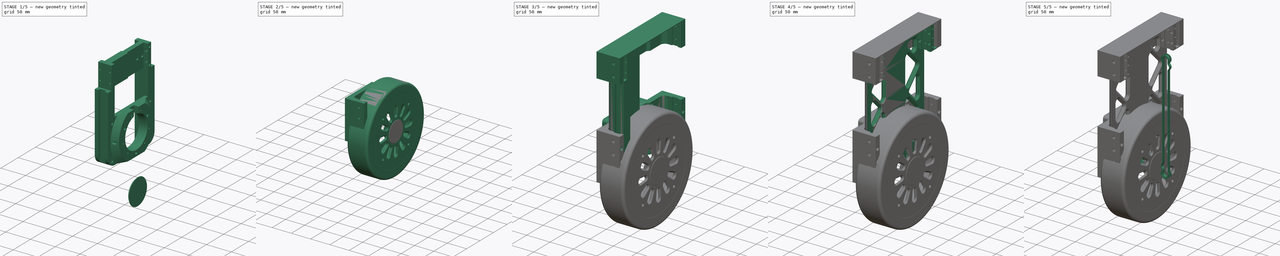
[diagram: build sequence overview — one tinted view per stage of 5, left to right]
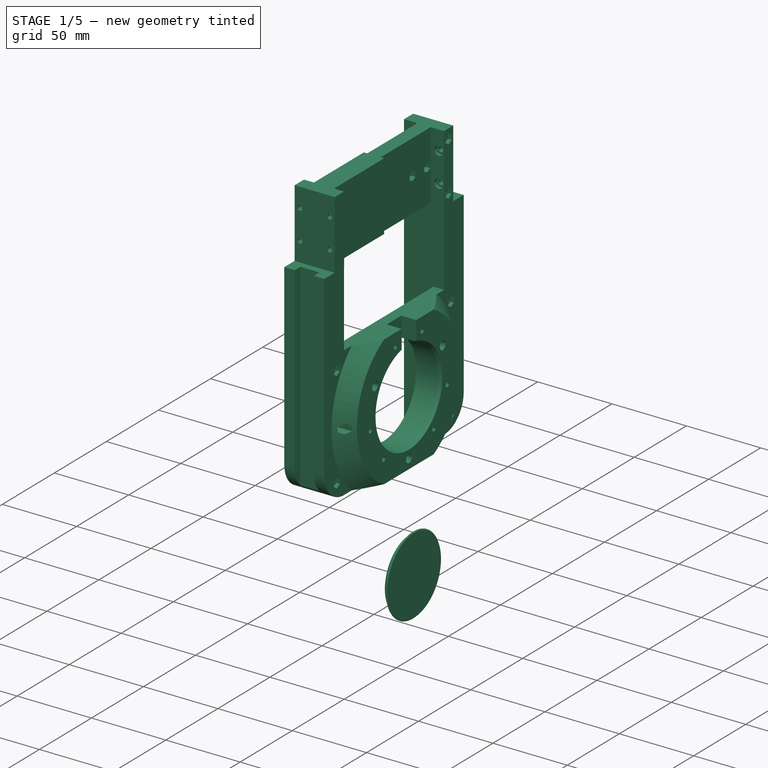
[diagram: stage 1 of 5 — iso view after this stage's code; geometry added in this stage tinted green]
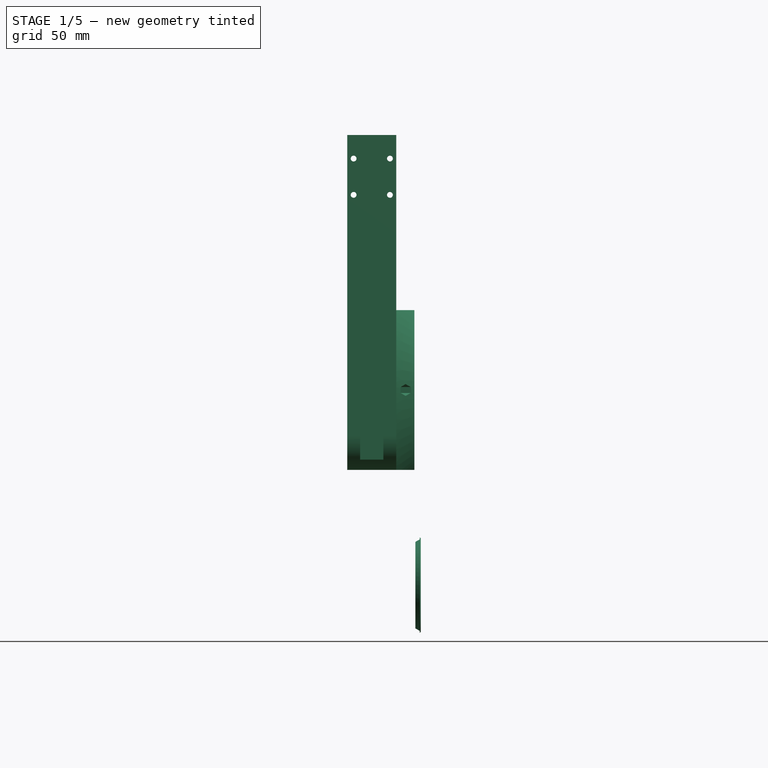
[diagram: stage 1 of 5 — front view after this stage's code; geometry added in this stage tinted green]
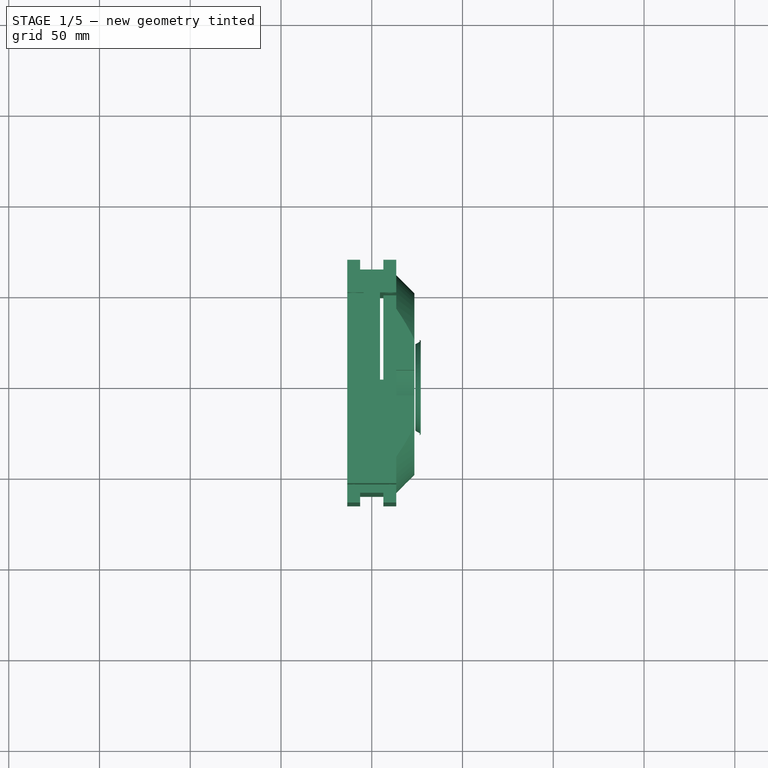
[diagram: stage 1 of 5 — top view after this stage's code; geometry added in this stage tinted green]
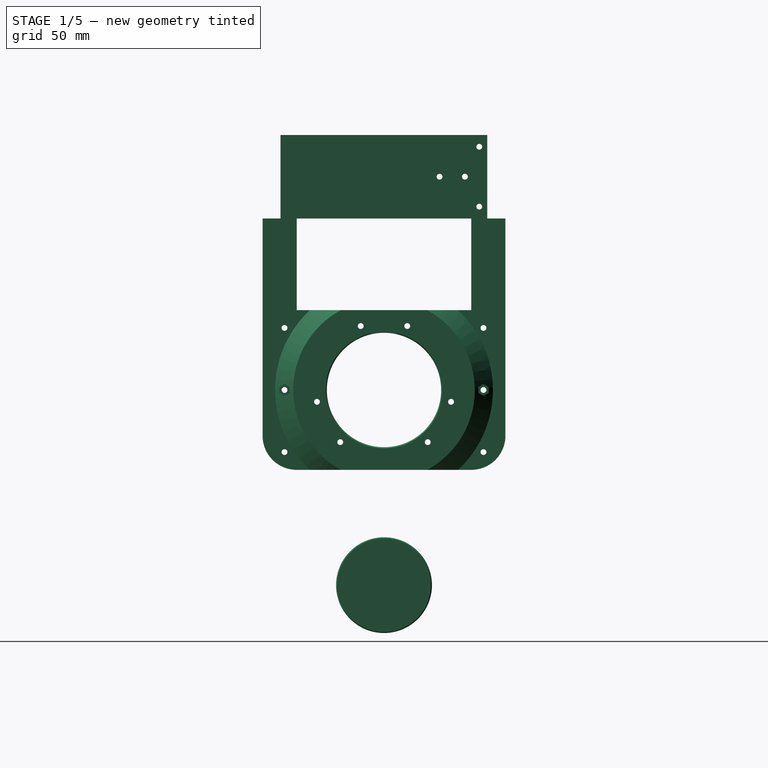
[diagram: stage 1 of 5 — right view after this stage's code; geometry added in this stage tinted green]
FCSTD DOCUMENT  (FreeCAD 1.0R39109 (Git))
Label: v13c
License: All rights reserved
LicenseURL: https://en.wikipedia.org/wiki/All_rights_reserved
objects: Sketcher::SketchObject×84, Part::FeaturePython×44, PartDesign::Pocket×31, PartDesign::Pad×22, PartDesign::Hole×20, PartDesign::Body×19, PartDesign::SubShapeBinder×13, PartDesign::Mirrored×12, PartDesign::Revolution×9, App::Part×8, Part::Feature×7, App::DocumentObjectGroup×7, PartDesign::Chamfer×6, PartDesign::Groove×3, Part::MultiCommon×3, Part::MultiFuse×3, App::FeaturePython×1, Part::Cylinder×1, PartDesign::PolarPattern×1
note: 557 computed .brp shape members not serialized (recipe doc carries the construction recipe); baked Part::Feature solids carry a one-line shape summary decoded from their .brp

FEATURE [PartDesign::Body] Body007  label="Frame2_Split"
  AllowCompound = false
  Group = -> [Binder001,Sketch013,Pad001,Sketch014,Pocket007,Mirrored001]
  Origin = -> Origin008
  Tip = -> Mirrored001
FEATURE [PartDesign::SubShapeBinder] Binder002  label="F3_Binder002_MG"
  BindCopyOnChange = 0
  BindMode = 0
  ClaimChildren = false
  Context = -> Part003 [Body008.Binder002.]
  Fuse = false
  MakeFace = true
  OffsetFill = false
  OffsetIntersection = false
  OffsetJoinType = 0
  OffsetOpenResult = false
  PartialLoad = false
  Refine = true
  Relative = true
  Support = -> [Body006[Face12]]
  _Version = 2
FEATURE [Sketcher::SketchObject] Sketch015  label="F3_Sketch015"
  ArcFitTolerance = 1e-06
  AttachmentOffset = pos=(0,0,202) rot=(0,0,1;0rad)
  AttachmentSupport = -> [XY_Plane009]
  ExternalGeometry = -> [Binder002]
  FullyConstrained = true
  MakeInternals = false
  MapMode = 5
  Placement = pos=(0,0,202) rot=(0,0,1;0rad)
  expr: .AttachmentOffset.Base.z = dd.Sh_Length - 48 mm
  expr: Constraints[30] = dd.Pulley_Y
  expr: Constraints[32] = dd.F3_X - dd.F2_X - 7 mm
  expr: Constraints[35] = dd.Pulley_Y + 10.4 mm
  sketch-geometry (14):
    g0: LineSegment StartX=-13.5 StartY=-57 StartZ=0 EndX=13.5 EndY=-57 EndZ=0
    g1: LineSegment StartX=13.5 StartY=-57 StartZ=0 EndX=13.5 EndY=-48 EndZ=0
    g2: LineSegment StartX=13.5 StartY=-48 StartZ=0 EndX=6.8 EndY=-48 EndZ=0
    g3: LineSegment StartX=6.8 StartY=-48 StartZ=0 EndX=6.8 EndY=0 EndZ=0
    g4: LineSegment StartX=6.8 StartY=0 StartZ=0 EndX=-6.8 EndY=0 EndZ=0
    g5: LineSegment StartX=-6.8 StartY=0 StartZ=0 EndX=-6.8 EndY=-48 EndZ=0
    g6: LineSegment StartX=-6.8 StartY=-48 StartZ=0 EndX=-13.5 EndY=-48 EndZ=0
    g7: LineSegment StartX=-13.5 StartY=-48 StartZ=0 EndX=-13.5 EndY=-57 EndZ=0
    g8: LineSegment [constr] StartX=-12 StartY=-34.4 StartZ=0 EndX=-12 EndY=-40.8 EndZ=0
    g9: LineSegment [constr] StartX=-12 StartY=-40.8 StartZ=0 EndX=-13.6 EndY=-40.8 EndZ=0
    g10: LineSegment [constr] StartX=-13.6 StartY=-40.8 StartZ=0 EndX=-13.6 EndY=-34.4 EndZ=0
    g11: LineSegment [constr] StartX=-13.6 StartY=-34.4 StartZ=0 EndX=-12 EndY=-34.4 EndZ=0
    g12: LineSegment [constr] StartX=-12 StartY=-37.6 StartZ=0 EndX=-13.6 EndY=-37.6 EndZ=0
    g13: GeomPoint [constr] X=-12.8 Y=-37.6 Z=0
  constraints (36):
    c: Coincident(g-3,g0)
    c: Coincident(g0,g-3)
    c: Coincident(g0,g1)
    c: Vertical(g1)
    c: Coincident(g1,g2)
    c: Horizontal(g2)
    c: Coincident(g2,g3)
    c: PointOnObject(g3,g-1)
    c: Vertical(g3)
    c: Coincident(g3,g4)
    c: PointOnObject(g4,g-1)
    c: Coincident(g4,g5)
    c: Vertical(g5)
    c: Coincident(g5,g6)
    c: Coincident(g6,g7)
    c: Coincident(g7,g0)
    c: Vertical(g7)
    c: Horizontal(g6)
    c: Symmetric(g5,g2,g-2)
    c: Distance(g5,g-2) = 6.8
    c: Coincident(g8,g9)
    c: Coincident(g9,g10)
    c: Coincident(g10,g11)
    c: Coincident(g11,g8)
    c: Vertical(g8)
    c: Vertical(g10)
    c: Horizontal(g9)
    c: Horizontal(g11)
    c: Symmetric(g8,g8,g12)
    c: Symmetric(g10,g10,g12)
    c: DistanceY(g12,g-1) = 37.6
    c: Symmetric(g12,g12,g13)
    c: Distance(g13,g-2) = 12.8
    c: Distance(g11,g11) = 1.6
    c: DistanceY(g8,g8) = 6.4
    c: Distance(g5,g-1) = 48
FEATURE [PartDesign::Pad] Pad002  label="F3_Pad002"
  Direction = (0,0,1)
  Length = 46
  Length2 = 10
  Profile = -> Sketch015
  ReferenceAxis = -> Sketch015 [N_Axis]
  Refine = true
  Suppressed = false
  Type = 0
FEATURE [Sketcher::SketchObject] Sketch016  label="F3_Sketch016"
  ArcFitTolerance = 1e-06
  AttachmentSupport = -> [Pad002]
  ExternalGeometry = -> [Binder002]
  FullyConstrained = true
  MakeInternals = false
  MapMode = 5
  Placement = pos=(0,-48,0) rot=(0,0.707107,0.707107;3.14159rad)
  sketch-geometry (4):
    g0: Circle CenterX=-10 CenterY=235 CenterZ=0 NormalX=0 NormalY=0 NormalZ=1 AngleXU=0 Radius=1.6
    g1: Circle CenterX=10 CenterY=235 CenterZ=0 NormalX=0 NormalY=0 NormalZ=1 AngleXU=0 Radius=1.6
    g2: Circle CenterX=-10 CenterY=215 CenterZ=0 NormalX=0 NormalY=0 NormalZ=1 AngleXU=0 Radius=1.6
    g3: Circle CenterX=10 CenterY=215 CenterZ=0 NormalX=0 NormalY=0 NormalZ=1 AngleXU=0 Radius=1.6
  constraints (8):
    c: Coincident(g0,g-3)
    c: Equal(g0,g-3)
    c: Coincident(g1,g-4)
    c: Equal(g1,g-4)
    c: Coincident(g2,g-5)
    c: Equal(g2,g-5)
    c: Coincident(g3,g-6)
    c: Equal(g3,g-6)
FEATURE [PartDesign::Hole] Hole004  label="F3_Hole004"
  BaseFeature = -> Pad002
  CustomThreadClearance = 0
  Depth = 25
  DepthType = 0
  Diameter = 3.2
  DrillForDepth = false
  DrillPoint = 1
  DrillPointAngle = 118
  HoleCutCountersinkAngle = 179
  HoleCutCustomValues = false
  HoleCutDepth = 3.4
  HoleCutDiameter = 6
  HoleCutType = 3
  ModelThread = false
  Profile = -> Sketch016
  Refine = true
  Suppressed = false
  Tapered = false
  TaperedAngle = 90
  ThreadClass = 0
  ThreadDepth = 25
  ThreadDepthType = 0
  ThreadDirection = 0
  ThreadFit = 0
  ThreadSize = 0
  ThreadType = 0
  Threaded = false
  UseCustomThreadClearance = false
FEATURE [PartDesign::SubShapeBinder] Binder010  label="F3b_Binder010_MG"
  BindCopyOnChange = 0
  BindMode = 0
  ClaimChildren = false
  Context = -> Part003 [Body024.Binder010.]
  Fuse = false
  MakeFace = true
  OffsetFill = false
  OffsetIntersection = false
  OffsetJoinType = 0
  OffsetOpenResult = false
  PartialLoad = false
  Placement = pos=(0,0.1,0) rot=(0,0,1;0rad)
  Refine = true
  Relative = true
  Support = -> [Body006[Face12,Face4]]
  _Version = 2
FEATURE [PartDesign::SubShapeBinder] Binder011  label="F3b_Binder011_CG"
  BindCopyOnChange = 0
  BindMode = 0
  ClaimChildren = false
  Context = -> Part003 [Body024.Binder011.]
  Fuse = false
  MakeFace = true
  OffsetFill = false
  OffsetIntersection = false
  OffsetJoinType = 0
  OffsetOpenResult = false
  PartialLoad = false
  Refine = true
  Relative = true
  Support = -> [Body023[Face4,Face73]]
  _Version = 2
FEATURE [Sketcher::SketchObject] Sketch064  label="F3b_Sketch064"
  ArcFitTolerance = 1e-06
  AttachmentSupport = -> [YZ_Plane024]
  ExternalGeometry = -> [Binder011,Binder010]
  FullyConstrained = true
  MakeInternals = false
  MapMode = 5
  Placement = pos=(0,0,0) rot=(0.57735,0.57735,0.57735;2.0944rad)
  sketch-geometry (7):
    g0: Circle [constr] CenterX=0 CenterY=107.5 CenterZ=0 NormalX=0 NormalY=0 NormalZ=1 AngleXU=0 Radius=60
    g1: LineSegment StartX=-56.9 StartY=248 StartZ=0 EndX=-48.1 EndY=248 EndZ=0
    g2: LineSegment StartX=-56.9 StartY=248 StartZ=0 EndX=-56.9 EndY=202 EndZ=0
    g3: LineSegment StartX=-56.9 StartY=202 StartZ=0 EndX=-66.9 EndY=202 EndZ=0
    g4: LineSegment StartX=-66.9 StartY=202 StartZ=0 EndX=-66.9 EndY=82.3 EndZ=0
    g5: LineSegment StartX=-48.1 StartY=248 StartZ=0 EndX=-48.1 EndY=63.5 EndZ=0
    g6: ArcOfCircle CenterX=-48.1 CenterY=82.3 CenterZ=0 NormalX=0 NormalY=0 NormalZ=1 AngleXU=0 Radius=18.8 StartAngle=3.14159 EndAngle=4.71239
  constraints (17):
    c: Coincident(g0,g-3)
    c: Diameter(g0) = 120
    c: Coincident(g-4,g1)
    c: Horizontal(g1)
    c: Coincident(g1,g2)
    c: Coincident(g2,g-5)
    c: Coincident(g2,g3)
    c: Coincident(g3,g4)
    c: Vertical(g4)
    c: Coincident(g3,g-5)
    c: Coincident(g5,g1)
    c: Vertical(g5)
    c: DistanceX(g1,g1) = 8.8
    c: PointOnObject(g6,g5)
    c: Coincident(g6,g5)
    c: Tangent(g6,g4) = -1.5708
    c: DistanceY(g5,g0) = 44
FEATURE [PartDesign::Pad] Pad016  label="F3b_Pad016"
  Direction = (1,0,0)
  Length = 27
  Length2 = 10
  Midplane = true
  Placement = pos=(0,0,0) rot=(1,1,1;2.0944rad)
  Profile = -> Sketch064
  ReferenceAxis = -> Sketch064 [N_Axis]
  Refine = true
  Suppressed = false
  Type = 0
FEATURE [Sketcher::SketchObject] Sketch065  label="F3b_Sketch065"
  ArcFitTolerance = 1e-06
  AttachmentSupport = -> [Pad016]
  ExternalGeometry = -> [Binder010,Pad016]
  FullyConstrained = true
  MakeInternals = false
  MapMode = 5
  Placement = pos=(0,4.44e-14,202) rot=(0,0,-1;1.5708rad)
  sketch-geometry (6):
    g0: LineSegment StartX=66.9 StartY=6.4 StartZ=0 EndX=61.5 EndY=6.4 EndZ=0
    g1: LineSegment StartX=61.5 StartY=6.4 StartZ=0 EndX=61.5 EndY=-6.4 EndZ=0
    g2: LineSegment StartX=61.5 StartY=-6.4 StartZ=0 EndX=66.9 EndY=-6.4 EndZ=0
    g3: LineSegment StartX=66.9 StartY=-6.4 StartZ=0 EndX=66.9 EndY=6.4 EndZ=0
    g4: LineSegment [constr] StartX=61.9 StartY=-6 StartZ=0 EndX=61.5 EndY=-6 EndZ=0
    g5: LineSegment [constr] StartX=61.9 StartY=6 StartZ=0 EndX=61.9 EndY=6.4 EndZ=0
  constraints (17):
    c: Coincident(g0,g1)
    c: Coincident(g1,g2)
    c: Coincident(g2,g3)
    c: Coincident(g3,g0)
    c: Horizontal(g0)
    c: Horizontal(g2)
    c: Vertical(g3)
    c: PointOnObject(g0,g-4)
    c: Coincident(g4,g-3)
    c: PointOnObject(g4,g1)
    c: Horizontal(g4)
    c: Coincident(g5,g-3)
    c: PointOnObject(g5,g0)
    c: Vertical(g5)
    c: Equal(g4,g5)
    c: Symmetric(g1,g0,g-1)
    c: Distance(g4,g4) = 0.4
FEATURE [PartDesign::Pocket] Pocket023  label="F3b_Pocket023"
  BaseFeature = -> Pad016
  Direction = (0,0,-1)
  Length = 5
  Length2 = 5
  Placement = pos=(0,0,0) rot=(1,1,1;2.0944rad)
  Profile = -> Sketch065
  ReferenceAxis = -> Sketch065 [N_Axis]
  Refine = true
  Suppressed = false
  Type = 1
FEATURE [Sketcher::SketchObject] Sketch066  label="F3b_Sketch066"
  ArcFitTolerance = 1e-06
  AttachmentSupport = -> [Pocket023]
  ExternalGeometry = -> [Binder010]
  FullyConstrained = true
  MakeInternals = false
  MapMode = 5
  Placement = pos=(-1.06e-14,-48.1,0) rot=(0.57735,0.57735,0.57735;4.18879rad)
  sketch-geometry (4):
    g0: Circle CenterX=215 CenterY=10 CenterZ=0 NormalX=0 NormalY=0 NormalZ=1 AngleXU=0 Radius=1.6
    g1: Circle CenterX=235 CenterY=10 CenterZ=0 NormalX=0 NormalY=0 NormalZ=1 AngleXU=0 Radius=1.6
    g2: Circle CenterX=215 CenterY=-10 CenterZ=0 NormalX=0 NormalY=0 NormalZ=1 AngleXU=0 Radius=1.6
    g3: Circle CenterX=235 CenterY=-10 CenterZ=0 NormalX=0 NormalY=0 NormalZ=1 AngleXU=0 Radius=1.6
  constraints (8):
    c: Coincident(g0,g-3)
    c: Coincident(g1,g-4)
    c: Equal(g1,g-4)
    c: Equal(g-3,g0)
    c: Coincident(g2,g-5)
    c: Equal(g2,g-5)
    c: Coincident(g3,g-6)
    c: Equal(g3,g-6)
FEATURE [PartDesign::Hole] Hole014  label="F3b_Hole014"
  BaseFeature = -> Pocket023
  CustomThreadClearance = 0
  Depth = 10
  DepthType = 0
  Diameter = 3.2
  DrillForDepth = false
  DrillPoint = 0
  DrillPointAngle = 118
  HoleCutCountersinkAngle = 179
  HoleCutCustomValues = false
  HoleCutDepth = 2
  HoleCutDiameter = 6
  HoleCutType = 3
  ModelThread = false
  Placement = pos=(0,0,0) rot=(1,1,1;2.0944rad)
  Profile = -> Sketch066
  Refine = true
  Suppressed = false
  Tapered = false
  TaperedAngle = 90
  ThreadClass = 0
  ThreadDepth = 10
  ThreadDepthType = 0
  ThreadDirection = 0
  ThreadFit = 0
  ThreadSize = 0
  ThreadType = 0
  Threaded = false
  UseCustomThreadClearance = false
FEATURE [Sketcher::SketchObject] Sketch068  label="F3b_Sketch068"
  ArcFitTolerance = 1e-06
  AttachmentSupport = -> [Hole014]
  ExternalGeometry = -> [Hole014,Binder011]
  FullyConstrained = true
  MakeInternals = false
  MapMode = 5
  Placement = pos=(13.5,0,0) rot=(0.57735,0.57735,0.57735;2.0944rad)
  sketch-geometry (6):
    g0: LineSegment StartX=-48.1 StartY=63.5 StartZ=0 EndX=2.13e-14 EndY=63.5 EndZ=0
    g1: LineSegment StartX=-3.1e-15 StartY=151.5 StartZ=0 EndX=-48.1 EndY=151.5 EndZ=0
    g2: LineSegment StartX=-48.1 StartY=151.5 StartZ=0 EndX=-48.1 EndY=63.5 EndZ=0
    g3: ArcOfCircle CenterX=9e-15 CenterY=107.5 CenterZ=0 NormalX=0 NormalY=0 NormalZ=1 AngleXU=0 Radius=31.5 StartAngle=1.5708 EndAngle=4.71239
    g4: LineSegment StartX=2.13e-14 StartY=63.5 StartZ=0 EndX=2.13e-14 EndY=76 EndZ=0
    g5: LineSegment StartX=-3.1e-15 StartY=139 StartZ=0 EndX=-3.1e-15 EndY=151.5 EndZ=0
  constraints (16):
    c: Coincident(g1,g2)
    c: Coincident(g2,g0)
    c: Horizontal(g0)
    c: Horizontal(g1)
    c: Vertical(g2)
    c: Coincident(g0,g-3)
    c: Symmetric(g1,g0,g-4)
    c: Coincident(g3,g-4)
    c: Coincident(g4,g0)
    c: Coincident(g4,g3)
    c: Coincident(g5,g3)
    c: Coincident(g5,g1)
    c: Vertical(g5)
    c: Vertical(g4)
    c: PointOnObject(g1,g-2)
    c: Equal(g-4,g3)
FEATURE [PartDesign::Pad] Pad017  label="F3b_Pad017"
  BaseFeature = -> Hole014
  Direction = (1,0,0)
  Length = 7.1
  Length2 = 10
  Placement = pos=(0,0,0) rot=(1,1,1;2.0944rad)
  Profile = -> Sketch068
  ReferenceAxis = -> Sketch068 [N_Axis]
  Refine = true
  Reversed = true
  Suppressed = false
  Type = 0
FEATURE [Sketcher::SketchObject] Sketch067  label="F3b_Sketch067"
  ArcFitTolerance = 1e-06
  AttachmentSupport = -> [Pad017]
  ExternalGeometry = -> [Binder011,Pad017]
  FullyConstrained = true
  MakeInternals = false
  MapMode = 5
  Placement = pos=(13.5,-9.7e-15,1.57e-14) rot=(0.57735,0.57735,0.57735;2.0944rad)
  sketch-geometry (9):
    g0: Circle CenterX=-32.476 CenterY=126.25 CenterZ=0 NormalX=0 NormalY=0 NormalZ=1 AngleXU=0 Radius=2.8
    g1: ArcOfCircle CenterX=9.8e-15 CenterY=70 CenterZ=0 NormalX=0 NormalY=0 NormalZ=1 AngleXU=0 Radius=2.8 StartAngle=1.5708 EndAngle=4.71239
    g2: ArcOfCircle CenterX=9.8e-15 CenterY=107.5 CenterZ=0 NormalX=0 NormalY=0 NormalZ=1 AngleXU=0 Radius=60 StartAngle=2.31838 EndAngle=3.9648
    g3: LineSegment StartX=-40.7922 StartY=151.5 StartZ=0 EndX=-7 EndY=151.5 EndZ=0
    g4: LineSegment StartX=-7 StartY=151.5 StartZ=0 EndX=-7 EndY=138.212 EndZ=0
    g5: ArcOfCircle CenterX=9.8e-15 CenterY=107.5 CenterZ=0 NormalX=0 NormalY=0 NormalZ=1 AngleXU=0 Radius=31.5 StartAngle=1.79489 EndAngle=4.71239
    g6: LineSegment StartX=3.2e-14 StartY=72.8 StartZ=0 EndX=3.2e-14 EndY=76 EndZ=0
    g7: LineSegment StartX=2.42e-14 StartY=63.5 StartZ=0 EndX=2.42e-14 EndY=67.2 EndZ=0
    g8: LineSegment StartX=2.42e-14 StartY=63.5 StartZ=0 EndX=-40.7922 EndY=63.5 EndZ=0
  constraints (24):
    c: Coincident(g0,g-4)
    c: Equal(g0,g-4)
    c: Coincident(g1,g-5)
    c: Coincident(g2,g-3)
    c: Radius(g2) = 60
    c: Coincident(g2,g3)
    c: Coincident(g3,g4)
    c: Vertical(g4)
    c: Coincident(g5,g2)
    c: Coincident(g5,g4)
    c: PointOnObject(g5,g-7)
    c: Coincident(g6,g1)
    c: Coincident(g6,g5)
    c: Coincident(g7,g-7)
    c: Coincident(g7,g1)
    c: Vertical(g7)
    c: Equal(g1,g-5)
    c: Vertical(g6)
    c: Coincident(g4,g-3)
    c: Coincident(g8,g7)
    c: Coincident(g8,g2)
    c: Horizontal(g8)
    c: Horizontal(g3)
    c: PointOnObject(g-6,g3)
FEATURE [PartDesign::Pad] Pad018  label="F3b_Pad018"
  BaseFeature = -> Pad017
  Direction = (1,0,1.3e-15)
  Length = 10
  Length2 = 10
  Placement = pos=(0,0,0) rot=(1,1,1;2.0944rad)
  Profile = -> Sketch067
  ReferenceAxis = -> Sketch067 [N_Axis]
  Refine = true
  Suppressed = false
  Type = 0
FEATURE [Sketcher::SketchObject] Sketch069  label="F3b_Sketch069"
  ArcFitTolerance = 1e-06
  AttachmentSupport = -> [Pad018]
  ExternalGeometry = -> [Binder011]
  FullyConstrained = true
  MakeInternals = false
  MapMode = 5
  Placement = pos=(6.4,0,0) rot=(0.57735,0.57735,-0.57735;4.18879rad)
  sketch-geometry (3):
    g0: Circle CenterX=-24.1045 CenterY=-78.7733 CenterZ=0 NormalX=0 NormalY=0 NormalZ=1 AngleXU=0 Radius=1.5
    g1: Circle CenterX=-36.9303 CenterY=-100.988 CenterZ=0 NormalX=0 NormalY=0 NormalZ=1 AngleXU=0 Radius=1.5
    g2: Circle CenterX=-12.8258 CenterY=-142.738 CenterZ=0 NormalX=0 NormalY=0 NormalZ=1 AngleXU=0 Radius=1.5
  constraints (6):
    c: Coincident(g0,g-3)
    c: Equal(g0,g-3)
    c: Coincident(g1,g-4)
    c: Equal(g1,g-4)
    c: Coincident(g2,g-5)
    c: Equal(g2,g-5)
FEATURE [PartDesign::Hole] Hole015  label="F3b_Hole015"
  BaseFeature = -> Pad018
  CustomThreadClearance = 0
  Depth = 20
  DepthType = 0
  Diameter = 3.2
  DrillForDepth = false
  DrillPoint = 0
  DrillPointAngle = 118
  HoleCutCountersinkAngle = 179
  HoleCutCustomValues = false
  HoleCutDepth = 4.4
  HoleCutDiameter = 6
  HoleCutType = 3
  ModelThread = false
  Placement = pos=(0,0,0) rot=(1,1,1;2.0944rad)
  Profile = -> Sketch069
  Refine = true
  Suppressed = false
  Tapered = false
  TaperedAngle = 90
  ThreadClass = 0
  ThreadDepth = 20
  ThreadDepthType = 0
  ThreadDirection = 0
  ThreadFit = 0
  ThreadSize = 0
  ThreadType = 0
  Threaded = false
  UseCustomThreadClearance = false
FEATURE [PartDesign::Chamfer] Chamfer003  label="F3b_Chamfer003"
  Angle = 45
  Base = -> Hole015 [Edge12]
  BaseFeature = -> Hole015
  ChamferType = 0
  FlipDirection = false
  Placement = pos=(0,0,0) rot=(1,1,1;2.0944rad)
  Refine = true
  Size = 9.99
  Size2 = 1
  SupportTransform = false
  Suppressed = false
  UseAllEdges = false
FEATURE [Sketcher::SketchObject] Sketch070  label="F3b_Sketch070"
  ArcFitTolerance = 1e-06
  AttachmentSupport = -> [Chamfer003]
  ExternalGeometry = -> [Chamfer003]
  FullyConstrained = true
  MakeInternals = false
  MapMode = 5
  Placement = pos=(-13.5,0,0) rot=(0.57735,0.57735,-0.57735;4.18879rad)
  sketch-geometry (12):
    g0: Circle CenterX=-54.8 CenterY=-141.704 CenterZ=0 NormalX=0 NormalY=0 NormalZ=1 AngleXU=0 Radius=1.6
    g1: LineSegment [constr] StartX=4.47e-14 StartY=-107.5 StartZ=0 EndX=-54.8 EndY=-107.5 EndZ=0
    g2: LineSegment [constr] StartX=-61.5 StartY=-69.1136 StartZ=0 EndX=-54.8 EndY=-73.2956 EndZ=0
    g3: LineSegment [constr] StartX=-54.8 StartY=-73.2956 StartZ=0 EndX=-48.1 EndY=-77.4775 EndZ=0
    g4: LineSegment [constr] StartX=-54.8 StartY=-73.2956 StartZ=0 EndX=-54.8 EndY=-107.5 EndZ=0
    g5: Circle CenterX=-54.8 CenterY=-107.5 CenterZ=0 NormalX=0 NormalY=0 NormalZ=1 AngleXU=0 Radius=1.6
    g6: Circle CenterX=-54.8 CenterY=-73.2956 CenterZ=0 NormalX=0 NormalY=0 NormalZ=1 AngleXU=0 Radius=1.6
    g7: LineSegment [constr] StartX=-52.5 StartY=-248 StartZ=0 EndX=-52.5 EndY=-241.5 EndZ=0
    g8: LineSegment [constr] StartX=-52.5 StartY=-241.5 StartZ=0 EndX=-52.5 EndY=-235 EndZ=0
    g9: LineSegment [constr] StartX=-52.5 StartY=-215 StartZ=0 EndX=-52.5 EndY=-208.5 EndZ=0
    g10: Circle CenterX=-52.5 CenterY=-241.5 CenterZ=0 NormalX=0 NormalY=0 NormalZ=1 AngleXU=0 Radius=1.6
    g11: Circle CenterX=-52.5 CenterY=-208.5 CenterZ=0 NormalX=0 NormalY=0 NormalZ=1 AngleXU=0 Radius=1.6
  constraints (31):
    c: Diameter(g0) = 3.2
    c: Coincident(g1,g-3)
    c: Horizontal(g1)
    c: Coincident(g2,g-5)
    c: Coincident(g3,g2)
    c: Parallel(g2,g3)
    c: Equal(g2,g3)
    c: PointOnObject(g1,g3)
    c: Coincident(g4,g2)
    c: Coincident(g4,g1)
    c: Vertical(g4)
    c: Symmetric(g0,g2,g1)
    c: Coincident(g5,g1)
    c: Coincident(g6,g2)
    c: Equal(g0,g5)
    c: Equal(g5,g6)
    c: PointOnObject(g3,g-4)
    c: Symmetric(g-8,g-8,g7)
    c: Vertical(g7)
    c: Coincident(g8,g7)
    c: PointOnObject(g8,g-7)
    c: Vertical(g8)
    c: PointOnObject(g9,g-6)
    c: Vertical(g9)
    c: PointOnObject(g9,g8)
    c: Equal(g9,g8)
    c: Equal(g8,g7)
    c: Coincident(g10,g7)
    c: Coincident(g11,g9)
    c: Equal(g0,g11)
    c: Equal(g11,g10)
FEATURE [PartDesign::Hole] Hole016  label="F3b_Hole016"
  BaseFeature = -> Chamfer003
  CustomThreadClearance = 0
  Depth = 403.418
  DepthType = 1
  Diameter = 3.2
  DrillForDepth = false
  DrillPoint = 1
  DrillPointAngle = 118
  HoleCutCountersinkAngle = 179
  HoleCutCustomValues = false
  HoleCutDepth = 2
  HoleCutDiameter = 6
  HoleCutType = 3
  ModelThread = false
  Placement = pos=(0,0,0) rot=(1,1,1;2.0944rad)
  Profile = -> Sketch070
  Refine = true
  Suppressed = false
  Tapered = false
  TaperedAngle = 90
  ThreadClass = 0
  ThreadDepth = 403.418
  ThreadDepthType = 0
  ThreadDirection = 0
  ThreadFit = 0
  ThreadSize = 0
  ThreadType = 0
  Threaded = false
  UseCustomThreadClearance = false
FEATURE [Sketcher::SketchObject] Sketch071  label="F3b_Sketch071"
  ArcFitTolerance = 1e-06
  AttachmentSupport = -> [Hole016]
  ExternalGeometry = -> [Hole016]
  FullyConstrained = true
  MakeInternals = false
  MapMode = 5
  Placement = pos=(13.5,-9.7e-15,1.57e-14) rot=(0.57735,0.57735,0.57735;2.0944rad)
  sketch-geometry (35):
    g0: LineSegment StartX=-54.8 StartY=76.5456 StartZ=0 EndX=-57.6146 EndY=74.9206 EndZ=0
    g1: LineSegment StartX=-57.6146 StartY=74.9206 StartZ=0 EndX=-57.6146 EndY=71.6706 EndZ=0
    g2: LineSegment StartX=-57.6146 StartY=71.6706 StartZ=0 EndX=-54.8 EndY=70.0456 EndZ=0
    g3: LineSegment StartX=-54.8 StartY=70.0456 StartZ=0 EndX=-51.9854 EndY=71.6706 EndZ=0
    g4: LineSegment StartX=-51.9854 StartY=71.6706 StartZ=0 EndX=-51.9854 EndY=74.9206 EndZ=0
    g5: LineSegment StartX=-51.9854 StartY=74.9206 StartZ=0 EndX=-54.8 EndY=76.5456 EndZ=0
    g6: Circle [constr] CenterX=-54.8 CenterY=73.2956 CenterZ=0 NormalX=0 NormalY=0 NormalZ=1 AngleXU=0 Radius=3.25
    g7: LineSegment StartX=-54.8 StartY=110.75 StartZ=0 EndX=-57.6146 EndY=109.125 EndZ=0
    g8: LineSegment StartX=-57.6146 StartY=109.125 StartZ=0 EndX=-57.6146 EndY=105.875 EndZ=0
    g9: LineSegment StartX=-57.6146 StartY=105.875 StartZ=0 EndX=-54.8 EndY=104.25 EndZ=0
    g10: LineSegment StartX=-54.8 StartY=104.25 StartZ=0 EndX=-51.9854 EndY=105.875 EndZ=0
    g11: LineSegment StartX=-51.9854 StartY=105.875 StartZ=0 EndX=-51.9854 EndY=109.125 EndZ=0
    g12: LineSegment StartX=-51.9854 StartY=109.125 StartZ=0 EndX=-54.8 EndY=110.75 EndZ=0
    g13: Circle [constr] CenterX=-54.8 CenterY=107.5 CenterZ=0 NormalX=0 NormalY=0 NormalZ=1 AngleXU=0 Radius=3.25
    g14: LineSegment StartX=-54.8 StartY=144.954 StartZ=0 EndX=-57.6146 EndY=143.329 EndZ=0
    g15: LineSegment StartX=-57.6146 StartY=143.329 StartZ=0 EndX=-57.6146 EndY=140.079 EndZ=0
    g16: LineSegment StartX=-57.6146 StartY=140.079 StartZ=0 EndX=-54.8 EndY=138.454 EndZ=0
    g17: LineSegment StartX=-54.8 StartY=138.454 StartZ=0 EndX=-51.9854 EndY=140.079 EndZ=0
    g18: LineSegment StartX=-51.9854 StartY=140.079 StartZ=0 EndX=-51.9854 EndY=143.329 EndZ=0
    g19: LineSegment StartX=-51.9854 StartY=143.329 StartZ=0 EndX=-54.8 EndY=144.954 EndZ=0
    g20: Circle [constr] CenterX=-54.8 CenterY=141.704 CenterZ=0 NormalX=0 NormalY=0 NormalZ=1 AngleXU=0 Radius=3.25
    g21: LineSegment StartX=-52.5 StartY=211.75 StartZ=0 EndX=-55.3146 EndY=210.125 EndZ=0
    g22: LineSegment StartX=-55.3146 StartY=210.125 StartZ=0 EndX=-55.3146 EndY=206.875 EndZ=0
    g23: LineSegment StartX=-55.3146 StartY=206.875 StartZ=0 EndX=-52.5 EndY=205.25 EndZ=0
    g24: LineSegment StartX=-52.5 StartY=205.25 StartZ=0 EndX=-49.6854 EndY=206.875 EndZ=0
    g25: LineSegment StartX=-49.6854 StartY=206.875 StartZ=0 EndX=-49.6854 EndY=210.125 EndZ=0
    g26: LineSegment StartX=-49.6854 StartY=210.125 StartZ=0 EndX=-52.5 EndY=211.75 EndZ=0
    g27: Circle [constr] CenterX=-52.5 CenterY=208.5 CenterZ=0 NormalX=0 NormalY=0 NormalZ=1 AngleXU=0 Radius=3.25
    g28: LineSegment StartX=-52.5 StartY=244.75 StartZ=0 EndX=-55.3146 EndY=243.125 EndZ=0
    g29: LineSegment StartX=-55.3146 StartY=243.125 StartZ=0 EndX=-55.3146 EndY=239.875 EndZ=0
    g30: LineSegment StartX=-55.3146 StartY=239.875 StartZ=0 EndX=-52.5 EndY=238.25 EndZ=0
    g31: LineSegment StartX=-52.5 StartY=238.25 StartZ=0 EndX=-49.6854 EndY=239.875 EndZ=0
    g32: LineSegment StartX=-49.6854 StartY=239.875 StartZ=0 EndX=-49.6854 EndY=243.125 EndZ=0
    g33: LineSegment StartX=-49.6854 StartY=243.125 StartZ=0 EndX=-52.5 EndY=244.75 EndZ=0
    g34: Circle [constr] CenterX=-52.5 CenterY=241.5 CenterZ=0 NormalX=0 NormalY=0 NormalZ=1 AngleXU=0 Radius=3.25
  constraints (80):
    c: Coincident(g0,g1)
    c: Coincident(g1,g2)
    c: Coincident(g2,g3)
    c: Coincident(g3,g4)
    c: Coincident(g4,g5)
    c: Coincident(g5,g0)
    c: Equal(g0, g1-g5) x5
    c: PointOnObject(g0,g6)
    c: PointOnObject(g1,g6)
    c: PointOnObject(g2,g6)
    c: PointOnObject(g3,g6)
    c: PointOnObject(g4,g6)
    c: PointOnObject(g5,g6)
    c: Coincident(g6,g-3)
    c: Coincident(g7,g8)
    c: Coincident(g8,g9)
    c: Coincident(g9,g10)
    c: Coincident(g10,g11)
    c: Coincident(g11,g12)
    c: Coincident(g12,g7)
    c: Equal(g7, g8-g12) x5
    c: PointOnObject(g7,g13)
    c: PointOnObject(g8,g13)
    c: PointOnObject(g9,g13)
    c: PointOnObject(g10,g13)
    c: PointOnObject(g11,g13)
    c: PointOnObject(g12,g13)
    c: Coincident(g13,g-4)
    c: Coincident(g14,g15)
    c: Coincident(g15,g16)
    c: Coincident(g16,g17)
    c: Coincident(g17,g18)
    c: Coincident(g18,g19)
    c: Coincident(g19,g14)
    c: Equal(g14, g15-g19) x5
    c: PointOnObject(g14,g20)
    c: PointOnObject(g15,g20)
    c: PointOnObject(g16,g20)
    c: PointOnObject(g17,g20)
    c: PointOnObject(g18,g20)
    c: PointOnObject(g19,g20)
    c: Coincident(g20,g-5)
    c: Coincident(g21,g22)
    c: Coincident(g22,g23)
    c: Coincident(g23,g24)
    c: Coincident(g24,g25)
    c: Coincident(g25,g26)
    c: Coincident(g26,g21)
    c: Equal(g21, g22-g26) x5
    c: PointOnObject(g21,g27)
    c: PointOnObject(g22,g27)
    c: PointOnObject(g23,g27)
    c: PointOnObject(g24,g27)
    c: PointOnObject(g25,g27)
    c: PointOnObject(g26,g27)
    c: Coincident(g27,g-6)
    c: Coincident(g28,g29)
    c: Coincident(g29,g30)
    c: Coincident(g30,g31)
    c: Coincident(g31,g32)
    c: Coincident(g32,g33)
    c: Coincident(g33,g28)
    c: Equal(g28, g29-g33) x5
    c: PointOnObject(g28,g34)
    c: PointOnObject(g29,g34)
    c: PointOnObject(g30,g34)
    c: PointOnObject(g31,g34)
    c: PointOnObject(g32,g34)
    c: PointOnObject(g33,g34)
    c: Coincident(g34,g-7)
    c: Vertical(g29)
    c: Vertical(g22)
    c: Vertical(g15)
    c: Vertical(g8)
    c: Vertical(g1)
    c: Equal(g6,g13)
    c: Equal(g13,g20)
    c: Equal(g20,g27)
    c: Equal(g27,g34)
    c: Diameter(g34) = 6.5
FEATURE [PartDesign::Pocket] Pocket024  label="F3b_Pocket024"
  BaseFeature = -> Hole016
  Direction = (-1,1.2e-15,-1.4e-15)
  Length = 2.6
  Length2 = 10
  Placement = pos=(0,0,0) rot=(1,1,1;2.0944rad)
  Profile = -> Sketch071
  ReferenceAxis = -> Sketch071 [N_Axis]
  Refine = true
  Suppressed = false
  Type = 4
FEATURE [Sketcher::SketchObject] Sketch072  label="F3b_Sketch072"
  ArcFitTolerance = 1e-06
  AttachmentOffset = pos=(0,225,0) rot=(0,0,1;0rad)
  AttachmentSupport = -> [XZ_Plane024]
  ExternalGeometry = -> [Pocket024]
  FullyConstrained = true
  MakeInternals = false
  MapMode = 5
  Placement = pos=(0,5e-14,225) rot=(1,0,0;1.5708rad)
  expr: .AttachmentOffset.Base.y = dd.Sh_Length - 25 mm
  sketch-geometry (12):
    g0: LineSegment StartX=-13.5 StartY=4.5 StartZ=0 EndX=-11.9 EndY=4.5 EndZ=0
    g1: LineSegment StartX=-11.9 StartY=4.5 StartZ=0 EndX=-11.9 EndY=8 EndZ=0
    g2: LineSegment StartX=-11.9 StartY=8 StartZ=0 EndX=-4.5 EndY=8 EndZ=0
    g3: LineSegment StartX=-4.5 StartY=8 StartZ=0 EndX=-4.5 EndY=23 EndZ=0
    g4: LineSegment StartX=-4.5 StartY=23 StartZ=0 EndX=4.5 EndY=23 EndZ=0
    g5: LineSegment StartX=4.5 StartY=23 StartZ=0 EndX=4.5 EndY=-23 EndZ=0
    g6: LineSegment StartX=4.5 StartY=-23 StartZ=0 EndX=-4.5 EndY=-23 EndZ=0
    g7: LineSegment StartX=-4.5 StartY=-23 StartZ=0 EndX=-4.5 EndY=-8 EndZ=0
    g8: LineSegment StartX=-4.5 StartY=-8 StartZ=0 EndX=-11.9 EndY=-8 EndZ=0
    g9: LineSegment StartX=-11.9 StartY=-8 StartZ=0 EndX=-11.9 EndY=-4.5 EndZ=0
    g10: LineSegment StartX=-11.9 StartY=-4.5 StartZ=0 EndX=-13.5 EndY=-4.5 EndZ=0
    g11: LineSegment StartX=-13.5 StartY=-4.5 StartZ=0 EndX=-13.5 EndY=4.5 EndZ=0
  constraints (32):
    c: Horizontal(g0)
    c: Coincident(g0,g1)
    c: Vertical(g1)
    c: Coincident(g1,g2)
    c: Horizontal(g2)
    c: Coincident(g2,g3)
    c: Vertical(g3)
    c: Coincident(g3,g4)
    c: Coincident(g4,g5)
    c: Coincident(g5,g6)
    c: Horizontal(g6)
    c: Coincident(g6,g7)
    c: Vertical(g7)
    c: Coincident(g7,g8)
    c: Horizontal(g8)
    c: Coincident(g8,g9)
    c: Coincident(g9,g10)
    c: Horizontal(g10)
    c: Coincident(g10,g11)
    c: Vertical(g11)
    c: Symmetric(g9,g0,g-1)
    c: Symmetric(g7,g2,g-1)
    c: Vertical(g9)
    c: Symmetric(g5,g4,g-1)
    c: Symmetric(g3,g4,g-2)
    c: Distance(g4,g4) = 9
    c: Distance(g8,g1) = 16
    c: Coincident(g11,g0)
    c: DistanceY(g11,g11) = 9
    c: PointOnObject(g-3,g4)
    c: PointOnObject(g-3,g11)
    c: Distance(g0,g0) = 1.6
FEATURE [PartDesign::Pad] Pad019  label="F3b_Pad019"
  BaseFeature = -> Pocket024
  Direction = (0,-1,2e-16)
  Length = 48.1
  Length2 = 10
  Placement = pos=(0,0,0) rot=(1,1,1;2.0944rad)
  Profile = -> Sketch072
  ReferenceAxis = -> Sketch072 [N_Axis]
  Refine = true
  Suppressed = false
  Type = 0
FEATURE [Sketcher::SketchObject] Sketch073  label="F3b_Sketch025"
  ArcFitTolerance = 1e-06
  AttachmentOffset = pos=(0,225,37.6) rot=(0,0,1;0rad)
  AttachmentSupport = -> [XZ_Plane024]
  ExternalGeometry = -> [Pad019]
  FullyConstrained = true
  MakeInternals = false
  MapMode = 5
  Placement = pos=(0,-37.6,225) rot=(1,0,0;1.5708rad)
  expr: .AttachmentOffset.Base.y = dd.Sh_Length - 25 mm
  expr: .AttachmentOffset.Base.z = dd.Pulley_Y
  sketch-geometry (23):
    g0: ArcOfCircle [constr] CenterX=-15.5 CenterY=0 CenterZ=0 NormalX=0 NormalY=0 NormalZ=1 AngleXU=0 Radius=6 StartAngle=0 EndAngle=0.74789
    g1: ArcOfCircle [constr] CenterX=-6.7025 CenterY=8.16112 CenterZ=0 NormalX=0 NormalY=0 NormalZ=1 AngleXU=0 Radius=6 StartAngle=3.14159 EndAngle=3.88948
    g2: LineSegment [constr] StartX=-11.9025 StartY=8.16112 StartZ=0 EndX=-12.7025 EndY=8.16112 EndZ=0
    g3: ArcOfCircle [constr] CenterX=-15.5 CenterY=0 CenterZ=0 NormalX=0 NormalY=0 NormalZ=1 AngleXU=0 Radius=5.2 StartAngle=0 EndAngle=0.74789
    g4: ArcOfCircle [constr] CenterX=-6.7025 CenterY=8.16112 CenterZ=0 NormalX=0 NormalY=0 NormalZ=1 AngleXU=0 Radius=6.8 StartAngle=3.14159 EndAngle=3.88948
    g5: ArcOfCircle CenterX=-15.5 CenterY=0 CenterZ=0 NormalX=0 NormalY=0 NormalZ=1 AngleXU=0 Radius=6.8 StartAngle=0 EndAngle=0.74789
    g6: ArcOfCircle CenterX=-6.7025 CenterY=8.16112 CenterZ=0 NormalX=0 NormalY=0 NormalZ=1 AngleXU=0 Radius=5.2 StartAngle=3.14159 EndAngle=3.88948
    g7: LineSegment StartX=-8.7 StartY=0 StartZ=0 EndX=-10.3 EndY=0 EndZ=0
    g8: LineSegment StartX=-10.3 StartY=0 StartZ=0 EndX=-10.301 EndY=0.1 EndZ=0
    g9: LineSegment StartX=-10.301 StartY=0.1 StartZ=0 EndX=-9.55932 EndY=0.841639 EndZ=0
    g10: LineSegment StartX=-9.55932 StartY=0.841639 StartZ=0 EndX=-9.59067 EndY=1.03917 EndZ=0
    g11: LineSegment StartX=-9.59067 StartY=1.03917 StartZ=0 EndX=-10.5255 EndY=1.51472 EndZ=0
    g12: LineSegment StartX=-10.5255 StartY=1.51472 StartZ=0 EndX=-10.5874 EndY=1.70489 EndZ=0
    g13: LineSegment StartX=-10.5874 StartY=1.70489 StartZ=0 EndX=-10.1119 EndY=2.63972 EndZ=0
    g14: LineSegment StartX=-10.1119 StartY=2.63972 StartZ=0 EndX=-10.2028 EndY=2.81783 EndZ=0
    g15: LineSegment StartX=-10.2028 StartY=2.81783 StartZ=0 EndX=-11.239 EndY=2.98056 EndZ=0
    g16: LineSegment StartX=-11.239 StartY=2.98056 StartZ=0 EndX=-11.3568 EndY=3.14221 EndZ=0
    g17: LineSegment StartX=-11.3568 StartY=3.14221 StartZ=0 EndX=-11.1893 EndY=4.17759 EndZ=0
    g18: LineSegment StartX=-11.1893 StartY=4.17759 StartZ=0 EndX=-11.3196 EndY=4.32935 EndZ=0
    g19: LineSegment StartX=-11.3196 StartY=4.32935 StartZ=0 EndX=-12.3662 EndY=4.39779 EndZ=0
    g20: LineSegment StartX=-12.3662 StartY=4.39779 StartZ=0 EndX=-12.4744 EndY=4.56598 EndZ=0
    g21: LineSegment StartX=-12.4744 StartY=4.56598 StartZ=0 EndX=-12.4744 EndY=8.16112 EndZ=0
    g22: LineSegment StartX=-11.9025 StartY=8.16112 StartZ=0 EndX=-12.4744 EndY=8.16112 EndZ=0
  constraints (68):
    c: PointOnObject(g0,g-1)
    c: Radius(g0) = 6
    c: PointOnObject(g0,g-1)
    c: Distance(g0,g-2) = 15.5
    c: Tangent(g1,g0) = 1.5708
    c: Equal(g0,g1)
    c: Coincident(g2,g1)
    c: Horizontal(g2)
    c: Distance(g2,g2) = 0.8
    c: Coincident(g3,g0)
    c: Coincident(g4,g1)
    c: Tangent(g4,g3) = 1.5708
    c: Radius(g3) = 5.2
    c: PointOnObject(g4,g2)
    c: PointOnObject(g3,g-1)
    c: Coincident(g5,g0)
    c: PointOnObject(g5,g-1)
    c: Coincident(g6,g1)
    c: Tangent(g6,g5) = 1.5708
    c: Radius(g5) = 6.8
    c: Coincident(g7,g5)
    c: Coincident(g7,g3)
    c: Coincident(g8,g3)
    c: PointOnObject(g8,g3)
    c: DistanceY(g8,g8) = 0.1
    c: Coincident(g9,g8)
    c: PointOnObject(g9,g0)
    c: Angle(g7,g9) = 0.785398
    c: Coincident(g10,g9)
    c: Distance(g10,g10) = 0.2
    c: PointOnObject(g10,g0)
    c: Coincident(g11,g10)
    c: PointOnObject(g11,g3)
    c: Equal(g9,g11)
    c: Coincident(g12,g11)
    c: Equal(g12,g10)
    c: PointOnObject(g12,g3)
    c: Coincident(g13,g12)
    c: PointOnObject(g13,g0)
    c: Equal(g11,g13)
    c: Coincident(g14,g13)
    c: Equal(g12,g14)
    c: PointOnObject(g14,g0)
    c: Coincident(g15,g14)
    c: PointOnObject(g15,g3)
    c: Equal(g13,g15)
    c: Coincident(g16,g15)
    c: Equal(g16,g14)
    c: PointOnObject(g16,g3)
    c: Coincident(g17,g16)
    c: Equal(g17,g15)
    c: PointOnObject(g17,g1)
    c: Coincident(g18,g17)
    c: Equal(g16,g18)
    c: PointOnObject(g18,g1)
    c: Coincident(g19,g18)
    c: PointOnObject(g19,g4)
    c: Equal(g19,g17)
    c: Coincident(g20,g19)
    c: Equal(g20,g18)
    c: PointOnObject(g20,g4)
    c: Coincident(g21,g20)
    c: Vertical(g21)
    c: Coincident(g22,g6)
    c: Coincident(g22,g21)
    c: Horizontal(g22)
    c: Coincident(g2,g6)
    c: PointOnObject(g-4,g6)
FEATURE [PartDesign::Pocket] Pocket025  label="F3b_Pocket025"
  BaseFeature = -> Pad019
  Direction = (0,1,-2e-16)
  Length = 6.8
  Length2 = 5
  Midplane = true
  Placement = pos=(0,0,0) rot=(1,1,1;2.0944rad)
  Profile = -> Sketch073
  ReferenceAxis = -> Sketch073 [N_Axis]
  Refine = true
  Suppressed = false
  Type = 0
FEATURE [PartDesign::Mirrored] Mirrored009  label="F3b_Mirrored009"
  BaseFeature = -> Pocket025
  MirrorPlane = -> Sketch073 [H_Axis]
  Originals = -> [Pocket025]
  Placement = pos=(0,0,0) rot=(1,1,1;2.0944rad)
  Refine = true
  Suppressed = false
  TransformMode = 0
FEATURE [Sketcher::SketchObject] Sketch074  label="F3b_Sketch074"
  ArcFitTolerance = 1e-06
  AttachmentSupport = -> [Mirrored009]
  ExternalGeometry = -> [Mirrored009]
  FullyConstrained = true
  MakeInternals = false
  MapMode = 5
  Placement = pos=(-13.5,-1.16e-14,-3.98e-14) rot=(0.57735,0.57735,-0.57735;4.18879rad)
  sketch-geometry (6):
    g0: Circle CenterX=-44.6 CenterY=-225 CenterZ=0 NormalX=0 NormalY=0 NormalZ=1 AngleXU=0 Radius=1.6
    g1: Circle CenterX=-30.6 CenterY=-225 CenterZ=0 NormalX=0 NormalY=0 NormalZ=1 AngleXU=0 Radius=1.6
    g2: LineSegment [constr] StartX=-37.6 StartY=-220.5 StartZ=0 EndX=-37.6 EndY=-225 EndZ=0
    g3: LineSegment [constr] StartX=-37.6 StartY=-229.5 StartZ=0 EndX=-37.6 EndY=-225 EndZ=0
    g4: LineSegment [constr] StartX=-37.6 StartY=-225 StartZ=0 EndX=-44.6 EndY=-225 EndZ=0
    g5: LineSegment [constr] StartX=-37.6 StartY=-225 StartZ=0 EndX=-30.6 EndY=-225 EndZ=0
  constraints (15):
    c: DistanceX(g0,g1) = 14
    c: Equal(g1,g0)
    c: Symmetric(g-3,g-3,g2)
    c: Vertical(g2)
    c: Symmetric(g-4,g-4,g3)
    c: Coincident(g3,g2)
    c: Coincident(g4,g2)
    c: Coincident(g4,g0)
    c: Horizontal(g4)
    c: Coincident(g5,g2)
    c: Coincident(g5,g1)
    c: Horizontal(g5)
    c: Equal(g4,g5)
    c: Equal(g3,g2)
    c: Diameter(g1) = 3.2
FEATURE [PartDesign::Hole] Hole017  label="F3b_Hole017"
  BaseFeature = -> Mirrored009
  CustomThreadClearance = 0
  Depth = 403.418
  DepthType = 1
  Diameter = 3.2
  DrillForDepth = false
  DrillPoint = 1
  DrillPointAngle = 118
  HoleCutCountersinkAngle = 179
  HoleCutCustomValues = false
  HoleCutDepth = 2
  HoleCutDiameter = 6
  HoleCutType = 3
  ModelThread = false
  Placement = pos=(0,0,0) rot=(1,1,1;2.0944rad)
  Profile = -> Sketch074
  Refine = true
  Suppressed = false
  Tapered = false
  TaperedAngle = 90
  ThreadClass = 0
  ThreadDepth = 403.418
  ThreadDepthType = 0
  ThreadDirection = 0
  ThreadFit = 0
  ThreadSize = 0
  ThreadType = 0
  Threaded = false
  UseCustomThreadClearance = false
FEATURE [Sketcher::SketchObject] Sketch075  label="F3b_Sketch075"
  ArcFitTolerance = 1e-06
  AttachmentSupport = -> [Hole017]
  ExternalGeometry = -> [Hole017]
  FullyConstrained = true
  MakeInternals = false
  MapMode = 5
  Placement = pos=(4.5,0,1e-15) rot=(0.57735,0.57735,0.57735;2.0944rad)
  sketch-geometry (14):
    g0: LineSegment StartX=-44.6 StartY=228.25 StartZ=0 EndX=-47.4146 EndY=226.625 EndZ=0
    g1: LineSegment StartX=-47.4146 StartY=226.625 StartZ=0 EndX=-47.4146 EndY=223.375 EndZ=0
    g2: LineSegment StartX=-47.4146 StartY=223.375 StartZ=0 EndX=-44.6 EndY=221.75 EndZ=0
    g3: LineSegment StartX=-44.6 StartY=221.75 StartZ=0 EndX=-41.7854 EndY=223.375 EndZ=0
    g4: LineSegment StartX=-41.7854 StartY=223.375 StartZ=0 EndX=-41.7854 EndY=226.625 EndZ=0
    g5: LineSegment StartX=-41.7854 StartY=226.625 StartZ=0 EndX=-44.6 EndY=228.25 EndZ=0
    g6: Circle [constr] CenterX=-44.6 CenterY=225 CenterZ=0 NormalX=0 NormalY=0 NormalZ=1 AngleXU=0 Radius=3.25
    g7: LineSegment StartX=-30.6 StartY=228.25 StartZ=0 EndX=-33.4146 EndY=226.625 EndZ=0
    g8: LineSegment StartX=-33.4146 StartY=226.625 StartZ=0 EndX=-33.4146 EndY=223.375 EndZ=0
    g9: LineSegment StartX=-33.4146 StartY=223.375 StartZ=0 EndX=-30.6 EndY=221.75 EndZ=0
    g10: LineSegment StartX=-30.6 StartY=221.75 StartZ=0 EndX=-27.7854 EndY=223.375 EndZ=0
    g11: LineSegment StartX=-27.7854 StartY=223.375 StartZ=0 EndX=-27.7854 EndY=226.625 EndZ=0
    g12: LineSegment StartX=-27.7854 StartY=226.625 StartZ=0 EndX=-30.6 EndY=228.25 EndZ=0
    g13: Circle [constr] CenterX=-30.6 CenterY=225 CenterZ=0 NormalX=0 NormalY=0 NormalZ=1 AngleXU=0 Radius=3.25
  constraints (32):
    c: Coincident(g0,g1)
    c: Coincident(g1,g2)
    c: Coincident(g2,g3)
    c: Coincident(g3,g4)
    c: Coincident(g4,g5)
    c: Coincident(g5,g0)
    c: Equal(g0, g1-g5) x5
    c: PointOnObject(g0,g6)
    c: PointOnObject(g1,g6)
    c: PointOnObject(g2,g6)
    c: PointOnObject(g3,g6)
    c: PointOnObject(g4,g6)
    c: PointOnObject(g5,g6)
    c: Coincident(g6,g-3)
    c: Coincident(g7,g8)
    c: Coincident(g8,g9)
    c: Coincident(g9,g10)
    c: Coincident(g10,g11)
    c: Coincident(g11,g12)
    c: Coincident(g12,g7)
    c: Equal(g7, g8-g12) x5
    c: PointOnObject(g7,g13)
    c: PointOnObject(g8,g13)
    c: PointOnObject(g9,g13)
    c: PointOnObject(g10,g13)
    c: PointOnObject(g11,g13)
    c: PointOnObject(g12,g13)
    c: Coincident(g13,g-4)
    c: Equal(g6,g13)
    c: Diameter(g13) = 6.5
    c: Vertical(g8)
    c: Vertical(g4)
FEATURE [PartDesign::Pocket] Pocket026  label="F3b_Pocket026"
  BaseFeature = -> Hole017
  Direction = (-1,0,0)
  Length = 3.2
  Length2 = 5
  Placement = pos=(0,0,0) rot=(1,1,1;2.0944rad)
  Profile = -> Sketch075
  ReferenceAxis = -> Sketch075 [N_Axis]
  Refine = true
  Suppressed = false
  Type = 0
FEATURE [PartDesign::Mirrored] Mirrored010  label="F3b_Mirrored010"
  BaseFeature = -> Pocket026
  MirrorPlane = -> XZ_Plane024
  Placement = pos=(0,0,0) rot=(1,1,1;2.0944rad)
  Refine = true
  Suppressed = false
  TransformMode = 1
FEATURE [PartDesign::SubShapeBinder] Binder012  label="F3bs_Binder012"
  BindCopyOnChange = 0
  BindMode = 0
  ClaimChildren = false
  Context = -> Part003 [Body025.Binder012.]
  Fuse = false
  MakeFace = true
  OffsetFill = false
  OffsetIntersection = false
  OffsetJoinType = 0
  OffsetOpenResult = false
  PartialLoad = false
  Refine = true
  Relative = true
  Support = -> [Body024]
  _Version = 2
FEATURE [Sketcher::SketchObject] Sketch076  label="F3bs_Sketch076"
  ArcFitTolerance = 1e-06
  AttachmentSupport = -> [XY_Plane003]
  ExternalGeometry = -> [Binder012]
  FullyConstrained = true
  MakeInternals = false
  MapMode = 5
  sketch-geometry (8):
    g0: LineSegment StartX=-13.5 StartY=48.1 StartZ=0 EndX=-13.5 EndY=-48.1 EndZ=0
    g1: LineSegment StartX=-13.5 StartY=-48.1 StartZ=0 EndX=13.5 EndY=-48.1 EndZ=0
    g2: LineSegment StartX=13.5 StartY=-48.1 StartZ=0 EndX=13.5 EndY=-66.9 EndZ=0
    g3: LineSegment StartX=13.5 StartY=-66.9 StartZ=0 EndX=23.5 EndY=-66.9 EndZ=0
    g4: LineSegment StartX=23.5 StartY=-66.9 StartZ=0 EndX=23.5 EndY=66.9 EndZ=0
    g5: LineSegment StartX=23.5 StartY=66.9 StartZ=0 EndX=13.5 EndY=66.9 EndZ=0
    g6: LineSegment StartX=13.5 StartY=66.9 StartZ=0 EndX=13.5 EndY=48.1 EndZ=0
    g7: LineSegment StartX=13.5 StartY=48.1 StartZ=0 EndX=-13.5 EndY=48.1 EndZ=0
  constraints (20):
    c: Vertical(g0)
    c: Coincident(g0,g-3)
    c: Coincident(g0,g1)
    c: Coincident(g1,g-4)
    c: Coincident(g1,g2)
    c: Coincident(g2,g-7)
    c: Coincident(g2,g3)
    c: Horizontal(g3)
    c: Coincident(g3,g4)
    c: Vertical(g4)
    c: Coincident(g4,g5)
    c: Coincident(g5,g-6)
    c: Coincident(g5,g6)
    c: Vertical(g6)
    c: Coincident(g6,g7)
    c: Coincident(g7,g0)
    c: Horizontal(g1)
    c: Horizontal(g7)
    c: Horizontal(g5)
    c: PointOnObject(g-5,g4)
FEATURE [PartDesign::Pad] Pad020  label="F3bs_Pad020"
  Direction = (0,0,1)
  Length = 250
  Length2 = 10
  Profile = -> Sketch076
  ReferenceAxis = -> Sketch076 [N_Axis]
  Refine = true
  Suppressed = false
  Type = 0
  expr: Length = dd.Sh_Length
FEATURE [Sketcher::SketchObject] Sketch077  label="F3bs_Sketch077"
  ArcFitTolerance = 1e-06
  AttachmentSupport = -> [Binder012]
  ExternalGeometry = -> [Binder012,Pad020]
  FullyConstrained = true
  MakeInternals = false
  MapMode = 5
  Placement = pos=(6.4,2.07e-14,2.56e-14) rot=(0.57735,-0.57735,-0.57735;2.0944rad)
  sketch-geometry (4):
    g0: LineSegment StartX=-66.9 StartY=151.5 StartZ=0 EndX=-66.9 EndY=63.5 EndZ=0
    g1: LineSegment StartX=-66.9 StartY=63.5 StartZ=0 EndX=66.9 EndY=63.5 EndZ=0
    g2: LineSegment StartX=66.9 StartY=63.5 StartZ=0 EndX=66.9 EndY=151.5 EndZ=0
    g3: LineSegment StartX=66.9 StartY=151.5 StartZ=0 EndX=-66.9 EndY=151.5 EndZ=0
  constraints (12):
    c: Coincident(g0,g1)
    c: Coincident(g1,g2)
    c: Coincident(g2,g3)
    c: Coincident(g3,g0)
    c: Vertical(g0)
    c: Vertical(g2)
    c: Horizontal(g1)
    c: Horizontal(g3)
    c: PointOnObject(g0,g-5)
    c: PointOnObject(g1,g-6)
    c: PointOnObject(g-4,g1)
    c: PointOnObject(g-3,g3)
FEATURE [PartDesign::Pad] Pad021  label="F3bs_Pad021"
  BaseFeature = -> Pad020
  Direction = (-1,-3.2e-15,-3.9e-15)
  Length = 10
  Length2 = 10
  Profile = -> Sketch077
  ReferenceAxis = -> Sketch077 [N_Axis]
  Refine = true
  Reversed = true
  Suppressed = false
  Type = 0
FEATURE [Sketcher::SketchObject] Sketch078  label="F3bs_Sketch078"
  ArcFitTolerance = 1e-06
  AttachmentOffset = pos=(0,0,37.6) rot=(0,0,1;0rad)
  AttachmentSupport = -> [XZ_Plane025]
  ExternalGeometry = -> [Binder012]
  FullyConstrained = true
  MakeInternals = false
  MapMode = 5
  Placement = pos=(0,-37.6,8.3e-15) rot=(1,0,0;1.5708rad)
  expr: .AttachmentOffset.Base.z = dd.Pulley_Y
  sketch-geometry (4):
    g0: ArcOfCircle CenterX=-15.5 CenterY=225 CenterZ=0 NormalX=0 NormalY=0 NormalZ=1 AngleXU=0 Radius=6.8 StartAngle=5.56002 EndAngle=7.00636
    g1: LineSegment StartX=-13.5 StartY=229.5 StartZ=0 EndX=-13.5 EndY=220.5 EndZ=0
    g2: LineSegment StartX=-13.5 StartY=229.5 StartZ=0 EndX=-10.402 EndY=229.5 EndZ=0
    g3: LineSegment StartX=-13.5 StartY=220.5 StartZ=0 EndX=-10.402 EndY=220.5 EndZ=0
  constraints (10):
    c: Coincident(g0,g-4)
    c: Equal(g0,g-4)
    c: Coincident(g2,g1)
    c: Coincident(g2,g0)
    c: Coincident(g3,g1)
    c: Coincident(g3,g0)
    c: Horizontal(g3)
    c: Horizontal(g2)
    c: Coincident(g1,g-6)
    c: Coincident(g1,g-5)
FEATURE [PartDesign::Pocket] Pocket027  label="F3bs_Pocket027"
  BaseFeature = -> Pad021
  Direction = (0,1,-2e-16)
  Length = 10.8
  Length2 = 10.49
  Profile = -> Sketch078
  ReferenceAxis = -> Sketch078 [N_Axis]
  Refine = true
  Suppressed = false
  Type = 4
FEATURE [Part::Feature] Body023  label="F3_CyberGear2"
  Placement = pos=(47,0,107.5) rot=(0,0,1;0rad)
  shape: bbox 36.5 x 79.86 x 80.35 mm, 98 faces (baked)
  expr: .Placement.Base.x = dd.W_X - dd.F3_X + 2 mm
  expr: .Placement.Base.z = 107.5
FEATURE [PartDesign::Mirrored] Mirrored011  label="F3bs_Mirrored011"
  BaseFeature = -> Pocket027
  MirrorPlane = -> XZ_Plane025
  Originals = -> [Pocket027]
  Refine = true
  Suppressed = false
  TransformMode = 0
FEATURE [Sketcher::SketchObject] Sketch079  label="F3bs_Sketch079"
  ArcFitTolerance = 1e-06
  AttachmentSupport = -> [YZ_Plane025]
  ExternalGeometry = -> [Binder012]
  FullyConstrained = true
  MakeInternals = false
  MapMode = 5
  Placement = pos=(0,0,0) rot=(0.57735,0.57735,0.57735;2.0944rad)
  sketch-geometry (4):
    g0: LineSegment StartX=-56.9 StartY=248 StartZ=0 EndX=-56.9 EndY=202 EndZ=0
    g1: LineSegment StartX=-56.9 StartY=202 StartZ=0 EndX=56.9 EndY=202 EndZ=0
    g2: LineSegment StartX=56.9 StartY=202 StartZ=0 EndX=56.9 EndY=248 EndZ=0
    g3: LineSegment StartX=56.9 StartY=248 StartZ=0 EndX=-56.9 EndY=248 EndZ=0
  constraints (10):
    c: Coincident(g0,g1)
    c: Coincident(g1,g2)
    c: Coincident(g2,g3)
    c: Coincident(g3,g0)
    c: Vertical(g0)
    c: Vertical(g2)
    c: Horizontal(g1)
    c: Horizontal(g3)
    c: Coincident(g0,g-3)
    c: Coincident(g1,g-4)
FEATURE [PartDesign::Pad] Pad022  label="F3bs_Pad022"
  BaseFeature = -> Mirrored011
  Direction = (1,0,0)
  Length = 9
  Length2 = 10
  Midplane = true
  Profile = -> Sketch079
  ReferenceAxis = -> Sketch079 [N_Axis]
  Refine = true
  Suppressed = false
  Type = 0
FEATURE [PartDesign::Body] Body025  label="Frame3b_Split"
  AllowCompound = false
  Group = -> [Binder012,Sketch076,Pad020,Sketch077,Pad021,Sketch078,Pocket027,Mirrored011,Sketch079,Pad022]
  Origin = -> Origin025
  Tip = -> Pad022
FEATURE [PartDesign::Chamfer] Chamfer004  label="F3b_Chamfer004"
  Angle = 45
  Base = -> Mirrored010 [Edge815,Edge814]
  BaseFeature = -> Mirrored010
  ChamferType = 1
  FlipDirection = false
  Placement = pos=(0,0,0) rot=(1,1,1;2.0944rad)
  Refine = true
  Size = 0.6
  Size2 = 2.4
  SupportTransform = false
  Suppressed = false
  UseAllEdges = false
FEATURE [PartDesign::Body] Body024  label="Frame3b"
  AllowCompound = false
  Group = -> [Binder010,Binder011,Sketch064,Pad016,Sketch065,Pocket023,Sketch066,Hole014,Sketch067,Sketch068,Pad017,Pad018,Sketch069,Hole015,Chamfer003,Sketch070,Hole016,Sketch071,Pocket024,Sketch072,Pad019,Sketch073,Pocket025,Mirrored009,Sketch074,Hole017,Sketch075,Pocket026,Mirrored010,Chamfer004]
  Origin = -> Origin024
  Tip = -> Chamfer004
FEATURE [Part::FeaturePython] Slice005  # WARN: FeaturePython — macro-defined, semantics opaque (R4)
  Base = -> Body024
  Mode = 1
  Tolerance = 0
  Tools = -> [Body025]
FEATURE [Part::FeaturePython] Slice005_child0  label="Slice005.0"  # WARN: FeaturePython — macro-defined, semantics opaque (R4)
  Base = -> Slice005
  FilterType = 1
  Invert = false
  OverrideMaxVal = 0
  WindowFrom = 80
  WindowTo = 100
  items = 0
FEATURE [Part::FeaturePython] Slice005_child1  label="Slice005.1"  # WARN: FeaturePython — macro-defined, semantics opaque (R4)
  Base = -> Slice005
  FilterType = 1
  Invert = false
  OverrideMaxVal = 0
  WindowFrom = 80
  WindowTo = 100
  items = 1
FEATURE [Part::FeaturePython] Slice005_child2  label="Slice005.2"  # WARN: FeaturePython — macro-defined, semantics opaque (R4)
  Base = -> Slice005
  FilterType = 1
  Invert = false
  OverrideMaxVal = 0
  WindowFrom = 80
  WindowTo = 100
  items = 2
FEATURE [Part::FeaturePython] Slice005_child3  label="Slice005.3"  # WARN: FeaturePython — macro-defined, semantics opaque (R4)
  Base = -> Slice005
  FilterType = 1
  Invert = false
  OverrideMaxVal = 0
  WindowFrom = 80
  WindowTo = 100
  items = 3
FEATURE [Part::FeaturePython] Slice005_child4  label="Slice005.4"  # WARN: FeaturePython — macro-defined, semantics opaque (R4)
  Base = -> Slice005
  FilterType = 1
  Invert = false
  OverrideMaxVal = 0
  WindowFrom = 80
  WindowTo = 100
  items = 4
FEATURE [Part::FeaturePython] Slice005_child5  label="Slice005.5"  # WARN: FeaturePython — macro-defined, semantics opaque (R4)
  Base = -> Slice005
  FilterType = 1
  Invert = false
  OverrideMaxVal = 0
  WindowFrom = 80
  WindowTo = 100
  items = 5
FEATURE [App::DocumentObjectGroup] GrExplode_Slice006  label="W_Exploded Slice006"
  Group = -> [Slice006_child0,Slice006_child1]
FEATURE [Sketcher::SketchObject] Sketch085
  ArcFitTolerance = 1e-06
  AttachmentSupport = -> [XY_Plane026]
  FullyConstrained = true
  MakeInternals = false
  MapMode = 5
  sketch-geometry (6):
    g0: LineSegment StartX=25.3657 StartY=0 StartZ=0 EndX=24 EndY=-23.8144 EndZ=0
    g1: LineSegment StartX=24 StartY=-23.8144 StartZ=0 EndX=26.4 EndY=-25.2 EndZ=0
    g2: LineSegment StartX=26.4 StartY=-25.2 StartZ=0 EndX=26.4 EndY=-26.4 EndZ=0
    g3: LineSegment StartX=26.4 StartY=-26.4 StartZ=0 EndX=26.9657 EndY=-25.8343 EndZ=0
    g4: LineSegment StartX=26.9657 StartY=-25.8343 StartZ=0 EndX=26.9657 EndY=0 EndZ=0
    g5: LineSegment StartX=26.9657 StartY=0 StartZ=0 EndX=25.3657 EndY=0 EndZ=0
  constraints (18):
    c: PointOnObject(g0,g-1)
    c: Coincident(g0,g1)
    c: Coincident(g1,g2)
    c: Vertical(g2)
    c: Coincident(g2,g3)
    c: Coincident(g3,g4)
    c: PointOnObject(g4,g-1)
    c: Vertical(g4)
    c: Coincident(g4,g5)
    c: Coincident(g5,g0)
    c: Distance(g1,g-2) = 26.4
    c: Distance(g3,g3) = 0.8
    c: Distance(g1,g-1) = 25.2
    c: Angle(g4,g1) = 1.0472
    c: DistanceX(g0,g1) = 2.4
    c: DistanceX(g5,g5) = 1.6
    c: DistanceY(g2,g2) = 1.2
    c: Angle(g3,g2) = 0.785398
FEATURE [PartDesign::Revolution] Revolution008
  Angle = 360
  Angle2 = 60
  Axis = (1,0,0)
  Base = (0,0,0)
  Profile = -> Sketch085
  ReferenceAxis = -> Sketch085 [H_Axis]
  Refine = true
  Reversed = true
  Suppressed = false
  Type = 0
FEATURE [PartDesign::Body] Body026  label="WheelCap"
  AllowCompound = false
  Group = -> [Sketch085,Revolution008]
  Origin = -> Origin026
  Tip = -> Revolution008
FEATURE [App::Part] Part007  label="Wheel"
  Group = -> [Body021,Body022,Cylinder,Slice006_child0,Slice006_child1,Slice006,GrExplode_Slice006,Body026]
  Origin = -> Origin021
  Placement = pos=(135,0,107.5) rot=(0,0,1;0rad)
  expr: .Placement.Base.x = dd.W_X
  expr: .Placement.Base.z = 107.5 mm - dd.Pos * 2
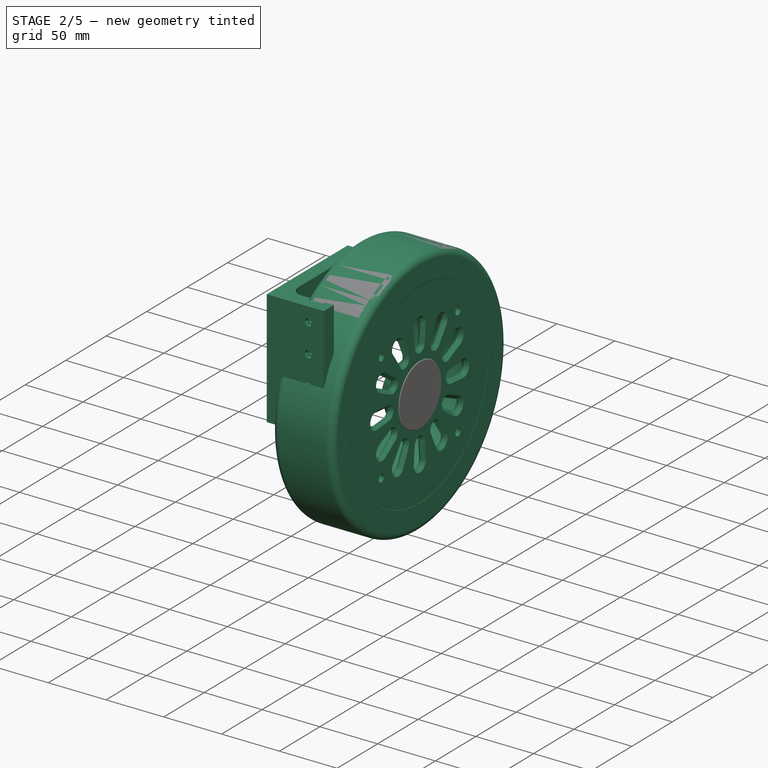
[diagram: stage 2 of 5 — iso view after this stage's code; geometry added in this stage tinted green]
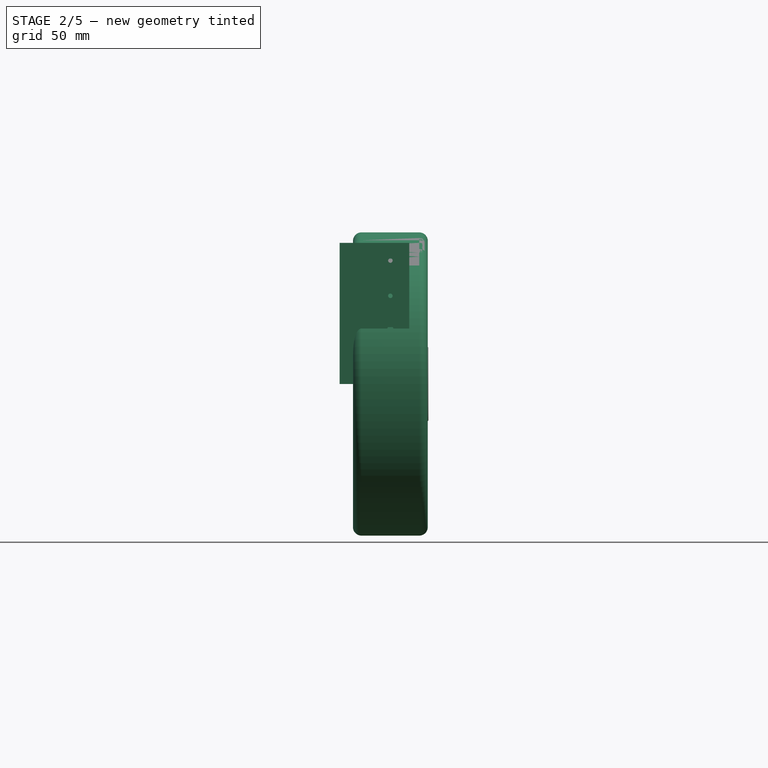
[diagram: stage 2 of 5 — front view after this stage's code; geometry added in this stage tinted green]
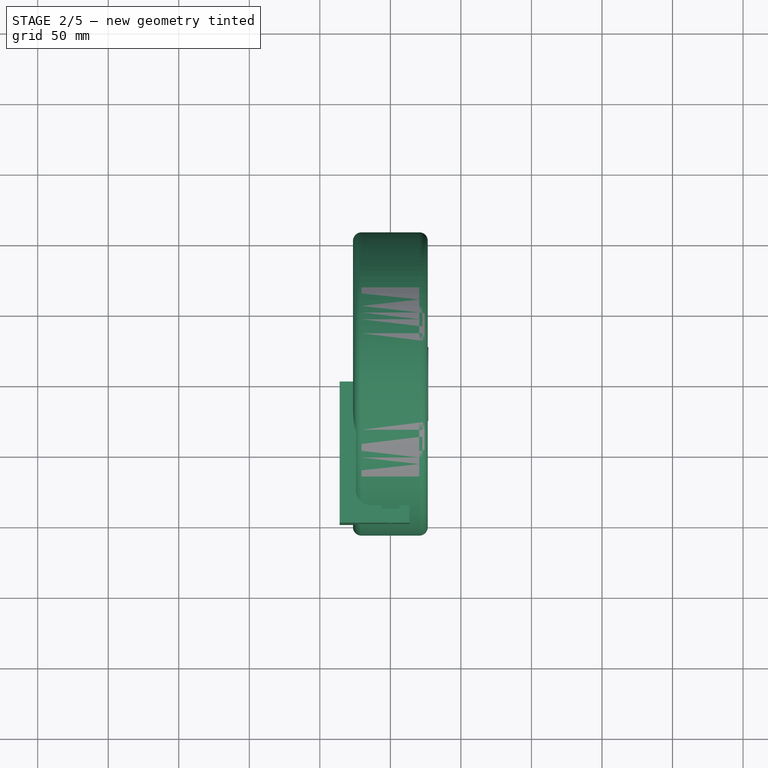
[diagram: stage 2 of 5 — top view after this stage's code; geometry added in this stage tinted green]
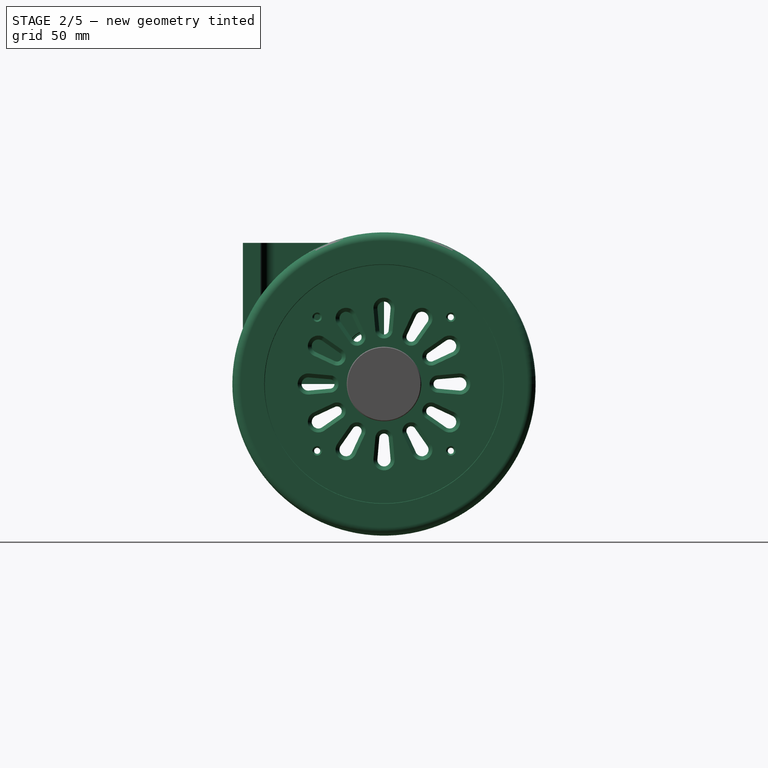
[diagram: stage 2 of 5 — right view after this stage's code; geometry added in this stage tinted green]
FEATURE [Sketcher::SketchObject] Sketch017  label="F3_Sketch017"
  ArcFitTolerance = 1e-06
  AttachmentSupport = -> [XZ_Plane009]
  ExternalGeometry = -> [Hole004]
  FullyConstrained = true
  MakeInternals = false
  MapMode = 5
  Placement = pos=(0,0,0) rot=(1,0,0;1.5708rad)
  expr: Constraints[5] = dd.F3_X - dd.F2_X - 1 mm
  sketch-geometry (20):
    g0: LineSegment [constr] StartX=-18.8 StartY=239 StartZ=0 EndX=-18.8 EndY=211 EndZ=0
    g1: ArcOfCircle [constr] CenterX=-18.8 CenterY=239 CenterZ=0 NormalX=0 NormalY=0 NormalZ=1 AngleXU=0 Radius=9.2 StartAngle=4.71239 EndAngle=6.28319
    g2: ArcOfCircle [constr] CenterX=-18.8 CenterY=211 CenterZ=0 NormalX=0 NormalY=0 NormalZ=1 AngleXU=0 Radius=9.2 StartAngle=0 EndAngle=1.5708
    g3: LineSegment [constr] StartX=-9.6 StartY=239 StartZ=0 EndX=-18.8 EndY=239 EndZ=0
    g4: LineSegment [constr] StartX=-9.6 StartY=211 StartZ=0 EndX=-18.8 EndY=211 EndZ=0
    g5: Circle [constr] CenterX=10 CenterY=235 CenterZ=0 NormalX=0 NormalY=0 NormalZ=1 AngleXU=0 Radius=3.3
    g6: Circle [constr] CenterX=10 CenterY=215 CenterZ=0 NormalX=0 NormalY=0 NormalZ=1 AngleXU=0 Radius=3.3
    g7: LineSegment StartX=-6.8 StartY=216.8 StartZ=0 EndX=-6.8 EndY=233.2 EndZ=0
    g8: LineSegment StartX=6.8 StartY=233.2 StartZ=0 EndX=13.5 EndY=226.6 EndZ=0
    g9: LineSegment StartX=13.5 StartY=226.6 StartZ=0 EndX=13.5 EndY=223.4 EndZ=0
    g10: LineSegment StartX=13.5 StartY=223.4 StartZ=0 EndX=6.8 EndY=216.8 EndZ=0
    g11: LineSegment StartX=6.8 StartY=216.8 StartZ=0 EndX=6.8 EndY=233.2 EndZ=0
    g12: LineSegment [constr] StartX=0 StartY=225 StartZ=0 EndX=-18.8 EndY=225 EndZ=0
    g13: LineSegment StartX=-6.8 StartY=233.2 StartZ=0 EndX=-12 EndY=233.2 EndZ=0
    g14: LineSegment StartX=-12 StartY=233.2 StartZ=0 EndX=-12 EndY=229.5 EndZ=0
    g15: LineSegment StartX=-12 StartY=229.5 StartZ=0 EndX=-13.5 EndY=229.5 EndZ=0
    g16: LineSegment StartX=-13.5 StartY=229.5 StartZ=0 EndX=-13.5 EndY=220.5 EndZ=0
    g17: LineSegment StartX=-13.5 StartY=220.5 StartZ=0 EndX=-12 EndY=220.5 EndZ=0
    g18: LineSegment StartX=-12 StartY=220.5 StartZ=0 EndX=-12 EndY=216.8 EndZ=0
    g19: LineSegment StartX=-12 StartY=216.8 StartZ=0 EndX=-6.8 EndY=216.8 EndZ=0
  constraints (53):
    c: Vertical(g0)
    c: Coincident(g1,g0)
    c: PointOnObject(g1,g0)
    c: Coincident(g2,g0)
    c: PointOnObject(g2,g0)
    c: Distance(g0,g-2) = 18.8
    c: Equal(g2,g1)
    c: Radius(g1) = 9.2
    c: Coincident(g3,g1)
    c: Coincident(g3,g0)
    c: Coincident(g4,g2)
    c: Coincident(g4,g0)
    c: Horizontal(g4)
    c: Horizontal(g3)
    c: Coincident(g5,g-3)
    c: Coincident(g6,g-4)
    c: Equal(g6,g5)
    c: Diameter(g6) = 6.6
    c: DistanceY(g-6,g0) = 9
    c: PointOnObject(g7,g-5)
    c: Coincident(g8,g9)
    c: Coincident(g9,g10)
    c: Coincident(g10,g11)
    c: Coincident(g11,g8)
    c: Symmetric(g10,g7,g-2)
    c: Symmetric(g7,g8,g-2)
    c: PointOnObject(g12,g-2)
    c: Symmetric(g0,g0,g12)
    c: Symmetric(g-5,g-5,g12)
    c: Distance(g9,g9) = 3.2
    c: Coincident(g7,g13)
    c: Horizontal(g13)
    c: Coincident(g13,g14)
    c: Vertical(g14)
    c: Coincident(g14,g15)
    c: PointOnObject(g15,g-6)
    c: Horizontal(g15)
    c: Coincident(g15,g16)
    c: PointOnObject(g16,g-6)
    c: Coincident(g16,g17)
    c: Coincident(g17,g18)
    c: Vertical(g18)
    c: Coincident(g18,g19)
    c: Coincident(g19,g7)
    c: Horizontal(g19)
    c: Symmetric(g17,g14,g12)
    c: Horizontal(g17)
    c: DistanceY(g16,g16) = 9
    c: DistanceY(g11,g11) = 16.4
    c: Symmetric(g10,g8,g12)
    c: Symmetric(g8,g9,g12)
    c: PointOnObject(g8,g-7)
    c: DistanceX(g0,g13) = 6.8
FEATURE [PartDesign::Pad] Pad003  label="F3_Pad003"
  BaseFeature = -> Hole004
  Direction = (0,-1,2e-16)
  Length = 48
  Length2 = 10
  Profile = -> Sketch017
  ReferenceAxis = -> Sketch017 [N_Axis]
  Refine = true
  Suppressed = false
  Type = 0
  expr: Length = dd.Pulley_Y + 10.4 mm
FEATURE [PartDesign::Body] Body009  label="Belt"
  AllowCompound = false
  Group = -> [Sketch018,Pad004,Sketch020,Pad006,Sketch021,Pad007]
  Origin = -> Origin010
  Tip = -> Pad007
  expr: .Placement.Base.z = -dd.Pos
FEATURE [App::Part] Part  label="Draft"
  Group = -> [Body009]
  Origin = -> Origin
FEATURE [Sketcher::SketchObject] Sketch022  label="F3_Sketch022"
  ArcFitTolerance = 1e-06
  AttachmentOffset = pos=(0,225,37.6) rot=(0,0,1;0rad)
  AttachmentSupport = -> [XZ_Plane009]
  ExternalGeometry = -> [Pad003]
  FullyConstrained = true
  MakeInternals = false
  MapMode = 5
  Placement = pos=(0,-37.6,225) rot=(1,0,0;1.5708rad)
  expr: .AttachmentOffset.Base.y = dd.Sh_Length - 25 mm
  expr: .AttachmentOffset.Base.z = dd.Pulley_Y
  sketch-geometry (23):
    g0: ArcOfCircle [constr] CenterX=-15.5 CenterY=0 CenterZ=0 NormalX=0 NormalY=0 NormalZ=1 AngleXU=0 Radius=6 StartAngle=0 EndAngle=0.759805
    g1: ArcOfCircle [constr] CenterX=-6.80036 CenterY=8.26536 CenterZ=0 NormalX=0 NormalY=0 NormalZ=1 AngleXU=0 Radius=6 StartAngle=3.15249 EndAngle=3.9014
    g2: LineSegment [constr] StartX=-12 StartY=8.2 StartZ=0 EndX=-12.8 EndY=8.2 EndZ=0
    g3: ArcOfCircle [constr] CenterX=-15.5 CenterY=0 CenterZ=0 NormalX=0 NormalY=0 NormalZ=1 AngleXU=0 Radius=5.2 StartAngle=0 EndAngle=0.759805
    g4: ArcOfCircle [constr] CenterX=-6.80036 CenterY=8.26536 CenterZ=0 NormalX=0 NormalY=0 NormalZ=1 AngleXU=0 Radius=6.8 StartAngle=3.1512 EndAngle=3.9014
    g5: ArcOfCircle CenterX=-15.5 CenterY=0 CenterZ=0 NormalX=0 NormalY=0 NormalZ=1 AngleXU=0 Radius=6.8 StartAngle=0 EndAngle=0.759805
    g6: ArcOfCircle CenterX=-6.80036 CenterY=8.26536 CenterZ=0 NormalX=0 NormalY=0 NormalZ=1 AngleXU=0 Radius=5.2 StartAngle=3.15329 EndAngle=3.9014
    g7: LineSegment StartX=-8.7 StartY=0 StartZ=0 EndX=-10.3 EndY=0 EndZ=0
    g8: LineSegment StartX=-10.3 StartY=0 StartZ=0 EndX=-10.301 EndY=0.1 EndZ=0
    g9: LineSegment StartX=-10.301 StartY=0.1 StartZ=0 EndX=-9.55932 EndY=0.841639 EndZ=0
    g10: LineSegment StartX=-9.55932 StartY=0.841639 StartZ=0 EndX=-9.59067 EndY=1.03917 EndZ=0
    g11: LineSegment StartX=-9.59067 StartY=1.03917 StartZ=0 EndX=-10.5255 EndY=1.51472 EndZ=0
    g12: LineSegment StartX=-10.5255 StartY=1.51472 StartZ=0 EndX=-10.5874 EndY=1.70489 EndZ=0
    g13: LineSegment StartX=-10.5874 StartY=1.70489 StartZ=0 EndX=-10.1119 EndY=2.63972 EndZ=0
    g14: LineSegment StartX=-10.1119 StartY=2.63972 StartZ=0 EndX=-10.2028 EndY=2.81783 EndZ=0
    g15: LineSegment StartX=-10.2028 StartY=2.81783 StartZ=0 EndX=-11.239 EndY=2.98056 EndZ=0
    g16: LineSegment StartX=-11.239 StartY=2.98056 StartZ=0 EndX=-11.3568 EndY=3.14221 EndZ=0
    g17: LineSegment StartX=-11.3568 StartY=3.14221 StartZ=0 EndX=-11.193 EndY=4.17818 EndZ=0
    g18: LineSegment StartX=-11.193 StartY=4.17818 StartZ=0 EndX=-11.3267 EndY=4.32685 EndZ=0
    g19: LineSegment StartX=-11.3267 StartY=4.32685 StartZ=0 EndX=-12.3746 EndY=4.37084 EndZ=0
    g20: LineSegment StartX=-12.3746 StartY=4.37084 StartZ=0 EndX=-12.4868 EndY=4.53646 EndZ=0
    g21: LineSegment StartX=-12.4868 StartY=4.53646 StartZ=0 EndX=-12.4868 EndY=8.20451 EndZ=0
    g22: LineSegment StartX=-12 StartY=8.20451 StartZ=0 EndX=-12.4868 EndY=8.20451 EndZ=0
  constraints (68):
    c: PointOnObject(g0,g-1)
    c: Radius(g0) = 6
    c: PointOnObject(g0,g-1)
    c: Distance(g0,g-2) = 15.5
    c: Tangent(g1,g0) = 1.5708
    c: Equal(g0,g1)
    c: Coincident(g2,g-4)
    c: Coincident(g2,g1)
    c: Horizontal(g2)
    c: Distance(g2,g2) = 0.8
    c: Coincident(g3,g0)
    c: Coincident(g4,g1)
    c: Tangent(g4,g3) = 1.5708
    c: Radius(g3) = 5.2
    c: PointOnObject(g4,g2)
    c: PointOnObject(g3,g-1)
    c: Coincident(g5,g0)
    c: PointOnObject(g5,g-1)
    c: Coincident(g6,g1)
    c: Tangent(g6,g5) = 1.5708
    c: Radius(g5) = 6.8
    c: PointOnObject(g6,g-4)
    c: Coincident(g7,g5)
    c: Coincident(g7,g3)
    c: Coincident(g8,g3)
    c: PointOnObject(g8,g3)
    c: DistanceY(g8,g8) = 0.1
    c: Coincident(g9,g8)
    c: PointOnObject(g9,g0)
    c: Angle(g7,g9) = 0.785398
    c: Coincident(g10,g9)
    c: Distance(g10,g10) = 0.2
    c: PointOnObject(g10,g0)
    c: Coincident(g11,g10)
    c: PointOnObject(g11,g3)
    c: Equal(g9,g11)
    c: Coincident(g12,g11)
    c: Equal(g12,g10)
    c: PointOnObject(g12,g3)
    c: Coincident(g13,g12)
    c: PointOnObject(g13,g0)
    c: Equal(g11,g13)
    c: Coincident(g14,g13)
    c: Equal(g12,g14)
    c: PointOnObject(g14,g0)
    c: Coincident(g15,g14)
    c: PointOnObject(g15,g3)
    c: Equal(g13,g15)
    c: Coincident(g16,g15)
    c: Equal(g16,g14)
    c: PointOnObject(g16,g3)
    c: Coincident(g17,g16)
    c: Equal(g17,g15)
    c: PointOnObject(g17,g1)
    c: Coincident(g18,g17)
    c: Equal(g16,g18)
    c: PointOnObject(g18,g1)
    c: Coincident(g19,g18)
    c: PointOnObject(g19,g4)
    c: Equal(g19,g17)
    c: Coincident(g20,g19)
    c: Equal(g20,g18)
    c: PointOnObject(g20,g4)
    c: Coincident(g21,g20)
    c: Vertical(g21)
    c: Coincident(g22,g6)
    c: Coincident(g22,g21)
    c: Horizontal(g22)
FEATURE [PartDesign::Pocket] Pocket008  label="F3_Pocket008"
  BaseFeature = -> Pad003
  Direction = (0,1,-2e-16)
  Length = 6.8
  Length2 = 5
  Midplane = true
  Profile = -> Sketch022
  ReferenceAxis = -> Sketch022 [N_Axis]
  Refine = true
  Suppressed = false
  Type = 0
FEATURE [PartDesign::Mirrored] Mirrored002  label="F3_Mirrored002"
  BaseFeature = -> Pocket008
  MirrorPlane = -> Sketch022 [H_Axis]
  Originals = -> [Pocket008]
  Refine = true
  Suppressed = false
  TransformMode = 0
FEATURE [Sketcher::SketchObject] Sketch023  label="F3_Sketch023"
  ArcFitTolerance = 1e-06
  AttachmentSupport = -> [Mirrored002]
  ExternalGeometry = -> [Mirrored002]
  FullyConstrained = true
  MakeInternals = false
  MapMode = 5
  Placement = pos=(13.5,0,0) rot=(0.57735,0.57735,0.57735;2.0944rad)
  sketch-geometry (4):
    g0: Circle CenterX=-44.6 CenterY=225 CenterZ=0 NormalX=0 NormalY=0 NormalZ=1 AngleXU=0 Radius=1.6
    g1: Circle CenterX=-30.6 CenterY=225 CenterZ=0 NormalX=0 NormalY=0 NormalZ=1 AngleXU=0 Radius=1.6
    g2: LineSegment [constr] StartX=-41 StartY=225 StartZ=0 EndX=-44.6 EndY=225 EndZ=0
    g3: LineSegment [constr] StartX=-34.2 StartY=225 StartZ=0 EndX=-30.6 EndY=225 EndZ=0
  constraints (10):
    c: Coincident(g2,g-3)
    c: Coincident(g2,g0)
    c: Horizontal(g2)
    c: Coincident(g3,g-4)
    c: Coincident(g3,g1)
    c: Horizontal(g3)
    c: Equal(g3,g2)
    c: Equal(g0,g1)
    c: Diameter(g1) = 3.2
    c: DistanceX(g2,g2) = 3.6
FEATURE [PartDesign::Hole] Hole005  label="F3_Hole005"
  BaseFeature = -> Mirrored002
  CustomThreadClearance = 0
  Depth = 157.689
  DepthType = 1
  Diameter = 3.2
  DrillForDepth = false
  DrillPoint = 1
  DrillPointAngle = 118
  HoleCutCountersinkAngle = 179
  HoleCutCustomValues = false
  HoleCutDepth = 2
  HoleCutDiameter = 6
  HoleCutType = 3
  ModelThread = false
  Profile = -> Sketch023
  Refine = true
  Suppressed = false
  Tapered = false
  TaperedAngle = 90
  ThreadClass = 0
  ThreadDepth = 157.689
  ThreadDepthType = 0
  ThreadDirection = 0
  ThreadFit = 0
  ThreadSize = 0
  ThreadType = 0
  Threaded = false
  UseCustomThreadClearance = false
FEATURE [Sketcher::SketchObject] Sketch024  label="F3_Sketch024"
  ArcFitTolerance = 1e-06
  AttachmentSupport = -> [Hole005]
  ExternalGeometry = -> [Hole005]
  FullyConstrained = true
  MakeInternals = false
  MapMode = 5
  Placement = pos=(-13.5,0,0) rot=(0.57735,-0.57735,-0.57735;2.0944rad)
  sketch-geometry (14):
    g0: LineSegment StartX=30.6 StartY=228.3 StartZ=0 EndX=27.7421 EndY=226.65 EndZ=0
    g1: LineSegment StartX=27.7421 StartY=226.65 StartZ=0 EndX=27.7421 EndY=223.35 EndZ=0
    g2: LineSegment StartX=27.7421 StartY=223.35 StartZ=0 EndX=30.6 EndY=221.7 EndZ=0
    g3: LineSegment StartX=30.6 StartY=221.7 StartZ=0 EndX=33.4579 EndY=223.35 EndZ=0
    g4: LineSegment StartX=33.4579 StartY=223.35 StartZ=0 EndX=33.4579 EndY=226.65 EndZ=0
    g5: LineSegment StartX=33.4579 StartY=226.65 StartZ=0 EndX=30.6 EndY=228.3 EndZ=0
    g6: Circle [constr] CenterX=30.6 CenterY=225 CenterZ=0 NormalX=0 NormalY=0 NormalZ=1 AngleXU=0 Radius=3.3
    g7: LineSegment StartX=44.6 StartY=228.3 StartZ=0 EndX=41.7421 EndY=226.65 EndZ=0
    g8: LineSegment StartX=41.7421 StartY=226.65 StartZ=0 EndX=41.7421 EndY=223.35 EndZ=0
    g9: LineSegment StartX=41.7421 StartY=223.35 StartZ=0 EndX=44.6 EndY=221.7 EndZ=0
    g10: LineSegment StartX=44.6 StartY=221.7 StartZ=0 EndX=47.4579 EndY=223.35 EndZ=0
    g11: LineSegment StartX=47.4579 StartY=223.35 StartZ=0 EndX=47.4579 EndY=226.65 EndZ=0
    g12: LineSegment StartX=47.4579 StartY=226.65 StartZ=0 EndX=44.6 EndY=228.3 EndZ=0
    g13: Circle [constr] CenterX=44.6 CenterY=225 CenterZ=0 NormalX=0 NormalY=0 NormalZ=1 AngleXU=0 Radius=3.3
  constraints (32):
    c: Coincident(g0,g1)
    c: Coincident(g1,g2)
    c: Coincident(g2,g3)
    c: Coincident(g3,g4)
    c: Coincident(g4,g5)
    c: Coincident(g5,g0)
    c: Equal(g0, g1-g5) x5
    c: PointOnObject(g0,g6)
    c: PointOnObject(g1,g6)
    c: PointOnObject(g2,g6)
    c: PointOnObject(g3,g6)
    c: PointOnObject(g4,g6)
    c: PointOnObject(g5,g6)
    c: Coincident(g6,g-3)
    c: Coincident(g7,g8)
    c: Coincident(g8,g9)
    c: Coincident(g9,g10)
    c: Coincident(g10,g11)
    c: Coincident(g11,g12)
    c: Coincident(g12,g7)
    c: Equal(g7, g8-g12) x5
    c: PointOnObject(g7,g13)
    c: PointOnObject(g8,g13)
    c: PointOnObject(g9,g13)
    c: PointOnObject(g10,g13)
    c: PointOnObject(g11,g13)
    c: PointOnObject(g12,g13)
    c: Coincident(g13,g-4)
    c: Equal(g13,g6)
    c: Diameter(g13) = 6.6
    c: Vertical(g4)
    c: Vertical(g8)
FEATURE [PartDesign::Pocket] Pocket009  label="F3_Pocket009"
  BaseFeature = -> Hole005
  Direction = (1,0,0)
  Length = 2.2
  Length2 = 5
  Profile = -> Sketch024
  ReferenceAxis = -> Sketch024 [N_Axis]
  Refine = true
  Suppressed = false
  Type = 0
FEATURE [PartDesign::Mirrored] Mirrored003  label="F3_Mirrored003"
  BaseFeature = -> Pocket009
  MirrorPlane = -> XZ_Plane009
  Refine = true
  Suppressed = false
  TransformMode = 1
FEATURE [PartDesign::Body] Body008  label="Frame3_Orig"
  AllowCompound = false
  Group = -> [Binder002,Sketch015,Pad002,Sketch016,Hole004,Sketch017,Pad003,Sketch022,Pocket008,Mirrored002,Sketch023,Hole005,Sketch024,Pocket009,Mirrored003]
  Origin = -> Origin009
  Tip = -> Mirrored003
FEATURE [PartDesign::SubShapeBinder] Binder003  label="F3s_Binder003"
  BindCopyOnChange = 0
  BindMode = 0
  ClaimChildren = false
  Context = -> Part003 [Body010.Binder003.]
  Fuse = false
  MakeFace = true
  OffsetFill = false
  OffsetIntersection = false
  OffsetJoinType = 0
  OffsetOpenResult = false
  PartialLoad = false
  Refine = true
  Relative = true
  Support = -> [Body008]
  _Version = 2
FEATURE [Sketcher::SketchObject] Sketch025  label="F3s_Sketch025"
  ArcFitTolerance = 1e-06
  AttachmentSupport = -> [XZ_Plane011]
  ExternalGeometry = -> [Binder003]
  FullyConstrained = true
  MakeInternals = false
  MapMode = 5
  Placement = pos=(0,0,0) rot=(1,0,0;1.5708rad)
  sketch-geometry (4):
    g0: LineSegment StartX=-6.8 StartY=248 StartZ=0 EndX=-13.5 EndY=248 EndZ=0
    g1: LineSegment StartX=-13.5 StartY=248 StartZ=0 EndX=-13.5 EndY=202 EndZ=0
    g2: LineSegment StartX=-13.5 StartY=202 StartZ=0 EndX=-6.8 EndY=202 EndZ=0
    g3: LineSegment StartX=-6.8 StartY=202 StartZ=0 EndX=-6.8 EndY=248 EndZ=0
  constraints (10):
    c: Coincident(g0,g1)
    c: Coincident(g1,g2)
    c: Coincident(g2,g3)
    c: Coincident(g3,g0)
    c: Horizontal(g0)
    c: Horizontal(g2)
    c: Vertical(g1)
    c: Vertical(g3)
    c: Coincident(g0,g-3)
    c: Coincident(g1,g-4)
FEATURE [PartDesign::Pad] Pad008  label="F3s_Pad008"
  Direction = (0,-1,2e-16)
  Length = 48
  Length2 = 10
  Placement = pos=(0,0,0) rot=(1,0,0;1.5708rad)
  Profile = -> Sketch025
  ReferenceAxis = -> Sketch025 [N_Axis]
  Refine = true
  Suppressed = false
  Type = 0
FEATURE [Sketcher::SketchObject] Sketch026  label="F3s_Sketch026"
  ArcFitTolerance = 1e-06
  AttachmentOffset = pos=(0,0,37.6) rot=(0,0,1;0rad)
  AttachmentSupport = -> [XZ_Plane011]
  ExternalGeometry = -> [Binder003]
  FullyConstrained = true
  MakeInternals = false
  MapMode = 5
  Placement = pos=(0,-37.6,8.3e-15) rot=(1,0,0;1.5708rad)
  expr: .AttachmentOffset.Base.z = dd.Pulley_Y
  sketch-geometry (4):
    g0: ArcOfCircle CenterX=-15.5 CenterY=225 CenterZ=0 NormalX=0 NormalY=0 NormalZ=1 AngleXU=0 Radius=6.8 StartAngle=5.56002 EndAngle=7.00636
    g1: LineSegment StartX=-10.402 StartY=220.5 StartZ=0 EndX=-13.5 EndY=220.5 EndZ=0
    g2: LineSegment StartX=-13.5 StartY=220.5 StartZ=0 EndX=-13.5 EndY=229.5 EndZ=0
    g3: LineSegment StartX=-13.5 StartY=229.5 StartZ=0 EndX=-10.402 EndY=229.5 EndZ=0
  constraints (10):
    c: Coincident(g0,g-4)
    c: Equal(g-3,g0)
    c: Coincident(g1,g-5)
    c: Horizontal(g1)
    c: Coincident(g1,g2)
    c: Coincident(g2,g-6)
    c: Coincident(g2,g3)
    c: Horizontal(g3)
    c: Coincident(g0,g3)
    c: Coincident(g0,g1)
FEATURE [PartDesign::Pocket] Pocket010  label="F3s_Pocket010"
  BaseFeature = -> Pad008
  Direction = (0,1,-2e-16)
  Length = 10.8
  Length2 = 10.39
  Midplane = true
  Placement = pos=(0,0,0) rot=(1,0,0;1.5708rad)
  Profile = -> Sketch026
  ReferenceAxis = -> Sketch026 [N_Axis]
  Refine = true
  Suppressed = false
  Type = 4
FEATURE [PartDesign::Mirrored] Mirrored004  label="F3s_Mirrored004"
  BaseFeature = -> Pocket010
  MirrorPlane = -> XZ_Plane011
  Placement = pos=(0,0,0) rot=(1,0,0;1.5708rad)
  Refine = true
  Suppressed = false
  TransformMode = 1
FEATURE [PartDesign::Body] Body010  label="Frame3_Split"
  AllowCompound = false
  Group = -> [Binder003,Sketch025,Pad008,Sketch026,Pocket010,Mirrored004]
  Origin = -> Origin011
  Tip = -> Mirrored004
FEATURE [Part::FeaturePython] Slice001  # WARN: FeaturePython — macro-defined, semantics opaque (R4)
  Base = -> Body008
  Mode = 1
  Tolerance = 0
  Tools = -> [Body010]
FEATURE [Part::FeaturePython] Slice001_child0  label="Slice001.0"  # WARN: FeaturePython — macro-defined, semantics opaque (R4)
  Base = -> Slice001
  FilterType = 1
  Invert = false
  OverrideMaxVal = 0
  WindowFrom = 80
  WindowTo = 100
  items = 0
FEATURE [Part::FeaturePython] Slice001_child1  label="Slice001.1"  # WARN: FeaturePython — macro-defined, semantics opaque (R4)
  Base = -> Slice001
  FilterType = 1
  Invert = false
  OverrideMaxVal = 0
  WindowFrom = 80
  WindowTo = 100
  items = 1
FEATURE [Part::FeaturePython] Slice001_child2  label="Slice001.2"  # WARN: FeaturePython — macro-defined, semantics opaque (R4)
  Base = -> Slice001
  FilterType = 1
  Invert = false
  OverrideMaxVal = 0
  WindowFrom = 80
  WindowTo = 100
  items = 2
FEATURE [Part::FeaturePython] Slice001_child3  label="Slice001.3"  # WARN: FeaturePython — macro-defined, semantics opaque (R4)
  Base = -> Slice001
  FilterType = 1
  Invert = false
  OverrideMaxVal = 0
  WindowFrom = 80
  WindowTo = 100
  items = 3
FEATURE [App::DocumentObjectGroup] GrExplode_Slice003  label="G4_Exploded Slice003"
  Group = -> [Slice003_child0,Slice003_child1,Slice003_child2]
FEATURE [App::Part] Part006  label="Gear4"
  Group = -> [Fusion002,InvoluteGear003,Body015,Body016,Common002,Body017,Slice003_child2,Slice003_child0,Slice003_child1,Slice003,GrExplode_Slice003]
  Origin = -> Origin006
  Placement = pos=(-19.8,-12.5,25) rot=(1,0,0;0rad)
  expr: .Placement.Base.x = dd.F2_X - dd.F3_X
  expr: .Placement.Base.y = -dd.G2_Y
  expr: .Placement.Base.z = dd.G2_Z
  expr: .Placement.Rotation.Angle = dd.Pos * 360 ° / (dd.G3_Module * dd.G3_Teeth * pi)
FEATURE [PartDesign::SubShapeBinder] Binder005  label="F1b_Binder005_MG"
  BindCopyOnChange = 0
  BindMode = 0
  ClaimChildren = false
  Context = -> Part001 [Body018.Binder005.]
  Fuse = false
  MakeFace = true
  OffsetFill = false
  OffsetIntersection = false
  OffsetJoinType = 0
  OffsetOpenResult = false
  PartialLoad = false
  Refine = true
  Relative = true
  Support = -> [Body003[Face2,Face4]]
  _Version = 2
FEATURE [PartDesign::SubShapeBinder] Binder006  label="F1b_Binder006_CG"
  BindCopyOnChange = 0
  BindMode = 0
  ClaimChildren = false
  Context = -> Part001 [Body018.Binder006.]
  Fuse = false
  MakeFace = true
  OffsetFill = false
  OffsetIntersection = false
  OffsetJoinType = 0
  OffsetOpenResult = false
  PartialLoad = false
  Refine = true
  Relative = true
  Support = -> [Body004[Face2]]
  _Version = 2
FEATURE [Sketcher::SketchObject] Sketch039  label="F1b_Sketch039"
  ArcFitTolerance = 1e-06
  AttachmentSupport = -> [XY_Plane018]
  ExternalGeometry = -> [Binder005]
  FullyConstrained = true
  MakeInternals = false
  MapMode = 5
  expr: Constraints[3] = -(dd.F1_X - dd.F3_X)
  sketch-geometry (12):
    g0: LineSegment [constr] StartX=-30.2 StartY=0 StartZ=0 EndX=-30.2 EndY=-90 EndZ=0
    g1: LineSegment StartX=-6.2 StartY=-90 StartZ=0 EndX=6.2 EndY=-90 EndZ=0
    g2: LineSegment StartX=6.2 StartY=-90 StartZ=0 EndX=6.2 EndY=-87.6 EndZ=0
    g3: LineSegment StartX=6.2 StartY=-87.6 StartZ=0 EndX=13.4 EndY=-87.6 EndZ=0
    g4: LineSegment StartX=13.4 StartY=-87.6 StartZ=0 EndX=13.4 EndY=-100 EndZ=0
    g5: LineSegment StartX=13.4 StartY=-100 StartZ=0 EndX=-36 EndY=-100 EndZ=0
    g6: LineSegment StartX=-36 StartY=-100 StartZ=0 EndX=-36 EndY=0 EndZ=0
    g7: LineSegment StartX=-36 StartY=3.6e-15 StartZ=0 EndX=-24.4 EndY=3.6e-15 EndZ=0
    g8: LineSegment StartX=-6.2 StartY=-90 StartZ=0 EndX=-6.2 EndY=-87.6 EndZ=0
    g9: LineSegment StartX=-6.2 StartY=-87.6 StartZ=0 EndX=-14 EndY=-87.6 EndZ=0
    g10: ArcOfCircle CenterX=-14 CenterY=-77.2 CenterZ=0 NormalX=0 NormalY=0 NormalZ=1 AngleXU=0 Radius=10.4 StartAngle=3.14159 EndAngle=4.71239
    g11: LineSegment StartX=-24.4 StartY=3.6e-15 StartZ=0 EndX=-24.4 EndY=-77.2 EndZ=0
  constraints (34):
    c: PointOnObject(g0,g-1)
    c: Vertical(g0)
    c: PointOnObject(g0,g-3)
    c: Distance(g0,g-2) = 30.2
    c: PointOnObject(g-3,g1)
    c: Distance(g-3,g1) = 0.2
    c: Coincident(g1,g2)
    c: Vertical(g2)
    c: Coincident(g2,g3)
    c: Horizontal(g3)
    c: Coincident(g3,g4)
    c: Vertical(g4)
    c: Coincident(g4,g5)
    c: Horizontal(g5)
    c: Coincident(g5,g6)
    c: Vertical(g6)
    c: Coincident(g6,g7)
    c: Coincident(g1,g8)
    c: Vertical(g8)
    c: Coincident(g8,g9)
    c: Horizontal(g9)
    c: Symmetric(g8,g2,g-2)
    c: Distance(g2,g2) = 2.4
    c: Distance(g3,g-2) = 13.4
    c: Horizontal(g1)
    c: Symmetric(g7,g6,g0)
    c: Horizontal(g7)
    c: Distance(g7,g7) = 11.6
    c: Tangent(g9,g10) = 1.5708
    c: DistanceY(g4,g-3) = 10
    c: Distance(g9,g-2) = 14
    c: Vertical(g11)
    c: Tangent(g10,g11) = -1.5708
    c: Coincident(g11,g7)
FEATURE [PartDesign::Pad] Pad009  label="F1b_Pad009"
  Direction = (0,0,1)
  Length = 100
  Length2 = 10
  Profile = -> Sketch039
  ReferenceAxis = -> Sketch039 [N_Axis]
  Refine = true
  Suppressed = false
  Type = 0
FEATURE [PartDesign::Hole] Hole009  label="F1b_Hole009"
  BaseFeature = -> Pad009
  CustomThreadClearance = 0
  Depth = 302.598
  DepthType = 1
  Diameter = 3.2
  DrillForDepth = false
  DrillPoint = 1
  DrillPointAngle = 118
  HoleCutCountersinkAngle = 90
  HoleCutCustomValues = false
  HoleCutDepth = 0
  HoleCutDiameter = 6.1
  HoleCutType = 0
  ModelThread = false
  Profile = -> Binder005 [Edge14,Edge13,Edge12,Edge11]
  Refine = true
  Suppressed = false
  Tapered = false
  TaperedAngle = 90
  ThreadClass = 0
  ThreadDepth = 302.598
  ThreadDepthType = 0
  ThreadDirection = 0
  ThreadFit = 0
  ThreadSize = 0
  ThreadType = 0
  Threaded = false
  UseCustomThreadClearance = false
FEATURE [Sketcher::SketchObject] Sketch040  label="F1b_Sketch040"
  ArcFitTolerance = 1e-06
  AttachmentOffset = pos=(-30.2,-12.5,25) rot=(0,0,1;0rad)
  AttachmentSupport = -> [XY_Plane018]
  ExternalGeometry = -> [Hole009]
  FullyConstrained = true
  MakeInternals = false
  MapMode = 5
  Placement = pos=(-30.2,-12.5,25) rot=(0,0,1;0rad)
  expr: .AttachmentOffset.Base.x = dd.F1_X - dd.F3_X
  expr: .AttachmentOffset.Base.y = -dd.G2_Y
  expr: .AttachmentOffset.Base.z = dd.G2_Z
  sketch-geometry (10):
    g0: LineSegment StartX=-5.8 StartY=0 StartZ=0 EndX=-5.8 EndY=-12.7 EndZ=0
    g1: LineSegment StartX=-5.8 StartY=-12.7 StartZ=0 EndX=-5.2 EndY=-12.1 EndZ=0
    g2: LineSegment StartX=-5.2 StartY=-12.1 StartZ=0 EndX=-0.8 EndY=-12.1 EndZ=0
    g3: LineSegment StartX=-0.8 StartY=-12.1 StartZ=0 EndX=-0.8 EndY=-10.9 EndZ=0
    g4: LineSegment StartX=-0.8 StartY=-10.9 StartZ=0 EndX=0.8 EndY=-10.9 EndZ=0
    g5: LineSegment StartX=0.8 StartY=-10.9 StartZ=0 EndX=0.8 EndY=-12.1 EndZ=0
    g6: LineSegment StartX=0.8 StartY=-12.1 StartZ=0 EndX=5.2 EndY=-12.1 EndZ=0
    g7: LineSegment StartX=5.2 StartY=-12.1 StartZ=0 EndX=5.8 EndY=-12.7 EndZ=0
    g8: LineSegment StartX=5.8 StartY=-12.7 StartZ=0 EndX=5.8 EndY=0 EndZ=0
    g9: LineSegment StartX=5.8 StartY=0 StartZ=0 EndX=-5.8 EndY=0 EndZ=0
  constraints (28):
    c: PointOnObject(g0,g-1)
    c: PointOnObject(g0,g-3)
    c: Vertical(g0)
    c: Coincident(g0,g1)
    c: Coincident(g1,g2)
    c: Coincident(g2,g3)
    c: Coincident(g3,g4)
    c: Coincident(g4,g5)
    c: Vertical(g5)
    c: Coincident(g5,g6)
    c: Coincident(g6,g7)
    c: Coincident(g7,g8)
    c: PointOnObject(g8,g-1)
    c: Vertical(g8)
    c: Coincident(g8,g9)
    c: Coincident(g9,g0)
    c: Vertical(g3)
    c: Horizontal(g2)
    c: Horizontal(g6)
    c: Horizontal(g4)
    c: Distance(g5,g5) = 1.2
    c: Symmetric(g2,g5,g-2)
    c: Distance(g4,g4) = 1.6
    c: Distance(g1,g-1) = 12.1
    c: Symmetric(g0,g7,g-2)
    c: Equal(g1,g7)
    c: Perpendicular(g7,g1)
    c: DistanceX(g0,g1) = 0.6
FEATURE [PartDesign::Groove] Groove002  label="F1b_Groove002"
  Angle = 360
  Angle2 = 60
  Axis = (1,0,0)
  Base = (-30.2,-12.5,25)
  BaseFeature = -> Hole009
  Profile = -> Sketch040
  ReferenceAxis = -> Sketch040 [H_Axis]
  Refine = true
  Suppressed = false
  Type = 0
FEATURE [Sketcher::SketchObject] Sketch041  label="F1b_Sketch041"
  ArcFitTolerance = 1e-06
  AttachmentSupport = -> [Groove002]
  ExternalGeometry = -> [Groove002]
  FullyConstrained = true
  MakeInternals = false
  MapMode = 5
  Placement = pos=(0,-100,0) rot=(1,0,0;1.5708rad)
  sketch-geometry (28):
    g0: LineSegment StartX=1.65 StartY=90.3579 StartZ=0 EndX=-1.65 EndY=90.3579 EndZ=0
    g1: LineSegment StartX=-1.65 StartY=90.3579 StartZ=0 EndX=-3.3 EndY=87.5 EndZ=0
    g2: LineSegment StartX=-3.3 StartY=87.5 StartZ=0 EndX=-1.65 EndY=84.6421 EndZ=0
    g3: LineSegment StartX=-1.65 StartY=84.6421 StartZ=0 EndX=1.65 EndY=84.6421 EndZ=0
    g4: LineSegment StartX=1.65 StartY=84.6421 StartZ=0 EndX=3.3 EndY=87.5 EndZ=0
    g5: LineSegment StartX=3.3 StartY=87.5 StartZ=0 EndX=1.65 EndY=90.3579 EndZ=0
    g6: Circle [constr] CenterX=0 CenterY=87.5 CenterZ=0 NormalX=0 NormalY=0 NormalZ=1 AngleXU=0 Radius=3.3
    g7: LineSegment StartX=1.65 StartY=65.3579 StartZ=0 EndX=-1.65 EndY=65.3579 EndZ=0
    g8: LineSegment StartX=-1.65 StartY=65.3579 StartZ=0 EndX=-3.3 EndY=62.5 EndZ=0
    g9: LineSegment StartX=-3.3 StartY=62.5 StartZ=0 EndX=-1.65 EndY=59.6421 EndZ=0
    g10: LineSegment StartX=-1.65 StartY=59.6421 StartZ=0 EndX=1.65 EndY=59.6421 EndZ=0
    g11: LineSegment StartX=1.65 StartY=59.6421 StartZ=0 EndX=3.3 EndY=62.5 EndZ=0
    g12: LineSegment StartX=3.3 StartY=62.5 StartZ=0 EndX=1.65 EndY=65.3579 EndZ=0
    g13: Circle [constr] CenterX=0 CenterY=62.5 CenterZ=0 NormalX=0 NormalY=0 NormalZ=1 AngleXU=0 Radius=3.3
    g14: LineSegment StartX=1.65 StartY=40.3579 StartZ=0 EndX=-1.65 EndY=40.3579 EndZ=0
    g15: LineSegment StartX=-1.65 StartY=40.3579 StartZ=0 EndX=-3.3 EndY=37.5 EndZ=0
    g16: LineSegment StartX=-3.3 StartY=37.5 StartZ=0 EndX=-1.65 EndY=34.6421 EndZ=0
    g17: LineSegment StartX=-1.65 StartY=34.6421 StartZ=0 EndX=1.65 EndY=34.6421 EndZ=0
    g18: LineSegment StartX=1.65 StartY=34.6421 StartZ=0 EndX=3.3 EndY=37.5 EndZ=0
    g19: LineSegment StartX=3.3 StartY=37.5 StartZ=0 EndX=1.65 EndY=40.3579 EndZ=0
    g20: Circle [constr] CenterX=0 CenterY=37.5 CenterZ=0 NormalX=0 NormalY=0 NormalZ=1 AngleXU=0 Radius=3.3
    g21: LineSegment StartX=1.65 StartY=15.3579 StartZ=0 EndX=-1.65 EndY=15.3579 EndZ=0
    g22: LineSegment StartX=-1.65 StartY=15.3579 StartZ=0 EndX=-3.3 EndY=12.5 EndZ=0
    g23: LineSegment StartX=-3.3 StartY=12.5 StartZ=0 EndX=-1.65 EndY=9.64212 EndZ=0
    g24: LineSegment StartX=-1.65 StartY=9.64212 StartZ=0 EndX=1.65 EndY=9.64212 EndZ=0
    g25: LineSegment StartX=1.65 StartY=9.64212 StartZ=0 EndX=3.3 EndY=12.5 EndZ=0
    g26: LineSegment StartX=3.3 StartY=12.5 StartZ=0 EndX=1.65 EndY=15.3579 EndZ=0
    g27: Circle [constr] CenterX=0 CenterY=12.5 CenterZ=0 NormalX=0 NormalY=0 NormalZ=1 AngleXU=0 Radius=3.3
  constraints (64):
    c: Coincident(g0,g1)
    c: Coincident(g1,g2)
    c: Coincident(g2,g3)
    c: Coincident(g3,g4)
    c: Coincident(g4,g5)
    c: Coincident(g5,g0)
    c: Equal(g0, g1-g5) x5
    c: PointOnObject(g0,g6)
    c: PointOnObject(g1,g6)
    c: PointOnObject(g2,g6)
    c: PointOnObject(g3,g6)
    c: PointOnObject(g4,g6)
    c: Coincident(g6,g-3)
    c: Coincident(g7,g8)
    c: Coincident(g8,g9)
    c: Coincident(g9,g10)
    c: Coincident(g10,g11)
    c: Coincident(g11,g12)
    c: Coincident(g12,g7)
    c: Equal(g7, g8-g12) x5
    c: PointOnObject(g7,g13)
    c: PointOnObject(g8,g13)
    c: PointOnObject(g9,g13)
    c: PointOnObject(g10,g13)
    c: PointOnObject(g11,g13)
    c: Coincident(g13,g-4)
    c: Coincident(g14,g15)
    c: Coincident(g15,g16)
    c: Coincident(g16,g17)
    c: Coincident(g17,g18)
    c: Coincident(g18,g19)
    c: Coincident(g19,g14)
    c: Equal(g14, g15-g19) x5
    c: PointOnObject(g14,g20)
    c: PointOnObject(g15,g20)
    c: PointOnObject(g16,g20)
    c: PointOnObject(g17,g20)
    c: PointOnObject(g18,g20)
    c: Coincident(g20,g-5)
    c: Coincident(g21,g22)
    c: Coincident(g22,g23)
    c: Coincident(g23,g24)
    c: Coincident(g24,g25)
    c: Coincident(g25,g26)
    c: Coincident(g26,g21)
    c: Equal(g21, g22-g26) x5
    c: PointOnObject(g21,g27)
    c: PointOnObject(g22,g27)
    c: PointOnObject(g23,g27)
    c: PointOnObject(g24,g27)
    c: PointOnObject(g25,g27)
    c: PointOnObject(g26,g27)
    c: Coincident(g27,g-6)
    c: PointOnObject(g14,g20)
    c: Horizontal(g0)
    c: Horizontal(g7)
    c: Horizontal(g14)
    c: Horizontal(g21)
    c: Equal(g27,g20)
    c: Equal(g20,g13)
    c: Equal(g13,g6)
    c: Diameter(g13) = 6.6
    c: PointOnObject(g0,g6)
    c: PointOnObject(g7,g13)
FEATURE [PartDesign::Pocket] Pocket014  label="F1b_Pocket014"
  BaseFeature = -> Groove002
  Direction = (0,1,-2e-16)
  Length = 3
  Length2 = 5
  Profile = -> Sketch041
  ReferenceAxis = -> Sketch041 [N_Axis]
  Refine = true
  Suppressed = false
  Type = 0
FEATURE [PartDesign::Body] Body020  label="Frame1_top"
  AllowCompound = false
  Group = -> [Binder008,Sketch057,Pad013,Sketch058,Pad014,Sketch059,Pad015,Sketch060,Pocket021,Sketch061,Pocket022,Mirrored008]
  Origin = -> Origin020
  Tip = -> Mirrored008
FEATURE [App::Part] Part001  label="Frame1"
  Group = -> [Body004,Body003,Part004,Part005,Part006,Body018,Body019,Slice004_child1,Slice004_child3,Slice004_child2,Slice004_child0,Slice004,GrExplode_Slice004,Body020]
  Origin = -> Origin001
  Placement = pos=(90,0,0) rot=(0,0,1;0rad)
  expr: .Placement.Base.x = dd.F3_X
FEATURE [Sketcher::SketchObject] Sketch062  label="T_Sketch062"
  ArcFitTolerance = 1e-06
  AttachmentSupport = -> [XY_Plane022]
  FullyConstrained = true
  MakeInternals = false
  MapMode = 5
  sketch-geometry (12):
    g0: LineSegment StartX=-20.5 StartY=-107.5 StartZ=0 EndX=20.5 EndY=-107.5 EndZ=0
    g1: ArcOfCircle CenterX=-2.8e-15 CenterY=-100 CenterZ=0 NormalX=0 NormalY=0 NormalZ=1 AngleXU=0 Radius=30 StartAngle=0.927295 EndAngle=2.2143
    g2: GeomPoint X=0 Y=-70 Z=0
    g3: ArcOfCircle CenterX=-20.5 CenterY=-101.5 CenterZ=0 NormalX=0 NormalY=0 NormalZ=1 AngleXU=0 Radius=6 StartAngle=3.14159 EndAngle=4.71239
    g4: ArcOfCircle CenterX=20.5 CenterY=-101.5 CenterZ=0 NormalX=0 NormalY=0 NormalZ=1 AngleXU=0 Radius=6 StartAngle=4.71239 EndAngle=6.28319
    g5: LineSegment StartX=-26.5 StartY=-101.5 StartZ=0 EndX=-26.5 EndY=-84.8649 EndZ=0
    g6: LineSegment StartX=26.5 StartY=-101.5 StartZ=0 EndX=26.5 EndY=-84.8649 EndZ=0
    g7: ArcOfCircle CenterX=-37 CenterY=-77.2 CenterZ=0 NormalX=0 NormalY=0 NormalZ=1 AngleXU=0 Radius=13 StartAngle=5.65262 EndAngle=6.28319
    g8: ArcOfCircle CenterX=37 CenterY=-77.2 CenterZ=0 NormalX=0 NormalY=0 NormalZ=1 AngleXU=0 Radius=13 StartAngle=3.14159 EndAngle=3.77216
    g9: LineSegment StartX=-24 StartY=-77.2 StartZ=0 EndX=-18 EndY=-76 EndZ=0
    g10: LineSegment StartX=18 StartY=-76 StartZ=0 EndX=24 EndY=-77.2 EndZ=0
    g11: LineSegment [constr] StartX=-24 StartY=-77.2 StartZ=0 EndX=-37 EndY=-77.2 EndZ=0
  constraints (31):
    c: Horizontal(g0)
    c: PointOnObject(g2,g1)
    c: PointOnObject(g2,g-2)
    c: Tangent(g0,g3) = -1.5708
    c: Tangent(g0,g4) = -1.5708
    c: Radius(g3) = 6
    c: Symmetric(g1,g1,g-2)
    c: Symmetric(g4,g3,g-2)
    c: Distance(g0,g-1) = 107.5
    c: Vertical(g5)
    c: Vertical(g6)
    c: Tangent(g4,g6) = -1.5708
    c: Tangent(g3,g5) = 1.5708
    c: Coincident(g7,g5)
    c: Coincident(g8,g6)
    c: Symmetric(g8,g7,g-2)
    c: Coincident(g9,g7)
    c: Coincident(g9,g1)
    c: Coincident(g10,g1)
    c: Coincident(g10,g8)
    c: Symmetric(g8,g7,g-2)
    c: DistanceY(g7,g1) = 1.2
    c: DistanceX(g1,g8) = 6
    c: DistanceX(g7,g8) = 48
    c: Distance(g8,g-1) = 77.2
    c: Radius(g1) = 30
    c: Coincident(g11,g7)
    c: Coincident(g11,g7)
    c: Horizontal(g11)
    c: Distance(g3,g4) = 53
    c: Radius(g7) = 13
FEATURE [PartDesign::Revolution] Revolution006  label="T_Revolution006"
  Angle = 360
  Angle2 = 60
  Axis = (1,0,0)
  Base = (0,0,0)
  Profile = -> Sketch062
  ReferenceAxis = -> Sketch062 [H_Axis]
  Refine = true
  Suppressed = false
  Type = 0
FEATURE [PartDesign::Body] Body021  label="Tire"
  AllowCompound = false
  Group = -> [Sketch062,Revolution006]
  Origin = -> Origin022
  Tip = -> Revolution006
FEATURE [PartDesign::SubShapeBinder] Binder009  label="W_Binder009_CG2"
  BindCopyOnChange = 0
  BindMode = 0
  ClaimChildren = false
  Context = -> Part007 [Body022.Binder009.]
  Fuse = false
  MakeFace = true
  OffsetFill = false
  OffsetIntersection = false
  OffsetJoinType = 0
  OffsetOpenResult = false
  PartialLoad = false
  Refine = true
  Relative = true
  Support = -> [Part003[Body023.Face80]]
  _Version = 2
FEATURE [Sketcher::SketchObject] Sketch063  label="W_Sketch063"
  ArcFitTolerance = 1e-06
  AttachmentSupport = -> [XY_Plane023]
  ExternalGeometry = -> [Binder009]
  FullyConstrained = true
  MakeInternals = false
  MapMode = 5
  sketch-geometry (21):
    g0: ArcOfCircle CenterX=6.7e-15 CenterY=-100.4 CenterZ=0 NormalX=0 NormalY=0 NormalZ=1 AngleXU=0 Radius=30 StartAngle=0.927295 EndAngle=2.2143
    g1: LineSegment StartX=-18 StartY=-76.4 StartZ=0 EndX=-24 EndY=-77.6 EndZ=0
    g2: LineSegment StartX=18 StartY=-76.4 StartZ=0 EndX=24 EndY=-77.6 EndZ=0
    g3: LineSegment StartX=26.4 StartY=-25.3912 StartZ=0 EndX=11 EndY=-16.5 EndZ=0
    g4: LineSegment StartX=11 StartY=-16.5 StartZ=0 EndX=11 EndY=0 EndZ=0
    g5: LineSegment StartX=11 StartY=0 StartZ=0 EndX=5 EndY=-4e-16 EndZ=0
    g6: LineSegment StartX=5 StartY=-4e-16 StartZ=0 EndX=5 EndY=-16.5 EndZ=0
    g7: GeomPoint X=0 Y=-70.4 Z=0
    g8: LineSegment StartX=5 StartY=-16.5 StartZ=0 EndX=20.8 EndY=-32.3 EndZ=0
    g9: LineSegment StartX=20.8 StartY=-32.3 StartZ=0 EndX=20.8 EndY=-61.2 EndZ=0
    g10: LineSegment StartX=26.4 StartY=-61.2 StartZ=0 EndX=26.4 EndY=-25.3912 EndZ=0
    g11: LineSegment [constr] StartX=20.8 StartY=-61.2 StartZ=0 EndX=26.4 EndY=-61.2 EndZ=0
    g12: ArcOfCircle CenterX=35.4083 CenterY=-77.6 CenterZ=0 NormalX=0 NormalY=0 NormalZ=1 AngleXU=0 Radius=11.4083 StartAngle=3.14159 EndAngle=3.80219
    g13: LineSegment StartX=26.4 StartY=-84.6 StartZ=0 EndX=26.4 EndY=-61.2 EndZ=0
    g14: LineSegment StartX=-26.4 StartY=-61.2 StartZ=0 EndX=-26.4 EndY=-84.6 EndZ=0
    g15: ArcOfCircle CenterX=-35.4083 CenterY=-77.6 CenterZ=0 NormalX=0 NormalY=0 NormalZ=1 AngleXU=0 Radius=11.4083 StartAngle=5.62259 EndAngle=6.28319
    g16: LineSegment [constr] StartX=-24 StartY=-77.6 StartZ=0 EndX=-35.4083 EndY=-77.6 EndZ=0
    g17: LineSegment StartX=-26.4 StartY=-61.2 StartZ=0 EndX=-20.8 EndY=-61.2 EndZ=0
    g18: LineSegment StartX=-20.8 StartY=-61.2 StartZ=0 EndX=-18.4 EndY=-63.6 EndZ=0
    g19: LineSegment StartX=-18.4 StartY=-63.6 StartZ=0 EndX=18.4 EndY=-63.6 EndZ=0
    g20: LineSegment StartX=18.4 StartY=-63.6 StartZ=0 EndX=20.8 EndY=-61.2 EndZ=0
  constraints (57):
    c: Coincident(g1,g0)
    c: Coincident(g2,g0)
    c: Symmetric(g1,g2,g-2)
    c: DistanceX(g1,g2) = 48
    c: Distance(g0,g-1) = 76.4
    c: Symmetric(g0,g0,g-2)
    c: Coincident(g10,g3)
    c: Coincident(g3,g4)
    c: PointOnObject(g4,g-1)
    c: Vertical(g4)
    c: Coincident(g4,g5)
    c: Symmetric(g-3,g-3,g5)
    c: Coincident(g5,g6)
    c: Distance(g5,g5) = 6
    c: PointOnObject(g7,g0)
    c: PointOnObject(g7,g-2)
    c: DistanceY(g7,g17) = 9.2
    c: Radius(g0) = 30
    c: Coincident(g6,g8)
    c: Coincident(g8,g9)
    c: Vertical(g9)
    c: Angle(g8,g9) = 2.35619
    c: Equal(g6,g4)
    c: Coincident(g6,g-3)
    c: Vertical(g10)
    c: Angle(g3,g10) = 2.0944
    c: Coincident(g11,g10)
    c: Coincident(g13,g10)
    c: Vertical(g13)
    c: Coincident(g13,g12)
    c: Coincident(g12,g2)
    c: Coincident(g14,g17)
    c: Vertical(g14)
    c: Coincident(g15,g14)
    c: Coincident(g15,g1)
    c: Coincident(g16,g1)
    c: Coincident(g16,g15)
    c: Horizontal(g16)
    c: Symmetric(g15,g12,g-2)
    c: Symmetric(g17,g10,g-2)
    c: DistanceX(g0,g2) = 6
    c: DistanceX(g2,g12) = 2.4
    c: DistanceY(g1,g0) = 1.2
    c: DistanceY(g14,g1) = 7
    c: Coincident(g17,g18)
    c: Horizontal(g17)
    c: Coincident(g18,g19)
    c: Coincident(g19,g20)
    c: DistanceY(g7,g18) = 6.8
    c: Coincident(g9,g20)
    c: PointOnObject(g9,g17)
    c: Coincident(g9,g11)
    c: Parallel(g8,g18)
    c: Perpendicular(g18,g20)
    c: Horizontal(g19)
    c: Distance(g17,g17) = 5.6
    c: Equal(g11,g17)
FEATURE [PartDesign::Revolution] Revolution007  label="W_Revolution007"
  Angle = 360
  Angle2 = 60
  Axis = (1,0,0)
  Base = (0,0,0)
  Profile = -> Sketch063
  ReferenceAxis = -> Sketch063 [H_Axis]
  Refine = true
  Reversed = true
  Suppressed = false
  Type = 0
FEATURE [App::DocumentObjectGroup] GrExplode_Slice005  label="F3b_Exploded Slice005"
  Group = -> [Slice005_child0,Slice005_child1,Slice005_child2,Slice005_child3,Slice005_child4,Slice005_child5]
FEATURE [App::Part] Part003  label="Frame3"
  Group = -> [Body006,Body008,Body010,Slice001,Slice001_child0,Slice001_child2,Slice001_child1,Slice001_child3,GrExplode_Slice001,Body023,Body024,Body025,Slice005,Slice005_child1,Slice005_child0,Slice005_child2,Slice005_child3,Slice005_child4,Slice005_child5,GrExplode_Slice005]
  Origin = -> Origin003
  Placement = pos=(90,0,0) rot=(0,0,1;0rad)
  expr: .Placement.Base.x = dd.F3_X
  expr: .Placement.Base.z = -dd.Pos * 2
FEATURE [Part::Cylinder] Cylinder  label="Wheel_split"
  Angle = 360
  AttacherType = Attacher::AttachEngine3D
  FirstAngle = 0
  Height = 27
  Placement = pos=(3,0,0) rot=(0,1,0;1.5708rad)
  Radius = 85
  SecondAngle = 0
FEATURE [Sketcher::SketchObject] Sketch080  label="W_Sketch080"
  ArcFitTolerance = 1e-06
  AttachmentSupport = -> [Revolution007]
  ExternalGeometry = -> [Revolution007]
  FullyConstrained = true
  MakeInternals = false
  MapMode = 5
  Placement = pos=(26.4,0,0) rot=(0.57735,0.57735,0.57735;2.0944rad)
  sketch-geometry (11):
    g0: LineSegment [constr] StartX=-47.3762 StartY=47.3762 StartZ=0 EndX=-47.3762 EndY=-47.3762 EndZ=0
    g1: LineSegment [constr] StartX=-47.3762 StartY=-47.3762 StartZ=0 EndX=47.3762 EndY=-47.3762 EndZ=0
    g2: LineSegment [constr] StartX=47.3762 StartY=-47.3762 StartZ=0 EndX=47.3762 EndY=47.3762 EndZ=0
    g3: LineSegment [constr] StartX=47.3762 StartY=47.3762 StartZ=0 EndX=-47.3762 EndY=47.3762 EndZ=0
    g4: Circle [constr] CenterX=0 CenterY=0 CenterZ=0 NormalX=0 NormalY=0 NormalZ=1 AngleXU=0 Radius=67
    g5: LineSegment [constr] StartX=-70.4 StartY=0 StartZ=0 EndX=-67 EndY=0 EndZ=0
    g6: LineSegment [constr] StartX=-67 StartY=0 StartZ=0 EndX=-63.6 EndY=0 EndZ=0
    g7: Circle CenterX=-47.3762 CenterY=47.3762 CenterZ=0 NormalX=0 NormalY=0 NormalZ=1 AngleXU=0 Radius=2.15
    g8: Circle CenterX=47.3762 CenterY=47.3762 CenterZ=0 NormalX=0 NormalY=0 NormalZ=1 AngleXU=0 Radius=2.15
    g9: Circle CenterX=47.3762 CenterY=-47.3762 CenterZ=0 NormalX=0 NormalY=0 NormalZ=1 AngleXU=0 Radius=2.15
    g10: Circle CenterX=-47.3762 CenterY=-47.3762 CenterZ=0 NormalX=0 NormalY=0 NormalZ=1 AngleXU=0 Radius=2.15
  constraints (27):
    c: Coincident(g0,g1)
    c: Coincident(g1,g2)
    c: Coincident(g2,g3)
    c: Coincident(g3,g0)
    c: Equal(g0,g1)
    c: Equal(g0,g2)
    c: Equal(g0,g3)
    c: PointOnObject(g0,g4)
    c: PointOnObject(g1,g4)
    c: PointOnObject(g2,g4)
    c: PointOnObject(g3,g4)
    c: Coincident(g4,g-1)
    c: Coincident(g5,g-4)
    c: PointOnObject(g5,g4)
    c: Coincident(g6,g5)
    c: Coincident(g6,g-3)
    c: Equal(g5,g6)
    c: Horizontal(g5)
    c: Horizontal(g3)
    c: Coincident(g7,g0)
    c: Coincident(g8,g2)
    c: Coincident(g9,g1)
    c: Coincident(g10,g0)
    c: Equal(g7,g8)
    c: Equal(g8,g9)
    c: Equal(g9,g10)
    c: Diameter(g8) = 4.3
FEATURE [PartDesign::Hole] Hole018  label="W_Hole018"
  BaseFeature = -> Revolution007
  CustomThreadClearance = 0
  Depth = 494.983
  DepthType = 1
  Diameter = 4.3
  DrillForDepth = false
  DrillPoint = 1
  DrillPointAngle = 118
  HoleCutCountersinkAngle = 90
  HoleCutCustomValues = false
  HoleCutDepth = 2.6
  HoleCutDiameter = 6.6
  HoleCutType = 3
  ModelThread = false
  Profile = -> Sketch080
  Refine = true
  Suppressed = false
  Tapered = false
  TaperedAngle = 90
  ThreadClass = 0
  ThreadDepth = 494.983
  ThreadDepthType = 0
  ThreadDirection = 0
  ThreadFit = 0
  ThreadSize = 0
  ThreadType = 0
  Threaded = false
  UseCustomThreadClearance = false
FEATURE [Sketcher::SketchObject] Sketch081  label="W_Sketch081"
  ArcFitTolerance = 1e-06
  AttachmentSupport = -> [Hole018]
  ExternalGeometry = -> [Hole018]
  FullyConstrained = true
  MakeInternals = false
  MapMode = 5
  Placement = pos=(-26.4,0,0) rot=(0.57735,-0.57735,-0.57735;2.0944rad)
  sketch-geometry (29):
    g0: LineSegment StartX=-51.2399 StartY=48.4114 StartZ=0 EndX=-50.2046 EndY=44.5477 EndZ=0
    g1: LineSegment StartX=-50.2046 StartY=44.5477 StartZ=0 EndX=-46.3409 EndY=43.5125 EndZ=0
    g2: LineSegment StartX=-46.3409 StartY=43.5125 StartZ=0 EndX=-43.5125 EndY=46.3409 EndZ=0
    g3: LineSegment StartX=-43.5125 StartY=46.3409 StartZ=0 EndX=-44.5477 EndY=50.2046 EndZ=0
    g4: LineSegment StartX=-44.5477 StartY=50.2046 StartZ=0 EndX=-48.4114 EndY=51.2399 EndZ=0
    g5: LineSegment StartX=-48.4114 StartY=51.2399 StartZ=0 EndX=-51.2399 EndY=48.4114 EndZ=0
    g6: Circle [constr] CenterX=-47.3762 CenterY=47.3762 CenterZ=0 NormalX=0 NormalY=0 NormalZ=1 AngleXU=0 Radius=4
    g7: LineSegment StartX=-48.4114 StartY=-51.2399 StartZ=0 EndX=-44.5477 EndY=-50.2046 EndZ=0
    g8: LineSegment StartX=-44.5477 StartY=-50.2046 StartZ=0 EndX=-43.5125 EndY=-46.3409 EndZ=0
    g9: LineSegment StartX=-43.5125 StartY=-46.3409 StartZ=0 EndX=-46.3409 EndY=-43.5125 EndZ=0
    g10: LineSegment StartX=-46.3409 StartY=-43.5125 StartZ=0 EndX=-50.2046 EndY=-44.5477 EndZ=0
    g11: LineSegment StartX=-50.2046 StartY=-44.5477 StartZ=0 EndX=-51.2399 EndY=-48.4114 EndZ=0
    g12: LineSegment StartX=-51.2399 StartY=-48.4114 StartZ=0 EndX=-48.4114 EndY=-51.2399 EndZ=0
    g13: Circle [constr] CenterX=-47.3762 CenterY=-47.3762 CenterZ=0 NormalX=0 NormalY=0 NormalZ=1 AngleXU=0 Radius=4
    g14: LineSegment StartX=51.2399 StartY=-48.4114 StartZ=0 EndX=50.2046 EndY=-44.5477 EndZ=0
    g15: LineSegment StartX=50.2046 StartY=-44.5477 StartZ=0 EndX=46.3409 EndY=-43.5125 EndZ=0
    g16: LineSegment StartX=46.3409 StartY=-43.5125 StartZ=0 EndX=43.5125 EndY=-46.3409 EndZ=0
    g17: LineSegment StartX=43.5125 StartY=-46.3409 StartZ=0 EndX=44.5477 EndY=-50.2046 EndZ=0
    g18: LineSegment StartX=44.5477 StartY=-50.2046 StartZ=0 EndX=48.4114 EndY=-51.2399 EndZ=0
    g19: LineSegment StartX=48.4114 StartY=-51.2399 StartZ=0 EndX=51.2399 EndY=-48.4114 EndZ=0
    g20: Circle [constr] CenterX=47.3762 CenterY=-47.3762 CenterZ=0 NormalX=0 NormalY=0 NormalZ=1 AngleXU=0 Radius=4
    g21: LineSegment StartX=48.4114 StartY=51.2399 StartZ=0 EndX=44.5477 EndY=50.2046 EndZ=0
    g22: LineSegment StartX=44.5477 StartY=50.2046 StartZ=0 EndX=43.5125 EndY=46.3409 EndZ=0
    g23: LineSegment StartX=43.5125 StartY=46.3409 StartZ=0 EndX=46.3409 EndY=43.5125 EndZ=0
    g24: LineSegment StartX=46.3409 StartY=43.5125 StartZ=0 EndX=50.2046 EndY=44.5477 EndZ=0
    g25: LineSegment StartX=50.2046 StartY=44.5477 StartZ=0 EndX=51.2399 EndY=48.4114 EndZ=0
    g26: LineSegment StartX=51.2399 StartY=48.4114 StartZ=0 EndX=48.4114 EndY=51.2399 EndZ=0
    g27: Circle [constr] CenterX=47.3762 CenterY=47.3762 CenterZ=0 NormalX=0 NormalY=0 NormalZ=1 AngleXU=0 Radius=4
    g28: LineSegment [constr] StartX=0 StartY=0 StartZ=0 EndX=47.3762 EndY=-47.3762 EndZ=0
  constraints (66):
    c: Coincident(g0,g1)
    c: Coincident(g1,g2)
    c: Coincident(g2,g3)
    c: Coincident(g3,g4)
    c: Coincident(g4,g5)
    c: Coincident(g5,g0)
    c: Equal(g0, g1-g5) x5
    c: PointOnObject(g0,g6)
    c: PointOnObject(g1,g6)
    c: PointOnObject(g2,g6)
    c: PointOnObject(g3,g6)
    c: PointOnObject(g4,g6)
    c: PointOnObject(g5,g6)
    c: Coincident(g6,g-3)
    c: Coincident(g7,g8)
    c: Coincident(g8,g9)
    c: Coincident(g9,g10)
    c: Coincident(g10,g11)
    c: Coincident(g11,g12)
    c: Coincident(g12,g7)
    c: Equal(g7, g8-g12) x5
    c: PointOnObject(g7,g13)
    c: PointOnObject(g8,g13)
    c: PointOnObject(g9,g13)
    c: PointOnObject(g10,g13)
    c: PointOnObject(g11,g13)
    c: PointOnObject(g12,g13)
    c: Coincident(g13,g-4)
    c: Coincident(g14,g15)
    c: Coincident(g15,g16)
    c: Coincident(g16,g17)
    c: Coincident(g17,g18)
    c: Coincident(g18,g19)
    c: Coincident(g19,g14)
    c: Equal(g14, g15-g19) x5
    c: PointOnObject(g14,g20)
    c: PointOnObject(g15,g20)
    c: PointOnObject(g16,g20)
    c: PointOnObject(g17,g20)
    c: PointOnObject(g18,g20)
    c: PointOnObject(g19,g20)
    c: Coincident(g20,g-5)
    c: Coincident(g21,g22)
    c: Coincident(g22,g23)
    c: Coincident(g23,g24)
    c: Coincident(g24,g25)
    c: Coincident(g25,g26)
    c: Coincident(g26,g21)
    c: Equal(g21, g22-g26) x5
    c: PointOnObject(g21,g27)
    c: PointOnObject(g22,g27)
    c: PointOnObject(g23,g27)
    c: PointOnObject(g24,g27)
    c: PointOnObject(g25,g27)
    c: PointOnObject(g26,g27)
    c: Coincident(g27,g-6)
    c: Equal(g6,g27)
    c: Equal(g27,g20)
    c: Equal(g20,g13)
    c: Diameter(g13) = 8
    c: Coincident(g28,g20)
    c: Perpendicular(g28,g16)
    c: Perpendicular(g28,g2)
    c: Parallel(g9,g28)
    c: Parallel(g23,g28)
    c: Coincident(g-1,g28)
FEATURE [PartDesign::Pocket] Pocket028  label="W_Pocket028"
  BaseFeature = -> Hole018
  Direction = (1,0,0)
  Length = 4.4
  Length2 = 5
  Profile = -> Sketch081
  ReferenceAxis = -> Sketch081 [N_Axis]
  Refine = true
  Suppressed = false
  Type = 0
FEATURE [Sketcher::SketchObject] Sketch082  label="W_Sketch082"
  ArcFitTolerance = 1e-06
  AttachmentSupport = -> [Pocket028]
  ExternalGeometry = -> [Binder009]
  FullyConstrained = true
  MakeInternals = false
  MapMode = 5
  Placement = pos=(11,0,0) rot=(0.57735,0.57735,0.57735;2.0944rad)
  sketch-geometry (6):
    g0: Circle CenterX=-6 CenterY=10.3923 CenterZ=0 NormalX=0 NormalY=0 NormalZ=1 AngleXU=0 Radius=2
    g1: Circle CenterX=6 CenterY=10.3923 CenterZ=0 NormalX=0 NormalY=0 NormalZ=1 AngleXU=0 Radius=2
    g2: Circle CenterX=12 CenterY=0 CenterZ=0 NormalX=0 NormalY=0 NormalZ=1 AngleXU=0 Radius=2
    g3: Circle CenterX=6 CenterY=-10.3923 CenterZ=0 NormalX=0 NormalY=0 NormalZ=1 AngleXU=0 Radius=2
    g4: Circle CenterX=-6 CenterY=-10.3923 CenterZ=0 NormalX=0 NormalY=0 NormalZ=1 AngleXU=0 Radius=2
    g5: Circle CenterX=-12 CenterY=0 CenterZ=0 NormalX=0 NormalY=0 NormalZ=1 AngleXU=0 Radius=2
  constraints (12):
    c: Coincident(g0,g-3)
    c: Equal(g0,g-3)
    c: Coincident(g1,g-4)
    c: Equal(g1,g-4)
    c: Coincident(g2,g-5)
    c: Equal(g2,g-5)
    c: Coincident(g3,g-6)
    c: Equal(g3,g-6)
    c: Coincident(g4,g-7)
    c: Equal(g4,g-7)
    c: Coincident(g5,g-8)
    c: Equal(g5,g-8)
FEATURE [PartDesign::Hole] Hole019  label="W_Hole019"
  BaseFeature = -> Pocket028
  CustomThreadClearance = 0
  Depth = 494.915
  DepthType = 1
  Diameter = 4.3
  DrillForDepth = false
  DrillPoint = 1
  DrillPointAngle = 118
  HoleCutCountersinkAngle = 90
  HoleCutCustomValues = false
  HoleCutDepth = 1
  HoleCutDiameter = 7.6
  HoleCutType = 3
  ModelThread = false
  Profile = -> Sketch082
  Refine = true
  Suppressed = false
  Tapered = false
  TaperedAngle = 90
  ThreadClass = 0
  ThreadDepth = 494.915
  ThreadDepthType = 0
  ThreadDirection = 0
  ThreadFit = 0
  ThreadSize = 0
  ThreadType = 0
  Threaded = false
  UseCustomThreadClearance = false
FEATURE [Sketcher::SketchObject] Sketch083  label="W_Sketch083"
  ArcFitTolerance = 1e-06
  AttachmentOffset = pos=(2,0,74) rot=(0,1,0;-0.174533rad)
  AttachmentSupport = -> [XZ_Plane023]
  FullyConstrained = true
  MakeInternals = false
  MapMode = 5
  Placement = pos=(2,-74,1.64e-14) rot=(-0.992433,0.086827,0.086827;4.70479rad)
  sketch-geometry (1):
    g0: Circle CenterX=0 CenterY=0 CenterZ=0 NormalX=0 NormalY=0 NormalZ=1 AngleXU=0 Radius=4
  constraints (2):
    c: Coincident(g0,g-1)
    c: Diameter(g0) = 8
FEATURE [PartDesign::Pocket] Pocket029  label="W_Pocket029"
  BaseFeature = -> Hole019
  Direction = (0.173648,0.984808,-2e-16)
  Length = 30
  Length2 = 5
  Profile = -> Sketch083
  ReferenceAxis = -> Sketch083 [N_Axis]
  Refine = true
  Suppressed = false
  Type = 0
FEATURE [Sketcher::SketchObject] Sketch084  label="W_Sketch084"
  ArcFitTolerance = 1e-06
  AttachmentSupport = -> [Pocket029]
  ExternalGeometry = -> [Pocket029]
  FullyConstrained = true
  MakeInternals = false
  MapMode = 5
  Placement = pos=(26.4,0,0) rot=(0.57735,0.57735,0.57735;2.0944rad)
  sketch-geometry (8):
    g0: LineSegment StartX=-38.1592 StartY=3.33849 StartZ=0 EndX=-53.3101 EndY=4.66403 EndZ=0
    g1: LineSegment StartX=-38.1592 StartY=-3.33849 StartZ=0 EndX=-53.3101 EndY=-4.66403 EndZ=0
    g2: LineSegment [constr] StartX=-35.1 StartY=0 StartZ=0 EndX=-32.3 EndY=0 EndZ=0
    g3: LineSegment [constr] StartX=-61.2 StartY=-3.342e-13 StartZ=0 EndX=-58.4 EndY=-3.342e-13 EndZ=0
    g4: ArcOfCircle CenterX=-53.7182 CenterY=0 CenterZ=0 NormalX=0 NormalY=0 NormalZ=1 AngleXU=0 Radius=4.68185 StartAngle=1.48353 EndAngle=3.14159
    g5: ArcOfCircle CenterX=-53.7182 CenterY=0 CenterZ=0 NormalX=0 NormalY=0 NormalZ=1 AngleXU=0 Radius=4.68185 StartAngle=3.14159 EndAngle=4.79966
    g6: ArcOfCircle CenterX=-38.4512 CenterY=-1.5128e-12 CenterZ=0 NormalX=0 NormalY=0 NormalZ=1 AngleXU=0 Radius=3.35125 StartAngle=4.4569e-12 EndAngle=1.48353
    g7: ArcOfCircle CenterX=-38.4512 CenterY=-1.5128e-12 CenterZ=0 NormalX=0 NormalY=0 NormalZ=1 AngleXU=0 Radius=3.35125 StartAngle=4.79966 EndAngle=6.28319
  constraints (22):
    c: PointOnObject(g2,g-3)
    c: PointOnObject(g3,g-4)
    c: PointOnObject(g3,g-1)
    c: Horizontal(g3)
    c: PointOnObject(g2,g-1)
    c: Equal(g3,g2)
    c: Distance(g3,g3) = 2.8
    c: PointOnObject(g4,g-1)
    c: Coincident(g4,g3)
    c: Coincident(g5,g4)
    c: Coincident(g5,g3)
    c: Tangent(g1,g5) = 1.5708
    c: Tangent(g0,g4) = -1.5708
    c: Coincident(g6,g2)
    c: Coincident(g7,g6)
    c: Coincident(g7,g2)
    c: Tangent(g7,g1) = 1.5708
    c: Tangent(g6,g0) = -1.5708
    c: Angle(g0,g1) = 0.174533
    c: Horizontal(g2)
    c: PointOnObject(g-1,g1)
    c: PointOnObject(g-1,g0)
FEATURE [PartDesign::Pocket] Pocket030  label="W_Pocket030"
  BaseFeature = -> Pocket029
  Direction = (-1,0,0)
  Length = 6
  Length2 = 5
  Profile = -> Sketch084
  ReferenceAxis = -> Sketch084 [N_Axis]
  Refine = true
  Suppressed = false
  Type = 0
FEATURE [PartDesign::Chamfer] Chamfer005  label="W_Chamfer005"
  Angle = 45
  Base = -> Pocket030 [Edge33,Edge13]
  BaseFeature = -> Pocket030
  ChamferType = 0
  FlipDirection = false
  Refine = true
  Size = 2.79
  Size2 = 1
  SupportTransform = false
  Suppressed = false
  UseAllEdges = false
FEATURE [PartDesign::PolarPattern] PolarPattern  label="W_PolarPattern000"
  Angle = 360
  Axis = -> Sketch084 [N_Axis]
  BaseFeature = -> Chamfer005
  Mode = 0
  Occurrences = 12
  Offset = 120
  Originals = -> [Pocket030,Chamfer005]
  Refine = true
  Suppressed = false
  TransformMode = 0
FEATURE [PartDesign::Body] Body022  label="WheelSource"
  AllowCompound = false
  Group = -> [Sketch063,Binder009,Revolution007,Sketch080,Hole018,Sketch081,Pocket028,Sketch082,Hole019,Sketch083,Pocket029,Sketch084,Pocket030,Chamfer005,PolarPattern]
  Origin = -> Origin023
  Tip = -> PolarPattern
FEATURE [Part::FeaturePython] Slice006  # WARN: FeaturePython — macro-defined, semantics opaque (R4)
  Base = -> Body022
  Mode = 1
  Tolerance = 0
  Tools = -> [Cylinder]
FEATURE [Part::FeaturePython] Slice006_child0  label="Slice006.0"  # WARN: FeaturePython — macro-defined, semantics opaque (R4)
  Base = -> Slice006
  FilterType = 1
  Invert = false
  OverrideMaxVal = 0
  WindowFrom = 80
  WindowTo = 100
  items = 0
FEATURE [Part::FeaturePython] Slice006_child1  label="Slice006.1"  # WARN: FeaturePython — macro-defined, semantics opaque (R4)
  Base = -> Slice006
  FilterType = 1
  Invert = false
  OverrideMaxVal = 0
  WindowFrom = 80
  WindowTo = 100
  items = 1
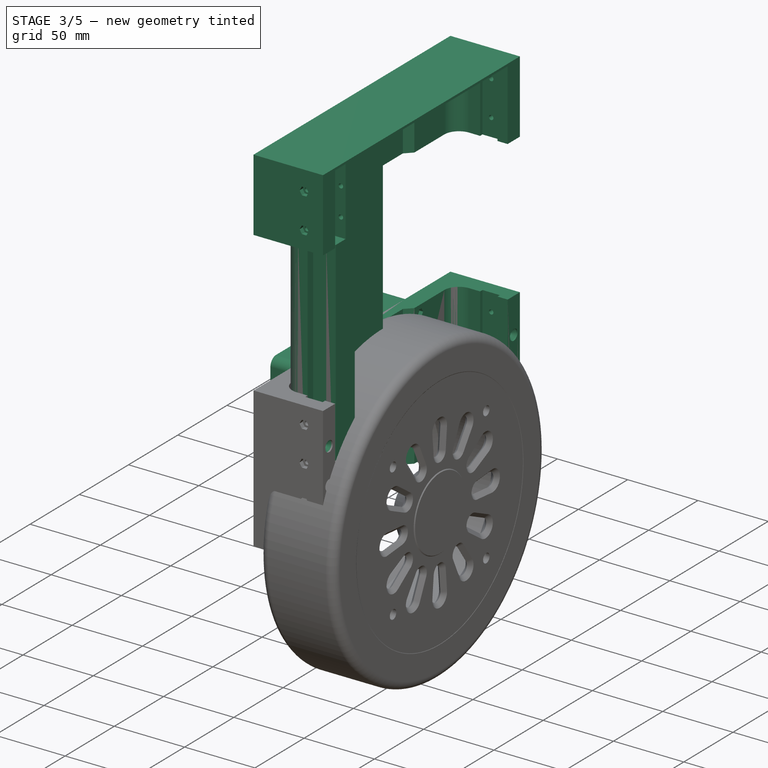
[diagram: stage 3 of 5 — iso view after this stage's code; geometry added in this stage tinted green]
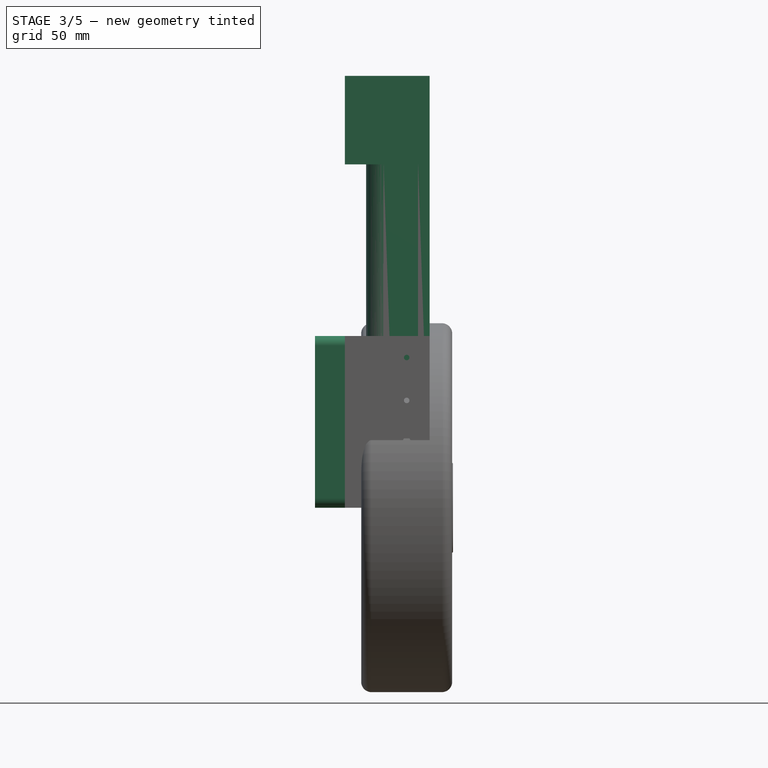
[diagram: stage 3 of 5 — front view after this stage's code; geometry added in this stage tinted green]
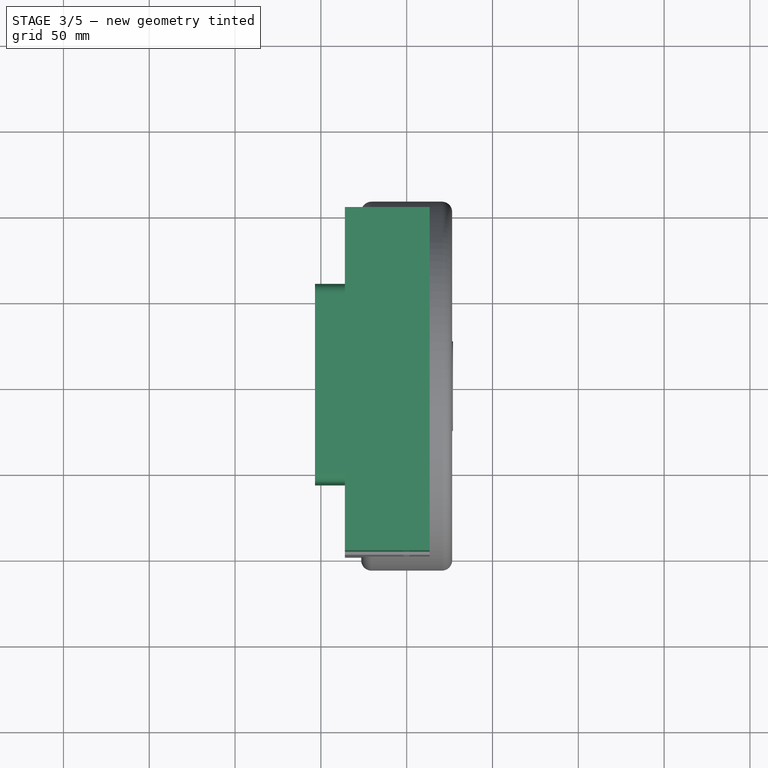
[diagram: stage 3 of 5 — top view after this stage's code; geometry added in this stage tinted green]
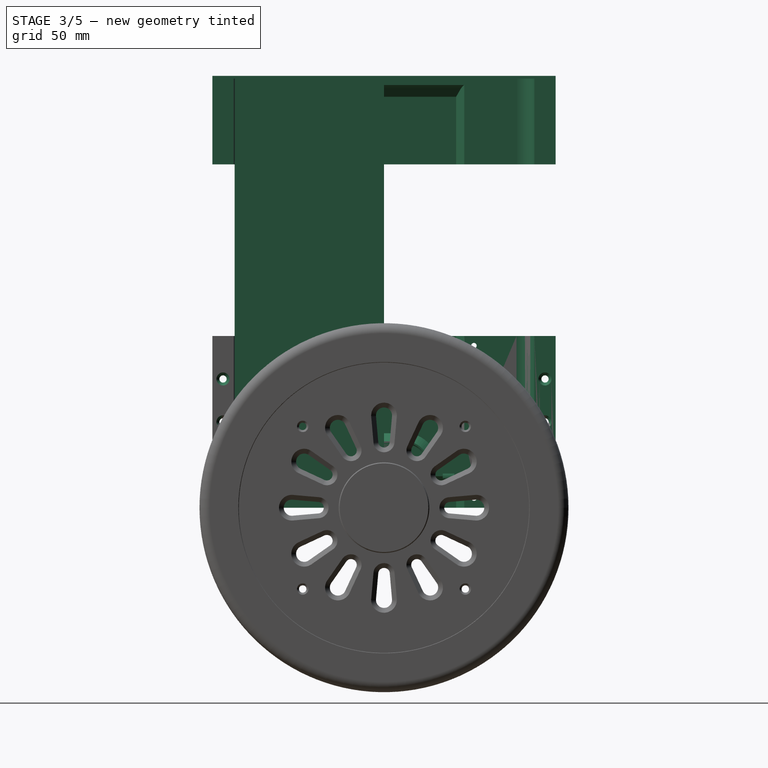
[diagram: stage 3 of 5 — right view after this stage's code; geometry added in this stage tinted green]
FEATURE [PartDesign::SubShapeBinder] Binder  label="F2_Binder000"
  BindCopyOnChange = 0
  BindMode = 0
  ClaimChildren = false
  Context = -> Part002 [Body.Binder.]
  Fuse = false
  MakeFace = true
  OffsetFill = false
  OffsetIntersection = false
  OffsetJoinType = 0
  OffsetOpenResult = false
  PartialLoad = false
  Refine = true
  Relative = true
  Support = -> [Body002[Face5,Face12],Body005[Face5,Face2]]
  _Version = 2
FEATURE [Sketcher::SketchObject] Sketch  label="F2_Sketch000"
  ArcFitTolerance = 1e-06
  AttachmentSupport = -> [XY_Plane007]
  ExternalGeometry = -> [Binder]
  FullyConstrained = true
  MakeInternals = false
  MapMode = 5
  expr: Constraints[29] = dd.G3_Width / 2
  expr: Constraints[3] = dd.F3_X - dd.F2_X
  sketch-geometry (25):
    g0: LineSegment [constr] StartX=-19.8 StartY=0 StartZ=0 EndX=-19.8 EndY=-87 EndZ=0
    g1: LineSegment [constr] StartX=13.5 StartY=-77 StartZ=0 EndX=13.4 EndY=-77 EndZ=0
    g2: LineSegment [constr] StartX=6 StartY=-70.1 StartZ=0 EndX=6.1 EndY=-70.1 EndZ=0
    g3: LineSegment [constr] StartX=-6 StartY=-70.1 StartZ=0 EndX=-6.1 EndY=-70.1 EndZ=0
    g4: LineSegment StartX=13.4 StartY=-77 StartZ=0 EndX=13.4 EndY=-67.7 EndZ=0
    g5: LineSegment StartX=13.4 StartY=-67.7 StartZ=0 EndX=6.1 EndY=-67.7 EndZ=0
    g6: LineSegment StartX=6.1 StartY=-67.7 StartZ=0 EndX=6.1 EndY=-70.1 EndZ=0
    g7: LineSegment StartX=6.1 StartY=-70.1 StartZ=0 EndX=-6.1 EndY=-70.1 EndZ=0
    g8: LineSegment StartX=-6.1 StartY=-70.1 StartZ=0 EndX=-6.1 EndY=-67.7 EndZ=0
    g9: LineSegment StartX=-6.1 StartY=-67.7 StartZ=0 EndX=-14 EndY=-67.7 EndZ=0
    g10: LineSegment StartX=-23.6 StartY=0 StartZ=0 EndX=-16 EndY=0 EndZ=0
    g11: LineSegment StartX=-16 StartY=0 StartZ=0 EndX=-14 EndY=0 EndZ=0
    g12: LineSegment StartX=-14 StartY=0 StartZ=0 EndX=-14 EndY=-67.7 EndZ=0
    g13: LineSegment StartX=-23.6 StartY=0 StartZ=0 EndX=-23.6 EndY=-76.9 EndZ=0
    g14: ArcOfCircle CenterX=-13.5 CenterY=-76.9 CenterZ=0 NormalX=0 NormalY=0 NormalZ=1 AngleXU=0 Radius=10.1 StartAngle=3.14159 EndAngle=4.71239
    g15: LineSegment StartX=-13.5 StartY=-87 StartZ=0 EndX=-6.6 EndY=-87 EndZ=0
    g16: LineSegment StartX=-6.6 StartY=-87 StartZ=0 EndX=-6.6 EndY=-81.4 EndZ=0
    g17: LineSegment StartX=-6.6 StartY=-81.4 StartZ=0 EndX=6.6 EndY=-81.4 EndZ=0
    g18: LineSegment StartX=6.6 StartY=-81.4 StartZ=0 EndX=6.6 EndY=-87 EndZ=0
    g19: LineSegment StartX=6.6 StartY=-87 StartZ=0 EndX=13.4 EndY=-87 EndZ=0
    g20: LineSegment StartX=13.4 StartY=-87 StartZ=0 EndX=13.4 EndY=-77 EndZ=0
    g21: LineSegment [constr] StartX=-6.6 StartY=-87 StartZ=0 EndX=-6 EndY=-87 EndZ=0
    g22: LineSegment [constr] StartX=-6 StartY=-82 StartZ=0 EndX=-6 EndY=-81.4 EndZ=0
    g23: LineSegment [constr] StartX=-6 StartY=-70.1 StartZ=0 EndX=-6 EndY=-70 EndZ=0
    g24: LineSegment [constr] StartX=6 StartY=-70 StartZ=0 EndX=6 EndY=-70.1 EndZ=0
  constraints (68):
    c: PointOnObject(g0,g-1)
    c: Vertical(g0)
    c: PointOnObject(g0,g-5)
    c: DistanceX(g0,g-1) = 19.8
    c: Coincident(g1,g-3)
    c: PointOnObject(g1,g-3)
    c: Horizontal(g2)
    c: Horizontal(g3)
    c: Equal(g3,g2)
    c: Equal(g2,g1)
    c: Distance(g1,g1) = 0.1
    c: Coincident(g1,g4)
    c: Vertical(g4)
    c: Coincident(g4,g5)
    c: Horizontal(g5)
    c: Coincident(g5,g6)
    c: Coincident(g6,g2)
    c: Coincident(g6,g7)
    c: Coincident(g7,g3)
    c: Coincident(g7,g8)
    c: Vertical(g8)
    c: Coincident(g8,g9)
    c: Horizontal(g9)
    c: Vertical(g6)
    c: Distance(g6,g6) = 2.4
    c: PointOnObject(g10,g-1)
    c: Symmetric(g10,g10,g0)
    c: Coincident(g11,g10)
    c: Horizontal(g11)
    c: Distance(g0,g10) = 3.8
    c: Distance(g11,g11) = 2
    c: Coincident(g12,g11)
    c: Vertical(g12)
    c: Coincident(g12,g9)
    c: Equal(g6,g8)
    c: Coincident(g13,g10)
    c: Vertical(g13)
    c: Tangent(g14,g13) = -1.5708
    c: Horizontal(g15)
    c: Coincident(g15,g16)
    c: Vertical(g16)
    c: Coincident(g16,g17)
    c: Horizontal(g17)
    c: Coincident(g17,g18)
    c: Vertical(g18)
    c: Coincident(g18,g19)
    c: Horizontal(g19)
    c: Coincident(g19,g20)
    c: Coincident(g20,g1)
    c: Vertical(g20)
    c: Symmetric(g18,g15,g-2)
    c: Tangent(g14,g15) = -1.5708
    c: Coincident(g-5,g14)
    c: Coincident(g21,g15)
    c: Coincident(g21,g-5)
    c: Coincident(g22,g-6)
    c: PointOnObject(g22,g17)
    c: Vertical(g22)
    c: Equal(g21,g22)
    c: Distance(g22,g22) = 0.6
    c: Coincident(g23,g3)
    c: Coincident(g23,g-4)
    c: Coincident(g24,g-4)
    c: Coincident(g24,g2)
    c: Vertical(g24)
    c: Equal(g24,g23)
    c: Vertical(g23)
    c: Distance(g23,g23) = 0.1
FEATURE [PartDesign::Pad] Pad  label="F2_Pad000"
  Direction = (0,0,1)
  Length = 250
  Length2 = 10
  Profile = -> Sketch
  ReferenceAxis = -> Sketch [N_Axis]
  Refine = true
  Suppressed = false
  Type = 0
  expr: Length = dd.Sh_Length
FEATURE [Sketcher::SketchObject] Sketch001  label="F2_Sketch001"
  ArcFitTolerance = 1e-06
  AttachmentSupport = -> [Binder]
  ExternalGeometry = -> [Binder,Pad]
  FullyConstrained = true
  MakeInternals = false
  MapMode = 5
  Placement = pos=(0,-77,0) rot=(0,0.707107,0.707107;3.14159rad)
  sketch-geometry (5):
    g0: LineSegment StartX=-13.4 StartY=250 StartZ=0 EndX=-13.4 EndY=201.8 EndZ=0
    g1: LineSegment StartX=-13.4 StartY=201.8 StartZ=0 EndX=14 EndY=201.8 EndZ=0
    g2: LineSegment StartX=14 StartY=201.8 StartZ=0 EndX=14 EndY=250 EndZ=0
    g3: LineSegment StartX=14 StartY=250 StartZ=0 EndX=-13.4 EndY=250 EndZ=0
    g4: LineSegment [constr] StartX=13.5 StartY=202 StartZ=0 EndX=13.5 EndY=201.8 EndZ=0
  constraints (13):
    c: Coincident(g0,g1)
    c: Coincident(g1,g2)
    c: Coincident(g2,g3)
    c: Coincident(g3,g0)
    c: Vertical(g0)
    c: Vertical(g2)
    c: Horizontal(g1)
    c: Coincident(g4,g-4)
    c: PointOnObject(g4,g1)
    c: Vertical(g4)
    c: Distance(g4,g4) = 0.2
    c: Coincident(g-6,g0)
    c: Coincident(g-5,g2)
FEATURE [PartDesign::Pocket] Pocket  label="F2_Pocket000"
  BaseFeature = -> Pad
  Direction = (0,-1,2e-16)
  Length = 5
  Length2 = 5
  Profile = -> Sketch001
  ReferenceAxis = -> Sketch001 [N_Axis]
  Refine = true
  Suppressed = false
  Type = 1
FEATURE [Sketcher::SketchObject] Sketch002  label="F2_Sketch002"
  ArcFitTolerance = 1e-06
  AttachmentSupport = -> [Pocket]
  ExternalGeometry = -> [Binder]
  FullyConstrained = true
  MakeInternals = false
  MapMode = 5
  Placement = pos=(0,-67.7,0) rot=(0,0.707107,0.707107;3.14159rad)
  sketch-geometry (4):
    g0: Circle CenterX=-10 CenterY=235 CenterZ=0 NormalX=0 NormalY=0 NormalZ=1 AngleXU=0 Radius=1.6
    g1: Circle CenterX=10 CenterY=235 CenterZ=0 NormalX=0 NormalY=0 NormalZ=1 AngleXU=0 Radius=1.6
    g2: Circle CenterX=10 CenterY=215 CenterZ=0 NormalX=0 NormalY=0 NormalZ=1 AngleXU=0 Radius=1.6
    g3: Circle CenterX=-10 CenterY=215 CenterZ=0 NormalX=0 NormalY=0 NormalZ=1 AngleXU=0 Radius=1.6
  constraints (8):
    c: Coincident(g0,g-3)
    c: Equal(g0,g-3)
    c: Coincident(g1,g-5)
    c: Equal(g1,g-5)
    c: Coincident(g2,g-6)
    c: Equal(g2,g-6)
    c: Coincident(g3,g-4)
    c: Equal(g3,g-4)
FEATURE [PartDesign::Hole] Hole  label="F2_Hole000"
  BaseFeature = -> Pocket
  CustomThreadClearance = 0
  Depth = 533.957
  DepthType = 1
  Diameter = 3.2
  DrillForDepth = false
  DrillPoint = 1
  DrillPointAngle = 118
  HoleCutCountersinkAngle = 179
  HoleCutCustomValues = false
  HoleCutDepth = 2.4
  HoleCutDiameter = 6
  HoleCutType = 3
  ModelThread = false
  Profile = -> Sketch002
  Refine = true
  Suppressed = false
  Tapered = false
  TaperedAngle = 90
  ThreadClass = 0
  ThreadDepth = 533.957
  ThreadDepthType = 0
  ThreadDirection = 0
  ThreadFit = 0
  ThreadSize = 0
  ThreadType = 0
  Threaded = false
  UseCustomThreadClearance = false
FEATURE [App::DocumentObjectGroup] GrExplode_Slice  label="F2_Exploded Slice000"
  Group = -> [Slice_child0,Slice_child1,Slice_child2,Slice_child3,Slice_child4,Slice_child5,Slice_child6,Slice_child7,Slice_child8]
FEATURE [App::Part] Part002  label="Frame2"
  Group = -> [Body002,Body005,Body007,Body,InvoluteRack001,InvoluteRack,Fusion,Slice_child3,Slice_child5,Slice_child2,Slice,Slice_child4,Slice_child0,Slice_child1,Slice_child6,Slice_child8,Slice_child7,GrExplode_Slice]
  Origin = -> Origin002
  Placement = pos=(90,0,0) rot=(0,0,1;0rad)
  expr: .Placement.Base.x = dd.F3_X
  expr: .Placement.Base.z = -dd.Pos
FEATURE [Sketcher::SketchObject] Sketch042  label="F1b_Sketch042"
  ArcFitTolerance = 1e-06
  AttachmentSupport = -> [Pocket014]
  ExternalGeometry = -> [Pocket014]
  FullyConstrained = true
  MakeInternals = false
  MapMode = 5
  Placement = pos=(13.4,0,0) rot=(0.57735,0.57735,0.57735;2.0944rad)
  sketch-geometry (8):
    g0: LineSegment [constr] StartX=-93.8 StartY=100 StartZ=0 EndX=-93.8 EndY=87.5 EndZ=0
    g1: LineSegment [constr] StartX=-93.8 StartY=87.5 StartZ=0 EndX=-93.8 EndY=75 EndZ=0
    g2: LineSegment [constr] StartX=-93.8 StartY=75 StartZ=0 EndX=-93.8 EndY=62.5 EndZ=0
    g3: LineSegment [constr] StartX=-93.8 StartY=62.5 StartZ=0 EndX=-93.8 EndY=50 EndZ=0
    g4: LineSegment [constr] StartX=-93.5 StartY=37.5 StartZ=0 EndX=-93.5 EndY=25 EndZ=0
    g5: Circle CenterX=-93.8 CenterY=75 CenterZ=0 NormalX=0 NormalY=0 NormalZ=1 AngleXU=0 Radius=2.1
    g6: Circle CenterX=-93.8 CenterY=50 CenterZ=0 NormalX=0 NormalY=0 NormalZ=1 AngleXU=0 Radius=2.1
    g7: Circle CenterX=-93.5 CenterY=25 CenterZ=0 NormalX=0 NormalY=0 NormalZ=1 AngleXU=0 Radius=2.1
  constraints (21):
    c: Symmetric(g-6,g-6,g0)
    c: PointOnObject(g0,g-3)
    c: Vertical(g0)
    c: Coincident(g1,g0)
    c: Vertical(g1)
    c: Coincident(g2,g1)
    c: PointOnObject(g2,g-4)
    c: Vertical(g2)
    c: Equal(g2,g1)
    c: Coincident(g3,g2)
    c: Vertical(g3)
    c: Symmetric(g-5,g-5,g4)
    c: Vertical(g4)
    c: Equal(g4,g3)
    c: Equal(g3,g2)
    c: Coincident(g5,g1)
    c: Coincident(g6,g3)
    c: Coincident(g7,g4)
    c: Equal(g7,g6)
    c: Equal(g6,g5)
    c: Diameter(g5) = 4.2
FEATURE [Sketcher::SketchObject] Sketch044  label="F1b_Sketch044"
  ArcFitTolerance = 1e-06
  AttachmentOffset = pos=(0,25,37.6) rot=(0,0,1;0rad)
  AttachmentSupport = -> [XZ_Plane018]
  FullyConstrained = true
  MakeInternals = false
  MapMode = 5
  Placement = pos=(0,-37.6,25) rot=(1,0,0;1.5708rad)
  expr: .AttachmentOffset.Base.z = dd.Pulley_Y
  sketch-geometry (4):
    g0: LineSegment StartX=-24.4 StartY=-6.70068 StartZ=0 EndX=-24.4 EndY=6.70068 EndZ=0
    g1: LineSegment StartX=-28 StartY=14 StartZ=0 EndX=-28 EndY=-14 EndZ=0
    g2: ArcOfCircle CenterX=-18.8 CenterY=-14 CenterZ=0 NormalX=0 NormalY=0 NormalZ=1 AngleXU=0 Radius=9.2 StartAngle=2.22521 EndAngle=3.1416
    g3: ArcOfCircle CenterX=-18.8 CenterY=14 CenterZ=0 NormalX=0 NormalY=0 NormalZ=1 AngleXU=0 Radius=9.2 StartAngle=3.14159 EndAngle=4.05797
  constraints (12):
    c: PointOnObject(g1,g-4)
    c: PointOnObject(g0,g-3)
    c: Symmetric(g1,g1,g-1)
    c: Coincident(g2,g1)
    c: Coincident(g2,g0)
    c: Coincident(g3,g1)
    c: Coincident(g3,g0)
    c: PointOnObject(g0,g-3)
    c: Symmetric(g2,g3,g-1)
    c: Radius(g2) = 9.2
    c: DistanceX(g1,g2) = 9.2
    c: DistanceY(g-3,g2) = 11
FEATURE [PartDesign::Hole] Hole010  label="F1b_Hole010"
  BaseFeature = -> Pocket014
  CustomThreadClearance = 0
  Depth = 50
  DepthType = 0
  Diameter = 4.2
  DrillForDepth = false
  DrillPoint = 0
  DrillPointAngle = 118
  HoleCutCountersinkAngle = 90
  HoleCutCustomValues = false
  HoleCutDepth = 1
  HoleCutDiameter = 7.6
  HoleCutType = 3
  ModelThread = false
  Profile = -> Sketch042
  Refine = true
  Suppressed = false
  Tapered = false
  TaperedAngle = 90
  ThreadClass = 0
  ThreadDepth = 50
  ThreadDepthType = 0
  ThreadDirection = 0
  ThreadFit = 0
  ThreadSize = 0
  ThreadType = 0
  Threaded = false
  UseCustomThreadClearance = false
FEATURE [Sketcher::SketchObject] Sketch043  label="F1b_Sketch043"
  ArcFitTolerance = 1e-06
  AttachmentSupport = -> [Hole010]
  ExternalGeometry = -> [Hole010]
  FullyConstrained = true
  MakeInternals = false
  MapMode = 5
  Placement = pos=(-36,0,0) rot=(0.57735,-0.57735,-0.57735;2.0944rad)
  sketch-geometry (21):
    g0: LineSegment StartX=91.8 StartY=78.4641 StartZ=0 EndX=89.8 EndY=75 EndZ=0
    g1: LineSegment StartX=89.8 StartY=75 StartZ=0 EndX=91.8 EndY=71.5359 EndZ=0
    g2: LineSegment StartX=91.8 StartY=71.5359 StartZ=0 EndX=95.8 EndY=71.5359 EndZ=0
    g3: LineSegment StartX=95.8 StartY=71.5359 StartZ=0 EndX=97.8 EndY=75 EndZ=0
    g4: LineSegment StartX=97.8 StartY=75 StartZ=0 EndX=95.8 EndY=78.4641 EndZ=0
    g5: LineSegment StartX=95.8 StartY=78.4641 StartZ=0 EndX=91.8 EndY=78.4641 EndZ=0
    g6: Circle [constr] CenterX=93.8 CenterY=75 CenterZ=0 NormalX=0 NormalY=0 NormalZ=1 AngleXU=0 Radius=4
    g7: LineSegment StartX=91.8 StartY=53.4641 StartZ=0 EndX=89.8 EndY=50 EndZ=0
    g8: LineSegment StartX=89.8 StartY=50 StartZ=0 EndX=91.8 EndY=46.5359 EndZ=0
    g9: LineSegment StartX=91.8 StartY=46.5359 StartZ=0 EndX=95.8 EndY=46.5359 EndZ=0
    g10: LineSegment StartX=95.8 StartY=46.5359 StartZ=0 EndX=97.8 EndY=50 EndZ=0
    g11: LineSegment StartX=97.8 StartY=50 StartZ=0 EndX=95.8 EndY=53.4641 EndZ=0
    g12: LineSegment StartX=95.8 StartY=53.4641 StartZ=0 EndX=91.8 EndY=53.4641 EndZ=0
    g13: Circle [constr] CenterX=93.8 CenterY=50 CenterZ=0 NormalX=0 NormalY=0 NormalZ=1 AngleXU=0 Radius=4
    g14: LineSegment StartX=91.5 StartY=28.4641 StartZ=0 EndX=89.5 EndY=25 EndZ=0
    g15: LineSegment StartX=89.5 StartY=25 StartZ=0 EndX=91.5 EndY=21.5359 EndZ=0
    g16: LineSegment StartX=91.5 StartY=21.5359 StartZ=0 EndX=95.5 EndY=21.5359 EndZ=0
    g17: LineSegment StartX=95.5 StartY=21.5359 StartZ=0 EndX=97.5 EndY=25 EndZ=0
    g18: LineSegment StartX=97.5 StartY=25 StartZ=0 EndX=95.5 EndY=28.4641 EndZ=0
    g19: LineSegment StartX=95.5 StartY=28.4641 StartZ=0 EndX=91.5 EndY=28.4641 EndZ=0
    g20: Circle [constr] CenterX=93.5 CenterY=25 CenterZ=0 NormalX=0 NormalY=0 NormalZ=1 AngleXU=0 Radius=4
  constraints (48):
    c: Coincident(g0,g1)
    c: Coincident(g1,g2)
    c: Coincident(g2,g3)
    c: Coincident(g3,g4)
    c: Coincident(g4,g5)
    c: Coincident(g5,g0)
    c: Equal(g0, g1-g5) x5
    c: PointOnObject(g0,g6)
    c: PointOnObject(g1,g6)
    c: PointOnObject(g2,g6)
    c: PointOnObject(g3,g6)
    c: PointOnObject(g4,g6)
    c: PointOnObject(g5,g6)
    c: Coincident(g6,g-3)
    c: Coincident(g7,g8)
    c: Coincident(g8,g9)
    c: Coincident(g9,g10)
    c: Coincident(g10,g11)
    c: Coincident(g11,g12)
    c: Coincident(g12,g7)
    c: Equal(g7, g8-g12) x5
    c: PointOnObject(g7,g13)
    c: PointOnObject(g8,g13)
    c: PointOnObject(g9,g13)
    c: PointOnObject(g10,g13)
    c: PointOnObject(g11,g13)
    c: PointOnObject(g12,g13)
    c: Coincident(g13,g-4)
    c: Coincident(g14,g15)
    c: Coincident(g15,g16)
    c: Coincident(g16,g17)
    c: Coincident(g17,g18)
    c: Coincident(g18,g19)
    c: Coincident(g19,g14)
    c: Equal(g14, g15-g19) x5
    c: PointOnObject(g14,g20)
    c: PointOnObject(g15,g20)
    c: PointOnObject(g16,g20)
    c: PointOnObject(g17,g20)
    c: PointOnObject(g18,g20)
    c: PointOnObject(g19,g20)
    c: Coincident(g20,g-5)
    c: Horizontal(g5)
    c: Horizontal(g12)
    c: Horizontal(g19)
    c: Equal(g20,g13)
    c: Equal(g13,g6)
    c: Diameter(g6) = 8
FEATURE [PartDesign::Pocket] Pocket015  label="F1b_Pocket015"
  BaseFeature = -> Hole010
  Direction = (1,0,0)
  Length = 3.6
  Length2 = 5
  Profile = -> Sketch043
  ReferenceAxis = -> Sketch043 [N_Axis]
  Refine = true
  Suppressed = false
  Type = 0
FEATURE [Sketcher::SketchObject] Sketch046  label="F1b_Sketch046"
  ArcFitTolerance = 1e-06
  AttachmentSupport = -> [Pocket015]
  ExternalGeometry = -> [Pocket015]
  FullyConstrained = true
  MakeInternals = false
  MapMode = 5
  Placement = pos=(-24.4,0,0) rot=(0.57735,0.57735,0.57735;2.0944rad)
  expr: Constraints[19] = dd.Pulley_Y
  sketch-geometry (14):
    g0: LineSegment StartX=3.6e-15 StartY=100 StartZ=0 EndX=-42 EndY=100 EndZ=0
    g1: LineSegment StartX=-42 StartY=0 StartZ=0 EndX=0 EndY=0 EndZ=0
    g2: LineSegment StartX=0 StartY=0 StartZ=0 EndX=0 EndY=6.6 EndZ=0
    g3: LineSegment StartX=0 StartY=6.6 StartZ=0 EndX=-12.5 EndY=6.6 EndZ=0
    g4: LineSegment StartX=-12.5 StartY=43.4 StartZ=0 EndX=3.6e-15 EndY=43.4 EndZ=0
    g5: LineSegment StartX=3.6e-15 StartY=43.4 StartZ=0 EndX=3.6e-15 EndY=100 EndZ=0
    g6: ArcOfCircle CenterX=-12.5 CenterY=25 CenterZ=0 NormalX=0 NormalY=0 NormalZ=1 AngleXU=0 Radius=18.4 StartAngle=1.5708 EndAngle=2.46646
    g7: LineSegment [constr] StartX=-37.6 StartY=0 StartZ=0 EndX=-37.6 EndY=100 EndZ=0
    g8: LineSegment [constr] StartX=-12.5 StartY=25 StartZ=0 EndX=-37.6 EndY=25 EndZ=0
    g9: LineSegment StartX=-42 StartY=100 StartZ=0 EndX=-42 EndY=36.5 EndZ=0
    g10: LineSegment StartX=-42 StartY=13.5 StartZ=0 EndX=-42 EndY=0 EndZ=0
    g11: LineSegment StartX=-42 StartY=36.5 StartZ=0 EndX=-26.8635 EndY=36.5 EndZ=0
    g12: LineSegment StartX=-42 StartY=13.5 StartZ=0 EndX=-26.8635 EndY=13.5 EndZ=0
    g13: ArcOfCircle CenterX=-12.5 CenterY=25 CenterZ=0 NormalX=0 NormalY=0 NormalZ=1 AngleXU=0 Radius=18.4 StartAngle=3.81672 EndAngle=4.71239
  constraints (39):
    c: Coincident(g-4,g0)
    c: PointOnObject(g0,g-4)
    c: Coincident(g0,g9)
    c: PointOnObject(g10,g-1)
    c: Coincident(g10,g1)
    c: Coincident(g1,g-1)
    c: Coincident(g1,g2)
    c: PointOnObject(g2,g-2)
    c: Coincident(g2,g3)
    c: Horizontal(g3)
    c: Horizontal(g4)
    c: Coincident(g4,g5)
    c: Coincident(g5,g0)
    c: Vertical(g5)
    c: Coincident(g6,g-3)
    c: Tangent(g6,g4) = 1.5708
    c: Coincident(g3,g13) = 1.5708
    c: PointOnObject(g7,g-1)
    c: Vertical(g7)
    c: Distance(g7,g-2) = 37.6
    c: PointOnObject(g7,g-4)
    c: Coincident(g8,g6)
    c: PointOnObject(g8,g7)
    c: Horizontal(g8)
    c: Radius(g6) = 18.4
    c: Vertical(g9)
    c: Vertical(g10)
    c: Symmetric(g10,g9,g8)
    c: Coincident(g11,g9)
    c: Horizontal(g11)
    c: Coincident(g12,g10)
    c: Horizontal(g12)
    c: Equal(g6,g13)
    c: Coincident(g6,g11)
    c: Coincident(g6,g13)
    c: Coincident(g13,g12)
    c: Tangent(g13,g3,g3) = 1.5708
    c: DistanceX(g9,g8) = 4.4
    c: DistanceY(g10,g9) = 23
FEATURE [PartDesign::Pocket] Pocket016  label="F1b_Pocket016"
  BaseFeature = -> Pocket015
  Direction = (-1,0,0)
  Length = 4.8
  Length2 = 5
  Profile = -> Sketch046
  ReferenceAxis = -> Sketch046 [N_Axis]
  Refine = true
  Suppressed = false
  Type = 0
FEATURE [PartDesign::Chamfer] Chamfer002  label="F1b_Chamfer002"
  Angle = 45
  Base = -> Pocket016 [Edge119,Edge112,Edge109,Edge111,Edge118,Edge117,Edge114]
  BaseFeature = -> Pocket016
  ChamferType = 0
  FlipDirection = false
  Refine = true
  Size = 4.79
  Size2 = 1
  SupportTransform = false
  Suppressed = false
  UseAllEdges = false
FEATURE [Sketcher::SketchObject] Sketch047  label="F1b_Sketch047"
  ArcFitTolerance = 1e-06
  AttachmentOffset = pos=(0,25,37.6) rot=(0,0,1;0rad)
  AttachmentSupport = -> [XZ_Plane018]
  ExternalGeometry = -> [Chamfer002]
  FullyConstrained = true
  MakeInternals = false
  MapMode = 5
  Placement = pos=(0,-37.6,25) rot=(1,0,0;1.5708rad)
  expr: .AttachmentOffset.Base.z = dd.Pulley_Y
  expr: Constraints[1] = dd.F3_X - dd.F2_X - 1 mm + 6.8 mm
  sketch-geometry (23):
    g0: LineSegment StartX=-25.6 StartY=-7.91 StartZ=0 EndX=-25.6 EndY=-7.6 EndZ=0
    g1: ArcOfCircle CenterX=-31.6 CenterY=-7.6 CenterZ=0 NormalX=0 NormalY=0 NormalZ=1 AngleXU=0 Radius=6 StartAngle=1e-16 EndAngle=1.5708
    g2: LineSegment StartX=-31.6 StartY=-1.6 StartZ=0 EndX=-36 EndY=-1.6 EndZ=0
    g3: ArcOfCircle [constr] CenterX=-31.6 CenterY=-7.6 CenterZ=0 NormalX=0 NormalY=0 NormalZ=1 AngleXU=0 Radius=6.8 StartAngle=0.069688 EndAngle=1.5708
    g4: ArcOfCircle [constr] CenterX=-31.6 CenterY=-7.6 CenterZ=0 NormalX=0 NormalY=0 NormalZ=1 AngleXU=0 Radius=7.6 StartAngle=0.325883 EndAngle=1.5708
    g5: LineSegment [constr] StartX=-31.6 StartY=-1.6 StartZ=0 EndX=-31.6 EndY=-0.8 EndZ=0
    g6: LineSegment StartX=-25.6 StartY=-7.91 StartZ=0 EndX=-24.4 EndY=-6.71 EndZ=0
    g7: LineSegment StartX=-24.4 StartY=-6.71 StartZ=0 EndX=-24.4 EndY=-5.16689 EndZ=0
    g8: LineSegment [constr] StartX=-24.4 StartY=-5.16689 StartZ=0 EndX=-24.4 EndY=0 EndZ=0
    g9: LineSegment StartX=-24.4 StartY=-5.16689 StartZ=0 EndX=-25.4011 EndY=-4.80479 EndZ=0
    g10: LineSegment StartX=-25.4011 StartY=-4.80479 StartZ=0 EndX=-25.4859 EndY=-4.6237 EndZ=0
    g11: LineSegment StartX=-25.4859 StartY=-4.6237 StartZ=0 EndX=-25.1238 EndY=-3.62264 EndZ=0
    g12: LineSegment StartX=-25.1238 StartY=-3.62264 StartZ=0 EndX=-25.2307 EndY=-3.4536 EndZ=0
    g13: LineSegment StartX=-25.2307 StartY=-3.4536 StartZ=0 EndX=-26.2904 EndY=-3.35169 EndZ=0
    g14: LineSegment StartX=-26.2904 StartY=-3.35169 StartZ=0 EndX=-26.4176 EndY=-3.19738 EndZ=0
    g15: LineSegment StartX=-26.4176 StartY=-3.19738 StartZ=0 EndX=-26.3157 EndY=-2.13773 EndZ=0
    g16: LineSegment StartX=-26.3157 StartY=-2.13773 StartZ=0 EndX=-26.4613 EndY=-2.00057 EndZ=0
    g17: LineSegment StartX=-26.4613 StartY=-2.00057 StartZ=0 EndX=-27.513 EndY=-2.16525 EndZ=0
    g18: LineSegment StartX=-27.513 StartY=-2.16525 StartZ=0 EndX=-27.6746 EndY=-2.04741 EndZ=0
    g19: LineSegment StartX=-27.6746 StartY=-2.04741 StartZ=0 EndX=-27.8393 EndY=-0.995684 EndZ=0
    g20: LineSegment StartX=-27.8393 StartY=-0.995684 StartZ=0 EndX=-27.8393 EndY=0 EndZ=0
    g21: LineSegment StartX=-27.8393 StartY=0 StartZ=0 EndX=-36 EndY=0 EndZ=0
    g22: LineSegment StartX=-36 StartY=0 StartZ=0 EndX=-36 EndY=-1.6 EndZ=0
  constraints (66):
    c: Vertical(g0)
    c: Distance(g0,g-2) = 25.6
    c: Tangent(g0,g1) = -1.5708
    c: PointOnObject(g2,g-4)
    c: Horizontal(g2)
    c: Tangent(g2,g1) = -1.5708
    c: Distance(g2,g-1) = 1.6
    c: Radius(g1) = 6
    c: PointOnObject(g0,g-3)
    c: Coincident(g3,g1)
    c: Coincident(g4,g1)
    c: Radius(g3) = 6.8
    c: Radius(g4) = 7.6
    c: PointOnObject(g3,g-3)
    c: Coincident(g5,g1)
    c: Coincident(g5,g3)
    c: Vertical(g5)
    c: Coincident(g6,g0)
    c: Coincident(g7,g4)
    c: Vertical(g7)
    c: Coincident(g-3,g6)
    c: Coincident(g-3,g7)
    c: PointOnObject(g4,g5)
    c: Coincident(g8,g4)
    c: PointOnObject(g8,g-1)
    c: Vertical(g8)
    c: Coincident(g9,g10)
    c: PointOnObject(g10,g3)
    c: PointOnObject(g9,g3)
    c: Coincident(g10,g11)
    c: PointOnObject(g11,g4)
    c: Coincident(g11,g12)
    c: PointOnObject(g12,g4)
    c: Angle(g9,g10) = 2.35619
    c: Equal(g9,g11)
    c: Equal(g10,g12)
    c: Coincident(g12,g13)
    c: PointOnObject(g13,g3)
    c: Coincident(g13,g14)
    c: Coincident(g14,g15)
    c: PointOnObject(g15,g4)
    c: Equal(g12,g14)
    c: Equal(g13,g11)
    c: PointOnObject(g14,g3)
    c: Equal(g15,g13)
    c: Distance(g10,g10) = 0.2
    c: Coincident(g9,g4)
    c: Coincident(g15,g16)
    c: Coincident(g16,g17)
    c: PointOnObject(g17,g3)
    c: PointOnObject(g16,g4)
    c: Equal(g16,g14)
    c: Equal(g17,g15)
    c: Coincident(g17,g18)
    c: Coincident(g18,g19)
    c: PointOnObject(g19,g4)
    c: Coincident(g19,g20)
    c: PointOnObject(g20,g-1)
    c: Vertical(g20)
    c: Equal(g18,g16)
    c: PointOnObject(g18,g3)
    c: Equal(g19,g17)
    c: Coincident(g20,g21)
    c: Coincident(g21,g-4)
    c: Coincident(g21,g22)
    c: Coincident(g22,g2)
FEATURE [PartDesign::Pocket] Pocket017  label="F1b_Pocket017"
  BaseFeature = -> Chamfer002
  Direction = (0,1,-2e-16)
  Length = 6.8
  Length2 = 5
  Midplane = true
  Profile = -> Sketch047
  ReferenceAxis = -> Sketch047 [N_Axis]
  Refine = true
  Suppressed = false
  Type = 0
FEATURE [PartDesign::Mirrored] Mirrored005  label="F1b_Mirrored005"
  BaseFeature = -> Pocket017
  MirrorPlane = -> Sketch047 [H_Axis]
  Originals = -> [Pocket017]
  Refine = true
  Suppressed = false
  TransformMode = 0
FEATURE [Sketcher::SketchObject] Sketch048  label="F1b_Sketch048"
  ArcFitTolerance = 1e-06
  AttachmentSupport = -> [Mirrored005]
  ExternalGeometry = -> [Mirrored005]
  FullyConstrained = true
  MakeInternals = false
  MapMode = 5
  Placement = pos=(-36,0,0) rot=(0.57735,-0.57735,-0.57735;2.0944rad)
  sketch-geometry (4):
    g0: LineSegment [constr] StartX=34.2 StartY=25 StartZ=0 EndX=30.2 EndY=25 EndZ=0
    g1: LineSegment [constr] StartX=41 StartY=25 StartZ=0 EndX=45 EndY=25 EndZ=0
    g2: Circle CenterX=30.2 CenterY=25 CenterZ=0 NormalX=0 NormalY=0 NormalZ=1 AngleXU=0 Radius=1.6
    g3: Circle CenterX=45 CenterY=25 CenterZ=0 NormalX=0 NormalY=0 NormalZ=1 AngleXU=0 Radius=1.6
  constraints (10):
    c: Symmetric(g-3,g-3,g0)
    c: Horizontal(g0)
    c: Symmetric(g-4,g-4,g1)
    c: Horizontal(g1)
    c: Equal(g1,g0)
    c: Distance(g1,g1) = 4
    c: Coincident(g2,g0)
    c: Coincident(g3,g1)
    c: Equal(g3,g2)
    c: Diameter(g2) = 3.2
FEATURE [PartDesign::Hole] Hole011  label="F1b_Hole011"
  BaseFeature = -> Mirrored005
  CustomThreadClearance = 0
  Depth = 11.6
  DepthType = 0
  Diameter = 3.2
  DrillForDepth = false
  DrillPoint = 0
  DrillPointAngle = 118
  HoleCutCountersinkAngle = 179
  HoleCutCustomValues = false
  HoleCutDepth = 3.6
  HoleCutDiameter = 6
  HoleCutType = 3
  ModelThread = false
  Profile = -> Sketch048
  Refine = true
  Suppressed = false
  Tapered = false
  TaperedAngle = 90
  ThreadClass = 0
  ThreadDepth = 11.6
  ThreadDepthType = 0
  ThreadDirection = 0
  ThreadFit = 0
  ThreadSize = 0
  ThreadType = 0
  Threaded = false
  UseCustomThreadClearance = false
FEATURE [Sketcher::SketchObject] Sketch049  label="F1b_Sketch049"
  ArcFitTolerance = 1e-06
  AttachmentSupport = -> [Hole011]
  ExternalGeometry = -> [Hole011]
  FullyConstrained = true
  MakeInternals = false
  MapMode = 5
  Placement = pos=(-24.4,0,0) rot=(0.57735,0.57735,0.57735;2.0944rad)
  sketch-geometry (14):
    g0: LineSegment StartX=-45 StartY=21.8 StartZ=0 EndX=-42.2287 EndY=23.4 EndZ=0
    g1: LineSegment StartX=-42.2287 StartY=23.4 StartZ=0 EndX=-42.2287 EndY=26.6 EndZ=0
    g2: LineSegment StartX=-42.2287 StartY=26.6 StartZ=0 EndX=-45 EndY=28.2 EndZ=0
    g3: LineSegment StartX=-45 StartY=28.2 StartZ=0 EndX=-47.7713 EndY=26.6 EndZ=0
    g4: LineSegment StartX=-47.7713 StartY=26.6 StartZ=0 EndX=-47.7713 EndY=23.4 EndZ=0
    g5: LineSegment StartX=-47.7713 StartY=23.4 StartZ=0 EndX=-45 EndY=21.8 EndZ=0
    g6: Circle [constr] CenterX=-45 CenterY=25 CenterZ=0 NormalX=0 NormalY=0 NormalZ=1 AngleXU=0 Radius=3.2
    g7: LineSegment StartX=-30.2 StartY=21.8 StartZ=0 EndX=-27.4287 EndY=23.4 EndZ=0
    g8: LineSegment StartX=-27.4287 StartY=23.4 StartZ=0 EndX=-27.4287 EndY=26.6 EndZ=0
    g9: LineSegment StartX=-27.4287 StartY=26.6 StartZ=0 EndX=-30.2 EndY=28.2 EndZ=0
    g10: LineSegment StartX=-30.2 StartY=28.2 StartZ=0 EndX=-32.9713 EndY=26.6 EndZ=0
    g11: LineSegment StartX=-32.9713 StartY=26.6 StartZ=0 EndX=-32.9713 EndY=23.4 EndZ=0
    g12: LineSegment StartX=-32.9713 StartY=23.4 StartZ=0 EndX=-30.2 EndY=21.8 EndZ=0
    g13: Circle [constr] CenterX=-30.2 CenterY=25 CenterZ=0 NormalX=0 NormalY=0 NormalZ=1 AngleXU=0 Radius=3.2
  constraints (32):
    c: Coincident(g0,g1)
    c: Coincident(g1,g2)
    c: Coincident(g2,g3)
    c: Coincident(g3,g4)
    c: Coincident(g4,g5)
    c: Coincident(g5,g0)
    c: Equal(g0, g1-g5) x5
    c: PointOnObject(g0,g6)
    c: PointOnObject(g1,g6)
    c: PointOnObject(g2,g6)
    c: PointOnObject(g3,g6)
    c: PointOnObject(g4,g6)
    c: PointOnObject(g5,g6)
    c: Coincident(g6,g-3)
    c: Coincident(g7,g8)
    c: Coincident(g8,g9)
    c: Coincident(g9,g10)
    c: Coincident(g10,g11)
    c: Coincident(g11,g12)
    c: Coincident(g12,g7)
    c: Equal(g7, g8-g12) x5
    c: PointOnObject(g7,g13)
    c: PointOnObject(g8,g13)
    c: PointOnObject(g9,g13)
    c: PointOnObject(g10,g13)
    c: PointOnObject(g11,g13)
    c: PointOnObject(g12,g13)
    c: Coincident(g13,g-4)
    c: Vertical(g1)
    c: Vertical(g11)
    c: Equal(g6,g13)
    c: Diameter(g6) = 6.4
FEATURE [PartDesign::Pocket] Pocket018  label="F1b_Pocket018"
  BaseFeature = -> Hole011
  Direction = (-1,0,0)
  Length = 2.2
  Length2 = 5
  Profile = -> Sketch049
  ReferenceAxis = -> Sketch049 [N_Axis]
  Refine = true
  Suppressed = false
  Type = 0
FEATURE [Sketcher::SketchObject] Sketch050  label="F1b_Sketch050"
  ArcFitTolerance = 1e-06
  AttachmentSupport = -> [Pocket018]
  ExternalGeometry = -> [Pocket018]
  FullyConstrained = true
  MakeInternals = false
  MapMode = 5
  Placement = pos=(-36,0,0) rot=(0.57735,-0.57735,-0.57735;2.0944rad)
  sketch-geometry (16):
    g0: LineSegment StartX=42.79 StartY=98.4 StartZ=0 EndX=0 EndY=98.4 EndZ=0
    g1: LineSegment StartX=0 StartY=98.4 StartZ=0 EndX=0 EndY=100 EndZ=0
    g2: LineSegment StartX=0 StartY=100 StartZ=0 EndX=52.39 EndY=100 EndZ=0
    g3: LineSegment StartX=57.99 StartY=94.4 StartZ=0 EndX=57.99 EndY=5.6 EndZ=0
    g4: LineSegment StartX=52.39 StartY=0 StartZ=0 EndX=0 EndY=0 EndZ=0
    g5: LineSegment StartX=0 StartY=0 StartZ=0 EndX=0 EndY=1.6 EndZ=0
    g6: LineSegment StartX=0 StartY=1.6 StartZ=0 EndX=42.79 EndY=1.6 EndZ=0
    g7: ArcOfCircle CenterX=52.39 CenterY=5.6 CenterZ=0 NormalX=0 NormalY=0 NormalZ=1 AngleXU=0 Radius=5.6 StartAngle=4.71239 EndAngle=6.28319
    g8: ArcOfCircle CenterX=52.39 CenterY=94.4 CenterZ=0 NormalX=0 NormalY=0 NormalZ=1 AngleXU=0 Radius=5.6 StartAngle=0 EndAngle=1.5708
    g9: ArcOfCircle CenterX=52.39 CenterY=94.4 CenterZ=0 NormalX=0 NormalY=0 NormalZ=1 AngleXU=0 Radius=5.6 StartAngle=3.14159 EndAngle=4.71239
    g10: ArcOfCircle CenterX=52.39 CenterY=5.6 CenterZ=0 NormalX=0 NormalY=0 NormalZ=1 AngleXU=0 Radius=5.6 StartAngle=1.5708 EndAngle=3.14159
    g11: ArcOfCircle CenterX=42.79 CenterY=94.4 CenterZ=0 NormalX=0 NormalY=0 NormalZ=1 AngleXU=0 Radius=4 StartAngle=-1.8e-15 EndAngle=1.5708
    g12: ArcOfCircle CenterX=42.79 CenterY=5.6 CenterZ=0 NormalX=0 NormalY=0 NormalZ=1 AngleXU=0 Radius=4 StartAngle=4.71239 EndAngle=6.28319
    g13: ArcOfCircle CenterX=52.39 CenterY=15.2 CenterZ=0 NormalX=0 NormalY=0 NormalZ=1 AngleXU=0 Radius=4 StartAngle=4.71239 EndAngle=6.28319
    g14: ArcOfCircle CenterX=52.39 CenterY=84.8 CenterZ=0 NormalX=0 NormalY=0 NormalZ=1 AngleXU=0 Radius=4 StartAngle=-1.066e-13 EndAngle=1.5708
    g15: LineSegment StartX=56.39 StartY=84.8 StartZ=0 EndX=56.39 EndY=15.2 EndZ=0
  constraints (40):
    c: PointOnObject(g0,g-2)
    c: Horizontal(g0)
    c: Coincident(g0,g1)
    c: PointOnObject(g1,g-2)
    c: Coincident(g1,g2)
    c: Horizontal(g2)
    c: Vertical(g3)
    c: Coincident(g4,g-1)
    c: Coincident(g4,g5)
    c: PointOnObject(g5,g-2)
    c: Coincident(g5,g6)
    c: Horizontal(g6)
    c: Tangent(g3,g7) = 1.5708
    c: Tangent(g4,g7) = 1.5708
    c: Tangent(g2,g8) = 1.5708
    c: Tangent(g3,g8) = 1.5708
    c: PointOnObject(g-3,g2)
    c: Distance(g1,g1) = 1.6
    c: Equal(g5,g1)
    c: Coincident(g9,g8)
    c: Coincident(g10,g7)
    c: Tangent(g0,g11) = -1.5708
    c: Tangent(g9,g11) = 1.5708
    c: Equal(g9,g8)
    c: Tangent(g9,g-3) = -1.5708
    c: Vertical(g15)
    c: Tangent(g15,g14) = 1.5708
    c: Tangent(g14,g9) = 1.5708
    c: Tangent(g13,g15) = 1.5708
    c: Tangent(g13,g10) = 1.5708
    c: Tangent(g6,g12) = -1.5708
    c: Tangent(g12,g10) = 1.5708
    c: Horizontal(g4)
    c: Equal(g7,g10)
    c: Equal(g7,g8)
    c: DistanceX(g14,g3) = 1.6
    c: Equal(g12,g13)
    c: Equal(g13,g14)
    c: Equal(g14,g11)
    c: Radius(g8) = 5.6
FEATURE [PartDesign::Pad] Pad010  label="F1b_Pad010"
  BaseFeature = -> Pocket018
  Direction = (-1,0,0)
  Length = 17.4
  Length2 = 10
  Profile = -> Sketch050
  ReferenceAxis = -> Sketch050 [N_Axis]
  Refine = true
  Suppressed = false
  Type = 0
  expr: Length = dd.F1_X - dd.CG_X - 11.6 mm / 2
FEATURE [Sketcher::SketchObject] Sketch051  label="F1b_Sketch051"
  ArcFitTolerance = 1e-06
  AttachmentSupport = -> [Pad010]
  ExternalGeometry = -> [Pad010,Binder006]
  FullyConstrained = true
  MakeInternals = false
  MapMode = 5
  Placement = pos=(-53.4,0,0) rot=(0.57735,-0.57735,-0.57735;2.0944rad)
  sketch-geometry (10):
    g0: ArcOfCircle CenterX=52.39 CenterY=94.4 CenterZ=0 NormalX=0 NormalY=0 NormalZ=1 AngleXU=0 Radius=5.6 StartAngle=-9e-16 EndAngle=1.5708
    g1: ArcOfCircle CenterX=52.39 CenterY=5.6 CenterZ=0 NormalX=0 NormalY=0 NormalZ=1 AngleXU=0 Radius=5.6 StartAngle=4.71239 EndAngle=6.28319
    g2: LineSegment StartX=52.39 StartY=0 StartZ=0 EndX=-7.1e-15 EndY=0 EndZ=0
    g3: LineSegment StartX=57.99 StartY=5.6 StartZ=0 EndX=57.99 EndY=94.4 EndZ=0
    g4: LineSegment StartX=52.39 StartY=100 StartZ=0 EndX=0 EndY=100 EndZ=0
    g5: ArcOfCircle CenterX=0 CenterY=84.541 CenterZ=0 NormalX=0 NormalY=0 NormalZ=1 AngleXU=0 Radius=2.1 StartAngle=4.71239 EndAngle=7.85398
    g6: ArcOfCircle CenterX=0 CenterY=55.541 CenterZ=0 NormalX=0 NormalY=0 NormalZ=1 AngleXU=0 Radius=21.5 StartAngle=4.71239 EndAngle=7.85398
    g7: LineSegment StartX=6e-16 StartY=100 StartZ=0 EndX=6e-16 EndY=86.641 EndZ=0
    g8: LineSegment StartX=6.6e-15 StartY=82.441 StartZ=0 EndX=6.6e-15 EndY=77.041 EndZ=0
    g9: LineSegment StartX=-7.1e-15 StartY=34.041 StartZ=0 EndX=-7.1e-15 EndY=0 EndZ=0
  constraints (26):
    c: Coincident(g0,g-3)
    c: Coincident(g1,g-4)
    c: PointOnObject(g2,g-2)
    c: Vertical(g3)
    c: PointOnObject(g4,g-2)
    c: Horizontal(g4)
    c: Tangent(g0,g4) = -1.5708
    c: Tangent(g0,g3) = -1.5708
    c: Tangent(g1,g3) = -1.5708
    c: Horizontal(g2)
    c: Tangent(g2,g1) = 1.5708
    c: Equal(g-4,g1)
    c: Coincident(g5,g-5)
    c: Equal(g-5,g5)
    c: Coincident(g6,g-6)
    c: PointOnObject(g6,g-2)
    c: Equal(g-6,g6)
    c: Coincident(g7,g4)
    c: Coincident(g7,g5)
    c: Coincident(g8,g5)
    c: Coincident(g8,g6)
    c: Vertical(g8)
    c: Coincident(g9,g6)
    c: Coincident(g9,g2)
    c: Vertical(g9)
    c: Vertical(g7)
FEATURE [PartDesign::Pad] Pad011  label="F1b_Pad011"
  BaseFeature = -> Pad010
  Direction = (-1,0,0)
  Length = 3.4
  Length2 = 10
  Profile = -> Sketch051
  ReferenceAxis = -> Sketch051 [N_Axis]
  Refine = true
  Reversed = true
  Suppressed = false
  Type = 0
FEATURE [Sketcher::SketchObject] Sketch052  label="F1b_Sketch052"
  ArcFitTolerance = 1e-06
  AttachmentSupport = -> [Pad011]
  ExternalGeometry = -> [Binder006]
  FullyConstrained = true
  MakeInternals = false
  MapMode = 5
  Placement = pos=(-50,0,0) rot=(0.57735,0.57735,0.57735;2.0944rad)
  sketch-geometry (5):
    g0: Circle CenterX=-12.8258 CenterY=90.7794 CenterZ=0 NormalX=0 NormalY=0 NormalZ=1 AngleXU=0 Radius=1.6
    g1: Circle CenterX=0 CenterY=18.041 CenterZ=0 NormalX=0 NormalY=0 NormalZ=1 AngleXU=0 Radius=1.6
    g2: Circle CenterX=-24.1045 CenterY=26.8143 CenterZ=0 NormalX=0 NormalY=0 NormalZ=1 AngleXU=0 Radius=1.6
    g3: Circle CenterX=-36.9303 CenterY=49.0291 CenterZ=0 NormalX=0 NormalY=0 NormalZ=1 AngleXU=0 Radius=1.6
    g4: Circle CenterX=-32.476 CenterY=74.291 CenterZ=0 NormalX=0 NormalY=0 NormalZ=1 AngleXU=0 Radius=1.6
  constraints (10):
    c: Coincident(g0,g-3)
    c: Coincident(g1,g-4)
    c: Coincident(g2,g-5)
    c: Coincident(g3,g-6)
    c: Coincident(g4,g-7)
    c: Equal(g1,g2)
    c: Equal(g2,g3)
    c: Equal(g3,g4)
    c: Diameter(g0) = 3.2
    c: Equal(g0,g4)
FEATURE [PartDesign::Hole] Hole012  label="F1b_Hole012"
  BaseFeature = -> Pad011
  CustomThreadClearance = 0
  Depth = 318.012
  DepthType = 1
  Diameter = 3.2
  DrillForDepth = false
  DrillPoint = 1
  DrillPointAngle = 118
  HoleCutCountersinkAngle = 179
  HoleCutCustomValues = false
  HoleCutDepth = 2
  HoleCutDiameter = 6
  HoleCutType = 3
  ModelThread = false
  Profile = -> Sketch052
  Refine = true
  Suppressed = false
  Tapered = false
  TaperedAngle = 90
  ThreadClass = 0
  ThreadDepth = 318.012
  ThreadDepthType = 0
  ThreadDirection = 0
  ThreadFit = 0
  ThreadSize = 0
  ThreadType = 0
  Threaded = false
  UseCustomThreadClearance = false
FEATURE [Sketcher::SketchObject] Sketch053  label="F1b_Sketch053"
  ArcFitTolerance = 1e-06
  AttachmentSupport = -> [Hole012]
  ExternalGeometry = -> [Hole012]
  FullyConstrained = true
  MakeInternals = false
  MapMode = 5
  Placement = pos=(-53.4,0,0) rot=(0.57735,-0.57735,-0.57735;2.0944rad)
  sketch-geometry (2):
    g0: Circle CenterX=52.39 CenterY=94.4 CenterZ=0 NormalX=0 NormalY=0 NormalZ=1 AngleXU=0 Radius=1.6
    g1: Circle CenterX=52.39 CenterY=5.6 CenterZ=0 NormalX=0 NormalY=0 NormalZ=1 AngleXU=0 Radius=1.6
  constraints (4):
    c: Coincident(g0,g-3)
    c: Coincident(g1,g-4)
    c: Equal(g0,g1)
    c: Diameter(g0) = 3.2
FEATURE [PartDesign::Hole] Hole013  label="F1b_Hole013"
  BaseFeature = -> Hole012
  CustomThreadClearance = 0
  Depth = 315.936
  DepthType = 1
  Diameter = 3.2
  DrillForDepth = false
  DrillPoint = 1
  DrillPointAngle = 118
  HoleCutCountersinkAngle = 179
  HoleCutCustomValues = false
  HoleCutDepth = 3.6
  HoleCutDiameter = 6
  HoleCutType = 3
  ModelThread = false
  Profile = -> Sketch053
  Refine = true
  Suppressed = false
  Tapered = false
  TaperedAngle = 90
  ThreadClass = 0
  ThreadDepth = 315.936
  ThreadDepthType = 0
  ThreadDirection = 0
  ThreadFit = 0
  ThreadSize = 0
  ThreadType = 0
  Threaded = false
  UseCustomThreadClearance = false
FEATURE [Sketcher::SketchObject] Sketch054  label="F1b_Sketch054"
  ArcFitTolerance = 1e-06
  AttachmentSupport = -> [Hole013]
  ExternalGeometry = -> [Hole013]
  FullyConstrained = true
  MakeInternals = false
  MapMode = 5
  Placement = pos=(-24.4,0,0) rot=(0.57735,0.57735,0.57735;2.0944rad)
  sketch-geometry (14):
    g0: LineSegment StartX=-49.19 StartY=94.4 StartZ=0 EndX=-50.79 EndY=97.1713 EndZ=0
    g1: LineSegment StartX=-50.79 StartY=97.1713 StartZ=0 EndX=-53.99 EndY=97.1713 EndZ=0
    g2: LineSegment StartX=-53.99 StartY=97.1713 StartZ=0 EndX=-55.59 EndY=94.4 EndZ=0
    g3: LineSegment StartX=-55.59 StartY=94.4 StartZ=0 EndX=-53.99 EndY=91.6287 EndZ=0
    g4: LineSegment StartX=-53.99 StartY=91.6287 StartZ=0 EndX=-50.79 EndY=91.6287 EndZ=0
    g5: LineSegment StartX=-50.79 StartY=91.6287 StartZ=0 EndX=-49.19 EndY=94.4 EndZ=0
    g6: Circle [constr] CenterX=-52.39 CenterY=94.4 CenterZ=0 NormalX=0 NormalY=0 NormalZ=1 AngleXU=0 Radius=3.2
    g7: LineSegment StartX=-49.19 StartY=5.6 StartZ=0 EndX=-50.79 EndY=8.37128 EndZ=0
    g8: LineSegment StartX=-50.79 StartY=8.37128 StartZ=0 EndX=-53.99 EndY=8.37128 EndZ=0
    g9: LineSegment StartX=-53.99 StartY=8.37128 StartZ=0 EndX=-55.59 EndY=5.6 EndZ=0
    g10: LineSegment StartX=-55.59 StartY=5.6 StartZ=0 EndX=-53.99 EndY=2.82872 EndZ=0
    g11: LineSegment StartX=-53.99 StartY=2.82872 StartZ=0 EndX=-50.79 EndY=2.82872 EndZ=0
    g12: LineSegment StartX=-50.79 StartY=2.82872 StartZ=0 EndX=-49.19 EndY=5.6 EndZ=0
    g13: Circle [constr] CenterX=-52.39 CenterY=5.6 CenterZ=0 NormalX=0 NormalY=0 NormalZ=1 AngleXU=0 Radius=3.2
  constraints (32):
    c: Coincident(g0,g1)
    c: Coincident(g1,g2)
    c: Coincident(g2,g3)
    c: Coincident(g3,g4)
    c: Coincident(g4,g5)
    c: Coincident(g5,g0)
    c: Equal(g0, g1-g5) x5
    c: PointOnObject(g0,g6)
    c: PointOnObject(g1,g6)
    c: PointOnObject(g2,g6)
    c: PointOnObject(g3,g6)
    c: PointOnObject(g4,g6)
    c: PointOnObject(g5,g6)
    c: Coincident(g6,g-3)
    c: Coincident(g7,g8)
    c: Coincident(g8,g9)
    c: Coincident(g9,g10)
    c: Coincident(g10,g11)
    c: Coincident(g11,g12)
    c: Coincident(g12,g7)
    c: Equal(g7, g8-g12) x5
    c: PointOnObject(g7,g13)
    c: PointOnObject(g8,g13)
    c: PointOnObject(g9,g13)
    c: PointOnObject(g10,g13)
    c: PointOnObject(g11,g13)
    c: PointOnObject(g12,g13)
    c: Coincident(g13,g-4)
    c: Horizontal(g8)
    c: Horizontal(g1)
    c: Equal(g6,g13)
    c: Diameter(g6) = 6.4
FEATURE [PartDesign::Pocket] Pocket019  label="F1b_Pocket019"
  BaseFeature = -> Hole013
  Direction = (-1,0,0)
  Length = 2.6
  Length2 = 5
  Profile = -> Sketch054
  ReferenceAxis = -> Sketch054 [N_Axis]
  Refine = true
  Suppressed = false
  Type = 0
FEATURE [PartDesign::Mirrored] Mirrored006
  BaseFeature = -> Pocket019
  MirrorPlane = -> XZ_Plane018
  Refine = true
  Suppressed = false
  TransformMode = 1
FEATURE [PartDesign::Body] Body018  label="Frame1_bottom"
  AllowCompound = false
  Group = -> [Binder005,Binder006,Sketch039,Pad009,Hole009,Sketch040,Groove002,Sketch041,Pocket014,Sketch042,Hole010,Sketch043,Pocket015,Sketch044,Sketch046,Pocket016,Chamfer002,Sketch047,Pocket017,Mirrored005,Sketch048,Hole011,Sketch049,Pocket018,Sketch050,Pad010,Sketch051,Pad011,Sketch052,Hole012,Sketch053,Hole013,Sketch054,Pocket019,Mirrored006]
  Origin = -> Origin018
  Tip = -> Mirrored006
FEATURE [PartDesign::SubShapeBinder] Binder007  label="F1bs_Binder007_F1b"
  BindCopyOnChange = 0
  BindMode = 0
  ClaimChildren = false
  Context = -> Part001 [Body019.Binder007.]
  Fuse = false
  MakeFace = true
  OffsetFill = false
  OffsetIntersection = false
  OffsetJoinType = 0
  OffsetOpenResult = false
  PartialLoad = false
  Refine = true
  Relative = true
  Support = -> [Body018]
  _Version = 2
FEATURE [Sketcher::SketchObject] Sketch055  label="F1bs_Sketch055"
  ArcFitTolerance = 1e-06
  AttachmentSupport = -> [XY_Plane019]
  ExternalGeometry = -> [Binder007]
  FullyConstrained = true
  MakeInternals = false
  MapMode = 5
  sketch-geometry (7):
    g0: ArcOfCircle CenterX=-14 CenterY=-77.2 CenterZ=0 NormalX=0 NormalY=0 NormalZ=1 AngleXU=0 Radius=10.4 StartAngle=3.14159 EndAngle=4.71239
    g1: LineSegment StartX=-24.4 StartY=-77.2 StartZ=0 EndX=-24.4 EndY=0 EndZ=0
    g2: LineSegment StartX=-24.4 StartY=0 StartZ=0 EndX=-36 EndY=0 EndZ=0
    g3: LineSegment StartX=-36 StartY=0 StartZ=0 EndX=-36 EndY=-100 EndZ=0
    g4: LineSegment StartX=-36 StartY=-100 StartZ=0 EndX=13.4 EndY=-100 EndZ=0
    g5: LineSegment StartX=13.4 StartY=-100 StartZ=0 EndX=13.4 EndY=-87.6 EndZ=0
    g6: LineSegment StartX=13.4 StartY=-87.6 StartZ=0 EndX=-14 EndY=-87.6 EndZ=0
  constraints (16):
    c: Coincident(g0,g-4)
    c: Vertical(g1)
    c: Coincident(g1,g2)
    c: Horizontal(g2)
    c: Coincident(g3,g-5)
    c: Coincident(g3,g4)
    c: Coincident(g4,g-3)
    c: Coincident(g4,g5)
    c: Coincident(g5,g-3)
    c: Coincident(g5,g6)
    c: Horizontal(g6)
    c: Tangent(g0,g6) = 1.5708
    c: Tangent(g0,g1) = 1.5708
    c: Coincident(g3,g2)
    c: Vertical(g3)
    c: PointOnObject(g1,g-1)
FEATURE [PartDesign::Pad] Pad012  label="F1bs_Pad012"
  Direction = (0,0,1)
  Length = 100
  Length2 = 10
  Profile = -> Sketch055
  ReferenceAxis = -> Sketch055 [N_Axis]
  Refine = true
  Suppressed = false
  Type = 0
FEATURE [Sketcher::SketchObject] Sketch056  label="F1bs_Sketch056"
  ArcFitTolerance = 1e-06
  AttachmentOffset = pos=(0,0,37.6) rot=(0,0,1;0rad)
  AttachmentSupport = -> [XZ_Plane019]
  ExternalGeometry = -> [Binder007]
  FullyConstrained = true
  MakeInternals = false
  MapMode = 5
  Placement = pos=(0,-37.6,8.3e-15) rot=(1,0,0;1.5708rad)
  expr: .AttachmentOffset.Base.z = dd.Pulley_Y
  sketch-geometry (8):
    g0: ArcOfCircle CenterX=-31.6 CenterY=32.6 CenterZ=0 NormalX=0 NormalY=0 NormalZ=1 AngleXU=0 Radius=6 StartAngle=5.38981 EndAngle=6.28319
    g1: ArcOfCircle CenterX=-31.6 CenterY=17.4 CenterZ=0 NormalX=0 NormalY=0 NormalZ=1 AngleXU=0 Radius=6 StartAngle=0 EndAngle=0.893374
    g2: LineSegment StartX=-27.8393 StartY=22.0751 StartZ=0 EndX=-27.8393 EndY=27.9249 EndZ=0
    g3: LineSegment StartX=-25.6 StartY=32.6 StartZ=0 EndX=-25.6 EndY=32.91 EndZ=0
    g4: LineSegment StartX=-25.6 StartY=32.91 StartZ=0 EndX=-24.4 EndY=32.91 EndZ=0
    g5: LineSegment StartX=-24.4 StartY=32.91 StartZ=0 EndX=-24.4 EndY=17.09 EndZ=0
    g6: LineSegment StartX=-24.4 StartY=17.09 StartZ=0 EndX=-25.6 EndY=17.09 EndZ=0
    g7: LineSegment StartX=-25.6 StartY=17.09 StartZ=0 EndX=-25.6 EndY=17.4 EndZ=0
  constraints (20):
    c: Coincident(g0,g-3)
    c: Coincident(g1,g-4)
    c: Coincident(g2,g1)
    c: Coincident(g2,g0)
    c: Vertical(g2)
    c: Vertical(g3)
    c: Coincident(g3,g4)
    c: Horizontal(g4)
    c: Coincident(g4,g5)
    c: Vertical(g5)
    c: Coincident(g5,g6)
    c: Coincident(g6,g7)
    c: Vertical(g7)
    c: Tangent(g1,g7) = -1.5708
    c: Tangent(g0,g3) = -1.5708
    c: Coincident(g3,g-6)
    c: PointOnObject(g-7,g2)
    c: Coincident(g-5,g6)
    c: Horizontal(g6)
    c: PointOnObject(g-8,g5)
FEATURE [PartDesign::Pocket] Pocket020  label="F1bs_Pocket020"
  BaseFeature = -> Pad012
  Direction = (0,1,-2e-16)
  Length = 22.4
  Length2 = 5
  Midplane = true
  Profile = -> Sketch056
  ReferenceAxis = -> Sketch056 [N_Axis]
  Refine = true
  Suppressed = false
  Type = 0
FEATURE [PartDesign::Mirrored] Mirrored007  label="F1bs_Mirrored007"
  BaseFeature = -> Pocket020
  MirrorPlane = -> XZ_Plane019
  Refine = true
  Suppressed = false
  TransformMode = 1
FEATURE [PartDesign::Body] Body019  label="F1b_Split"
  AllowCompound = false
  Group = -> [Binder007,Sketch055,Pad012,Sketch056,Pocket020,Mirrored007]
  Origin = -> Origin019
  Tip = -> Mirrored007
FEATURE [Part::FeaturePython] Slice004  # WARN: FeaturePython — macro-defined, semantics opaque (R4)
  Base = -> Body018
  Mode = 1
  Tolerance = 0
  Tools = -> [Body019]
FEATURE [Part::FeaturePython] Slice004_child0  label="Slice004.0"  # WARN: FeaturePython — macro-defined, semantics opaque (R4)
  Base = -> Slice004
  FilterType = 1
  Invert = false
  OverrideMaxVal = 0
  WindowFrom = 80
  WindowTo = 100
  items = 0
FEATURE [Part::FeaturePython] Slice004_child1  label="Slice004.1"  # WARN: FeaturePython — macro-defined, semantics opaque (R4)
  Base = -> Slice004
  FilterType = 1
  Invert = false
  OverrideMaxVal = 0
  WindowFrom = 80
  WindowTo = 100
  items = 1
FEATURE [Part::FeaturePython] Slice004_child2  label="Slice004.2"  # WARN: FeaturePython — macro-defined, semantics opaque (R4)
  Base = -> Slice004
  FilterType = 1
  Invert = false
  OverrideMaxVal = 0
  WindowFrom = 80
  WindowTo = 100
  items = 2
FEATURE [Part::FeaturePython] Slice004_child3  label="Slice004.3"  # WARN: FeaturePython — macro-defined, semantics opaque (R4)
  Base = -> Slice004
  FilterType = 1
  Invert = false
  OverrideMaxVal = 0
  WindowFrom = 80
  WindowTo = 100
  items = 3
FEATURE [App::DocumentObjectGroup] GrExplode_Slice004  label="F1b_Exploded Slice004"
  Group = -> [Slice004_child0,Slice004_child1,Slice004_child2,Slice004_child3]
FEATURE [PartDesign::SubShapeBinder] Binder008  label="F1t_Binder008"
  BindCopyOnChange = 0
  BindMode = 0
  ClaimChildren = false
  Context = -> Part001 [Body020.Binder008.]
  Fuse = false
  MakeFace = true
  OffsetFill = false
  OffsetIntersection = false
  OffsetJoinType = 0
  OffsetOpenResult = false
  PartialLoad = false
  Refine = true
  Relative = true
  Support = -> [Body018[Mirrored006.Face377],Body003[Face2]]
  _Version = 2
FEATURE [Sketcher::SketchObject] Sketch057  label="F1t_Sketch057"
  ArcFitTolerance = 1e-06
  AttachmentOffset = pos=(0,0,250) rot=(0,0,1;0rad)
  AttachmentSupport = -> [XY_Plane020]
  ExternalGeometry = -> [Binder008]
  FullyConstrained = true
  MakeInternals = false
  MapMode = 5
  Placement = pos=(0,0,250) rot=(0,0,1;0rad)
  expr: .AttachmentOffset.Base.z = dd.Sh_Length
  sketch-geometry (13):
    g0: ArcOfCircle CenterX=-14 CenterY=-77.2 CenterZ=0 NormalX=0 NormalY=0 NormalZ=1 AngleXU=0 Radius=10.4 StartAngle=3.14159 EndAngle=4.71239
    g1: LineSegment StartX=-14 StartY=-87.6 StartZ=0 EndX=-6.2 EndY=-87.6 EndZ=0
    g2: LineSegment StartX=-6.2 StartY=-87.6 StartZ=0 EndX=-6.2 EndY=-90 EndZ=0
    g3: LineSegment StartX=-6.2 StartY=-90 StartZ=0 EndX=6.2 EndY=-90 EndZ=0
    g4: LineSegment StartX=6.2 StartY=-90 StartZ=0 EndX=6.2 EndY=-87.6 EndZ=0
    g5: LineSegment StartX=6.2 StartY=-87.6 StartZ=0 EndX=13.4 EndY=-87.6 EndZ=0
    g6: LineSegment StartX=13.4 StartY=-87.6 StartZ=0 EndX=13.4 EndY=-100 EndZ=0
    g7: LineSegment StartX=13.4 StartY=-100 StartZ=0 EndX=-36 EndY=-100 EndZ=0
    g8: LineSegment StartX=-36 StartY=-100 StartZ=0 EndX=-36 EndY=0 EndZ=0
    g9: LineSegment StartX=-36 StartY=0 StartZ=0 EndX=-29.19 EndY=0 EndZ=0
    g10: LineSegment StartX=-29.19 StartY=0 StartZ=0 EndX=-29.19 EndY=-42 EndZ=0
    g11: LineSegment StartX=-29.19 StartY=-42 StartZ=0 EndX=-24.4 EndY=-46.79 EndZ=0
    g12: LineSegment StartX=-24.4 StartY=-46.79 StartZ=0 EndX=-24.4 EndY=-77.2 EndZ=0
  constraints (28):
    c: Coincident(g0,g-5)
    c: Coincident(g1,g-4)
    c: Coincident(g1,g2)
    c: Coincident(g2,g-4)
    c: Coincident(g2,g3)
    c: Coincident(g3,g-3)
    c: Coincident(g3,g4)
    c: Coincident(g4,g-3)
    c: Coincident(g4,g5)
    c: Coincident(g5,g-8)
    c: Coincident(g5,g6)
    c: Coincident(g6,g-8)
    c: Coincident(g6,g7)
    c: Coincident(g7,g-7)
    c: Coincident(g7,g8)
    c: PointOnObject(g8,g-1)
    c: Vertical(g8)
    c: Coincident(g8,g9)
    c: PointOnObject(g9,g-1)
    c: Coincident(g9,g10)
    c: Coincident(g10,g-6)
    c: Vertical(g10)
    c: Coincident(g10,g11)
    c: Coincident(g11,g-6)
    c: Coincident(g11,g12)
    c: Vertical(g12)
    c: Tangent(g0,g12) = -1.5708
    c: Tangent(g0,g1) = -1.5708
FEATURE [PartDesign::Pad] Pad013  label="F1t_Pad013"
  Direction = (0,0,1)
  Length = 50
  Length2 = 10
  Profile = -> Sketch057
  ReferenceAxis = -> Sketch057 [N_Axis]
  Refine = true
  Reversed = true
  Suppressed = false
  Type = 0
FEATURE [Sketcher::SketchObject] Sketch058  label="F1t_Sketch058"
  ArcFitTolerance = 1e-06
  AttachmentOffset = pos=(0,0,250) rot=(0,0,1;0rad)
  AttachmentSupport = -> [XY_Plane020]
  ExternalGeometry = -> [Pad013]
  FullyConstrained = true
  MakeInternals = false
  MapMode = 5
  Placement = pos=(0,0,250) rot=(0,0,1;0rad)
  expr: .AttachmentOffset.Base.z = dd.Sh_Length
  sketch-geometry (4):
    g0: LineSegment StartX=-36 StartY=0 StartZ=0 EndX=-36 EndY=-100 EndZ=0
    g1: LineSegment StartX=-36 StartY=-100 StartZ=0 EndX=13.4 EndY=-100 EndZ=0
    g2: LineSegment StartX=13.4 StartY=-100 StartZ=0 EndX=13.4 EndY=0 EndZ=0
    g3: LineSegment StartX=13.4 StartY=0 StartZ=0 EndX=-36 EndY=0 EndZ=0
  constraints (10):
    c: Coincident(g0,g1)
    c: Coincident(g1,g2)
    c: Coincident(g2,g3)
    c: Coincident(g3,g0)
    c: Vertical(g0)
    c: Vertical(g2)
    c: Horizontal(g1)
    c: Horizontal(g3)
    c: Coincident(g0,g-3)
    c: Coincident(g1,g-4)
FEATURE [PartDesign::Pad] Pad014  label="F1t_Pad014"
  BaseFeature = -> Pad013
  Direction = (0,0,1)
  Length = 1.6
  Length2 = 10
  Profile = -> Sketch058
  ReferenceAxis = -> Sketch058 [N_Axis]
  Refine = true
  Suppressed = false
  Type = 0
FEATURE [Sketcher::SketchObject] Sketch059  label="F1t_Sketch059"
  ArcFitTolerance = 1e-06
  AttachmentSupport = -> [XZ_Plane020]
  ExternalGeometry = -> [Pad014]
  FullyConstrained = true
  MakeInternals = false
  MapMode = 5
  Placement = pos=(0,0,0) rot=(1,0,0;1.5708rad)
  expr: Constraints[0] = dd.F3_X - dd.F2_X - 1 mm
  sketch-geometry (5):
    g0: ArcOfCircle CenterX=-18.8 CenterY=239 CenterZ=0 NormalX=0 NormalY=0 NormalZ=1 AngleXU=0 Radius=9.2 StartAngle=2.22521 EndAngle=2.61799
    g1: LineSegment StartX=-24.4 StartY=250 StartZ=0 EndX=-29.19 EndY=250 EndZ=0
    g2: LineSegment StartX=-29.19 StartY=250 StartZ=0 EndX=-29.19 EndY=239.404 EndZ=0
    g3: LineSegment StartX=-29.19 StartY=239.404 StartZ=0 EndX=-26.7674 EndY=243.6 EndZ=0
    g4: LineSegment StartX=-24.4 StartY=250 StartZ=0 EndX=-24.4 EndY=246.299 EndZ=0
  constraints (13):
    c: Distance(g0,g-2) = 18.8
    c: DistanceY(g0,g-4) = 11
    c: Coincident(g1,g-4)
    c: Coincident(g1,g2)
    c: PointOnObject(g2,g-3)
    c: Coincident(g2,g3)
    c: Tangent(g3,g0) = 1.5708
    c: Radius(g0) = 9.2
    c: Angle(g3,g2) = 0.523599
    c: Coincident(g4,g1)
    c: Coincident(g4,g0)
    c: Vertical(g4)
    c: Coincident(g-5,g1)
FEATURE [PartDesign::Pad] Pad015  label="F1t_Pad015"
  BaseFeature = -> Pad014
  Direction = (0,-1,2e-16)
  Length = 48.8
  Length2 = 10
  Profile = -> Sketch059
  ReferenceAxis = -> Sketch059 [N_Axis]
  Refine = true
  Suppressed = false
  Type = 0
  expr: Length = dd.Pulley_Y + 11.2 mm
FEATURE [Sketcher::SketchObject] Sketch060  label="F1t_Sketch060"
  ArcFitTolerance = 1e-06
  AttachmentSupport = -> [Pad015]
  ExternalGeometry = -> [Binder008]
  FullyConstrained = true
  MakeInternals = false
  MapMode = 5
  Placement = pos=(0,-100,0) rot=(1,0,0;1.5708rad)
  sketch-geometry (2):
    g0: Circle CenterX=0 CenterY=237.5 CenterZ=0 NormalX=0 NormalY=0 NormalZ=1 AngleXU=0 Radius=1.6
    g1: Circle CenterX=0 CenterY=212.5 CenterZ=0 NormalX=0 NormalY=0 NormalZ=1 AngleXU=0 Radius=1.6
  constraints (4):
    c: Coincident(g0,g-3)
    c: Coincident(g1,g-4)
    c: Equal(g1,g0)
    c: Diameter(g0) = 3.2
FEATURE [PartDesign::Pocket] Pocket021  label="F1t_Pocket021"
  BaseFeature = -> Pad015
  Direction = (0,1,-2e-16)
  Length = 10
  Length2 = 5
  Profile = -> Sketch060
  ReferenceAxis = -> Sketch060 [N_Axis]
  Refine = true
  Suppressed = false
  Type = 0
FEATURE [Sketcher::SketchObject] Sketch061  label="F1t_Sketch061"
  ArcFitTolerance = 1e-06
  AttachmentSupport = -> [Pocket021]
  ExternalGeometry = -> [Binder008]
  FullyConstrained = true
  MakeInternals = false
  MapMode = 5
  Placement = pos=(0,-100,0) rot=(1,0,0;1.5708rad)
  sketch-geometry (14):
    g0: LineSegment StartX=3.2 StartY=237.5 StartZ=0 EndX=1.6 EndY=240.271 EndZ=0
    g1: LineSegment StartX=1.6 StartY=240.271 StartZ=0 EndX=-1.6 EndY=240.271 EndZ=0
    g2: LineSegment StartX=-1.6 StartY=240.271 StartZ=0 EndX=-3.2 EndY=237.5 EndZ=0
    g3: LineSegment StartX=-3.2 StartY=237.5 StartZ=0 EndX=-1.6 EndY=234.729 EndZ=0
    g4: LineSegment StartX=-1.6 StartY=234.729 StartZ=0 EndX=1.6 EndY=234.729 EndZ=0
    g5: LineSegment StartX=1.6 StartY=234.729 StartZ=0 EndX=3.2 EndY=237.5 EndZ=0
    g6: Circle [constr] CenterX=0 CenterY=237.5 CenterZ=0 NormalX=0 NormalY=0 NormalZ=1 AngleXU=0 Radius=3.2
    g7: LineSegment StartX=3.2 StartY=212.5 StartZ=0 EndX=1.6 EndY=215.271 EndZ=0
    g8: LineSegment StartX=1.6 StartY=215.271 StartZ=0 EndX=-1.6 EndY=215.271 EndZ=0
    g9: LineSegment StartX=-1.6 StartY=215.271 StartZ=0 EndX=-3.2 EndY=212.5 EndZ=0
    g10: LineSegment StartX=-3.2 StartY=212.5 StartZ=0 EndX=-1.6 EndY=209.729 EndZ=0
    g11: LineSegment StartX=-1.6 StartY=209.729 StartZ=0 EndX=1.6 EndY=209.729 EndZ=0
    g12: LineSegment StartX=1.6 StartY=209.729 StartZ=0 EndX=3.2 EndY=212.5 EndZ=0
    g13: Circle [constr] CenterX=0 CenterY=212.5 CenterZ=0 NormalX=0 NormalY=0 NormalZ=1 AngleXU=0 Radius=3.2
  constraints (32):
    c: Coincident(g0,g1)
    c: Coincident(g1,g2)
    c: Coincident(g2,g3)
    c: Coincident(g3,g4)
    c: Coincident(g4,g5)
    c: Coincident(g5,g0)
    c: Equal(g0, g1-g5) x5
    c: PointOnObject(g0,g6)
    c: PointOnObject(g1,g6)
    c: PointOnObject(g2,g6)
    c: PointOnObject(g3,g6)
    c: PointOnObject(g4,g6)
    c: PointOnObject(g5,g6)
    c: Coincident(g6,g-3)
    c: Coincident(g7,g8)
    c: Coincident(g8,g9)
    c: Coincident(g9,g10)
    c: Coincident(g10,g11)
    c: Coincident(g11,g12)
    c: Coincident(g12,g7)
    c: Equal(g7, g8-g12) x5
    c: PointOnObject(g7,g13)
    c: PointOnObject(g8,g13)
    c: PointOnObject(g9,g13)
    c: PointOnObject(g10,g13)
    c: PointOnObject(g11,g13)
    c: PointOnObject(g12,g13)
    c: Coincident(g13,g-4)
    c: Horizontal(g8)
    c: Horizontal(g4)
    c: Equal(g6,g13)
    c: Diameter(g6) = 6.4
FEATURE [PartDesign::Pocket] Pocket022  label="F1t_Pocket022"
  BaseFeature = -> Pocket021
  Direction = (0,1,-2e-16)
  Length = 3
  Length2 = 5
  Profile = -> Sketch061
  ReferenceAxis = -> Sketch061 [N_Axis]
  Refine = true
  Suppressed = false
  Type = 0
FEATURE [PartDesign::Mirrored] Mirrored008  label="F1t_Mirrored008"
  BaseFeature = -> Pocket022
  MirrorPlane = -> XZ_Plane020
  Refine = true
  Suppressed = false
  TransformMode = 1
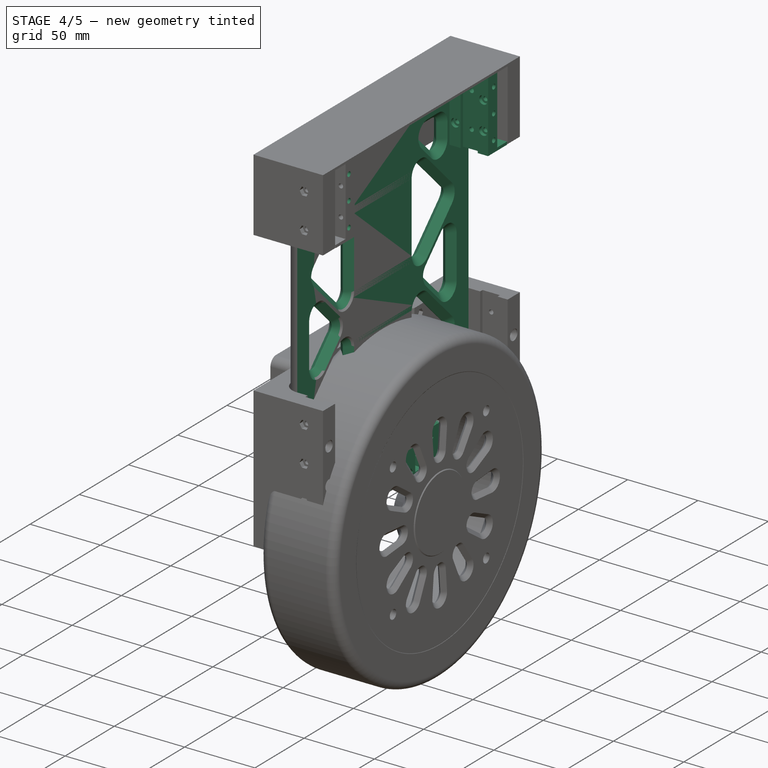
[diagram: stage 4 of 5 — iso view after this stage's code; geometry added in this stage tinted green]
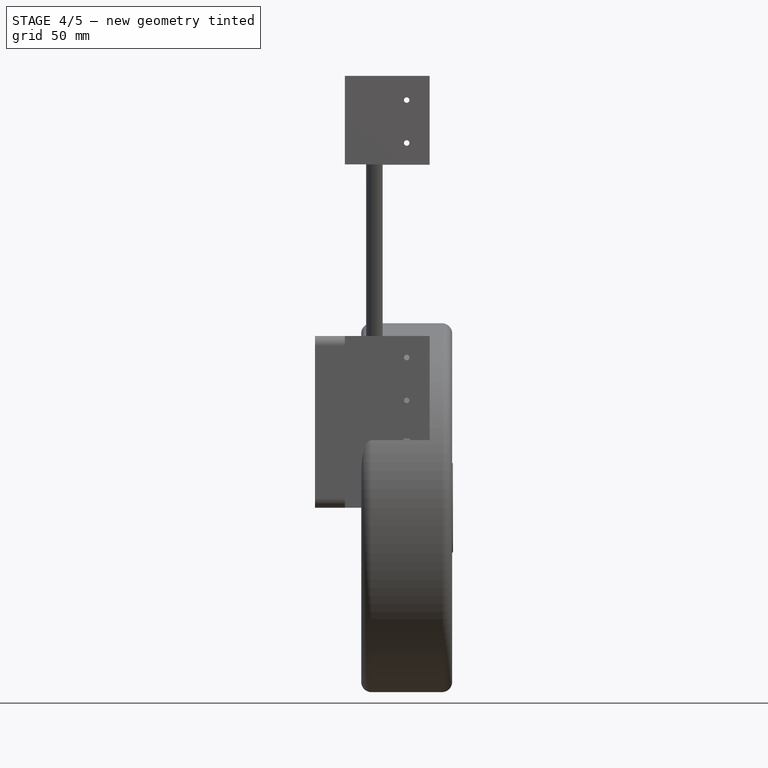
[diagram: stage 4 of 5 — front view after this stage's code; geometry added in this stage tinted green]
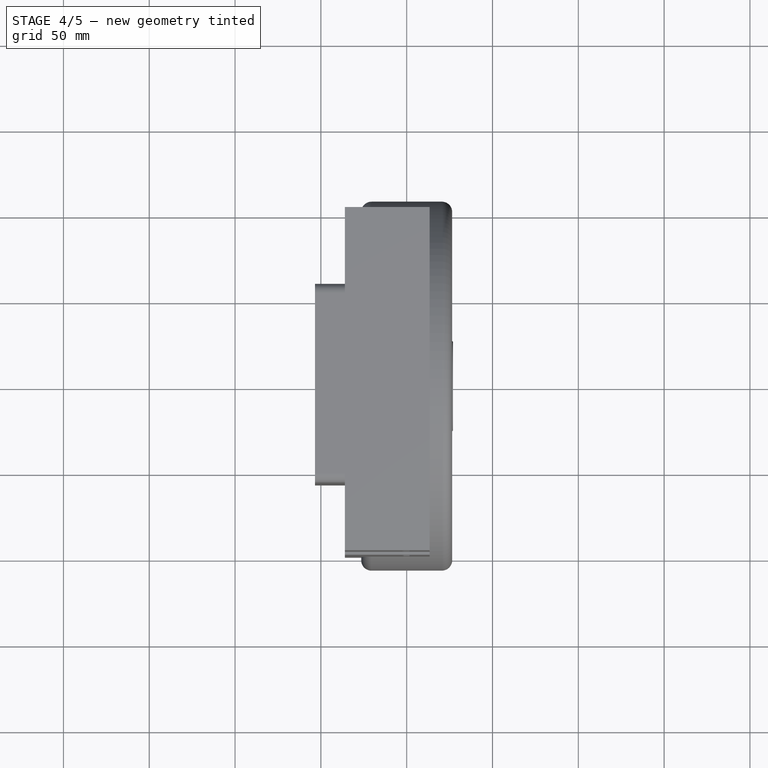
[diagram: stage 4 of 5 — top view after this stage's code; geometry added in this stage tinted green]
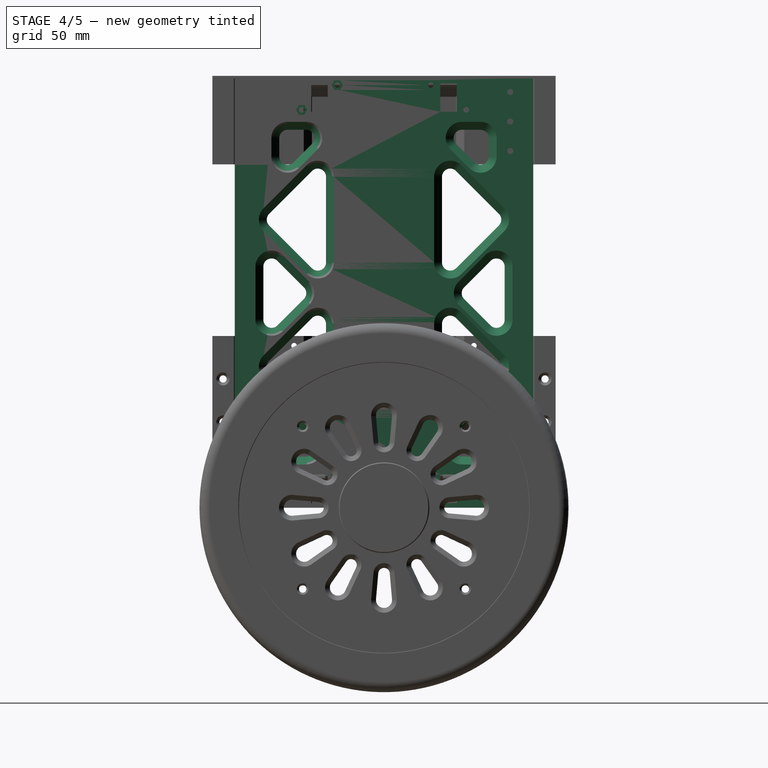
[diagram: stage 4 of 5 — right view after this stage's code; geometry added in this stage tinted green]
FEATURE [Part::FeaturePython] InvoluteRack  label="F2_InvoluteRack000"  # WARN: FeaturePython — macro-defined, semantics opaque (R4)
  AttacherType = Attacher::AttachEngine3D
  AttachmentOffset = pos=(-25,21.073,-23.6) rot=(0,1,0;0rad)
  AttachmentSupport = -> [YZ_Plane002]
  MapMode = 5
  Placement = pos=(-23.6,-25,21.073) rot=(0.57735,0.57735,0.57735;2.0944rad)
  add_endings = true
  clearance = 0.25
  double_helix = false
  head = 0
  head_fillet = 0
  height = 8
  helix_angle = 0
  module = 1.25
  num_teeth = 54
  pressure_angle = 20
  properties_from_tool = false
  root_fillet = 0
  simplified = false
  thickness = 0.8
  transverse_pitch = 3.92699
  version = 1.3.0
  expr: .AttachmentOffset.Base.x = -dd.G3_Module * dd.G3_Teeth
  expr: .AttachmentOffset.Base.y = dd.G2_Z - dd.G3_Module * pi
  expr: .AttachmentOffset.Base.z = dd.F2_X - dd.F3_X - dd.G3_Width / 2
  expr: height = dd.G3_Width + 0.4 mm
  expr: module = dd.G3_Module
  expr: num_teeth = trunc(200 mm / (dd.G3_Module * pi)) + 4
FEATURE [Part::FeaturePython] InvoluteRack001  label="F2_InvoluteRack001"  # WARN: FeaturePython — macro-defined, semantics opaque (R4)
  AttacherType = Attacher::AttachEngine3D
  AttachmentOffset = pos=(25,19.1095,-15.6) rot=(0,1,0;3.14159rad)
  AttachmentSupport = -> [YZ_Plane002]
  MapMode = 5
  Placement = pos=(-15.6,25,19.1095) rot=(-0.57735,0.57735,0.57735;4.18879rad)
  add_endings = true
  clearance = 0.25
  double_helix = false
  head = 0
  head_fillet = 0
  height = 8
  helix_angle = 0
  module = 1.25
  num_teeth = 55
  pressure_angle = 20
  properties_from_tool = false
  root_fillet = 0
  simplified = false
  thickness = 0.8
  transverse_pitch = 3.92699
  version = 1.3.0
  expr: .AttachmentOffset.Base.x = dd.G3_Module * dd.G3_Teeth
  expr: .AttachmentOffset.Base.y = dd.G2_Z - dd.G3_Module * pi * 3 / 2
  expr: .AttachmentOffset.Base.z = dd.F2_X - dd.F3_X + dd.G3_Width / 2 + 0.4 mm
  expr: height = dd.G3_Width + 0.4 mm
  expr: module = dd.G3_Module
  expr: num_teeth = trunc(200 mm / (dd.G3_Module * pi)) + 5
FEATURE [PartDesign::Hole] Hole001  label="F2_Hole001"
  BaseFeature = -> Hole
  CustomThreadClearance = 0
  Depth = 533.957
  DepthType = 1
  Diameter = 3.2
  DrillForDepth = false
  DrillPoint = 1
  DrillPointAngle = 118
  HoleCutCountersinkAngle = 90
  HoleCutCustomValues = false
  HoleCutDepth = 0
  HoleCutDiameter = 6.1
  HoleCutType = 0
  ModelThread = false
  Profile = -> Binder [Edge27,Edge28,Edge36,Edge35]
  Refine = true
  Suppressed = false
  Tapered = false
  TaperedAngle = 90
  ThreadClass = 0
  ThreadDepth = 533.957
  ThreadDepthType = 0
  ThreadDirection = 0
  ThreadFit = 0
  ThreadSize = 0
  ThreadType = 0
  Threaded = false
  UseCustomThreadClearance = false
FEATURE [Sketcher::SketchObject] Sketch003  label="F2_Sketch003"
  ArcFitTolerance = 1e-06
  AttachmentSupport = -> [Hole001]
  ExternalGeometry = -> [Hole001]
  FullyConstrained = true
  MakeInternals = false
  MapMode = 5
  Placement = pos=(0,-77,2.23e-14) rot=(1,0,0;1.5708rad)
  sketch-geometry (14):
    g0: LineSegment StartX=0 StartY=240.8 StartZ=0 EndX=-2.85788 EndY=239.15 EndZ=0
    g1: LineSegment StartX=-2.85788 StartY=239.15 StartZ=0 EndX=-2.85788 EndY=235.85 EndZ=0
    g2: LineSegment StartX=-2.85788 StartY=235.85 StartZ=0 EndX=-4e-16 EndY=234.2 EndZ=0
    g3: LineSegment StartX=-4e-16 StartY=234.2 StartZ=0 EndX=2.85788 EndY=235.85 EndZ=0
    g4: LineSegment StartX=2.85788 StartY=235.85 StartZ=0 EndX=2.85788 EndY=239.15 EndZ=0
    g5: LineSegment StartX=2.85788 StartY=239.15 StartZ=0 EndX=0 EndY=240.8 EndZ=0
    g6: Circle [constr] CenterX=0 CenterY=237.5 CenterZ=0 NormalX=0 NormalY=0 NormalZ=1 AngleXU=0 Radius=3.3
    g7: LineSegment StartX=0 StartY=215.8 StartZ=0 EndX=-2.85788 EndY=214.15 EndZ=0
    g8: LineSegment StartX=-2.85788 StartY=214.15 StartZ=0 EndX=-2.85788 EndY=210.85 EndZ=0
    g9: LineSegment StartX=-2.85788 StartY=210.85 StartZ=0 EndX=0 EndY=209.2 EndZ=0
    g10: LineSegment StartX=0 StartY=209.2 StartZ=0 EndX=2.85788 EndY=210.85 EndZ=0
    g11: LineSegment StartX=2.85788 StartY=210.85 StartZ=0 EndX=2.85788 EndY=214.15 EndZ=0
    g12: LineSegment StartX=2.85788 StartY=214.15 StartZ=0 EndX=0 EndY=215.8 EndZ=0
    g13: Circle [constr] CenterX=0 CenterY=212.5 CenterZ=0 NormalX=0 NormalY=0 NormalZ=1 AngleXU=0 Radius=3.3
  constraints (32):
    c: Coincident(g0,g1)
    c: Coincident(g1,g2)
    c: Coincident(g2,g3)
    c: Coincident(g3,g4)
    c: Coincident(g4,g5)
    c: Coincident(g5,g0)
    c: Equal(g0, g1-g5) x5
    c: PointOnObject(g0,g6)
    c: PointOnObject(g1,g6)
    c: PointOnObject(g2,g6)
    c: PointOnObject(g3,g6)
    c: PointOnObject(g4,g6)
    c: PointOnObject(g5,g6)
    c: Coincident(g6,g-4)
    c: PointOnObject(g5,g-2)
    c: Coincident(g7,g8)
    c: Coincident(g8,g9)
    c: Coincident(g9,g10)
    c: Coincident(g10,g11)
    c: Coincident(g11,g12)
    c: Coincident(g12,g7)
    c: Equal(g7, g8-g12) x5
    c: PointOnObject(g7,g13)
    c: PointOnObject(g8,g13)
    c: PointOnObject(g9,g13)
    c: PointOnObject(g10,g13)
    c: PointOnObject(g11,g13)
    c: PointOnObject(g12,g13)
    c: Coincident(g13,g-3)
    c: PointOnObject(g7,g-2)
    c: Equal(g13,g6)
    c: Diameter(g6) = 6.6
FEATURE [PartDesign::Pocket] Pocket001  label="F2_Pocket001"
  BaseFeature = -> Hole001
  Direction = (0,1,-2e-16)
  Length = 2.2
  Length2 = 5
  Profile = -> Sketch003
  ReferenceAxis = -> Sketch003 [N_Axis]
  Refine = true
  Suppressed = false
  Type = 0
FEATURE [Sketcher::SketchObject] Sketch004  label="F2_Sketch004"
  ArcFitTolerance = 1e-06
  AttachmentSupport = -> [Pocket001]
  ExternalGeometry = -> [Pocket001]
  FullyConstrained = true
  MakeInternals = false
  MapMode = 5
  Placement = pos=(0,-81.4,0) rot=(1,0,0;1.5708rad)
  sketch-geometry (14):
    g0: LineSegment StartX=0 StartY=40.8 StartZ=0 EndX=-2.85788 EndY=39.15 EndZ=0
    g1: LineSegment StartX=-2.85788 StartY=39.15 StartZ=0 EndX=-2.85788 EndY=35.85 EndZ=0
    g2: LineSegment StartX=-2.85788 StartY=35.85 StartZ=0 EndX=-6.87499e-11 EndY=34.2 EndZ=0
    g3: LineSegment StartX=-6.87499e-11 StartY=34.2 StartZ=0 EndX=2.85788 EndY=35.85 EndZ=0
    g4: LineSegment StartX=2.85788 StartY=35.85 StartZ=0 EndX=2.85788 EndY=39.15 EndZ=0
    g5: LineSegment StartX=2.85788 StartY=39.15 StartZ=0 EndX=0 EndY=40.8 EndZ=0
    g6: Circle [constr] CenterX=0 CenterY=37.5 CenterZ=0 NormalX=0 NormalY=0 NormalZ=1 AngleXU=0 Radius=3.3
    g7: LineSegment StartX=4e-16 StartY=15.8 StartZ=0 EndX=-2.85788 EndY=14.15 EndZ=0
    g8: LineSegment StartX=-2.85788 StartY=14.15 StartZ=0 EndX=-2.85788 EndY=10.85 EndZ=0
    g9: LineSegment StartX=-2.85788 StartY=10.85 StartZ=0 EndX=-6.87508e-11 EndY=9.2 EndZ=0
    g10: LineSegment StartX=-6.87508e-11 StartY=9.2 StartZ=0 EndX=2.85788 EndY=10.85 EndZ=0
    g11: LineSegment StartX=2.85788 StartY=10.85 StartZ=0 EndX=2.85788 EndY=14.15 EndZ=0
    g12: LineSegment StartX=2.85788 StartY=14.15 StartZ=0 EndX=4e-16 EndY=15.8 EndZ=0
    g13: Circle [constr] CenterX=0 CenterY=12.5 CenterZ=0 NormalX=0 NormalY=0 NormalZ=1 AngleXU=0 Radius=3.3
  constraints (32):
    c: Coincident(g0,g1)
    c: Coincident(g1,g2)
    c: Coincident(g2,g3)
    c: Coincident(g3,g4)
    c: Coincident(g4,g5)
    c: Coincident(g5,g0)
    c: Equal(g0, g1-g5) x5
    c: PointOnObject(g0,g6)
    c: PointOnObject(g1,g6)
    c: PointOnObject(g2,g6)
    c: PointOnObject(g3,g6)
    c: PointOnObject(g4,g6)
    c: PointOnObject(g5,g6)
    c: Coincident(g6,g-3)
    c: Coincident(g7,g8)
    c: Coincident(g8,g9)
    c: Coincident(g9,g10)
    c: Coincident(g10,g11)
    c: Coincident(g11,g12)
    c: Coincident(g12,g7)
    c: Equal(g7, g8-g12) x5
    c: PointOnObject(g7,g13)
    c: PointOnObject(g8,g13)
    c: PointOnObject(g9,g13)
    c: PointOnObject(g10,g13)
    c: PointOnObject(g11,g13)
    c: PointOnObject(g12,g13)
    c: Coincident(g13,g-4)
    c: PointOnObject(g7,g-2)
    c: PointOnObject(g0,g-2)
    c: Equal(g13,g6)
    c: Diameter(g6) = 6.6
FEATURE [PartDesign::Pocket] Pocket002  label="F2_Pocket002"
  BaseFeature = -> Pocket001
  Direction = (0,1,-2e-16)
  Length = 3.4
  Length2 = 5
  Profile = -> Sketch004
  ReferenceAxis = -> Sketch004 [N_Axis]
  Refine = true
  Suppressed = false
  Type = 0
FEATURE [Sketcher::SketchObject] Sketch005  label="F2_Sketch005"
  ArcFitTolerance = 1e-06
  AttachmentSupport = -> [Pocket002]
  FullyConstrained = true
  MakeInternals = false
  MapMode = 5
  Placement = pos=(-23.6,0,0) rot=(0.57735,-0.57735,-0.57735;2.0944rad)
  expr: Constraints[11] = dd.G2_Y
  expr: Constraints[12] = dd.G2_Z
  expr: Constraints[13] = dd.G3_Module * (dd.G3_Teeth + 3.5) / 2
  expr: Constraints[15] = dd.Sh_Length - 50 mm
  sketch-geometry (6):
    g0: LineSegment StartX=0 StartY=239.687 StartZ=0 EndX=0 EndY=10.3125 EndZ=0
    g1: ArcOfCircle CenterX=12.5 CenterY=25 CenterZ=0 NormalX=0 NormalY=0 NormalZ=1 AngleXU=0 Radius=14.6875 StartAngle=4.71239 EndAngle=6.28319
    g2: ArcOfCircle CenterX=12.5 CenterY=225 CenterZ=0 NormalX=0 NormalY=0 NormalZ=1 AngleXU=0 Radius=14.6875 StartAngle=5.47e-14 EndAngle=1.5708
    g3: LineSegment StartX=0 StartY=239.687 StartZ=0 EndX=12.5 EndY=239.687 EndZ=0
    g4: LineSegment StartX=0 StartY=10.3125 StartZ=0 EndX=12.5 EndY=10.3125 EndZ=0
    g5: LineSegment StartX=27.1875 StartY=225 StartZ=0 EndX=27.1875 EndY=25 EndZ=0
  constraints (16):
    c: PointOnObject(g0,g-2)
    c: Vertical(g0)
    c: Coincident(g3,g0)
    c: Horizontal(g3)
    c: Coincident(g4,g0)
    c: Horizontal(g4)
    c: Tangent(g1,g4) = -1.5708
    c: Tangent(g3,g2) = 1.5708
    c: Vertical(g5)
    c: Tangent(g1,g5) = 1.5708
    c: Tangent(g5,g2) = 1.5708
    c: DistanceX(g-1,g1) = 12.5
    c: DistanceY(g-1,g1) = 25
    c: Distance(g1,g1) = 14.6875
    c: Equal(g2,g1)
    c: DistanceY(g1,g2) = 200
FEATURE [PartDesign::Pocket] Pocket003  label="F2_Pocket003"
  BaseFeature = -> Pocket002
  Direction = (1,0,0)
  Length = 8
  Length2 = 5
  Profile = -> Sketch005
  ReferenceAxis = -> Sketch005 [N_Axis]
  Refine = true
  Suppressed = false
  Type = 0
  expr: Length = dd.G3_Width + 0.4 mm
FEATURE [Sketcher::SketchObject] Sketch006  label="F2_Sketch006"
  ArcFitTolerance = 1e-06
  AttachmentSupport = -> [Pocket003]
  ExternalGeometry = -> [Pocket003]
  FullyConstrained = true
  MakeInternals = false
  MapMode = 5
  Placement = pos=(13.4,0,0) rot=(0.57735,0.57735,0.57735;2.0944rad)
  sketch-geometry (4):
    g0: LineSegment StartX=-87 StartY=199.8 StartZ=0 EndX=-87 EndY=50 EndZ=0
    g1: LineSegment StartX=-87 StartY=50 StartZ=0 EndX=-67.7 EndY=50 EndZ=0
    g2: LineSegment StartX=-67.7 StartY=50 StartZ=0 EndX=-67.7 EndY=199.8 EndZ=0
    g3: LineSegment StartX=-67.7 StartY=199.8 StartZ=0 EndX=-87 EndY=199.8 EndZ=0
  constraints (12):
    c: Coincident(g0,g1)
    c: Coincident(g1,g2)
    c: Coincident(g2,g3)
    c: Coincident(g3,g0)
    c: Vertical(g0)
    c: Vertical(g2)
    c: Horizontal(g1)
    c: Horizontal(g3)
    c: PointOnObject(g0,g-3)
    c: PointOnObject(g1,g-4)
    c: Distance(g0,g-3) = 2
    c: Distance(g1,g-1) = 50
FEATURE [PartDesign::Pocket] Pocket004  label="F2_Pocket004"
  BaseFeature = -> Pocket003
  Direction = (-1,0,0)
  Length = 27.4
  Length2 = 5
  Profile = -> Sketch006
  ReferenceAxis = -> Sketch006 [N_Axis]
  Refine = true
  Suppressed = false
  Type = 0
FEATURE [PartDesign::Chamfer] Chamfer  label="F2_Chamfer"
  Angle = 45
  Base = -> Pocket004 [Edge59,Edge61,Edge75]
  BaseFeature = -> Pocket004
  ChamferType = 1
  FlipDirection = false
  Refine = true
  Size = 3.6
  Size2 = 1.2
  SupportTransform = false
  Suppressed = false
  UseAllEdges = false
FEATURE [Sketcher::SketchObject] Sketch007  label="F2_Sketch007"
  ArcFitTolerance = 1e-06
  AttachmentSupport = -> [Chamfer]
  ExternalGeometry = -> [Chamfer]
  FullyConstrained = true
  MakeInternals = false
  MapMode = 5
  Placement = pos=(13.4,0,0) rot=(0.57735,0.57735,0.57735;2.0944rad)
  sketch-geometry (14):
    g0: LineSegment [constr] StartX=-73.5561 StartY=215 StartZ=0 EndX=-73.5561 EndY=225 EndZ=0
    g1: LineSegment [constr] StartX=-73.5561 StartY=225 StartZ=0 EndX=-73.5561 EndY=235 EndZ=0
    g2: LineSegment [constr] StartX=-73.5561 StartY=235 StartZ=0 EndX=-73.5561 EndY=242.2 EndZ=0
    g3: LineSegment [constr] StartX=-73.5561 StartY=215 StartZ=0 EndX=-73.5561 EndY=207.8 EndZ=0
    g4: LineSegment [constr] StartX=-74.05 StartY=37.5 StartZ=0 EndX=-74.05 EndY=25 EndZ=0
    g5: LineSegment [constr] StartX=-74.05 StartY=25 StartZ=0 EndX=-74.05 EndY=12.5 EndZ=0
    g6: LineSegment [constr] StartX=-74.05 StartY=12.5 StartZ=0 EndX=-74.05 EndY=7.7 EndZ=0
    g7: LineSegment [constr] StartX=-74.05 StartY=37.5 StartZ=0 EndX=-74.05 EndY=42.3 EndZ=0
    g8: Circle CenterX=-73.5561 CenterY=242.2 CenterZ=0 NormalX=0 NormalY=0 NormalZ=1 AngleXU=0 Radius=1.6
    g9: Circle CenterX=-73.5561 CenterY=225 CenterZ=0 NormalX=0 NormalY=0 NormalZ=1 AngleXU=0 Radius=1.6
    g10: Circle CenterX=-73.5561 CenterY=207.8 CenterZ=0 NormalX=0 NormalY=0 NormalZ=1 AngleXU=0 Radius=1.6
    g11: Circle CenterX=-74.05 CenterY=42.3 CenterZ=0 NormalX=0 NormalY=0 NormalZ=1 AngleXU=0 Radius=1.6
    g12: Circle CenterX=-74.05 CenterY=25 CenterZ=0 NormalX=0 NormalY=0 NormalZ=1 AngleXU=0 Radius=1.6
    g13: Circle CenterX=-74.05 CenterY=7.7 CenterZ=0 NormalX=0 NormalY=0 NormalZ=1 AngleXU=0 Radius=1.6
  constraints (34):
    c: Symmetric(g-4,g-4,g0)
    c: Vertical(g0)
    c: Coincident(g1,g0)
    c: Symmetric(g-3,g-3,g1)
    c: Coincident(g2,g1)
    c: Vertical(g2)
    c: Coincident(g3,g0)
    c: Vertical(g3)
    c: Equal(g3,g2)
    c: Equal(g0,g1)
    c: Distance(g2,g2) = 7.2
    c: Symmetric(g-5,g-5,g4)
    c: Vertical(g4)
    c: Coincident(g5,g4)
    c: Symmetric(g-6,g-6,g5)
    c: Coincident(g6,g5)
    c: Vertical(g6)
    c: Coincident(g7,g4)
    c: Vertical(g7)
    c: Equal(g5,g4)
    c: Equal(g7,g6)
    c: Distance(g7,g7) = 4.8
    c: Coincident(g8,g2)
    c: Coincident(g9,g0)
    c: Coincident(g10,g3)
    c: Coincident(g11,g7)
    c: Coincident(g12,g4)
    c: Coincident(g13,g6)
    c: Equal(g8,g9)
    c: Equal(g9,g10)
    c: Equal(g10,g11)
    c: Equal(g11,g12)
    c: Equal(g12,g13)
    c: Diameter(g10) = 3.2
FEATURE [PartDesign::Hole] Hole002  label="F2_Hole002"
  BaseFeature = -> Chamfer
  CustomThreadClearance = 0
  Depth = 539.903
  DepthType = 1
  Diameter = 3.5
  DrillForDepth = false
  DrillPoint = 1
  DrillPointAngle = 118
  HoleCutCountersinkAngle = 179
  HoleCutCustomValues = false
  HoleCutDepth = 0
  HoleCutDiameter = 6
  HoleCutType = 0
  ModelThread = false
  Profile = -> Sketch007
  Refine = true
  Suppressed = false
  Tapered = false
  TaperedAngle = 90
  ThreadClass = 0
  ThreadDepth = 539.903
  ThreadDepthType = 0
  ThreadDirection = 0
  ThreadFit = 0
  ThreadSize = 0
  ThreadType = 0
  Threaded = false
  UseCustomThreadClearance = false
FEATURE [Sketcher::SketchObject] Sketch008  label="F2_Sketch008"
  ArcFitTolerance = 1e-06
  AttachmentSupport = -> [Hole002]
  ExternalGeometry = -> [Hole002]
  FullyConstrained = true
  MakeInternals = false
  MapMode = 5
  Placement = pos=(-23.6,0,0) rot=(0.57735,-0.57735,-0.57735;2.0944rad)
  sketch-geometry (42):
    g0: LineSegment StartX=73.5561 StartY=238.9 StartZ=0 EndX=76.414 EndY=240.55 EndZ=0
    g1: LineSegment StartX=76.414 StartY=240.55 StartZ=0 EndX=76.414 EndY=243.85 EndZ=0
    g2: LineSegment StartX=76.414 StartY=243.85 StartZ=0 EndX=73.5561 EndY=245.5 EndZ=0
    g3: LineSegment StartX=73.5561 StartY=245.5 StartZ=0 EndX=70.6982 EndY=243.85 EndZ=0
    g4: LineSegment StartX=70.6982 StartY=243.85 StartZ=0 EndX=70.6982 EndY=240.55 EndZ=0
    g5: LineSegment StartX=70.6982 StartY=240.55 StartZ=0 EndX=73.5561 EndY=238.9 EndZ=0
    g6: Circle [constr] CenterX=73.5561 CenterY=242.2 CenterZ=0 NormalX=0 NormalY=0 NormalZ=1 AngleXU=0 Radius=3.3
    g7: LineSegment StartX=73.5561 StartY=221.7 StartZ=0 EndX=76.414 EndY=223.35 EndZ=0
    g8: LineSegment StartX=76.414 StartY=223.35 StartZ=0 EndX=76.414 EndY=226.65 EndZ=0
    g9: LineSegment StartX=76.414 StartY=226.65 StartZ=0 EndX=73.5561 EndY=228.3 EndZ=0
    g10: LineSegment StartX=73.5561 StartY=228.3 StartZ=0 EndX=70.6982 EndY=226.65 EndZ=0
    g11: LineSegment StartX=70.6982 StartY=226.65 StartZ=0 EndX=70.6982 EndY=223.35 EndZ=0
    g12: LineSegment StartX=70.6982 StartY=223.35 StartZ=0 EndX=73.5561 EndY=221.7 EndZ=0
    g13: Circle [constr] CenterX=73.5561 CenterY=225 CenterZ=0 NormalX=0 NormalY=0 NormalZ=1 AngleXU=0 Radius=3.3
    g14: LineSegment StartX=73.5561 StartY=204.5 StartZ=0 EndX=76.414 EndY=206.15 EndZ=0
    g15: LineSegment StartX=76.414 StartY=206.15 StartZ=0 EndX=76.414 EndY=209.45 EndZ=0
    g16: LineSegment StartX=76.414 StartY=209.45 StartZ=0 EndX=73.5561 EndY=211.1 EndZ=0
    g17: LineSegment StartX=73.5561 StartY=211.1 StartZ=0 EndX=70.6982 EndY=209.45 EndZ=0
    g18: LineSegment StartX=70.6982 StartY=209.45 StartZ=0 EndX=70.6982 EndY=206.15 EndZ=0
    g19: LineSegment StartX=70.6982 StartY=206.15 StartZ=0 EndX=73.5561 EndY=204.5 EndZ=0
    g20: Circle [constr] CenterX=73.5561 CenterY=207.8 CenterZ=0 NormalX=0 NormalY=0 NormalZ=1 AngleXU=0 Radius=3.3
    g21: LineSegment StartX=74.05 StartY=39 StartZ=0 EndX=76.9079 EndY=40.65 EndZ=0
    g22: LineSegment StartX=76.9079 StartY=40.65 StartZ=0 EndX=76.9079 EndY=43.95 EndZ=0
    g23: LineSegment StartX=76.9079 StartY=43.95 StartZ=0 EndX=74.05 EndY=45.6 EndZ=0
    g24: LineSegment StartX=74.05 StartY=45.6 StartZ=0 EndX=71.1921 EndY=43.95 EndZ=0
    g25: LineSegment StartX=71.1921 StartY=43.95 StartZ=0 EndX=71.1921 EndY=40.65 EndZ=0
    g26: LineSegment StartX=71.1921 StartY=40.65 StartZ=0 EndX=74.05 EndY=39 EndZ=0
    g27: Circle [constr] CenterX=74.05 CenterY=42.3 CenterZ=0 NormalX=0 NormalY=0 NormalZ=1 AngleXU=0 Radius=3.3
    g28: LineSegment StartX=74.05 StartY=21.7 StartZ=0 EndX=76.9079 EndY=23.35 EndZ=0
    g29: LineSegment StartX=76.9079 StartY=23.35 StartZ=0 EndX=76.9079 EndY=26.65 EndZ=0
    g30: LineSegment StartX=76.9079 StartY=26.65 StartZ=0 EndX=74.05 EndY=28.3 EndZ=0
    g31: LineSegment StartX=74.05 StartY=28.3 StartZ=0 EndX=71.1921 EndY=26.65 EndZ=0
    g32: LineSegment StartX=71.1921 StartY=26.65 StartZ=0 EndX=71.1921 EndY=23.35 EndZ=0
    g33: LineSegment StartX=71.1921 StartY=23.35 StartZ=0 EndX=74.05 EndY=21.7 EndZ=0
    g34: Circle [constr] CenterX=74.05 CenterY=25 CenterZ=0 NormalX=0 NormalY=0 NormalZ=1 AngleXU=0 Radius=3.3
    g35: LineSegment StartX=74.05 StartY=4.4 StartZ=0 EndX=76.9079 EndY=6.05 EndZ=0
    g36: LineSegment StartX=76.9079 StartY=6.05 StartZ=0 EndX=76.9079 EndY=9.35 EndZ=0
    g37: LineSegment StartX=76.9079 StartY=9.35 StartZ=0 EndX=74.05 EndY=11 EndZ=0
    g38: LineSegment StartX=74.05 StartY=11 StartZ=0 EndX=71.1921 EndY=9.35 EndZ=0
    g39: LineSegment StartX=71.1921 StartY=9.35 StartZ=0 EndX=71.1921 EndY=6.05 EndZ=0
    g40: LineSegment StartX=71.1921 StartY=6.05 StartZ=0 EndX=74.05 EndY=4.4 EndZ=0
    g41: Circle [constr] CenterX=74.05 CenterY=7.7 CenterZ=0 NormalX=0 NormalY=0 NormalZ=1 AngleXU=0 Radius=3.3
  constraints (96):
    c: Coincident(g0,g1)
    c: Coincident(g1,g2)
    c: Coincident(g2,g3)
    c: Coincident(g3,g4)
    c: Coincident(g4,g5)
    c: Coincident(g5,g0)
    c: Equal(g0, g1-g5) x5
    c: PointOnObject(g0,g6)
    c: PointOnObject(g1,g6)
    c: PointOnObject(g2,g6)
    c: PointOnObject(g3,g6)
    c: PointOnObject(g4,g6)
    c: PointOnObject(g5,g6)
    c: Coincident(g6,g-8)
    c: Coincident(g7,g8)
    c: Coincident(g8,g9)
    c: Coincident(g9,g10)
    c: Coincident(g10,g11)
    c: Coincident(g11,g12)
    c: Coincident(g12,g7)
    c: Equal(g7, g8-g12) x5
    c: PointOnObject(g7,g13)
    c: PointOnObject(g8,g13)
    c: PointOnObject(g9,g13)
    c: PointOnObject(g10,g13)
    c: PointOnObject(g11,g13)
    c: PointOnObject(g12,g13)
    c: Coincident(g13,g-7)
    c: Coincident(g14,g15)
    c: Coincident(g15,g16)
    c: Coincident(g16,g17)
    c: Coincident(g17,g18)
    c: Coincident(g18,g19)
    c: Coincident(g19,g14)
    c: Equal(g14, g15-g19) x5
    c: PointOnObject(g14,g20)
    c: PointOnObject(g15,g20)
    c: PointOnObject(g16,g20)
    c: PointOnObject(g17,g20)
    c: PointOnObject(g18,g20)
    c: PointOnObject(g19,g20)
    c: Coincident(g20,g-6)
    c: Coincident(g21,g22)
    c: Coincident(g22,g23)
    c: Coincident(g23,g24)
    c: Coincident(g24,g25)
    c: Coincident(g25,g26)
    c: Coincident(g26,g21)
    c: Equal(g21, g22-g26) x5
    c: PointOnObject(g21,g27)
    c: PointOnObject(g22,g27)
    c: PointOnObject(g23,g27)
    c: PointOnObject(g24,g27)
    c: PointOnObject(g25,g27)
    c: PointOnObject(g26,g27)
    c: Coincident(g27,g-5)
    c: Coincident(g28,g29)
    c: Coincident(g29,g30)
    c: Coincident(g30,g31)
    c: Coincident(g31,g32)
    c: Coincident(g32,g33)
    c: Coincident(g33,g28)
    c: Equal(g28, g29-g33) x5
    c: PointOnObject(g28,g34)
    c: PointOnObject(g29,g34)
    c: PointOnObject(g30,g34)
    c: PointOnObject(g31,g34)
    c: PointOnObject(g32,g34)
    c: PointOnObject(g33,g34)
    c: Coincident(g34,g-4)
    c: Coincident(g35,g36)
    c: Coincident(g36,g37)
    c: Coincident(g37,g38)
    c: Coincident(g38,g39)
    c: Coincident(g39,g40)
    c: Coincident(g40,g35)
    c: Equal(g35, g36-g40) x5
    c: PointOnObject(g35,g41)
    c: PointOnObject(g36,g41)
    c: PointOnObject(g37,g41)
    c: PointOnObject(g38,g41)
    c: PointOnObject(g39,g41)
    c: PointOnObject(g40,g41)
    c: Coincident(g41,g-3)
    c: Equal(g41,g34)
    c: Equal(g34,g27)
    c: Equal(g27,g20)
    c: Equal(g20,g13)
    c: Equal(g13,g6)
    c: Vertical(g4)
    c: Vertical(g11)
    c: Vertical(g18)
    c: Vertical(g25)
    c: Vertical(g32)
    c: Vertical(g39)
    c: Diameter(g13) = 6.6
FEATURE [PartDesign::Pocket] Pocket005  label="F2_Pocket005"
  BaseFeature = -> Hole002
  Direction = (1,0,0)
  Length = 3.2
  Length2 = 5
  Profile = -> Sketch008
  ReferenceAxis = -> Sketch008 [N_Axis]
  Refine = true
  Suppressed = false
  Type = 0
FEATURE [Sketcher::SketchObject] Sketch009  label="F2_Sketch009"
  ArcFitTolerance = 1e-06
  AttachmentOffset = pos=(-18.8,0,11) rot=(0,0,1;0rad)
  AttachmentSupport = -> [XY_Plane007]
  FullyConstrained = true
  MakeInternals = false
  MapMode = 5
  Placement = pos=(-18.8,0,11) rot=(0,0,1;0rad)
  expr: .AttachmentOffset.Base.x = dd.F2_X - dd.F3_X + 1 mm
  expr: Constraints[2] = dd.Pulley_Y
  sketch-geometry (13):
    g0: LineSegment [constr] StartX=0 StartY=-37.6 StartZ=0 EndX=9.6 EndY=-37.6 EndZ=0
    g1: LineSegment StartX=0 StartY=-27.2 StartZ=0 EndX=2.6 EndY=-27.2 EndZ=0
    g2: LineSegment StartX=2.6 StartY=-27.2 StartZ=0 EndX=2.6 EndY=-32.2 EndZ=0
    g3: LineSegment StartX=2.6 StartY=-32.2 StartZ=0 EndX=3.8 EndY=-32.2 EndZ=0
    g4: LineSegment StartX=3.8 StartY=-32.2 StartZ=0 EndX=3.8 EndY=-32.8 EndZ=0
    g5: LineSegment StartX=3.8 StartY=-32.8 StartZ=0 EndX=9.6 EndY=-32.8 EndZ=0
    g6: LineSegment StartX=9.6 StartY=-32.8 StartZ=0 EndX=9.6 EndY=-42.4 EndZ=0
    g7: LineSegment StartX=9.6 StartY=-42.4 StartZ=0 EndX=3.8 EndY=-42.4 EndZ=0
    g8: LineSegment StartX=3.8 StartY=-42.4 StartZ=0 EndX=3.8 EndY=-43 EndZ=0
    g9: LineSegment StartX=3.8 StartY=-43 StartZ=0 EndX=2.6 EndY=-43 EndZ=0
    g10: LineSegment StartX=2.6 StartY=-43 StartZ=0 EndX=2.6 EndY=-48 EndZ=0
    g11: LineSegment StartX=2.6 StartY=-48 StartZ=0 EndX=0 EndY=-48 EndZ=0
    g12: LineSegment StartX=0 StartY=-48 StartZ=0 EndX=0 EndY=-27.2 EndZ=0
  constraints (37):
    c: PointOnObject(g0,g-2)
    c: Horizontal(g0)
    c: Distance(g0,g-1) = 37.6
    c: PointOnObject(g1,g-2)
    c: Horizontal(g1)
    c: Coincident(g1,g2)
    c: Vertical(g2)
    c: Coincident(g2,g3)
    c: Horizontal(g3)
    c: Coincident(g3,g4)
    c: Vertical(g4)
    c: Coincident(g4,g5)
    c: Horizontal(g5)
    c: Coincident(g5,g6)
    c: Vertical(g6)
    c: Coincident(g6,g7)
    c: Horizontal(g7)
    c: Coincident(g7,g8)
    c: Coincident(g8,g9)
    c: Horizontal(g9)
    c: Coincident(g9,g10)
    c: Vertical(g10)
    c: Coincident(g10,g11)
    c: PointOnObject(g11,g-2)
    c: Coincident(g11,g12)
    c: Coincident(g12,g1)
    c: Distance(g5,g-2) = 9.6
    c: Distance(g1,g-2) = 2.6
    c: Distance(g3,g3) = 1.2
    c: Horizontal(g11)
    c: Vertical(g8)
    c: DistanceY(g12,g12) = 20.8
    c: Symmetric(g10,g1,g0)
    c: DistanceY(g6,g6) = 9.6
    c: Distance(g8,g8) = 0.6
    c: Symmetric(g3,g8,g0)
    c: Symmetric(g5,g6,g0)
FEATURE [PartDesign::Groove] Groove  label="F2_Groove000"
  Angle = 360
  Angle2 = 60
  Axis = (0,1,0)
  Base = (-18.8,0,11)
  BaseFeature = -> Pocket005
  Profile = -> Sketch009
  ReferenceAxis = -> Sketch009 [V_Axis]
  Refine = true
  Suppressed = false
  Type = 0
FEATURE [Sketcher::SketchObject] Sketch010  label="F2_Sketch010"
  ArcFitTolerance = 1e-06
  AttachmentOffset = pos=(-18.8,0,239) rot=(0,0,1;0rad)
  AttachmentSupport = -> [XY_Plane007]
  FullyConstrained = true
  MakeInternals = false
  MapMode = 5
  Placement = pos=(-18.8,0,239) rot=(0,0,1;0rad)
  expr: .AttachmentOffset.Base.x = dd.F2_X - dd.F3_X + 1 mm
  expr: .AttachmentOffset.Base.z = dd.Sh_Length - 11 mm
  expr: Constraints[26] = Sketch009.Constraints[26]
  expr: Constraints[27] = Sketch009.Constraints[27]
  expr: Constraints[28] = Sketch009.Constraints[28]
  expr: Constraints[2] = Sketch009.Constraints[2]
  expr: Constraints[31] = Sketch009.Constraints[31]
  expr: Constraints[33] = Sketch009.Constraints[33]
  expr: Constraints[34] = Sketch009.Constraints[34]
  sketch-geometry (13):
    g0: LineSegment [constr] StartX=0 StartY=-37.6 StartZ=0 EndX=9.6 EndY=-37.6 EndZ=0
    g1: LineSegment StartX=0 StartY=-27.2 StartZ=0 EndX=2.6 EndY=-27.2 EndZ=0
    g2: LineSegment StartX=2.6 StartY=-27.2 StartZ=0 EndX=2.6 EndY=-32.2 EndZ=0
    g3: LineSegment StartX=2.6 StartY=-32.2 StartZ=0 EndX=3.8 EndY=-32.2 EndZ=0
    g4: LineSegment StartX=3.8 StartY=-32.2 StartZ=0 EndX=3.8 EndY=-32.8 EndZ=0
    g5: LineSegment StartX=3.8 StartY=-32.8 StartZ=0 EndX=9.6 EndY=-32.8 EndZ=0
    g6: LineSegment StartX=9.6 StartY=-32.8 StartZ=0 EndX=9.6 EndY=-42.4 EndZ=0
    g7: LineSegment StartX=9.6 StartY=-42.4 StartZ=0 EndX=3.8 EndY=-42.4 EndZ=0
    g8: LineSegment StartX=3.8 StartY=-42.4 StartZ=0 EndX=3.8 EndY=-43 EndZ=0
    g9: LineSegment StartX=3.8 StartY=-43 StartZ=0 EndX=2.6 EndY=-43 EndZ=0
    g10: LineSegment StartX=2.6 StartY=-43 StartZ=0 EndX=2.6 EndY=-48 EndZ=0
    g11: LineSegment StartX=2.6 StartY=-48 StartZ=0 EndX=0 EndY=-48 EndZ=0
    g12: LineSegment StartX=0 StartY=-48 StartZ=0 EndX=0 EndY=-27.2 EndZ=0
  constraints (37):
    c: PointOnObject(g0,g-2)
    c: Horizontal(g0)
    c: Distance(g0,g-1) = 37.6
    c: PointOnObject(g1,g-2)
    c: Horizontal(g1)
    c: Coincident(g1,g2)
    c: Vertical(g2)
    c: Coincident(g2,g3)
    c: Horizontal(g3)
    c: Coincident(g3,g4)
    c: Vertical(g4)
    c: Coincident(g4,g5)
    c: Horizontal(g5)
    c: Coincident(g5,g6)
    c: Vertical(g6)
    c: Coincident(g6,g7)
    c: Horizontal(g7)
    c: Coincident(g7,g8)
    c: Coincident(g8,g9)
    c: Horizontal(g9)
    c: Coincident(g9,g10)
    c: Vertical(g10)
    c: Coincident(g10,g11)
    c: PointOnObject(g11,g-2)
    c: Coincident(g11,g12)
    c: Coincident(g12,g1)
    c: Distance(g5,g-2) = 9.6
    c: Distance(g1,g-2) = 2.6
    c: Distance(g3,g3) = 1.2
    c: Horizontal(g11)
    c: Vertical(g8)
    c: DistanceY(g12,g12) = 20.8
    c: Symmetric(g10,g1,g0)
    c: DistanceY(g6,g6) = 9.6
    c: Distance(g8,g8) = 0.6
    c: Symmetric(g3,g8,g0)
    c: Symmetric(g5,g6,g0)
FEATURE [PartDesign::Groove] Groove001  label="F2_Groove001"
  Angle = 360
  Angle2 = 60
  Axis = (0,1,0)
  Base = (-18.8,0,239)
  BaseFeature = -> Groove
  Profile = -> Sketch010
  ReferenceAxis = -> Sketch010 [V_Axis]
  Refine = true
  Suppressed = false
  Type = 0
FEATURE [Sketcher::SketchObject] Sketch011  label="F2_Sketch011"
  ArcFitTolerance = 1e-06
  AttachmentSupport = -> [Groove001]
  ExternalGeometry = -> [Groove001]
  FullyConstrained = true
  MakeInternals = false
  MapMode = 5
  Placement = pos=(-23.6,0,0) rot=(0.57735,-0.57735,-0.57735;2.0944rad)
  sketch-geometry (8):
    g0: Circle CenterX=27.2 CenterY=246.2 CenterZ=0 NormalX=0 NormalY=0 NormalZ=1 AngleXU=0 Radius=1.6
    g1: Circle CenterX=48 CenterY=231.8 CenterZ=0 NormalX=0 NormalY=0 NormalZ=1 AngleXU=0 Radius=1.6
    g2: Circle CenterX=48 CenterY=18.2 CenterZ=0 NormalX=0 NormalY=0 NormalZ=1 AngleXU=0 Radius=1.6
    g3: Circle CenterX=27.2 CenterY=3.8 CenterZ=0 NormalX=0 NormalY=0 NormalZ=1 AngleXU=0 Radius=1.6
    g4: GeomPoint X=37.6 Y=239 Z=0
    g5: LineSegment [constr] StartX=48 StartY=231.8 StartZ=0 EndX=48 EndY=239 EndZ=0
    g6: GeomPoint [constr] X=37.6 Y=11 Z=0
    g7: LineSegment [constr] StartX=48 StartY=11 StartZ=0 EndX=48 EndY=18.2 EndZ=0
  constraints (16):
    c: Equal(g0,g1)
    c: Equal(g1,g2)
    c: Equal(g2,g3)
    c: Diameter(g3) = 3.2
    c: Symmetric(g-3,g-4,g4)
    c: Symmetric(g0,g1,g4)
    c: Coincident(g5,g1)
    c: Coincident(g5,g-4)
    c: Vertical(g5)
    c: DistanceY(g5,g5) = 7.2
    c: Symmetric(g-6,g-5,g6)
    c: Symmetric(g2,g3,g6)
    c: Coincident(g7,g-5)
    c: Coincident(g7,g2)
    c: Vertical(g7)
    c: Equal(g5,g7)
FEATURE [PartDesign::Hole] Hole003  label="F2_Hole003"
  BaseFeature = -> Groove001
  CustomThreadClearance = 0
  Depth = 10
  DepthType = 0
  Diameter = 3.2
  DrillForDepth = false
  DrillPoint = 1
  DrillPointAngle = 118
  HoleCutCountersinkAngle = 179
  HoleCutCustomValues = false
  HoleCutDepth = 3.4
  HoleCutDiameter = 6
  HoleCutType = 3
  ModelThread = false
  Profile = -> Sketch011
  Refine = true
  Suppressed = false
  Tapered = false
  TaperedAngle = 90
  ThreadClass = 0
  ThreadDepth = 10
  ThreadDepthType = 0
  ThreadDirection = 0
  ThreadFit = 0
  ThreadSize = 0
  ThreadType = 0
  Threaded = false
  UseCustomThreadClearance = false
FEATURE [Sketcher::SketchObject] Sketch012  label="F2_Sketch012"
  ArcFitTolerance = 1e-06
  AttachmentSupport = -> [Hole003]
  ExternalGeometry = -> [Hole003]
  FullyConstrained = true
  MakeInternals = false
  MapMode = 5
  Placement = pos=(-14,0,0) rot=(0.57735,0.57735,0.57735;2.0944rad)
  sketch-geometry (28):
    g0: LineSegment StartX=-28.85 StartY=0.942116 StartZ=0 EndX=-25.55 EndY=0.942116 EndZ=0
    g1: LineSegment StartX=-25.55 StartY=0.942116 StartZ=0 EndX=-23.9 EndY=3.8 EndZ=0
    g2: LineSegment StartX=-23.9 StartY=3.8 StartZ=0 EndX=-25.55 EndY=6.65788 EndZ=0
    g3: LineSegment StartX=-25.55 StartY=6.65788 StartZ=0 EndX=-28.85 EndY=6.65788 EndZ=0
    g4: LineSegment StartX=-28.85 StartY=6.65788 StartZ=0 EndX=-30.5 EndY=3.8 EndZ=0
    g5: LineSegment StartX=-30.5 StartY=3.8 StartZ=0 EndX=-28.85 EndY=0.942116 EndZ=0
    g6: Circle [constr] CenterX=-27.2 CenterY=3.8 CenterZ=0 NormalX=0 NormalY=0 NormalZ=1 AngleXU=0 Radius=3.3
    g7: LineSegment StartX=-51.3 StartY=18.2 StartZ=0 EndX=-49.65 EndY=15.3421 EndZ=0
    g8: LineSegment StartX=-49.65 StartY=15.3421 StartZ=0 EndX=-46.35 EndY=15.3421 EndZ=0
    g9: LineSegment StartX=-46.35 StartY=15.3421 StartZ=0 EndX=-44.7 EndY=18.2 EndZ=0
    g10: LineSegment StartX=-44.7 StartY=18.2 StartZ=0 EndX=-46.35 EndY=21.0579 EndZ=0
    g11: LineSegment StartX=-46.35 StartY=21.0579 StartZ=0 EndX=-49.65 EndY=21.0579 EndZ=0
    g12: LineSegment StartX=-49.65 StartY=21.0579 StartZ=0 EndX=-51.3 EndY=18.2 EndZ=0
    g13: Circle [constr] CenterX=-48 CenterY=18.2 CenterZ=0 NormalX=0 NormalY=0 NormalZ=1 AngleXU=0 Radius=3.3
    g14: LineSegment StartX=-23.9 StartY=246.2 StartZ=0 EndX=-25.55 EndY=249.058 EndZ=0
    g15: LineSegment StartX=-25.55 StartY=249.058 StartZ=0 EndX=-28.85 EndY=249.058 EndZ=0
    g16: LineSegment StartX=-28.85 StartY=249.058 StartZ=0 EndX=-30.5 EndY=246.2 EndZ=0
    g17: LineSegment StartX=-30.5 StartY=246.2 StartZ=0 EndX=-28.85 EndY=243.342 EndZ=0
    g18: LineSegment StartX=-28.85 StartY=243.342 StartZ=0 EndX=-25.55 EndY=243.342 EndZ=0
    g19: LineSegment StartX=-25.55 StartY=243.342 StartZ=0 EndX=-23.9 EndY=246.2 EndZ=0
    g20: Circle [constr] CenterX=-27.2 CenterY=246.2 CenterZ=0 NormalX=0 NormalY=0 NormalZ=1 AngleXU=0 Radius=3.3
    g21: LineSegment StartX=-51.3 StartY=231.8 StartZ=0 EndX=-49.65 EndY=228.942 EndZ=0
    g22: LineSegment StartX=-49.65 StartY=228.942 StartZ=0 EndX=-46.35 EndY=228.942 EndZ=0
    g23: LineSegment StartX=-46.35 StartY=228.942 StartZ=0 EndX=-44.7 EndY=231.8 EndZ=0
    g24: LineSegment StartX=-44.7 StartY=231.8 StartZ=0 EndX=-46.35 EndY=234.658 EndZ=0
    g25: LineSegment StartX=-46.35 StartY=234.658 StartZ=0 EndX=-49.65 EndY=234.658 EndZ=0
    g26: LineSegment StartX=-49.65 StartY=234.658 StartZ=0 EndX=-51.3 EndY=231.8 EndZ=0
    g27: Circle [constr] CenterX=-48 CenterY=231.8 CenterZ=0 NormalX=0 NormalY=0 NormalZ=1 AngleXU=0 Radius=3.3
  constraints (64):
    c: Coincident(g0,g1)
    c: Coincident(g1,g2)
    c: Coincident(g2,g3)
    c: Coincident(g3,g4)
    c: Coincident(g4,g5)
    c: Coincident(g5,g0)
    c: Equal(g0, g1-g5) x5
    c: PointOnObject(g0,g6)
    c: PointOnObject(g1,g6)
    c: PointOnObject(g2,g6)
    c: PointOnObject(g3,g6)
    c: PointOnObject(g4,g6)
    c: PointOnObject(g5,g6)
    c: Coincident(g6,g-5)
    c: Coincident(g7,g8)
    c: Coincident(g8,g9)
    c: Coincident(g9,g10)
    c: Coincident(g10,g11)
    c: Coincident(g11,g12)
    c: Coincident(g12,g7)
    c: Equal(g7, g8-g12) x5
    c: PointOnObject(g7,g13)
    c: PointOnObject(g8,g13)
    c: PointOnObject(g9,g13)
    c: PointOnObject(g10,g13)
    c: PointOnObject(g11,g13)
    c: PointOnObject(g12,g13)
    c: Coincident(g13,g-6)
    c: Coincident(g14,g15)
    c: Coincident(g15,g16)
    c: Coincident(g16,g17)
    c: Coincident(g17,g18)
    c: Coincident(g18,g19)
    c: Coincident(g19,g14)
    c: Equal(g14, g15-g19) x5
    c: PointOnObject(g14,g20)
    c: PointOnObject(g15,g20)
    c: PointOnObject(g16,g20)
    c: PointOnObject(g17,g20)
    c: PointOnObject(g18,g20)
    c: PointOnObject(g19,g20)
    c: Coincident(g20,g-3)
    c: Coincident(g21,g22)
    c: Coincident(g22,g23)
    c: Coincident(g23,g24)
    c: Coincident(g24,g25)
    c: Coincident(g25,g26)
    c: Coincident(g26,g21)
    c: Equal(g21, g22-g26) x5
    c: PointOnObject(g21,g27)
    c: PointOnObject(g22,g27)
    c: PointOnObject(g23,g27)
    c: PointOnObject(g24,g27)
    c: PointOnObject(g25,g27)
    c: PointOnObject(g26,g27)
    c: Coincident(g27,g-4)
    c: Equal(g20,g27)
    c: Equal(g27,g6)
    c: Equal(g6,g13)
    c: Diameter(g13) = 6.6
    c: Horizontal(g3)
    c: Horizontal(g8)
    c: Horizontal(g25)
    c: Horizontal(g15)
FEATURE [PartDesign::Pocket] Pocket006  label="F2_Pocket006"
  BaseFeature = -> Hole003
  Direction = (-1,0,0)
  Length = 2.4
  Length2 = 5
  Profile = -> Sketch012
  ReferenceAxis = -> Sketch012 [N_Axis]
  Refine = true
  Suppressed = false
  Type = 0
FEATURE [PartDesign::SubShapeBinder] Binder001  label="F2s_Binder001"
  BindCopyOnChange = 0
  BindMode = 0
  ClaimChildren = false
  Context = -> Part002 [Body007.Binder001.]
  Fuse = false
  MakeFace = true
  OffsetFill = false
  OffsetIntersection = false
  OffsetJoinType = 0
  OffsetOpenResult = false
  PartialLoad = false
  Refine = true
  Relative = true
  Support = -> [Body]
  _Version = 2
FEATURE [Sketcher::SketchObject] Sketch013  label="F2s_Sketch013"
  ArcFitTolerance = 1e-06
  AttachmentSupport = -> [Binder001]
  ExternalGeometry = -> [Binder001]
  FullyConstrained = true
  MakeInternals = false
  MapMode = 5
  Placement = pos=(-14,0,0) rot=(0.57735,0.57735,0.57735;2.0944rad)
  sketch-geometry (4):
    g0: LineSegment StartX=-86.9876 StartY=250 StartZ=0 EndX=-86.9876 EndY=0 EndZ=0
    g1: LineSegment StartX=-86.9876 StartY=0 StartZ=0 EndX=87 EndY=0 EndZ=0
    g2: LineSegment StartX=87 StartY=0 StartZ=0 EndX=87 EndY=250 EndZ=0
    g3: LineSegment StartX=87 StartY=250 StartZ=0 EndX=-86.9876 EndY=250 EndZ=0
  constraints (10):
    c: Coincident(g0,g1)
    c: Coincident(g1,g2)
    c: Coincident(g2,g3)
    c: Coincident(g3,g0)
    c: Vertical(g0)
    c: Vertical(g2)
    c: Horizontal(g1)
    c: Horizontal(g3)
    c: Coincident(g0,g-3)
    c: Coincident(g1,g-4)
FEATURE [PartDesign::Pad] Pad001  label="F2s_Pad001"
  Direction = (1,0,0)
  Length = 9.6
  Length2 = 10
  Profile = -> Sketch013
  ReferenceAxis = -> Sketch013 [N_Axis]
  Refine = true
  Reversed = true
  Suppressed = false
  Type = 0
FEATURE [Sketcher::SketchObject] Sketch014  label="F2s_Sketch014"
  ArcFitTolerance = 1e-06
  AttachmentOffset = pos=(0,125,0) rot=(0,0,1;0rad)
  AttachmentSupport = -> [Binder001]
  ExternalGeometry = -> [Binder001]
  FullyConstrained = true
  MakeInternals = false
  MapMode = 5
  Placement = pos=(-23.6,0,125) rot=(0.57735,-0.57735,-0.57735;2.0944rad)
  expr: .AttachmentOffset.Base.y = dd.Sh_Length / 2
  sketch-geometry (17):
    g0: ArcOfCircle CenterX=48 CenterY=106.8 CenterZ=0 NormalX=0 NormalY=0 NormalZ=1 AngleXU=0 Radius=5.2 StartAngle=4.71239 EndAngle=6.28319
    g1: LineSegment StartX=53.2 StartY=106.8 StartZ=0 EndX=53.2 EndY=125 EndZ=0
    g2: LineSegment StartX=53.2 StartY=125 StartZ=0 EndX=23.4 EndY=125 EndZ=0
    g3: LineSegment StartX=23.4 StartY=125 StartZ=0 EndX=23.4 EndY=114 EndZ=0
    g4: LineSegment StartX=48 StartY=101.6 StartZ=0 EndX=32.8 EndY=101.6 EndZ=0
    g5: LineSegment StartX=28.254 StartY=104.275 StartZ=0 EndX=23.8779 EndY=112.155 EndZ=0
    g6: LineSegment [constr] StartX=27.2 StartY=121.2 StartZ=0 EndX=23.4 EndY=125 EndZ=0
    g7: ArcOfCircle CenterX=27.2 CenterY=114 CenterZ=0 NormalX=0 NormalY=0 NormalZ=1 AngleXU=0 Radius=3.8 StartAngle=3.14159 EndAngle=3.64854
    g8: ArcOfCircle CenterX=32.8 CenterY=106.8 CenterZ=0 NormalX=0 NormalY=0 NormalZ=1 AngleXU=0 Radius=5.2 StartAngle=3.64854 EndAngle=4.71239
    g9: LineSegment StartX=53.2 StartY=-106.8 StartZ=0 EndX=53.2 EndY=-125 EndZ=0
    g10: LineSegment StartX=53.2 StartY=-125 StartZ=0 EndX=23.4 EndY=-125 EndZ=0
    g11: LineSegment StartX=23.4 StartY=-125 StartZ=0 EndX=23.4 EndY=-114 EndZ=0
    g12: LineSegment StartX=23.8779 StartY=-112.155 StartZ=0 EndX=28.254 EndY=-104.275 EndZ=0
    g13: LineSegment StartX=32.8 StartY=-101.6 StartZ=0 EndX=48 EndY=-101.6 EndZ=0
    g14: ArcOfCircle CenterX=32.8 CenterY=-106.8 CenterZ=0 NormalX=0 NormalY=0 NormalZ=1 AngleXU=0 Radius=5.2 StartAngle=1.5708 EndAngle=2.63464
    g15: ArcOfCircle CenterX=27.2 CenterY=-114 CenterZ=0 NormalX=0 NormalY=0 NormalZ=1 AngleXU=0 Radius=3.8 StartAngle=2.63464 EndAngle=3.14159
    g16: ArcOfCircle CenterX=48 CenterY=-106.8 CenterZ=0 NormalX=0 NormalY=0 NormalZ=1 AngleXU=0 Radius=5.2 StartAngle=-1.8e-15 EndAngle=1.5708
  constraints (37):
    c: PointOnObject(g1,g-3)
    c: Vertical(g1)
    c: Coincident(g1,g2)
    c: PointOnObject(g2,g-3)
    c: Coincident(g2,g3)
    c: Vertical(g3)
    c: Tangent(g0,g1) = -1.5708
    c: Radius(g0) = 5.2
    c: Horizontal(g4)
    c: Tangent(g4,g0) = 1.5708
    c: Coincident(g6,g2)
    c: Angle(g6,g2) = 0.785398
    c: Tangent(g3,g7) = -1.5708
    c: Tangent(g5,g7) = 1.5708
    c: Tangent(g4,g8) = 1.5708
    c: Tangent(g5,g8) = 1.5708
    c: Equal(g8,g0)
    c: Vertical(g9)
    c: Coincident(g9,g10)
    c: Coincident(g10,g11)
    c: Vertical(g11)
    c: Horizontal(g13)
    c: Tangent(g12,g14) = 1.5708
    c: Tangent(g13,g14) = 1.5708
    c: Tangent(g11,g15) = 1.5708
    c: Tangent(g12,g15) = 1.5708
    c: Tangent(g9,g16) = 1.5708
    c: Tangent(g13,g16) = 1.5708
    c: Symmetric(g15,g7,g-1)
    c: Symmetric(g14,g8,g-1)
    c: Symmetric(g16,g0,g-1)
    c: Symmetric(g1,g9,g-1)
    c: Symmetric(g10,g2,g-1)
    c: Coincident(g-5,g6)
    c: Coincident(g-4,g0)
    c: PointOnObject(g8,g-6)
    c: Coincident(g7,g-7)
FEATURE [PartDesign::Pocket] Pocket007  label="F2s_Pocket007"
  BaseFeature = -> Pad001
  Direction = (1,0,0)
  Length = 4.8
  Length2 = 5
  Profile = -> Sketch014
  ReferenceAxis = -> Sketch014 [N_Axis]
  Refine = true
  Suppressed = false
  Type = 0
FEATURE [PartDesign::Mirrored] Mirrored001  label="F2s_Mirrored001"
  BaseFeature = -> Pocket007
  MirrorPlane = -> XZ_Plane008
  Originals = -> [Pocket007]
  Refine = true
  Suppressed = false
  TransformMode = 0
FEATURE [App::DocumentObjectGroup] GrExplode_Slice001  label="F3_Exploded Slice001"
  Group = -> [Slice001_child0,Slice001_child1,Slice001_child2,Slice001_child3]
FEATURE [Sketcher::SketchObject] Sketch027  label="F2_Sketch027"
  ArcFitTolerance = 1e-06
  ExternalGeometry = -> [Pocket006]
  FullyConstrained = true
  MakeInternals = false
  MapMode = 5
  Placement = pos=(-14,0,0) rot=(0.57735,0.57735,0.57735;2.0944rad)
  sketch-geometry (41):
    g0: LineSegment StartX=-56.2 StartY=220.2 StartZ=0 EndX=-45.3757 EndY=220.2 EndZ=0
    g1: LineSegment StartX=-41.9816 StartY=212.006 StartZ=0 EndX=-52.8059 EndY=201.182 EndZ=0
    g2: LineSegment StartX=-61 StartY=204.576 StartZ=0 EndX=-61 EndY=215.4 EndZ=0
    g3: LineSegment [constr] StartX=-48 StartY=231.8 StartZ=0 EndX=-48 EndY=220.2 EndZ=0
    g4: LineSegment [constr] StartX=-67.6 StartY=199.8 StartZ=0 EndX=-61 EndY=199.8 EndZ=0
    g5: LineSegment StartX=-41.9816 StartY=196.167 StartZ=0 EndX=-66.9059 EndY=171.242 EndZ=0
    g6: LineSegment StartX=-66.9059 StartY=164.454 StartZ=0 EndX=-41.9816 EndY=139.53 EndZ=0
    g7: LineSegment StartX=-33.7875 StartY=142.924 StartZ=0 EndX=-33.7875 EndY=192.773 EndZ=0
    g8: LineSegment [constr] StartX=-27.1875 StartY=125 StartZ=0 EndX=-76.9 EndY=125 EndZ=0
    g9: LineSegment StartX=-61 StartY=45.4243 StartZ=0 EndX=-61 EndY=34.6 EndZ=0
    g10: LineSegment StartX=-56.2 StartY=29.8 StartZ=0 EndX=-45.3757 EndY=29.8 EndZ=0
    g11: LineSegment StartX=-41.9816 StartY=37.9941 StartZ=0 EndX=-52.8059 EndY=48.8184 EndZ=0
    g12: LineSegment StartX=-33.7875 StartY=107.076 StartZ=0 EndX=-33.7875 EndY=57.2274 EndZ=0
    g13: LineSegment StartX=-41.9816 StartY=53.8333 StartZ=0 EndX=-66.9059 EndY=78.7576 EndZ=0
    g14: LineSegment StartX=-66.9059 StartY=85.5458 StartZ=0 EndX=-41.9816 EndY=110.47 EndZ=0
    g15: LineSegment StartX=-62.1059 StartY=106.185 StartZ=0 EndX=-46.685 EndY=121.606 EndZ=0
    g16: LineSegment StartX=-46.685 StartY=128.394 StartZ=0 EndX=-62.1059 EndY=143.815 EndZ=0
    g17: LineSegment StartX=-70.3 StartY=109.579 StartZ=0 EndX=-70.3 EndY=140.421 EndZ=0
    g18: ArcOfCircle CenterX=-56.2 CenterY=204.576 CenterZ=0 NormalX=0 NormalY=0 NormalZ=1 AngleXU=0 Radius=4.8 StartAngle=3.14159 EndAngle=5.49779
    g19: ArcOfCircle CenterX=-56.2 CenterY=215.4 CenterZ=0 NormalX=0 NormalY=0 NormalZ=1 AngleXU=0 Radius=4.8 StartAngle=1.5708 EndAngle=3.14159
    g20: ArcOfCircle CenterX=-45.3757 CenterY=215.4 CenterZ=0 NormalX=0 NormalY=0 NormalZ=1 AngleXU=0 Radius=4.8 StartAngle=5.49779 EndAngle=7.85398
    g21: GeomPoint [constr] X=-33.7875 Y=220.2 Z=0
    g22: ArcOfCircle CenterX=-38.5875 CenterY=192.773 CenterZ=0 NormalX=0 NormalY=0 NormalZ=1 AngleXU=0 Radius=4.8 StartAngle=0 EndAngle=2.35619
    g23: ArcOfCircle CenterX=-38.5875 CenterY=142.924 CenterZ=0 NormalX=0 NormalY=0 NormalZ=1 AngleXU=0 Radius=4.8 StartAngle=3.92699 EndAngle=6.28319
    g24: ArcOfCircle CenterX=-50.0791 CenterY=125 CenterZ=0 NormalX=0 NormalY=0 NormalZ=1 AngleXU=0 Radius=4.8 StartAngle=5.49779 EndAngle=7.06858
    g25: ArcOfCircle CenterX=-65.5 CenterY=109.579 CenterZ=0 NormalX=0 NormalY=0 NormalZ=1 AngleXU=0 Radius=4.8 StartAngle=3.14159 EndAngle=5.49779
    g26: ArcOfCircle CenterX=-38.5875 CenterY=107.076 CenterZ=0 NormalX=0 NormalY=0 NormalZ=1 AngleXU=0 Radius=4.8 StartAngle=1.4944e-12 EndAngle=2.35619
    g27: ArcOfCircle CenterX=-63.5118 CenterY=82.1517 CenterZ=0 NormalX=0 NormalY=0 NormalZ=1 AngleXU=0 Radius=4.8 StartAngle=2.35619 EndAngle=3.92699
    g28: GeomPoint [constr] X=-70.3 Y=82.1517 Z=0
    g29: ArcOfCircle CenterX=-38.5875 CenterY=57.2274 CenterZ=0 NormalX=0 NormalY=0 NormalZ=1 AngleXU=0 Radius=4.8 StartAngle=3.92699 EndAngle=6.28319
    g30: GeomPoint [constr] X=-33.7875 Y=45.6392 Z=0
    g31: ArcOfCircle CenterX=-45.3757 CenterY=34.6 CenterZ=0 NormalX=0 NormalY=0 NormalZ=1 AngleXU=0 Radius=4.8 StartAngle=4.71239 EndAngle=7.06858
    g32: ArcOfCircle CenterX=-56.2 CenterY=34.6 CenterZ=0 NormalX=0 NormalY=0 NormalZ=1 AngleXU=0 Radius=4.8 StartAngle=3.14159 EndAngle=4.71239
    g33: ArcOfCircle CenterX=-56.2 CenterY=45.4243 CenterZ=0 NormalX=0 NormalY=0 NormalZ=1 AngleXU=0 Radius=4.8 StartAngle=0.785398 EndAngle=3.14159
    g34: ArcOfCircle CenterX=-63.5118 CenterY=167.848 CenterZ=0 NormalX=0 NormalY=0 NormalZ=1 AngleXU=0 Radius=4.8 StartAngle=2.35619 EndAngle=3.92699
    g35: GeomPoint [constr] X=-70.3 Y=167.848 Z=0
    g36: ArcOfCircle CenterX=-65.5 CenterY=140.421 CenterZ=0 NormalX=0 NormalY=0 NormalZ=1 AngleXU=0 Radius=4.8 StartAngle=0.785398 EndAngle=3.14159
    g37: LineSegment [constr] StartX=-33.7875 StartY=220.2 StartZ=0 EndX=-27.1875 EndY=220.2 EndZ=0
    g38: LineSegment [constr] StartX=-41.9816 StartY=139.53 StartZ=0 EndX=-49.9012 EndY=131.61 EndZ=0
    g39: LineSegment [constr] StartX=-70.3 StartY=167.848 StartZ=0 EndX=-76.9 EndY=167.848 EndZ=0
    g40: LineSegment [constr] StartX=-52.8059 StartY=201.182 StartZ=0 EndX=-44.8863 EndY=193.262 EndZ=0
  constraints (97):
    c: Horizontal(g0)
    c: Vertical(g2)
    c: Coincident(g3,g-7)
    c: PointOnObject(g3,g0)
    c: Vertical(g3)
    c: Distance(g3,g3) = 11.6
    c: Coincident(g4,g-3)
    c: PointOnObject(g4,g2)
    c: Horizontal(g4)
    c: Vertical(g7)
    c: Parallel(g1,g5)
    c: Perpendicular(g5,g6)
    c: Symmetric(g-4,g-4,g8)
    c: Symmetric(g-6,g-6,g8)
    c: Vertical(g9)
    c: Horizontal(g10)
    c: Symmetric(g35,g28,g8)
    c: Perpendicular(g15,g16)
    c: Tangent(g1,g18) = 1.5708
    c: Tangent(g2,g18) = 1.5708
    c: Tangent(g0,g19) = 1.5708
    c: Tangent(g2,g19) = 1.5708
    c: PointOnObject(g21,g0)
    c: PointOnObject(g21,g1)
    c: Tangent(g0,g20) = 1.5708
    c: Tangent(g1,g20) = 1.5708
    c: DistanceX(g21,g-4) = 6.6
    c: Tangent(g5,g22) = -1.5708
    c: Tangent(g7,g22) = -1.5708
    c: Tangent(g6,g23) = -1.5708
    c: Tangent(g7,g23) = -1.5708
    c: Tangent(g15,g24) = -1.5708
    c: Tangent(g16,g24) = -1.5708
    c: Tangent(g15,g25) = -1.5708
    c: Tangent(g17,g25) = 1.5708
    c: Tangent(g12,g26) = 1.5708
    c: Tangent(g14,g26) = 1.5708
    c: PointOnObject(g28,g13)
    c: PointOnObject(g28,g14)
    c: Tangent(g13,g27) = 1.5708
    c: Tangent(g14,g27) = 1.5708
    c: PointOnObject(g30,g12)
    c: PointOnObject(g30,g13)
    c: Tangent(g12,g29) = 1.5708
    c: Tangent(g13,g29) = 1.5708
    c: Tangent(g10,g31) = -1.5708
    c: Tangent(g11,g31) = -1.5708
    c: Tangent(g9,g32) = -1.5708
    c: Tangent(g10,g32) = -1.5708
    c: Tangent(g9,g33) = -1.5708
    c: Tangent(g11,g33) = -1.5708
    c: PointOnObject(g35,g5)
    c: PointOnObject(g35,g6)
    c: Tangent(g5,g34) = -1.5708
    c: Tangent(g6,g34) = -1.5708
    c: Tangent(g16,g36) = -1.5708
    c: Tangent(g17,g36) = 1.5708
    c: Symmetric(g23,g26,g8)
    c: PointOnObject(g24,g8)
    c: Symmetric(g36,g25,g8)
    c: Symmetric(g18,g33,g8)
    c: Symmetric(g31,g20,g8)
    c: Equal(g19,g20)
    c: Equal(g20,g18)
    c: Equal(g18,g22)
    c: Equal(g22,g34)
    c: Equal(g34,g23)
    c: Equal(g23,g36)
    c: Equal(g36,g24)
    c: Equal(g24,g25)
    c: Equal(g25,g26)
    c: Equal(g26,g27)
    c: Equal(g27,g29)
    c: Equal(g29,g33)
    c: Equal(g33,g32)
    c: Equal(g32,g31)
    c: Coincident(g37,g21)
    c: PointOnObject(g37,g-4)
    c: Horizontal(g37)
    c: Equal(g37,g4)
    c: Radius(g36) = 4.8
    c: Coincident(g38,g6)
    c: PointOnObject(g38,g16)
    c: Perpendicular(g16,g38)
    c: PointOnObject(g21,g7)
    c: Coincident(g39,g35)
    c: PointOnObject(g39,g-6)
    c: Horizontal(g39)
    c: Equal(g39,g37)
    c: Coincident(g40,g1)
    c: PointOnObject(g40,g5)
    c: Perpendicular(g40,g5)
    c: Distance(g40,g40) = 11.2
    c: Equal(g38,g40)
    c: PointOnObject(g35,g17)
    c: Symmetric(g22,g29,g8)
    c: Equal(g2,g0)
FEATURE [PartDesign::Pocket] Pocket011  label="F2_Pocket011"
  BaseFeature = -> Pocket006
  Direction = (-1,-1e-16,1e-16)
  Length = 5
  Length2 = 5
  Profile = -> Sketch027
  ReferenceAxis = -> Sketch027 [N_Axis]
  Refine = true
  Suppressed = false
  Type = 1
FEATURE [PartDesign::Chamfer] Chamfer001  label="F2_Chamfer001"
  Angle = 45
  Base = -> Pocket011 [Edge224,Edge101,Edge209,Edge122,Edge218,Edge131,Edge208,Edge145,Edge201,Edge150]
  BaseFeature = -> Pocket011
  ChamferType = 0
  FlipDirection = false
  Refine = true
  Size = 4.6
  Size2 = 1
  SupportTransform = false
  Suppressed = false
  UseAllEdges = false
FEATURE [PartDesign::Mirrored] Mirrored  label="F2_Mirrored"
  BaseFeature = -> Chamfer001
  MirrorPlane = -> XZ_Plane007
  Refine = true
  Suppressed = false
  TransformMode = 1
FEATURE [PartDesign::Body] Body  label="Frame2_Add"
  AllowCompound = false
  Group = -> [Binder,Sketch,Pad,Sketch001,Pocket,Sketch002,Hole,Hole001,Sketch003,Pocket001,Sketch004,Pocket002,Sketch005,Pocket003,Sketch006,Pocket004,Chamfer,Sketch007,Hole002,Sketch008,Pocket005,Sketch009,Groove,Sketch010,Groove001,Sketch011,Hole003,Sketch012,Pocket006,Sketch027,Pocket011,Chamfer001,Mirrored]
  Origin = -> Origin007
  Tip = -> Mirrored
FEATURE [Part::MultiFuse] Fusion  label="F2_Fusion000"
  Refine = true
  Shapes = -> [Body,InvoluteRack,InvoluteRack001]
FEATURE [Part::FeaturePython] Slice  # WARN: FeaturePython — macro-defined, semantics opaque (R4)
  Base = -> Fusion
  Mode = 1
  Tolerance = 0
  Tools = -> [Body007]
FEATURE [Part::FeaturePython] Slice_child0  label="Slice.0"  # WARN: FeaturePython — macro-defined, semantics opaque (R4)
  Base = -> Slice
  FilterType = 1
  Invert = false
  OverrideMaxVal = 0
  WindowFrom = 80
  WindowTo = 100
  items = 0
FEATURE [Part::FeaturePython] Slice_child1  label="Slice.1"  # WARN: FeaturePython — macro-defined, semantics opaque (R4)
  Base = -> Slice
  FilterType = 1
  Invert = false
  OverrideMaxVal = 0
  WindowFrom = 80
  WindowTo = 100
  items = 1
FEATURE [Part::FeaturePython] Slice_child2  label="Slice.2"  # WARN: FeaturePython — macro-defined, semantics opaque (R4)
  Base = -> Slice
  FilterType = 1
  Invert = false
  OverrideMaxVal = 0
  WindowFrom = 80
  WindowTo = 100
  items = 2
FEATURE [Part::FeaturePython] Slice_child3  label="Slice.3"  # WARN: FeaturePython — macro-defined, semantics opaque (R4)
  Base = -> Slice
  FilterType = 1
  Invert = false
  OverrideMaxVal = 0
  WindowFrom = 80
  WindowTo = 100
  items = 3
FEATURE [Part::FeaturePython] Slice_child4  label="Slice.4"  # WARN: FeaturePython — macro-defined, semantics opaque (R4)
  Base = -> Slice
  FilterType = 1
  Invert = false
  OverrideMaxVal = 0
  WindowFrom = 80
  WindowTo = 100
  items = 4
FEATURE [Part::FeaturePython] Slice_child5  label="Slice.5"  # WARN: FeaturePython — macro-defined, semantics opaque (R4)
  Base = -> Slice
  FilterType = 1
  Invert = false
  OverrideMaxVal = 0
  WindowFrom = 80
  WindowTo = 100
  items = 5
FEATURE [Part::FeaturePython] Slice_child6  label="Slice.6"  # WARN: FeaturePython — macro-defined, semantics opaque (R4)
  Base = -> Slice
  FilterType = 1
  Invert = false
  OverrideMaxVal = 0
  WindowFrom = 80
  WindowTo = 100
  items = 6
FEATURE [Part::FeaturePython] Slice_child7  label="Slice.7"  # WARN: FeaturePython — macro-defined, semantics opaque (R4)
  Base = -> Slice
  FilterType = 1
  Invert = false
  OverrideMaxVal = 0
  WindowFrom = 80
  WindowTo = 100
  items = 7
FEATURE [Part::FeaturePython] Slice_child8  label="Slice.8"  # WARN: FeaturePython — macro-defined, semantics opaque (R4)
  Base = -> Slice
  FilterType = 1
  Invert = false
  OverrideMaxVal = 0
  WindowFrom = 80
  WindowTo = 100
  items = 8
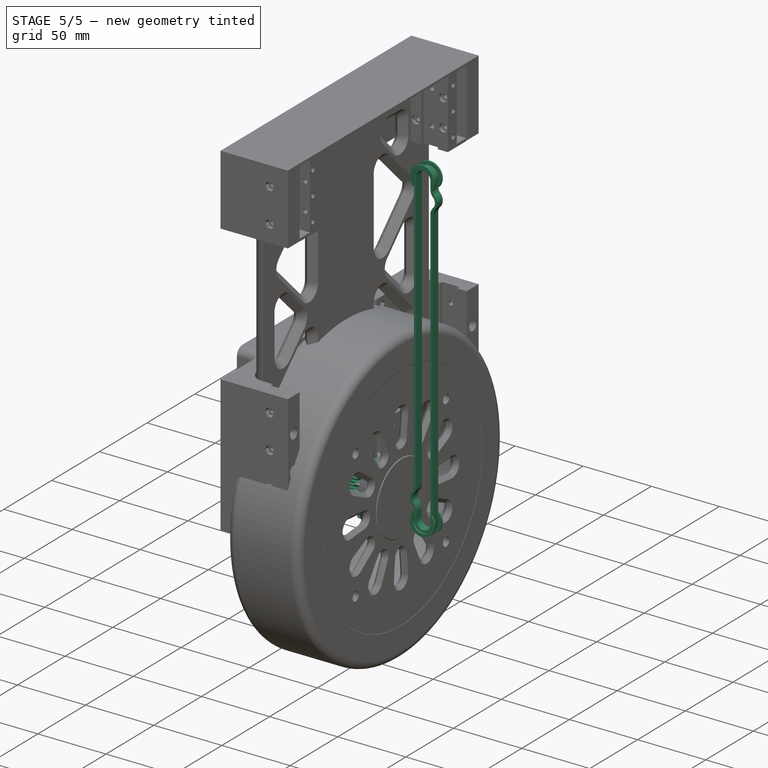
[diagram: stage 5 of 5 — iso view after this stage's code; geometry added in this stage tinted green]
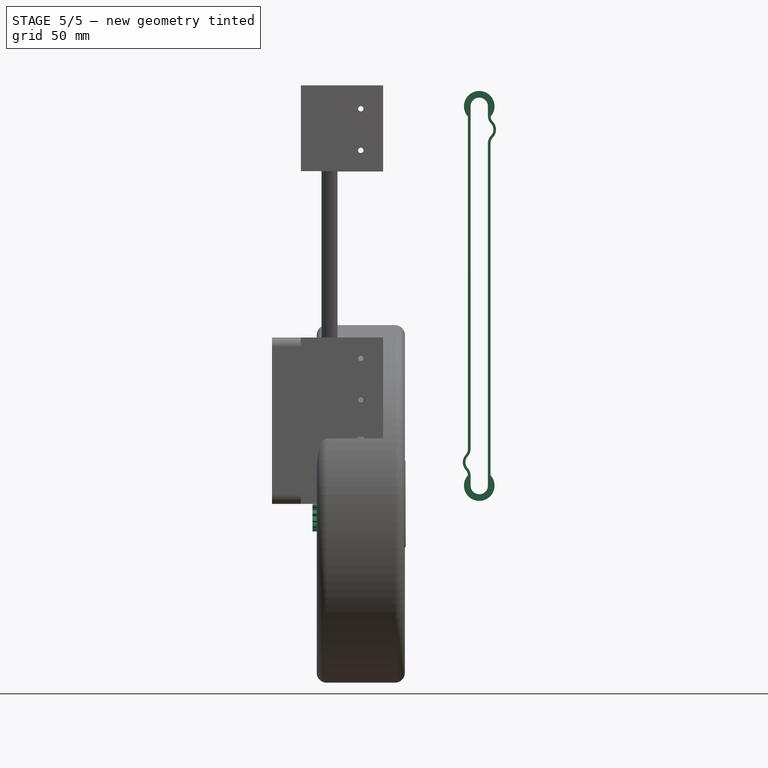
[diagram: stage 5 of 5 — front view after this stage's code; geometry added in this stage tinted green]
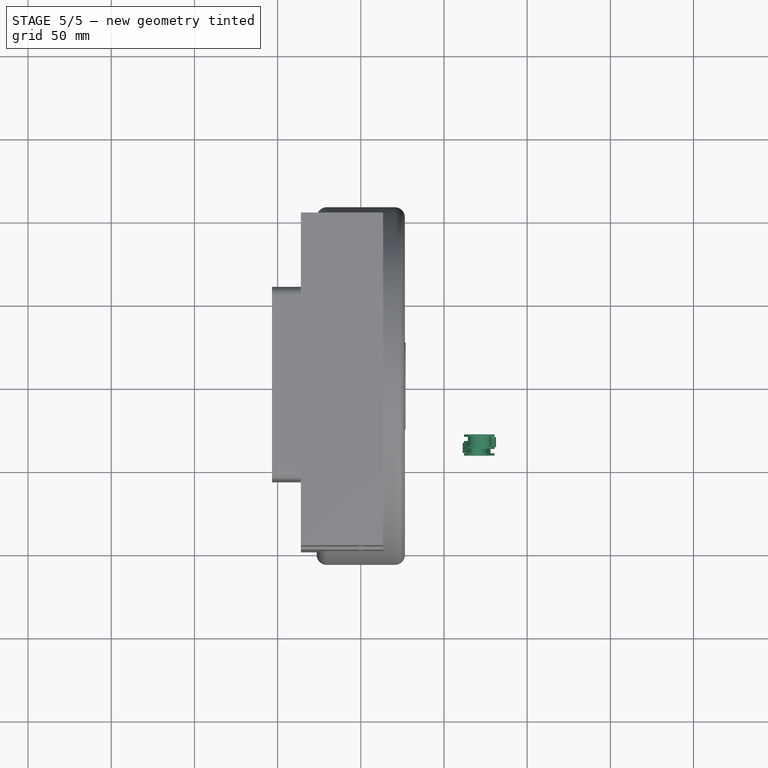
[diagram: stage 5 of 5 — top view after this stage's code; geometry added in this stage tinted green]
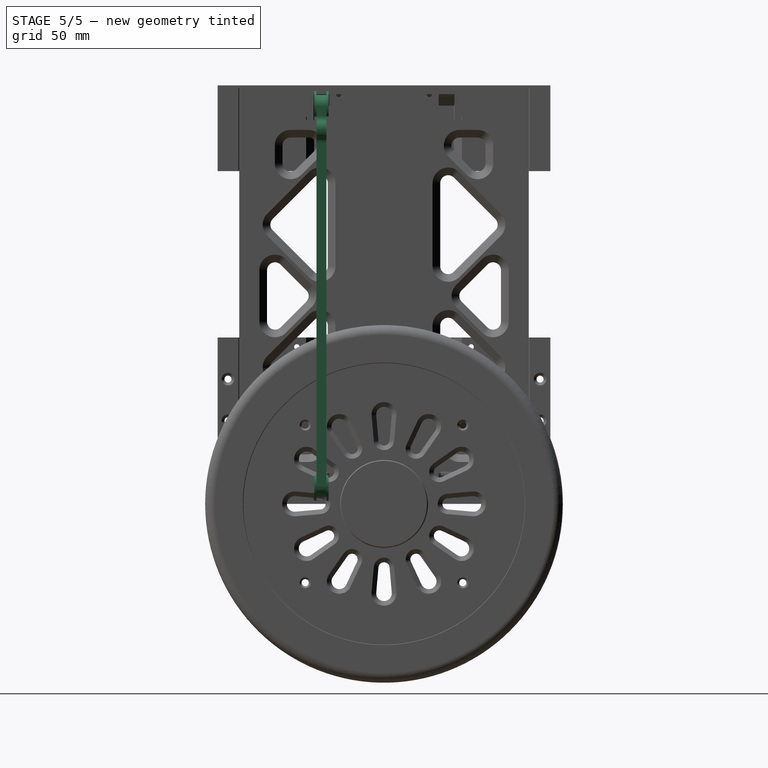
[diagram: stage 5 of 5 — right view after this stage's code; geometry added in this stage tinted green]
FEATURE [App::FeaturePython] dd  # WARN: FeaturePython — macro-defined, semantics opaque (R4)
  CG_X = 36.6
  CG_Y = 0
  CG_Z = 55.541
  DynamicData = Created with DynamicData (v2.68) workbench. | This is a simple container object built | for holding custom properties.
  F1_X = 59.8
  F1_Y = 90
  F2_X = 70.2
  F2_Y = 70
  F3_X = 90
  G1_Module = 1.5
  G1_Teeth = 24
  G1_Width = 12
  G2_Teeth = 20
  G2_Y = 12.5
  G2_Z = 25
  G3_Module = 1.25
  G3_Teeth = 20
  G3_Width = 7.6
  Pos = 0
  Pulley_Y = 37.6
  Sh_Length = 250
  W_X = 135
  c_G1_r = 2.12207
  c_G3_r = 2.54648
  expr: CG_X = F2_X - G1_Width - G3_Width / 2 - 17.8 mm
  expr: CG_Z = G2_Z + sqrt(pow((G1_Teeth + G2_Teeth) * G1_Module / 2; 2) - G2_Y * G2_Y)
  expr: F1_X = F2_X - G3_Width / 2 - 6.6 mm
  expr: F2_X = F3_X - 16 mm - G3_Width / 2
  expr: F2_Y = F1_Y - 20 mm
  expr: G1_Width = G1_Module * 8
  expr: G2_Y = G3_Module * G3_Teeth / 2
  expr: Pulley_Y = F2_Y - 32.4 mm
  expr: W_X = F3_X + (27 mm + 58 mm) / 2 + 2.5 mm
  expr: c_G1_r = c_G3_r * G2_Teeth / G1_Teeth
  expr: c_G3_r = (Sh_Length - 50 mm) / (G3_Module * G3_Teeth * pi)
FEATURE [Part::Feature] Body004  label="CyberGear1"
  Placement = pos=(-53.4,0,55.541) rot=(0,0,1;0rad)
  shape: bbox 36.5 x 79.86 x 80.35 mm, 98 faces (baked)
  expr: .Placement.Base.x = dd.CG_X - dd.F3_X
  expr: .Placement.Base.y = dd.CG_Y
  expr: .Placement.Base.z = dd.CG_Z
FEATURE [Part::Feature] Body003  label="F1_MGN12"
  Placement = pos=(0,-90,0) rot=(0,0,1;0rad)
  shape: bbox 12 x 8 x 250 mm, 48 faces (baked)
  expr: .Placement.Base.y = -dd.F1_Y
FEATURE [Part::Feature] Body002  label="F2_MGN12H"
  Placement = pos=(0,-90,202) rot=(0,0,1;0rad)
  shape: bbox 27 x 10 x 46 mm, 24 faces (baked)
  expr: .Placement.Base.y = -dd.F1_Y
  expr: .Placement.Base.z = dd.Sh_Length - 48 mm
FEATURE [Part::Feature] Body005  label="F2_MGN12"
  Placement = pos=(0,-70,0) rot=(0,0,1;0rad)
  shape: bbox 12 x 8 x 250 mm, 48 faces (baked)
  expr: .Placement.Base.y = -dd.F2_Y
FEATURE [Part::Feature] Body006  label="F3_MGN12H"
  Placement = pos=(0,-70,202) rot=(0,0,1;0rad)
  shape: bbox 27 x 10 x 46 mm, 24 faces (baked)
  expr: .Placement.Base.y = -dd.F2_Y
  expr: .Placement.Base.z = dd.Sh_Length - 48 mm
FEATURE [Part::FeaturePython] InvoluteGear  label="G1_InvoluteGear000"  # WARN: FeaturePython — macro-defined, semantics opaque (R4)
  AttacherType = Attacher::AttachEngine3D
  AttachmentOffset = pos=(0,0,3) rot=(0,0,1;3.39918rad)
  AttachmentSupport = -> [YZ_Plane004]
  MapMode = 5
  Placement = pos=(3,0,0) rot=(0.521027,-0.676063,0.521027;4.33055rad)
  addendum_diameter = 39
  angular_backlash = 0
  backlash = 0
  clearance = 0.25
  double_helix = false
  head = 0
  head_fillet = 0
  height = 13.6
  helix_angle = 0
  module = 1.5
  num_teeth = 24
  numpoints = 20
  pitch_diameter = 36
  pressure_angle = 20
  properties_from_tool = false
  reversed_backlash = false
  root_diameter = 32.25
  root_fillet = 0
  shift = 0
  simple = false
  transverse_pitch = 4.71239
  traverse_module = 1.5
  undercut = false
  version = 1.3.0
  expr: .AttachmentOffset.Rotation.Angle = 180 ° + atan2(dd.G2_Y; dd.CG_Z - dd.G2_Z) - 180 ° / dd.G1_Teeth
  expr: angular_backlash = backlash / pitch_diameter * 360 ° / pi
  expr: height = dd.G1_Width + 1.6 mm
  expr: module = dd.G1_Module
  expr: num_teeth = dd.G1_Teeth
FEATURE [Part::FeaturePython] InvoluteGear001  label="G2_InvoluteGear001"  # WARN: FeaturePython — macro-defined, semantics opaque (R4)
  AttacherType = Attacher::AttachEngine3D
  AttachmentOffset = pos=(0,0,-29) rot=(0,0,1;0.388486rad)
  AttachmentSupport = -> [YZ_Plane005]
  MapMode = 5
  Placement = pos=(-29,0,0) rot=(0.638805,0.428785,0.638805;2.33145rad)
  addendum_diameter = 33
  angular_backlash = 0
  backlash = 0
  clearance = 0.25
  double_helix = false
  head = 0
  head_fillet = 0
  height = 12
  helix_angle = 0
  module = 1.5
  num_teeth = 20
  numpoints = 20
  pitch_diameter = 30
  pressure_angle = 20
  properties_from_tool = false
  reversed_backlash = false
  root_diameter = 26.25
  root_fillet = 0
  shift = 0
  simple = false
  transverse_pitch = 4.71239
  traverse_module = 1.5
  undercut = false
  version = 1.3.0
  expr: .AttachmentOffset.Base.z = dd.CG_X - dd.F2_X + 4.6 mm
  expr: .AttachmentOffset.Rotation.Angle = atan2(dd.G2_Y; dd.CG_Z - dd.G2_Z)
  expr: .Placement.Base.x = dd.CG_X - dd.F2_X + 4.6 mm
  expr: angular_backlash = backlash / pitch_diameter * 360 ° / pi
  expr: height = dd.G1_Width
  expr: module = dd.G1_Module
  expr: num_teeth = dd.G2_Teeth
FEATURE [Part::FeaturePython] InvoluteGear002  label="G3_InvoluteGear002"  # WARN: FeaturePython — macro-defined, semantics opaque (R4)
  AttacherType = Attacher::AttachEngine3D
  AttachmentOffset = pos=(0,0,-3.8) rot=(0,0,1;0rad)
  AttachmentSupport = -> [YZ_Plane005]
  MapMode = 5
  Placement = pos=(-3.8,0,0) rot=(0.57735,0.57735,0.57735;2.0944rad)
  addendum_diameter = 27.5
  angular_backlash = 0
  backlash = 0
  clearance = 0.25
  double_helix = false
  head = 0
  head_fillet = 0
  height = 7.6
  helix_angle = 0
  module = 1.25
  num_teeth = 20
  numpoints = 20
  pitch_diameter = 25
  pressure_angle = 20
  properties_from_tool = false
  reversed_backlash = false
  root_diameter = 21.875
  root_fillet = 0
  shift = 0
  simple = false
  transverse_pitch = 3.92699
  traverse_module = 1.25
  undercut = false
  version = 1.3.0
  expr: .AttachmentOffset.Base.z = -height / 2
  expr: angular_backlash = backlash / pitch_diameter * 360 ° / pi
  expr: height = dd.G3_Width
  expr: module = dd.G3_Module
  expr: num_teeth = dd.G3_Teeth
FEATURE [Part::FeaturePython] InvoluteGear003  label="G4_InvoluteGear003"  # WARN: FeaturePython — macro-defined, semantics opaque (R4)
  AttacherType = Attacher::AttachEngine3D
  AttachmentOffset = pos=(0,0,-3.8) rot=(0,0,1;0.15708rad)
  AttachmentSupport = -> [YZ_Plane006]
  MapMode = 5
  Placement = pos=(-3.8,0,0) rot=(0.605288,0.516965,0.605288;2.18734rad)
  addendum_diameter = 27.5
  angular_backlash = 0
  backlash = 0
  clearance = 0.25
  double_helix = false
  head = 0
  head_fillet = 0
  height = 7.6
  helix_angle = 0
  module = 1.25
  num_teeth = 20
  numpoints = 20
  pitch_diameter = 25
  pressure_angle = 20
  properties_from_tool = false
  reversed_backlash = false
  root_diameter = 21.875
  root_fillet = 0
  shift = 0
  simple = false
  transverse_pitch = 3.92699
  traverse_module = 1.25
  undercut = false
  version = 1.3.0
  expr: .AttachmentOffset.Base.z = -height / 2
  expr: .AttachmentOffset.Rotation.Angle = 180 ° / dd.G3_Teeth
  expr: angular_backlash = backlash / pitch_diameter * 360 ° / pi
  expr: height = dd.G3_Width
  expr: module = dd.G3_Module
  expr: num_teeth = dd.G3_Teeth
FEATURE [Sketcher::SketchObject] Sketch018  label="B_Sketch018"
  ArcFitTolerance = 1e-06
  AttachmentOffset = pos=(71.2,0,37.6) rot=(0,0,1;0rad)
  AttachmentSupport = -> [XZ_Plane010]
  FullyConstrained = false
  MakeInternals = false
  MapMode = 5
  Placement = pos=(71.2,-37.6,8.3e-15) rot=(1,0,0;1.5708rad)
  expr: .AttachmentOffset.Base.x = dd.F2_X + 1 mm
  expr: .AttachmentOffset.Base.z = dd.Pulley_Y
  expr: Constraints[31] = dd.Sh_Length - 25 mm - dd.Pos
  expr: Constraints[7] = dd.Sh_Length - 11 mm
  sketch-geometry (27):
    g0: ArcOfCircle CenterX=0 CenterY=11 CenterZ=0 NormalX=0 NormalY=0 NormalZ=1 AngleXU=0 Radius=5.2 StartAngle=3.14159 EndAngle=6.28319
    g1: ArcOfCircle CenterX=0 CenterY=239 CenterZ=0 NormalX=0 NormalY=0 NormalZ=1 AngleXU=0 Radius=5.2 StartAngle=-1.8e-15 EndAngle=3.14159
    g2: ArcOfCircle CenterX=0 CenterY=11 CenterZ=0 NormalX=0 NormalY=0 NormalZ=1 AngleXU=0 Radius=6.8 StartAngle=3.14159 EndAngle=6.28319
    g3: ArcOfCircle CenterX=0 CenterY=239 CenterZ=0 NormalX=0 NormalY=0 NormalZ=1 AngleXU=0 Radius=6.8 StartAngle=-9e-16 EndAngle=3.14159
    g4: LineSegment StartX=5.2 StartY=239 StartZ=0 EndX=5.2 EndY=233.265 EndZ=0
    g5: LineSegment StartX=6.8 StartY=239 StartZ=0 EndX=6.8 EndY=233.265 EndZ=0
    g6: LineSegment StartX=5.2 StartY=11 StartZ=0 EndX=5.2 EndY=216.735 EndZ=0
    g7: LineSegment StartX=6.8 StartY=11 StartZ=0 EndX=6.8 EndY=216.735 EndZ=0
    g8: ArcOfCircle CenterX=12 CenterY=233.265 CenterZ=0 NormalX=0 NormalY=0 NormalZ=1 AngleXU=0 Radius=5.2 StartAngle=3.14159 EndAngle=3.90135
    g9: ArcOfCircle CenterX=3.3 CenterY=225 CenterZ=0 NormalX=0 NormalY=0 NormalZ=1 AngleXU=0 Radius=6.8 StartAngle=5.52342 EndAngle=7.04295
    g10: ArcOfCircle CenterX=12 CenterY=216.735 CenterZ=0 NormalX=0 NormalY=0 NormalZ=1 AngleXU=0 Radius=5.2 StartAngle=2.38183 EndAngle=3.14159
    g11: ArcOfCircle CenterX=12 CenterY=233.265 CenterZ=0 NormalX=0 NormalY=0 NormalZ=1 AngleXU=0 Radius=6.8 StartAngle=3.14159 EndAngle=3.90135
    g12: ArcOfCircle CenterX=3.3 CenterY=225 CenterZ=0 NormalX=0 NormalY=0 NormalZ=1 AngleXU=0 Radius=5.2 StartAngle=5.52342 EndAngle=7.04295
    g13: ArcOfCircle CenterX=12 CenterY=216.735 CenterZ=0 NormalX=0 NormalY=0 NormalZ=1 AngleXU=0 Radius=6.8 StartAngle=2.38183 EndAngle=3.14159
    g14: LineSegment [constr] StartX=0 StartY=225 StartZ=0 EndX=5.3 EndY=225 EndZ=0
    g15: LineSegment [constr] StartX=5.3 StartY=225 StartZ=0 EndX=8.5 EndY=225 EndZ=0
    g16: LineSegment StartX=-6.8 StartY=33.0492 StartZ=0 EndX=-6.8 EndY=239 EndZ=0
    g17: LineSegment StartX=-5.2 StartY=33.0492 StartZ=0 EndX=-5.2 EndY=239 EndZ=0
    g18: LineSegment StartX=-6.8 StartY=11 StartZ=0 EndX=-6.8 EndY=16.9508 EndZ=0
    g19: LineSegment StartX=-5.2 StartY=11 StartZ=0 EndX=-5.2 EndY=16.9508 EndZ=0
    g20: ArcOfCircle CenterX=-3.1 CenterY=25 CenterZ=0 NormalX=0 NormalY=0 NormalZ=1 AngleXU=0 Radius=5.2 StartAngle=2.40635 EndAngle=3.87684
    g21: ArcOfCircle CenterX=-3.1 CenterY=25 CenterZ=0 NormalX=0 NormalY=0 NormalZ=1 AngleXU=0 Radius=6.8 StartAngle=2.40635 EndAngle=3.87684
    g22: ArcOfCircle CenterX=-12 CenterY=33.0492 CenterZ=0 NormalX=0 NormalY=0 NormalZ=1 AngleXU=0 Radius=5.2 StartAngle=5.54794 EndAngle=6.28319
    g23: ArcOfCircle CenterX=-12 CenterY=33.0492 CenterZ=0 NormalX=0 NormalY=0 NormalZ=1 AngleXU=0 Radius=6.8 StartAngle=5.54794 EndAngle=6.28319
    g24: ArcOfCircle CenterX=-12 CenterY=16.9508 CenterZ=0 NormalX=0 NormalY=0 NormalZ=1 AngleXU=0 Radius=5.2 StartAngle=0 EndAngle=0.735245
    g25: ArcOfCircle CenterX=-12 CenterY=16.9508 CenterZ=0 NormalX=0 NormalY=0 NormalZ=1 AngleXU=0 Radius=6.8 StartAngle=0 EndAngle=0.735245
    g26: LineSegment [constr] StartX=0 StartY=25 StartZ=0 EndX=-8.3 EndY=25 EndZ=0
  constraints (68):
    c: Coincident(g1,g17) = 1.5708
    c: Equal(g0,g1)
    c: Coincident(g3,g16) = 1.5708
    c: Equal(g2,g3)
    c: Coincident(g2,g0)
    c: Coincident(g3,g1)
    c: Distance(g0,g-1) = 11
    c: Distance(g1,g-1) = 239
    c: Radius(g1) = 5.2
    c: Distance(g3,g1) = 1.6
    c: PointOnObject(g0,g-2)
    c: Vertical(g4)
    c: Vertical(g5)
    c: Vertical(g6)
    c: Tangent(g0,g6) = -1.5708
    c: Tangent(g2,g7) = -1.5708
    c: Tangent(g4,g1) = 1.5708
    c: Tangent(g5,g3) = 1.5708
    c: PointOnObject(g1,g-2)
    c: Tangent(g8,g5) = -1.5708
    c: Tangent(g10,g7) = 1.5708
    c: Tangent(g8,g9) = 1.5708
    c: Tangent(g10,g9) = 1.5708
    c: Coincident(g11,g8)
    c: Coincident(g12,g9)
    c: Coincident(g13,g10)
    c: Tangent(g11,g4) = -1.5708
    c: Tangent(g6,g13) = 1.5708
    c: Tangent(g12,g11) = 1.5708
    c: Tangent(g12,g13) = 1.5708
    c: Equal(g11,g13)
    c: Distance(g9,g-1) = 225
    c: Equal(g12,g1)
    c: PointOnObject(g14,g-2)
    c: Horizontal(g14)
    c: PointOnObject(g9,g14)
    c: Distance(g14,g14) = 5.3
    c: Coincident(g15,g14)
    c: PointOnObject(g15,g12)
    c: Horizontal(g15)
    c: Distance(g15,g15) = 3.2
    c: Equal(g8,g1)
    c: Vertical(g18)
    c: Vertical(g19)
    c: Tangent(g2,g18) = 1.5708
    c: Tangent(g0,g19) = 1.5708
    c: Coincident(g21,g20)
    c: Coincident(g23,g22)
    c: Coincident(g25,g24)
    c: Distance(g20,g-1) = 25
    c: Tangent(g17,g23) = -1.5708
    c: Vertical(g17)
    c: Vertical(g16)
    c: Tangent(g16,g22) = -1.5708
    c: Tangent(g22,g21) = 1.5708
    c: Tangent(g23,g20) = 1.5708
    c: Tangent(g25,g19) = -1.5708
    c: Tangent(g24,g18) = -1.5708
    c: Tangent(g20,g25) = 1.5708
    c: Tangent(g24,g21) = 1.5708
    c: Equal(g12,g20)
    c: Equal(g23,g25)
    c: Equal(g25,g13)
    c: PointOnObject(g26,g-2)
    c: PointOnObject(g26,g20)
    c: Horizontal(g26)
    c: PointOnObject(g20,g26)
    c: DistanceX(g26,g26) = 8.3
FEATURE [PartDesign::Pad] Pad004  label="B_Pad004"
  Direction = (0,-1,2e-16)
  Length = 6
  Length2 = 10
  Midplane = true
  Placement = pos=(0,0,0) rot=(1,0,0;1.5708rad)
  Profile = -> Sketch018
  ReferenceAxis = -> Sketch018 [N_Axis]
  Refine = true
  Suppressed = false
  Type = 0
FEATURE [Sketcher::SketchObject] Sketch020  label="B_Sketch020"
  ArcFitTolerance = 1e-06
  AttachmentSupport = -> [Pad004]
  ExternalGeometry = -> [Pad004]
  FullyConstrained = true
  MakeInternals = false
  MapMode = 5
  Placement = pos=(0,-40.6,8.9e-15) rot=(1,0,0;1.5708rad)
  sketch-geometry (8):
    g0: ArcOfCircle CenterX=71.2 CenterY=11 CenterZ=0 NormalX=0 NormalY=0 NormalZ=1 AngleXU=0 Radius=6.8 StartAngle=3.14159 EndAngle=6.28319
    g1: ArcOfCircle CenterX=71.2 CenterY=11 CenterZ=0 NormalX=0 NormalY=0 NormalZ=1 AngleXU=0 Radius=9.2 StartAngle=2.40257 EndAngle=7.0222
    g2: LineSegment StartX=64.4 StartY=17.1968 StartZ=0 EndX=64.4 EndY=11 EndZ=0
    g3: LineSegment StartX=78 StartY=17.1968 StartZ=0 EndX=78 EndY=11 EndZ=0
    g4: ArcOfCircle CenterX=71.2 CenterY=239 CenterZ=0 NormalX=0 NormalY=0 NormalZ=1 AngleXU=0 Radius=6.8 StartAngle=-9e-16 EndAngle=3.14159
    g5: ArcOfCircle CenterX=71.2 CenterY=239 CenterZ=0 NormalX=0 NormalY=0 NormalZ=1 AngleXU=0 Radius=9.2 StartAngle=5.54417 EndAngle=10.1638
    g6: LineSegment StartX=64.4 StartY=232.803 StartZ=0 EndX=64.4 EndY=239 EndZ=0
    g7: LineSegment StartX=78 StartY=232.803 StartZ=0 EndX=78 EndY=239 EndZ=0
  constraints (20):
    c: Coincident(g0,g-4)
    c: Equal(g0,g-4)
    c: Coincident(g1,g0)
    c: Vertical(g2)
    c: Vertical(g3)
    c: Tangent(g0,g3) = 1.5708
    c: Tangent(g0,g2) = -1.5708
    c: Coincident(g1,g2)
    c: Coincident(g3,g1)
    c: Radius(g1) = 9.2
    c: Coincident(g4,g-3)
    c: Coincident(g5,g4)
    c: Coincident(g6,g5)
    c: Vertical(g6)
    c: Coincident(g7,g5)
    c: Vertical(g7)
    c: Tangent(g4,g7) = -1.5708
    c: Tangent(g6,g4) = 1.5708
    c: Equal(g4,g-3)
    c: Equal(g5,g1)
FEATURE [PartDesign::Pad] Pad006  label="B_Pad006"
  BaseFeature = -> Pad004
  Direction = (0,-1,2e-16)
  Length = 1.3
  Length2 = 0.01
  Placement = pos=(0,0,0) rot=(1,0,0;1.5708rad)
  Profile = -> Sketch020
  ReferenceAxis = -> Sketch020 [N_Axis]
  Refine = true
  Suppressed = false
  Type = 4
FEATURE [Sketcher::SketchObject] Sketch021  label="B_Sketch021"
  ArcFitTolerance = 1e-06
  AttachmentSupport = -> [Pad006]
  ExternalGeometry = -> [Pad004]
  FullyConstrained = true
  MakeInternals = false
  MapMode = 5
  Placement = pos=(0,-34.6,7.6e-15) rot=(-1,0,0;1.5708rad)
  expr: Constraints[9] = Sketch020.Constraints[9]
  sketch-geometry (8):
    g0: ArcOfCircle CenterX=71.2 CenterY=-11 CenterZ=0 NormalX=0 NormalY=0 NormalZ=1 AngleXU=0 Radius=6.8 StartAngle=0 EndAngle=3.14159
    g1: ArcOfCircle CenterX=71.2 CenterY=-11 CenterZ=0 NormalX=0 NormalY=0 NormalZ=1 AngleXU=0 Radius=9.2 StartAngle=5.54417 EndAngle=10.1638
    g2: LineSegment StartX=78 StartY=-17.1968 StartZ=0 EndX=78 EndY=-11 EndZ=0
    g3: LineSegment StartX=64.4 StartY=-17.1968 StartZ=0 EndX=64.4 EndY=-11 EndZ=0
    g4: ArcOfCircle CenterX=71.2 CenterY=-239 CenterZ=0 NormalX=0 NormalY=0 NormalZ=1 AngleXU=0 Radius=6.8 StartAngle=3.14159 EndAngle=6.28319
    g5: ArcOfCircle CenterX=71.2 CenterY=-239 CenterZ=0 NormalX=0 NormalY=0 NormalZ=1 AngleXU=0 Radius=9.2 StartAngle=2.40257 EndAngle=7.0222
    g6: LineSegment StartX=78 StartY=-232.803 StartZ=0 EndX=78 EndY=-239 EndZ=0
    g7: LineSegment StartX=64.4 StartY=-232.803 StartZ=0 EndX=64.4 EndY=-239 EndZ=0
  constraints (20):
    c: Coincident(g0,g-4)
    c: Equal(g0,g-4)
    c: Coincident(g1,g0)
    c: Vertical(g2)
    c: Vertical(g3)
    c: Tangent(g0,g3) = 1.5708
    c: Tangent(g0,g2) = -1.5708
    c: Coincident(g1,g2)
    c: Coincident(g3,g1)
    c: Radius(g1) = 9.2
    c: Coincident(g4,g-3)
    c: Coincident(g5,g4)
    c: Coincident(g6,g5)
    c: Coincident(g7,g5)
    c: Tangent(g4,g7) = -1.5708
    c: Tangent(g6,g4) = 1.5708
    c: Equal(g4,g-3)
    c: Equal(g5,g1)
    c: Vertical(g7)
    c: Vertical(g6)
FEATURE [PartDesign::Pad] Pad007  label="B_Pad007"
  BaseFeature = -> Pad006
  Direction = (0,1,2e-16)
  Length = 1.3
  Length2 = 0.001
  Placement = pos=(0,0,0) rot=(1,0,0;1.5708rad)
  Profile = -> Sketch021
  ReferenceAxis = -> Sketch021 [N_Axis]
  Refine = true
  Suppressed = false
  Type = 4
FEATURE [PartDesign::SubShapeBinder] Binder004  label="G1c_Binder004_CG"
  BindCopyOnChange = 0
  BindMode = 0
  ClaimChildren = false
  Context = -> Part001 [Part004.Body011.Binder004.]
  Fuse = false
  MakeFace = true
  OffsetFill = false
  OffsetIntersection = false
  OffsetJoinType = 0
  OffsetOpenResult = false
  PartialLoad = false
  Refine = true
  Relative = true
  Support = -> [Body004[Face80]]
  _Version = 2
FEATURE [Sketcher::SketchObject] Sketch028  label="G1c_Sketch028"
  ArcFitTolerance = 1e-06
  AttachmentSupport = -> [XY_Plane012]
  ExternalGeometry = -> [Binder004]
  FullyConstrained = true
  MakeInternals = false
  MapMode = 5
  expr: Constraints[12] = dd.G1_Width
  expr: Constraints[5] = dd.G1_Module * (dd.G1_Teeth + 3) / 2
  sketch-geometry (5):
    g0: LineSegment StartX=16.6 StartY=0 StartZ=0 EndX=16.6 EndY=20.25 EndZ=0
    g1: LineSegment StartX=16.6 StartY=20.25 StartZ=0 EndX=4.6 EndY=20.25 EndZ=0
    g2: LineSegment StartX=4.6 StartY=20.25 StartZ=0 EndX=3 EndY=16.5 EndZ=0
    g3: LineSegment StartX=3 StartY=16.5 StartZ=0 EndX=3 EndY=0 EndZ=0
    g4: LineSegment StartX=3 StartY=0 StartZ=0 EndX=16.6 EndY=0 EndZ=0
  constraints (14):
    c: Vertical(g0)
    c: Coincident(g0,g1)
    c: Horizontal(g1)
    c: Coincident(g1,g2)
    c: DistanceX(g-3,g1) = 1.6
    c: DistanceY(g0,g0) = 20.25
    c: Coincident(g3,g2)
    c: PointOnObject(g3,g-1)
    c: Vertical(g3)
    c: Coincident(g4,g3)
    c: Coincident(g4,g0)
    c: Horizontal(g4)
    c: Distance(g1,g1) = 12
    c: Coincident(g2,g-3)
FEATURE [PartDesign::Revolution] Revolution  label="G1c_Revolution000"
  Angle = 360
  Angle2 = 60
  Axis = (1,0,0)
  Base = (0,0,0)
  Profile = -> Sketch028
  ReferenceAxis = -> Sketch028 [H_Axis]
  Refine = true
  Suppressed = false
  Type = 0
FEATURE [Sketcher::SketchObject] Sketch029  label="G1c_Sketch029"
  ArcFitTolerance = 1e-06
  AttachmentSupport = -> [Revolution]
  ExternalGeometry = -> [Binder004]
  FullyConstrained = true
  MakeInternals = false
  MapMode = 5
  Placement = pos=(16.6,0,0) rot=(0.57735,0.57735,0.57735;2.0944rad)
  sketch-geometry (6):
    g0: Circle CenterX=-12 CenterY=-8e-15 CenterZ=0 NormalX=0 NormalY=0 NormalZ=1 AngleXU=0 Radius=2.1
    g1: Circle CenterX=-6 CenterY=10.3923 CenterZ=0 NormalX=0 NormalY=0 NormalZ=1 AngleXU=0 Radius=2.1
    g2: Circle CenterX=6 CenterY=10.3923 CenterZ=0 NormalX=0 NormalY=0 NormalZ=1 AngleXU=0 Radius=2.1
    g3: Circle CenterX=12 CenterY=-8e-15 CenterZ=0 NormalX=0 NormalY=0 NormalZ=1 AngleXU=0 Radius=2.1
    g4: Circle CenterX=6 CenterY=-10.3923 CenterZ=0 NormalX=0 NormalY=0 NormalZ=1 AngleXU=0 Radius=2.1
    g5: Circle CenterX=-6 CenterY=-10.3923 CenterZ=0 NormalX=0 NormalY=0 NormalZ=1 AngleXU=0 Radius=2.1
  constraints (12):
    c: Coincident(g0,g-8)
    c: Coincident(g1,g-3)
    c: Coincident(g2,g-4)
    c: Coincident(g3,g-5)
    c: Coincident(g5,g-7)
    c: Equal(g0,g1)
    c: Equal(g1,g2)
    c: Equal(g2,g3)
    c: Equal(g3,g4)
    c: Equal(g4,g5)
    c: Diameter(g1) = 4.2
    c: Coincident(g-6,g4)
FEATURE [PartDesign::Hole] Hole006  label="G1c_Hole006"
  BaseFeature = -> Revolution
  CustomThreadClearance = 0
  Depth = 127.267
  DepthType = 1
  Diameter = 4.2
  DrillForDepth = false
  DrillPoint = 1
  DrillPointAngle = 118
  HoleCutCountersinkAngle = 90
  HoleCutCustomValues = false
  HoleCutDepth = 1
  HoleCutDiameter = 7.6
  HoleCutType = 3
  ModelThread = false
  Profile = -> Sketch029
  Refine = true
  Suppressed = false
  Tapered = false
  TaperedAngle = 90
  ThreadClass = 0
  ThreadDepth = 127.267
  ThreadDepthType = 0
  ThreadDirection = 0
  ThreadFit = 0
  ThreadSize = 0
  ThreadType = 0
  Threaded = false
  UseCustomThreadClearance = false
FEATURE [PartDesign::Body] Body011  label="G1_Comm"
  AllowCompound = false
  Group = -> [Binder004,Sketch028,Revolution,Sketch029,Hole006]
  Origin = -> Origin012
  Tip = -> Hole006
FEATURE [Part::MultiCommon] Common  label="G1_Common000"
  Refine = true
  Shapes = -> [InvoluteGear,Body011]
FEATURE [App::Part] Part004  label="Gear1"
  Group = -> [Body011,InvoluteGear,Common]
  Origin = -> Origin004
  Placement = pos=(-53.4,0,55.541) rot=(1,0,0;0rad)
  expr: .Placement.Base.x = dd.CG_X - dd.F3_X
  expr: .Placement.Base.y = dd.CG_Y
  expr: .Placement.Base.z = dd.CG_Z
  expr: .Placement.Rotation.Angle = dd.Pos * 360 ° / (dd.G3_Module * dd.G3_Teeth * pi) * dd.G2_Teeth / dd.G1_Teeth
FEATURE [Sketcher::SketchObject] Sketch030  label="G2_3_Sketch030"
  ArcFitTolerance = 1e-06
  AttachmentSupport = -> [XY_Plane013]
  FullyConstrained = true
  MakeInternals = false
  MapMode = 5
  expr: Constraints[16] = dd.G1_Module * (dd.G2_Teeth - 3) / 2
  expr: Constraints[17] = dd.G3_Width / 2
  expr: Constraints[28] = dd.G3_Module * (dd.G3_Teeth - 3) / 2
  sketch-geometry (14):
    g0: LineSegment StartX=-17 StartY=-12.75 StartZ=0 EndX=-16 EndY=-8.7 EndZ=0
    g1: LineSegment StartX=-16 StartY=-8.7 StartZ=0 EndX=-16 EndY=-7.5 EndZ=0
    g2: LineSegment StartX=-16 StartY=-7.5 StartZ=0 EndX=-11 EndY=-7.5 EndZ=0
    g3: LineSegment StartX=-4.8 StartY=-7.5 StartZ=0 EndX=-4.8 EndY=-8.7 EndZ=0
    g4: LineSegment StartX=-4.8 StartY=-8.7 StartZ=0 EndX=-3.8 EndY=-10.625 EndZ=0
    g5: LineSegment StartX=-3.8 StartY=-10.625 StartZ=0 EndX=-3.8 EndY=0 EndZ=0
    g6: LineSegment StartX=-3.8 StartY=0 StartZ=0 EndX=-17 EndY=0 EndZ=0
    g7: LineSegment StartX=-17 StartY=0 StartZ=0 EndX=-17 EndY=-12.75 EndZ=0
    g8: LineSegment [constr] StartX=-16 StartY=-7.5 StartZ=0 EndX=-17 EndY=-7.5 EndZ=0
    g9: LineSegment [constr] StartX=-4.8 StartY=-7.5 StartZ=0 EndX=-3.8 EndY=-7.5 EndZ=0
    g10: LineSegment StartX=-11 StartY=-7.5 StartZ=0 EndX=-11 EndY=-8.7 EndZ=0
    g11: LineSegment StartX=-11 StartY=-8.7 StartZ=0 EndX=-9.8 EndY=-8.7 EndZ=0
    g12: LineSegment StartX=-9.8 StartY=-8.7 StartZ=0 EndX=-9.8 EndY=-7.5 EndZ=0
    g13: LineSegment StartX=-9.8 StartY=-7.5 StartZ=0 EndX=-4.8 EndY=-7.5 EndZ=0
  constraints (43):
    c: Coincident(g0,g1)
    c: Vertical(g1)
    c: Coincident(g1,g2)
    c: Horizontal(g2)
    c: Coincident(g13,g3)
    c: Vertical(g3)
    c: Coincident(g3,g4)
    c: Coincident(g4,g5)
    c: PointOnObject(g5,g-1)
    c: Coincident(g5,g6)
    c: Horizontal(g6)
    c: Coincident(g6,g7)
    c: Coincident(g7,g0)
    c: Vertical(g7)
    c: Vertical(g5)
    c: Distance(g13,g-1) = 7.5
    c: Distance(g7,g7) = 12.75
    c: Distance(g5,g-2) = 3.8
    c: DistanceX(g6,g6) = 13.2
    c: Coincident(g8,g1)
    c: PointOnObject(g8,g7)
    c: Horizontal(g8)
    c: Coincident(g9,g13)
    c: PointOnObject(g9,g5)
    c: Horizontal(g9)
    c: Equal(g9,g8)
    c: Distance(g1,g1) = 1.2
    c: Equal(g3,g1)
    c: Distance(g5,g5) = 10.625
    c: Vertical(g10)
    c: Coincident(g10,g11)
    c: Horizontal(g11)
    c: Coincident(g11,g12)
    c: PointOnObject(g12,g13)
    c: Vertical(g12)
    c: Coincident(g2,g10)
    c: PointOnObject(g13,g12)
    c: Equal(g2,g13)
    c: Distance(g2,g2) = 5
    c: Distance(g11,g11) = 1.2
    c: Equal(g3,g12)
    c: Horizontal(g13)
    c: Equal(g10,g12)
FEATURE [PartDesign::Revolution] Revolution001  label="G2_3_Revolution001"
  Angle = 360
  Angle2 = 60
  Axis = (1,0,0)
  Base = (0,0,0)
  Profile = -> Sketch030
  ReferenceAxis = -> Sketch030 [H_Axis]
  Refine = true
  Reversed = true
  Suppressed = false
  Type = 0
FEATURE [PartDesign::Body] Body012  label="G2_3_Add"
  AllowCompound = false
  Group = -> [Sketch030,Revolution001]
  Origin = -> Origin013
  Tip = -> Revolution001
FEATURE [Part::MultiFuse] Fusion001  label="G2_3_Fusion001"
  Refine = true
  Shapes = -> [InvoluteGear001,InvoluteGear002,Body012]
FEATURE [Sketcher::SketchObject] Sketch031  label="G2_3c_Sketch031"
  ArcFitTolerance = 1e-06
  AttachmentSupport = -> [XY_Plane014]
  FullyConstrained = true
  MakeInternals = false
  MapMode = 5
  expr: Constraints[10] = dd.G1_Width + 13.2 mm + dd.G3_Width / 2
  expr: Constraints[11] = dd.G1_Module * (dd.G2_Teeth + 2) / 2
  expr: Constraints[9] = dd.G3_Width / 2
  sketch-geometry (4):
    g0: LineSegment StartX=3.8 StartY=0 StartZ=0 EndX=3.8 EndY=16.5 EndZ=0
    g1: LineSegment StartX=3.8 StartY=16.5 StartZ=0 EndX=-29 EndY=16.5 EndZ=0
    g2: LineSegment StartX=-29 StartY=16.5 StartZ=0 EndX=-29 EndY=0 EndZ=0
    g3: LineSegment StartX=-29 StartY=0 StartZ=0 EndX=3.8 EndY=0 EndZ=0
  constraints (12):
    c: Coincident(g0,g1)
    c: Coincident(g1,g2)
    c: Coincident(g2,g3)
    c: Coincident(g3,g0)
    c: Vertical(g0)
    c: Vertical(g2)
    c: Horizontal(g1)
    c: Horizontal(g3)
    c: PointOnObject(g0,g-1)
    c: Distance(g0,g-2) = 3.8
    c: Distance(g1,g-2) = 29
    c: Distance(g1,g-1) = 16.5
FEATURE [PartDesign::Revolution] Revolution002  label="G2_3c_Revolution002"
  Angle = 360
  Angle2 = 60
  Axis = (1,0,0)
  Base = (0,0,0)
  Profile = -> Sketch031
  ReferenceAxis = -> Sketch031 [H_Axis]
  Refine = true
  Suppressed = false
  Type = 0
FEATURE [Sketcher::SketchObject] Sketch032  label="G2_3c_Sketch032"
  ArcFitTolerance = 1e-06
  AttachmentSupport = -> [Revolution002]
  FullyConstrained = true
  MakeInternals = false
  MapMode = 5
  Placement = pos=(-29,0,0) rot=(0.57735,-0.57735,-0.57735;2.0944rad)
  sketch-geometry (7):
    g0: LineSegment [constr] StartX=0 StartY=4.2 StartZ=0 EndX=-3.63731 EndY=-2.1 EndZ=0
    g1: LineSegment [constr] StartX=-3.63731 StartY=-2.1 StartZ=0 EndX=3.63731 EndY=-2.1 EndZ=0
    g2: LineSegment [constr] StartX=3.63731 StartY=-2.1 StartZ=0 EndX=0 EndY=4.2 EndZ=0
    g3: Circle [constr] CenterX=0 CenterY=0 CenterZ=0 NormalX=0 NormalY=0 NormalZ=1 AngleXU=0 Radius=4.2
    g4: Circle CenterX=0 CenterY=4.2 CenterZ=0 NormalX=0 NormalY=0 NormalZ=1 AngleXU=0 Radius=1.6
    g5: Circle CenterX=3.63731 CenterY=-2.1 CenterZ=0 NormalX=0 NormalY=0 NormalZ=1 AngleXU=0 Radius=1.6
    g6: Circle CenterX=-3.63731 CenterY=-2.1 CenterZ=0 NormalX=0 NormalY=0 NormalZ=1 AngleXU=0 Radius=1.6
  constraints (17):
    c: Coincident(g0,g1)
    c: Coincident(g1,g2)
    c: Coincident(g2,g0)
    c: Equal(g0,g1)
    c: Equal(g0,g2)
    c: PointOnObject(g0,g3)
    c: PointOnObject(g1,g3)
    c: PointOnObject(g2,g3)
    c: Coincident(g3,g-1)
    c: PointOnObject(g2,g-2)
    c: Diameter(g3) = 8.4
    c: Coincident(g4,g0)
    c: Coincident(g5,g1)
    c: Coincident(g6,g0)
    c: Equal(g6,g5)
    c: Equal(g5,g4)
    c: Diameter(g4) = 3.2
FEATURE [PartDesign::Hole] Hole007  label="G2_3c_Hole007"
  BaseFeature = -> Revolution002
  CustomThreadClearance = 0
  Depth = 115.226
  DepthType = 1
  Diameter = 3.2
  DrillForDepth = false
  DrillPoint = 1
  DrillPointAngle = 118
  HoleCutCountersinkAngle = 179
  HoleCutCustomValues = false
  HoleCutDepth = 2.8
  HoleCutDiameter = 6
  HoleCutType = 3
  ModelThread = false
  Profile = -> Sketch032
  Refine = true
  Suppressed = false
  Tapered = false
  TaperedAngle = 90
  ThreadClass = 0
  ThreadDepth = 115.226
  ThreadDepthType = 0
  ThreadDirection = 0
  ThreadFit = 0
  ThreadSize = 0
  ThreadType = 0
  Threaded = false
  UseCustomThreadClearance = false
FEATURE [Sketcher::SketchObject] Sketch033  label="G2_3c_Sketch033"
  ArcFitTolerance = 1e-06
  AttachmentSupport = -> [Hole007]
  FullyConstrained = true
  MakeInternals = false
  MapMode = 5
  Placement = pos=(3.8,0,0) rot=(0.57735,0.57735,0.57735;2.0944rad)
  sketch-geometry (21):
    g0: LineSegment StartX=-6.49519 StartY=-3.75 StartZ=0 EndX=-3.63731 EndY=-5.4 EndZ=0
    g1: LineSegment StartX=-3.63731 StartY=-5.4 StartZ=0 EndX=-0.779423 EndY=-3.75 EndZ=0
    g2: LineSegment StartX=-0.779423 StartY=-3.75 StartZ=0 EndX=-0.779423 EndY=-0.45 EndZ=0
    g3: LineSegment StartX=-0.779423 StartY=-0.45 StartZ=0 EndX=-3.63731 EndY=1.2 EndZ=0
    g4: LineSegment StartX=-3.63731 StartY=1.2 StartZ=0 EndX=-6.49519 EndY=-0.45 EndZ=0
    g5: LineSegment StartX=-6.49519 StartY=-0.45 StartZ=0 EndX=-6.49519 EndY=-3.75 EndZ=0
    g6: Circle [constr] CenterX=-3.63731 CenterY=-2.1 CenterZ=0 NormalX=0 NormalY=0 NormalZ=1 AngleXU=0 Radius=3.3
    g7: LineSegment StartX=-1.65 StartY=7.05788 StartZ=0 EndX=-3.3 EndY=4.2 EndZ=0
    g8: LineSegment StartX=-3.3 StartY=4.2 StartZ=0 EndX=-1.65 EndY=1.34212 EndZ=0
    g9: LineSegment StartX=-1.65 StartY=1.34212 StartZ=0 EndX=1.65 EndY=1.34212 EndZ=0
    g10: LineSegment StartX=1.65 StartY=1.34212 StartZ=0 EndX=3.3 EndY=4.2 EndZ=0
    g11: LineSegment StartX=3.3 StartY=4.2 StartZ=0 EndX=1.65 EndY=7.05788 EndZ=0
    g12: LineSegment StartX=1.65 StartY=7.05788 StartZ=0 EndX=-1.65 EndY=7.05788 EndZ=0
    g13: Circle [constr] CenterX=0 CenterY=4.2 CenterZ=0 NormalX=0 NormalY=0 NormalZ=1 AngleXU=0 Radius=3.3
    g14: LineSegment StartX=0.779423 StartY=-3.75 StartZ=0 EndX=3.63731 EndY=-5.4 EndZ=0
    g15: LineSegment StartX=3.63731 StartY=-5.4 StartZ=0 EndX=6.49519 EndY=-3.75 EndZ=0
    g16: LineSegment StartX=6.49519 StartY=-3.75 StartZ=0 EndX=6.49519 EndY=-0.45 EndZ=0
    g17: LineSegment StartX=6.49519 StartY=-0.45 StartZ=0 EndX=3.63731 EndY=1.2 EndZ=0
    g18: LineSegment StartX=3.63731 StartY=1.2 StartZ=0 EndX=0.779423 EndY=-0.45 EndZ=0
    g19: LineSegment StartX=0.779423 StartY=-0.45 StartZ=0 EndX=0.779423 EndY=-3.75 EndZ=0
    g20: Circle [constr] CenterX=3.63731 CenterY=-2.1 CenterZ=0 NormalX=0 NormalY=0 NormalZ=1 AngleXU=0 Radius=3.3
  constraints (48):
    c: Coincident(g0,g1)
    c: Coincident(g1,g2)
    c: Coincident(g2,g3)
    c: Coincident(g3,g4)
    c: Coincident(g4,g5)
    c: Coincident(g5,g0)
    c: Equal(g0, g1-g5) x5
    c: PointOnObject(g0,g6)
    c: PointOnObject(g1,g6)
    c: PointOnObject(g2,g6)
    c: PointOnObject(g3,g6)
    c: PointOnObject(g4,g6)
    c: PointOnObject(g5,g6)
    c: Coincident(g6,g-4)
    c: Coincident(g7,g8)
    c: Coincident(g8,g9)
    c: Coincident(g9,g10)
    c: Coincident(g10,g11)
    c: Coincident(g11,g12)
    c: Coincident(g12,g7)
    c: Equal(g7, g8-g12) x5
    c: PointOnObject(g7,g13)
    c: PointOnObject(g8,g13)
    c: PointOnObject(g9,g13)
    c: PointOnObject(g10,g13)
    c: PointOnObject(g11,g13)
    c: PointOnObject(g12,g13)
    c: Coincident(g13,g-3)
    c: Coincident(g14,g15)
    c: Coincident(g15,g16)
    c: Coincident(g16,g17)
    c: Coincident(g17,g18)
    c: Coincident(g18,g19)
    c: Coincident(g19,g14)
    c: Equal(g14, g15-g19) x5
    c: PointOnObject(g14,g20)
    c: PointOnObject(g15,g20)
    c: PointOnObject(g16,g20)
    c: PointOnObject(g17,g20)
    c: PointOnObject(g18,g20)
    c: PointOnObject(g19,g20)
    c: Coincident(g20,g-5)
    c: Horizontal(g12)
    c: Equal(g6,g13)
    c: Equal(g13,g20)
    c: Diameter(g13) = 6.6
    c: Vertical(g2)
    c: Vertical(g19)
FEATURE [PartDesign::Pocket] Pocket012  label="G2_3c_Pocket012"
  BaseFeature = -> Hole007
  Direction = (-1,0,0)
  Length = 2.4
  Length2 = 5
  Profile = -> Sketch033
  ReferenceAxis = -> Sketch033 [N_Axis]
  Refine = true
  Suppressed = false
  Type = 0
FEATURE [PartDesign::Body] Body013  label="G2_3_Comm"
  AllowCompound = false
  Group = -> [Sketch031,Revolution002,Sketch032,Hole007,Sketch033,Pocket012]
  Origin = -> Origin014
  Tip = -> Pocket012
FEATURE [Part::MultiCommon] Common001  label="G2_3_Common001"
  Refine = true
  Shapes = -> [Body013,Fusion001]
FEATURE [Sketcher::SketchObject] Sketch034  label="G2_3s_Sketch034"
  ArcFitTolerance = 1e-06
  AttachmentOffset = pos=(-10.4,0,0) rot=(0,0,1;0rad)
  AttachmentSupport = -> [XY_Plane015]
  FullyConstrained = true
  MakeInternals = false
  MapMode = 5
  Placement = pos=(-10.4,0,0) rot=(0,0,1;0rad)
  expr: .AttachmentOffset.Base.x = -(dd.G3_Width / 2 + 6.6 mm)
  sketch-geometry (8):
    g0: LineSegment StartX=-0.005 StartY=0 StartZ=0 EndX=0.005 EndY=0 EndZ=0
    g1: LineSegment StartX=0.005 StartY=0 StartZ=0 EndX=0.005 EndY=-6.705 EndZ=0
    g2: LineSegment StartX=0.005 StartY=-6.705 StartZ=0 EndX=0.8 EndY=-7.5 EndZ=0
    g3: LineSegment StartX=0.8 StartY=-7.5 StartZ=0 EndX=0.8 EndY=-8.7 EndZ=0
    g4: LineSegment StartX=0.8 StartY=-8.7 StartZ=0 EndX=-0.8 EndY=-8.7 EndZ=0
    g5: LineSegment StartX=-0.8 StartY=-8.7 StartZ=0 EndX=-0.8 EndY=-7.5 EndZ=0
    g6: LineSegment StartX=-0.8 StartY=-7.5 StartZ=0 EndX=-0.005 EndY=-6.705 EndZ=0
    g7: LineSegment StartX=-0.005 StartY=-6.705 StartZ=0 EndX=-0.005 EndY=0 EndZ=0
  constraints (22):
    c: PointOnObject(g0,g-1)
    c: Coincident(g0,g1)
    c: Vertical(g1)
    c: Coincident(g1,g2)
    c: Coincident(g2,g3)
    c: Vertical(g3)
    c: Coincident(g3,g4)
    c: Horizontal(g4)
    c: Coincident(g4,g5)
    c: Vertical(g5)
    c: Coincident(g5,g6)
    c: Coincident(g6,g7)
    c: Coincident(g7,g0)
    c: Vertical(g7)
    c: Symmetric(g5,g2,g-2)
    c: Distance(g5,g-1) = 7.5
    c: Perpendicular(g2,g6)
    c: Distance(g4,g4) = 1.6
    c: DistanceY(g3,g3) = 1.2
    c: Horizontal(g0)
    c: Symmetric(g6,g1,g-2)
    c: Distance(g0,g0) = 0.01
FEATURE [PartDesign::Revolution] Revolution003  label="G2_3s_Revolution003"
  Angle = 360
  Angle2 = 60
  Axis = (1,0,0)
  Base = (-10.4,0,0)
  Profile = -> Sketch034
  ReferenceAxis = -> Sketch034 [H_Axis]
  Refine = true
  Reversed = true
  Suppressed = false
  Type = 0
FEATURE [PartDesign::Body] Body014  label="G2_3_Split"
  AllowCompound = false
  Group = -> [Sketch034,Revolution003]
  Origin = -> Origin015
  Tip = -> Revolution003
FEATURE [Part::FeaturePython] Slice002  # WARN: FeaturePython — macro-defined, semantics opaque (R4)
  Base = -> Common001
  Mode = 1
  Tolerance = 0
  Tools = -> [Body014]
FEATURE [Part::FeaturePython] Slice002_child0  label="Slice002.0"  # WARN: FeaturePython — macro-defined, semantics opaque (R4)
  Base = -> Slice002
  FilterType = 1
  Invert = false
  OverrideMaxVal = 0
  WindowFrom = 80
  WindowTo = 100
  items = 0
FEATURE [Part::FeaturePython] Slice002_child1  label="Slice002.1"  # WARN: FeaturePython — macro-defined, semantics opaque (R4)
  Base = -> Slice002
  FilterType = 1
  Invert = false
  OverrideMaxVal = 0
  WindowFrom = 80
  WindowTo = 100
  items = 1
FEATURE [Part::FeaturePython] Slice002_child2  label="Slice002.2"  # WARN: FeaturePython — macro-defined, semantics opaque (R4)
  Base = -> Slice002
  FilterType = 1
  Invert = false
  OverrideMaxVal = 0
  WindowFrom = 80
  WindowTo = 100
  items = 2
FEATURE [App::DocumentObjectGroup] GrExplode_Slice002  label="G2_3_Exploded Slice002"
  Group = -> [Slice002_child0,Slice002_child1,Slice002_child2]
FEATURE [App::Part] Part005  label="Gear2_3"
  Group = -> [Fusion001,Body012,Body013,InvoluteGear001,InvoluteGear002,Common001,Body014,Slice002,Slice002_child0,Slice002_child1,Slice002_child2,GrExplode_Slice002]
  Origin = -> Origin005
  Placement = pos=(-19.8,12.5,25) rot=(1,0,0;0rad)
  expr: .Placement.Base.x = dd.F2_X - dd.F3_X
  expr: .Placement.Base.y = dd.G2_Y
  expr: .Placement.Base.z = dd.G2_Z
  expr: .Placement.Rotation.Angle = -dd.Pos * 360 ° / (dd.G3_Module * dd.G3_Teeth * pi)
FEATURE [Sketcher::SketchObject] Sketch035  label="G4a_Sketch035"
  ArcFitTolerance = 1e-06
  AttachmentOffset = pos=(-10.4,0,0) rot=(0,0,1;0rad)
  AttachmentSupport = -> [XY_Plane016]
  FullyConstrained = true
  MakeInternals = false
  MapMode = 5
  Placement = pos=(-10.4,0,0) rot=(0,0,1;0rad)
  expr: .AttachmentOffset.Base.x = -(dd.G3_Width / 2 + 6.6 mm)
  sketch-geometry (13):
    g0: LineSegment StartX=-7 StartY=0 StartZ=0 EndX=-7 EndY=-7.5 EndZ=0
    g1: LineSegment StartX=-7 StartY=-7.5 StartZ=0 EndX=-5.8 EndY=-8.7 EndZ=0
    g2: LineSegment StartX=-5.8 StartY=-8.7 StartZ=0 EndX=-5.8 EndY=-7.5 EndZ=0
    g3: LineSegment StartX=-5.8 StartY=-7.5 StartZ=0 EndX=-0.8 EndY=-7.5 EndZ=0
    g4: LineSegment StartX=-0.8 StartY=-7.5 StartZ=0 EndX=-0.8 EndY=-8.7 EndZ=0
    g5: LineSegment StartX=-0.8 StartY=-8.7 StartZ=0 EndX=0.8 EndY=-8.7 EndZ=0
    g6: LineSegment StartX=0.8 StartY=-8.7 StartZ=0 EndX=0.8 EndY=-7.5 EndZ=0
    g7: LineSegment StartX=0.8 StartY=-7.5 StartZ=0 EndX=5.8 EndY=-7.5 EndZ=0
    g8: LineSegment StartX=6.6 StartY=-8.7 StartZ=0 EndX=6.6 EndY=0 EndZ=0
    g9: LineSegment StartX=6.6 StartY=0 StartZ=0 EndX=-7 EndY=0 EndZ=0
    g10: LineSegment StartX=5.8 StartY=-7.5 StartZ=0 EndX=5.8 EndY=-8.7 EndZ=0
    g11: LineSegment StartX=5.8 StartY=-8.7 StartZ=0 EndX=6.6 EndY=-8.7 EndZ=0
    g12: LineSegment [constr] StartX=-5.8 StartY=-7.5 StartZ=0 EndX=-7 EndY=-7.5 EndZ=0
  constraints (37):
    c: PointOnObject(g0,g-1)
    c: Vertical(g0)
    c: Coincident(g0,g1)
    c: Coincident(g1,g2)
    c: Coincident(g2,g3)
    c: Horizontal(g3)
    c: Coincident(g3,g4)
    c: Vertical(g4)
    c: Coincident(g4,g5)
    c: Horizontal(g5)
    c: Coincident(g5,g6)
    c: Coincident(g6,g7)
    c: Horizontal(g7)
    c: PointOnObject(g8,g-1)
    c: Vertical(g8)
    c: Coincident(g8,g9)
    c: Coincident(g9,g0)
    c: Vertical(g2)
    c: Vertical(g6)
    c: Equal(g3,g7)
    c: Symmetric(g6,g3,g-2)
    c: Distance(g3,g3) = 5
    c: Distance(g5,g5) = 1.6
    c: Distance(g3,g-1) = 7.5
    c: Distance(g2,g2) = 1.2
    c: Equal(g2,g4)
    c: Coincident(g7,g10)
    c: Vertical(g10)
    c: Coincident(g11,g10)
    c: Coincident(g11,g8)
    c: Horizontal(g11)
    c: Equal(g6,g10)
    c: Distance(g11,g11) = 0.8
    c: Coincident(g12,g2)
    c: Coincident(g12,g0)
    c: Horizontal(g12)
    c: Equal(g12,g2)
FEATURE [PartDesign::Revolution] Revolution004  label="G4a_Revolution004"
  Angle = 360
  Angle2 = 60
  Axis = (1,0,0)
  Base = (-10.4,0,0)
  Profile = -> Sketch035
  ReferenceAxis = -> Sketch035 [H_Axis]
  Refine = true
  Reversed = true
  Suppressed = false
  Type = 0
FEATURE [PartDesign::Body] Body015  label="G4_Add"
  AllowCompound = false
  Group = -> [Sketch035,Revolution004]
  Origin = -> Origin016
  Tip = -> Revolution004
FEATURE [Part::MultiFuse] Fusion002  label="G4_Fusion002"
  Refine = true
  Shapes = -> [InvoluteGear003,Body015]
FEATURE [Sketcher::SketchObject] Sketch036  label="G4c_Sketch036"
  ArcFitTolerance = 1e-06
  AttachmentSupport = -> [XY_Plane017]
  FullyConstrained = true
  MakeInternals = false
  MapMode = 5
  expr: Constraints[10] = dd.G3_Width / 2 + 14 mm
  expr: Constraints[11] = dd.G3_Module * (dd.G3_Teeth + 3) / 2
  expr: Constraints[9] = dd.G3_Width / 2
  sketch-geometry (4):
    g0: LineSegment StartX=-17.8 StartY=0 StartZ=0 EndX=-17.8 EndY=-14.375 EndZ=0
    g1: LineSegment StartX=-17.8 StartY=-14.375 StartZ=0 EndX=3.8 EndY=-14.375 EndZ=0
    g2: LineSegment StartX=3.8 StartY=-14.375 StartZ=0 EndX=3.8 EndY=0 EndZ=0
    g3: LineSegment StartX=3.8 StartY=0 StartZ=0 EndX=-17.8 EndY=0 EndZ=0
  constraints (12):
    c: Coincident(g0,g1)
    c: Coincident(g1,g2)
    c: Coincident(g2,g3)
    c: Coincident(g3,g0)
    c: Vertical(g0)
    c: Vertical(g2)
    c: Horizontal(g1)
    c: Horizontal(g3)
    c: PointOnObject(g0,g-1)
    c: Distance(g2,g-2) = 3.8
    c: Distance(g0,g-2) = 17.8
    c: Distance(g1,g-1) = 14.375
FEATURE [PartDesign::Revolution] Revolution005  label="G4c_Revolution005"
  Angle = 360
  Angle2 = 60
  Axis = (1,0,0)
  Base = (0,0,0)
  Profile = -> Sketch036
  ReferenceAxis = -> Sketch036 [H_Axis]
  Refine = true
  Reversed = true
  Suppressed = false
  Type = 0
FEATURE [Sketcher::SketchObject] Sketch037  label="G4c_Sketch037"
  ArcFitTolerance = 1e-06
  AttachmentSupport = -> [Revolution005]
  FullyConstrained = true
  MakeInternals = false
  MapMode = 5
  Placement = pos=(-17.8,0,0) rot=(0.57735,-0.57735,-0.57735;2.0944rad)
  sketch-geometry (7):
    g0: LineSegment [constr] StartX=0 StartY=4.2 StartZ=0 EndX=-3.63731 EndY=-2.1 EndZ=0
    g1: LineSegment [constr] StartX=-3.63731 StartY=-2.1 StartZ=0 EndX=3.63731 EndY=-2.1 EndZ=0
    g2: LineSegment [constr] StartX=3.63731 StartY=-2.1 StartZ=0 EndX=0 EndY=4.2 EndZ=0
    g3: Circle [constr] CenterX=0 CenterY=0 CenterZ=0 NormalX=0 NormalY=0 NormalZ=1 AngleXU=0 Radius=4.2
    g4: Circle CenterX=0 CenterY=4.2 CenterZ=0 NormalX=0 NormalY=0 NormalZ=1 AngleXU=0 Radius=1.6
    g5: Circle CenterX=3.63731 CenterY=-2.1 CenterZ=0 NormalX=0 NormalY=0 NormalZ=1 AngleXU=0 Radius=1.6
    g6: Circle CenterX=-3.63731 CenterY=-2.1 CenterZ=0 NormalX=0 NormalY=0 NormalZ=1 AngleXU=0 Radius=1.6
  constraints (17):
    c: Coincident(g0,g1)
    c: Coincident(g1,g2)
    c: Coincident(g2,g0)
    c: Equal(g0,g1)
    c: Equal(g0,g2)
    c: PointOnObject(g0,g3)
    c: PointOnObject(g1,g3)
    c: PointOnObject(g2,g3)
    c: Coincident(g3,g-1)
    c: PointOnObject(g2,g-2)
    c: Diameter(g3) = 8.4
    c: Coincident(g4,g0)
    c: Coincident(g5,g1)
    c: Coincident(g6,g0)
    c: Equal(g5,g6)
    c: Equal(g6,g4)
    c: Diameter(g4) = 3.2
FEATURE [PartDesign::Hole] Hole008  label="G4c_Hole008"
  BaseFeature = -> Revolution005
  CustomThreadClearance = 0
  Depth = 92.8777
  DepthType = 1
  Diameter = 3.2
  DrillForDepth = false
  DrillPoint = 1
  DrillPointAngle = 118
  HoleCutCountersinkAngle = 179
  HoleCutCustomValues = false
  HoleCutDepth = 3.2
  HoleCutDiameter = 6
  HoleCutType = 3
  ModelThread = false
  Profile = -> Sketch037
  Refine = true
  Suppressed = false
  Tapered = false
  TaperedAngle = 90
  ThreadClass = 0
  ThreadDepth = 92.8777
  ThreadDepthType = 0
  ThreadDirection = 0
  ThreadFit = 0
  ThreadSize = 0
  ThreadType = 0
  Threaded = false
  UseCustomThreadClearance = false
FEATURE [Sketcher::SketchObject] Sketch038  label="G4c_Sketch038"
  ArcFitTolerance = 1e-06
  AttachmentSupport = -> [Hole008]
  FullyConstrained = true
  MakeInternals = false
  MapMode = 5
  Placement = pos=(3.8,0,0) rot=(0.57735,0.57735,0.57735;2.0944rad)
  sketch-geometry (21):
    g0: LineSegment StartX=1.65 StartY=7.05788 StartZ=0 EndX=-1.65 EndY=7.05788 EndZ=0
    g1: LineSegment StartX=-1.65 StartY=7.05788 StartZ=0 EndX=-3.3 EndY=4.2 EndZ=0
    g2: LineSegment StartX=-3.3 StartY=4.2 StartZ=0 EndX=-1.65 EndY=1.34212 EndZ=0
    g3: LineSegment StartX=-1.65 StartY=1.34212 StartZ=0 EndX=1.65 EndY=1.34212 EndZ=0
    g4: LineSegment StartX=1.65 StartY=1.34212 StartZ=0 EndX=3.3 EndY=4.2 EndZ=0
    g5: LineSegment StartX=3.3 StartY=4.2 StartZ=0 EndX=1.65 EndY=7.05788 EndZ=0
    g6: Circle [constr] CenterX=0 CenterY=4.2 CenterZ=0 NormalX=0 NormalY=0 NormalZ=1 AngleXU=0 Radius=3.3
    g7: LineSegment StartX=-3.63731 StartY=1.2 StartZ=0 EndX=-6.49519 EndY=-0.45 EndZ=0
    g8: LineSegment StartX=-6.49519 StartY=-0.45 StartZ=0 EndX=-6.49519 EndY=-3.75 EndZ=0
    g9: LineSegment StartX=-6.49519 StartY=-3.75 StartZ=0 EndX=-3.63731 EndY=-5.4 EndZ=0
    g10: LineSegment StartX=-3.63731 StartY=-5.4 StartZ=0 EndX=-0.779423 EndY=-3.75 EndZ=0
    g11: LineSegment StartX=-0.779423 StartY=-3.75 StartZ=0 EndX=-0.779423 EndY=-0.45 EndZ=0
    g12: LineSegment StartX=-0.779423 StartY=-0.45 StartZ=0 EndX=-3.63731 EndY=1.2 EndZ=0
    g13: Circle [constr] CenterX=-3.63731 CenterY=-2.1 CenterZ=0 NormalX=0 NormalY=0 NormalZ=1 AngleXU=0 Radius=3.3
    g14: LineSegment StartX=3.63731 StartY=1.2 StartZ=0 EndX=0.779423 EndY=-0.45 EndZ=0
    g15: LineSegment StartX=0.779423 StartY=-0.45 StartZ=0 EndX=0.779423 EndY=-3.75 EndZ=0
    g16: LineSegment StartX=0.779423 StartY=-3.75 StartZ=0 EndX=3.63731 EndY=-5.4 EndZ=0
    g17: LineSegment StartX=3.63731 StartY=-5.4 StartZ=0 EndX=6.49519 EndY=-3.75 EndZ=0
    g18: LineSegment StartX=6.49519 StartY=-3.75 StartZ=0 EndX=6.49519 EndY=-0.45 EndZ=0
    g19: LineSegment StartX=6.49519 StartY=-0.45 StartZ=0 EndX=3.63731 EndY=1.2 EndZ=0
    g20: Circle [constr] CenterX=3.63731 CenterY=-2.1 CenterZ=0 NormalX=0 NormalY=0 NormalZ=1 AngleXU=0 Radius=3.3
  constraints (48):
    c: Coincident(g0,g1)
    c: Coincident(g1,g2)
    c: Coincident(g2,g3)
    c: Coincident(g3,g4)
    c: Coincident(g4,g5)
    c: Coincident(g5,g0)
    c: Equal(g0, g1-g5) x5
    c: PointOnObject(g0,g6)
    c: PointOnObject(g1,g6)
    c: PointOnObject(g2,g6)
    c: PointOnObject(g3,g6)
    c: PointOnObject(g4,g6)
    c: PointOnObject(g5,g6)
    c: Coincident(g6,g-3)
    c: Coincident(g7,g8)
    c: Coincident(g8,g9)
    c: Coincident(g9,g10)
    c: Coincident(g10,g11)
    c: Coincident(g11,g12)
    c: Coincident(g12,g7)
    c: Equal(g7, g8-g12) x5
    c: PointOnObject(g7,g13)
    c: PointOnObject(g8,g13)
    c: PointOnObject(g9,g13)
    c: PointOnObject(g10,g13)
    c: PointOnObject(g11,g13)
    c: PointOnObject(g12,g13)
    c: Coincident(g13,g-4)
    c: Coincident(g14,g15)
    c: Coincident(g15,g16)
    c: Coincident(g16,g17)
    c: Coincident(g17,g18)
    c: Coincident(g18,g19)
    c: Coincident(g19,g14)
    c: Equal(g14, g15-g19) x5
    c: PointOnObject(g14,g20)
    c: PointOnObject(g15,g20)
    c: PointOnObject(g16,g20)
    c: PointOnObject(g17,g20)
    c: PointOnObject(g18,g20)
    c: PointOnObject(g19,g20)
    c: Coincident(g20,g-5)
    c: Vertical(g15)
    c: Vertical(g11)
    c: Horizontal(g3)
    c: Equal(g6,g13)
    c: Equal(g13,g20)
    c: Diameter(g6) = 6.6
FEATURE [PartDesign::Pocket] Pocket013  label="G4c_Pocket013"
  BaseFeature = -> Hole008
  Direction = (-1,0,0)
  Length = 2.8
  Length2 = 5
  Profile = -> Sketch038
  ReferenceAxis = -> Sketch038 [N_Axis]
  Refine = true
  Suppressed = false
  Type = 0
FEATURE [PartDesign::Body] Body016  label="G4_Comm"
  AllowCompound = false
  Group = -> [Sketch036,Revolution005,Sketch037,Hole008,Sketch038,Pocket013]
  Origin = -> Origin017
  Tip = -> Pocket013
FEATURE [Part::MultiCommon] Common002  label="G4_Common002"
  Refine = true
  Shapes = -> [Fusion002,Body016]
FEATURE [Part::Feature] Body017  label="G4_Split"
  shape: bbox 1.6 x 17.4 x 17.4 mm, 7 faces (baked)
FEATURE [Part::FeaturePython] Slice003  # WARN: FeaturePython — macro-defined, semantics opaque (R4)
  Base = -> Common002
  Mode = 1
  Tolerance = 0
  Tools = -> [Body017]
FEATURE [Part::FeaturePython] Slice003_child0  label="Slice003.0"  # WARN: FeaturePython — macro-defined, semantics opaque (R4)
  Base = -> Slice003
  FilterType = 1
  Invert = false
  OverrideMaxVal = 0
  WindowFrom = 80
  WindowTo = 100
  items = 0
FEATURE [Part::FeaturePython] Slice003_child1  label="Slice003.1"  # WARN: FeaturePython — macro-defined, semantics opaque (R4)
  Base = -> Slice003
  FilterType = 1
  Invert = false
  OverrideMaxVal = 0
  WindowFrom = 80
  WindowTo = 100
  items = 1
FEATURE [Part::FeaturePython] Slice003_child2  label="Slice003.2"  # WARN: FeaturePython — macro-defined, semantics opaque (R4)
  Base = -> Slice003
  FilterType = 1
  Invert = false
  OverrideMaxVal = 0
  WindowFrom = 80
  WindowTo = 100
  items = 2
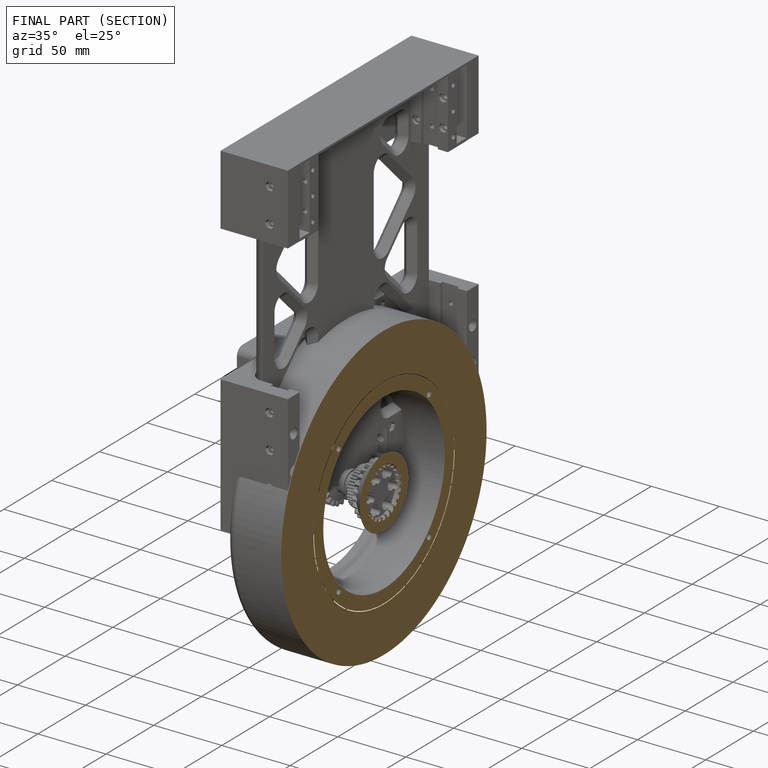
[diagram: finished part — half-section view (interior)]
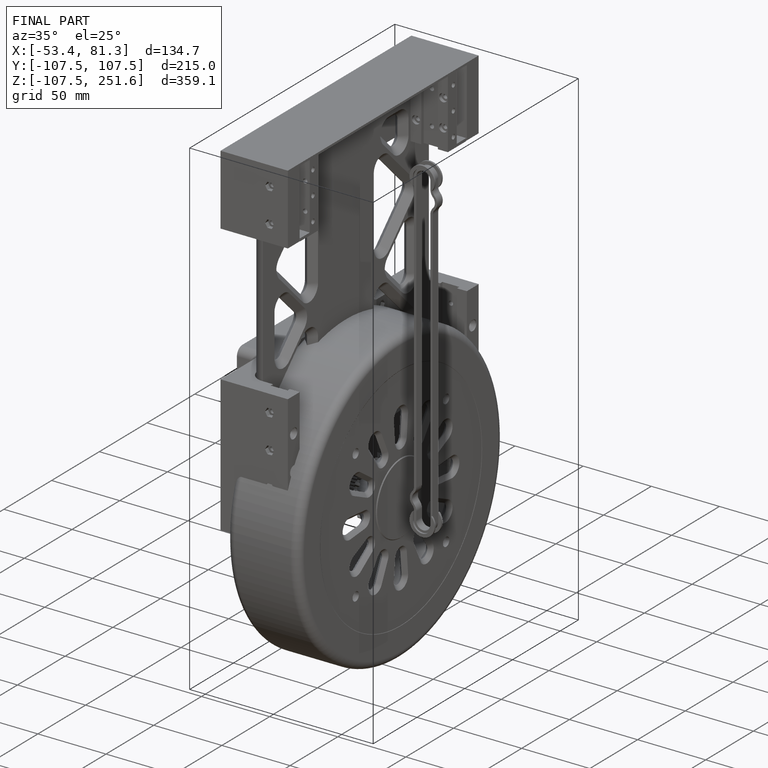
[diagram: finished part — iso view with bounding-box wireframe]
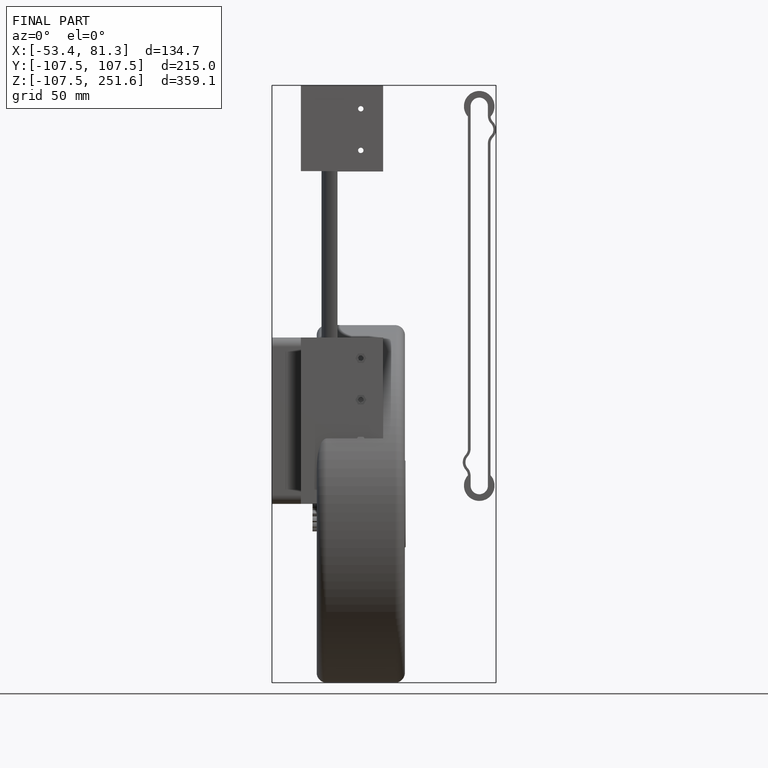
[diagram: finished part — front view with bounding-box wireframe]
